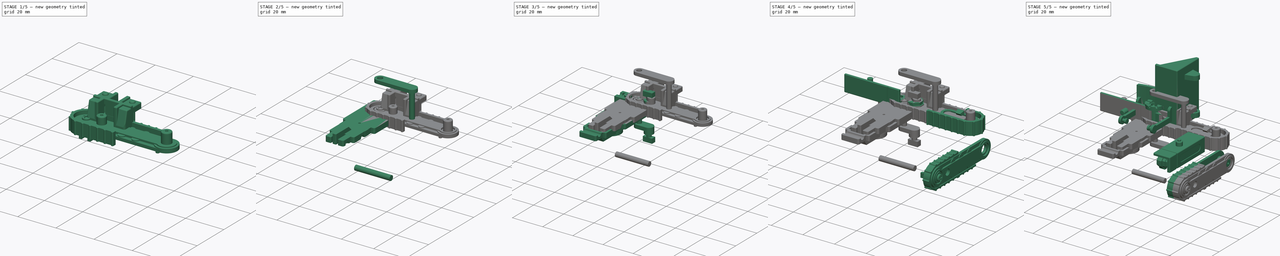
[diagram: build sequence overview — one tinted view per stage of 5, left to right]
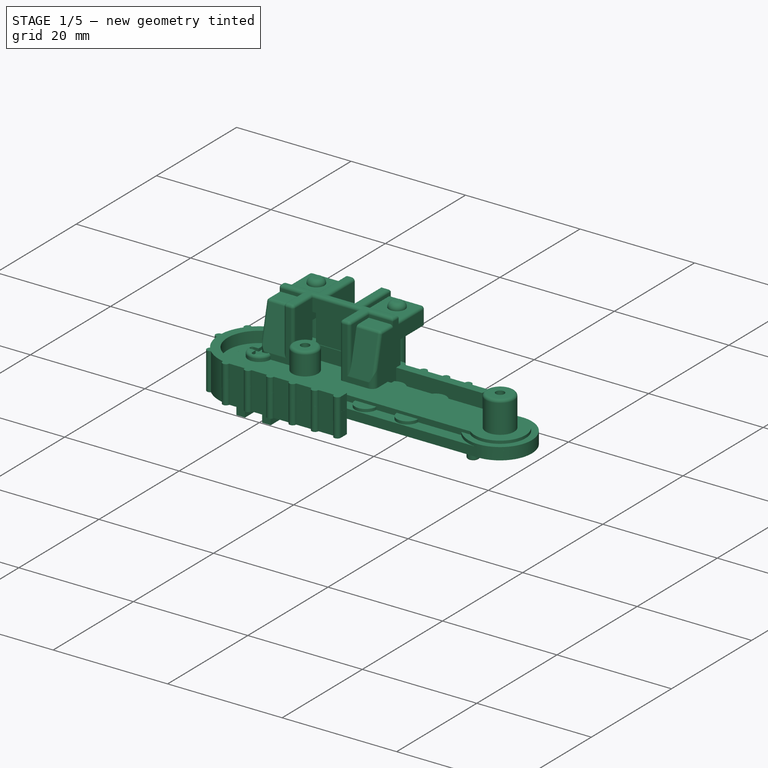
[diagram: stage 1 of 5 — iso view after this stage's code; geometry added in this stage tinted green]
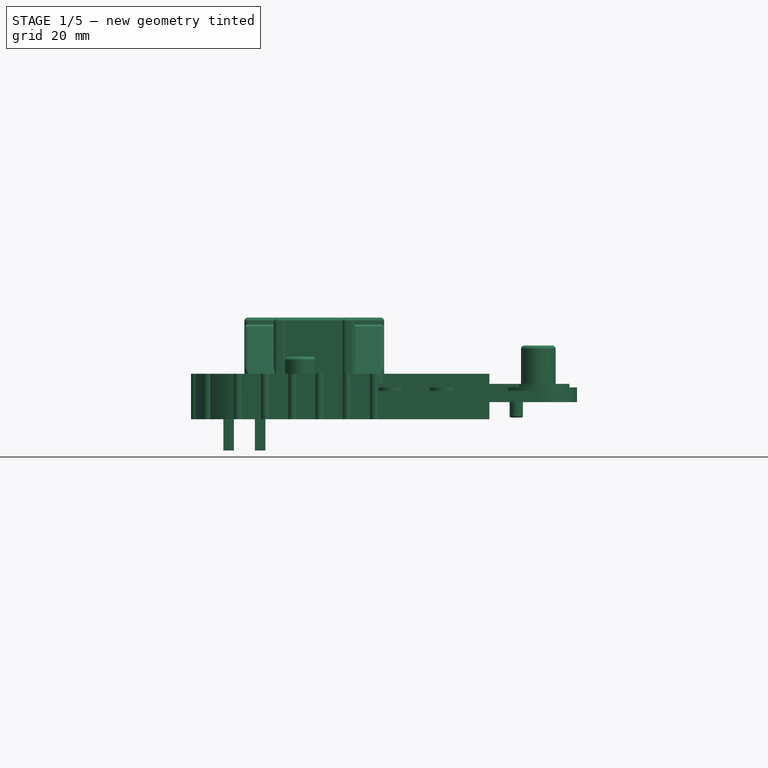
[diagram: stage 1 of 5 — front view after this stage's code; geometry added in this stage tinted green]
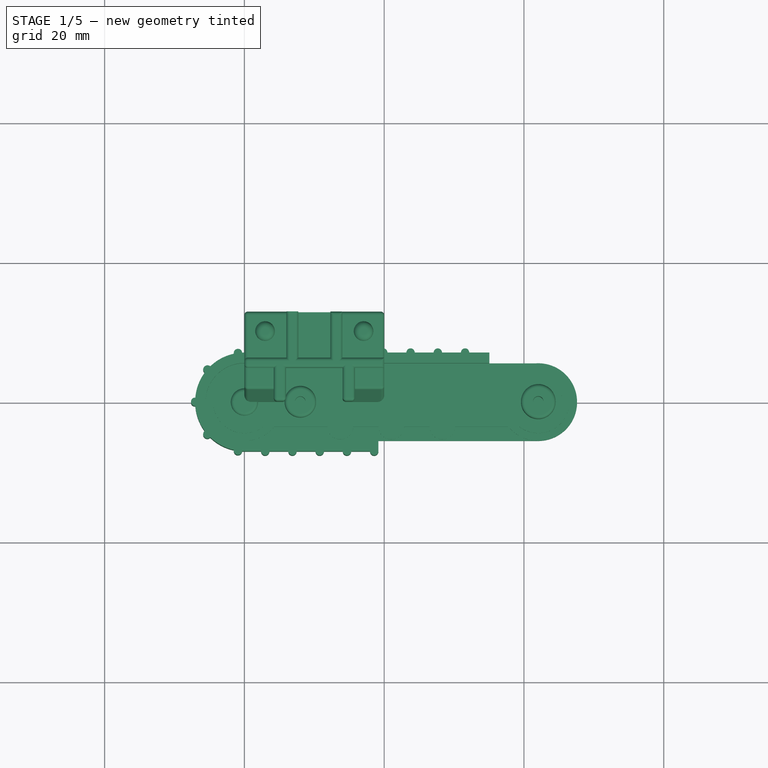
[diagram: stage 1 of 5 — top view after this stage's code; geometry added in this stage tinted green]
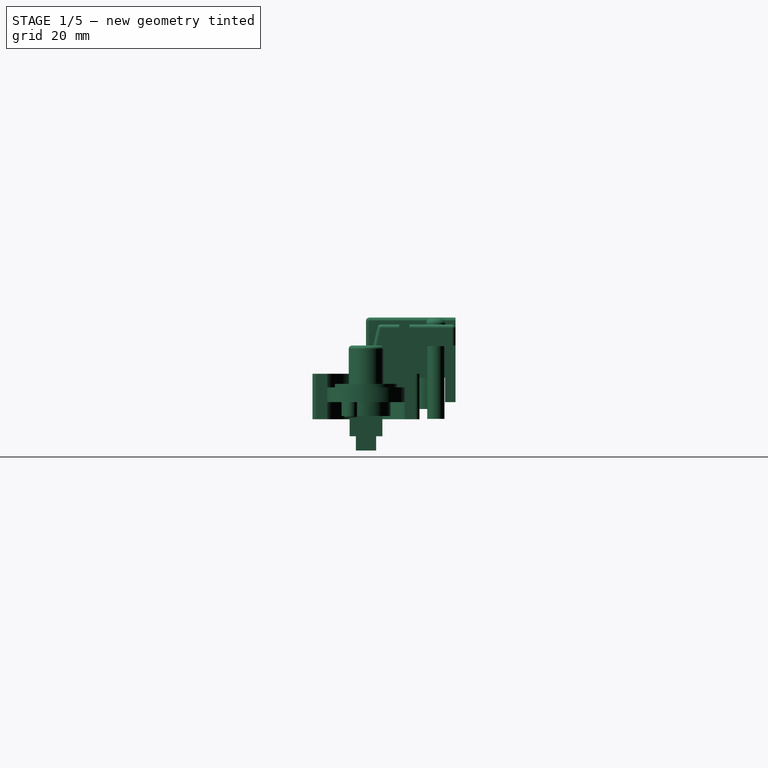
[diagram: stage 1 of 5 — right view after this stage's code; geometry added in this stage tinted green]
FCSTD DOCUMENT  (FreeCAD 1.0R39319 (Git))
Label: Bonecrusher
License: All rights reserved
LicenseURL: https://en.wikipedia.org/wiki/All_rights_reserved
objects: Sketcher::SketchObject×286, PartDesign::Pad×180, PartDesign::Pocket×138, PartDesign::Fillet×31, PartDesign::Body×23, PartDesign::Plane×15, App::Link×6, Part::Mirroring×4, PartDesign::Chamfer×4, PartDesign::SubShapeBinder×3, App::Part×1, Part::Feature×1
note: 1677 computed .brp shape members not serialized (recipe doc carries the construction recipe); baked Part::Feature solids carry a one-line shape summary decoded from their .brp

FEATURE [Sketcher::SketchObject] Sketch102
  ArcFitTolerance = 1e-06
  AttachmentSupport = -> [YZ_Plane012]
  FullyConstrained = true
  MakeInternals = false
  MapMode = 5
  Placement = pos=(0,0,0) rot=(0.57735,0.57735,0.57735;2.0944rad)
  sketch-geometry (4):
    g0: LineSegment StartX=12.8 StartY=0 StartZ=0 EndX=12.8 EndY=12.1 EndZ=0
    g1: LineSegment StartX=12.8 StartY=12.1 StartZ=0 EndX=0 EndY=12.1 EndZ=0
    g2: LineSegment StartX=0 StartY=12.1 StartZ=0 EndX=0 EndY=0 EndZ=0
    g3: LineSegment StartX=0 StartY=0 StartZ=0 EndX=12.8 EndY=0 EndZ=0
  constraints (12):
    c: Coincident(g0,g1)
    c: Coincident(g1,g2)
    c: Coincident(g2,g3)
    c: Coincident(g3,g0)
    c: Vertical(g0)
    c: Vertical(g2)
    c: Horizontal(g1)
    c: Horizontal(g3)
    c: PointOnObject(g0,g-1)
    c: PointOnObject(g1,g-2)
    c: DistanceX(g1,g0) = 12.8
    c: DistanceY(g2,g1) = 12.1
FEATURE [PartDesign::Pad] Pad053
  Direction = (1,0,0)
  Length = 20
  Length2 = 10
  Placement = pos=(0,0,0) rot=(1,1,1;2.0944rad)
  Profile = -> Sketch102
  ReferenceAxis = -> Sketch102 [N_Axis]
  Refine = true
  Suppressed = false
  Type = 0
FEATURE [Sketcher::SketchObject] Sketch104
  ArcFitTolerance = 1e-06
  AttachmentSupport = -> [Pad053]
  ExternalGeometry = -> [Pad053]
  FullyConstrained = true
  MakeInternals = false
  MapMode = 5
  Placement = pos=(0,2.7e-15,12.1) rot=(0,0,-1;1.5708rad)
  sketch-geometry (4):
    g0: LineSegment StartX=0 StartY=14.05 StartZ=0 EndX=-4.75 EndY=14.05 EndZ=0
    g1: LineSegment StartX=-4.75 StartY=14.05 StartZ=0 EndX=-4.75 EndY=5.95 EndZ=0
    g2: LineSegment StartX=-4.75 StartY=5.95 StartZ=0 EndX=0 EndY=5.95 EndZ=0
    g3: LineSegment StartX=0 StartY=5.95 StartZ=0 EndX=0 EndY=14.05 EndZ=0
  constraints (12):
    c: Coincident(g0,g1)
    c: Coincident(g1,g2)
    c: Coincident(g2,g3)
    c: Coincident(g3,g0)
    c: Horizontal(g0)
    c: Horizontal(g2)
    c: Vertical(g1)
    c: Vertical(g3)
    c: PointOnObject(g0,g-2)
    c: DistanceX(g0,g0) = 4.75
    c: DistanceY(g1,g1) = 8.1
    c: DistanceY(g0,g-3) = 5.95
FEATURE [PartDesign::Pocket] Pocket055
  BaseFeature = -> Pad053
  Direction = (0,0,-1)
  Length = 13
  Length2 = 5
  Placement = pos=(0,0,0) rot=(1,1,1;2.0944rad)
  Profile = -> Sketch104
  ReferenceAxis = -> Sketch104 [N_Axis]
  Refine = true
  Suppressed = false
  Type = 0
FEATURE [Sketcher::SketchObject] Sketch105
  ArcFitTolerance = 1e-06
  AttachmentSupport = -> [Pocket055]
  ExternalGeometry = -> [Pocket055]
  FullyConstrained = true
  MakeInternals = false
  MapMode = 5
  Placement = pos=(0,2.7e-15,12.1) rot=(0,0,-1;1.5708rad)
  sketch-geometry (4):
    g0: LineSegment StartX=-12.8 StartY=12.3 StartZ=0 EndX=-12.8 EndY=7.7 EndZ=0
    g1: LineSegment StartX=-12.8 StartY=7.7 StartZ=0 EndX=-6.2 EndY=7.7 EndZ=0
    g2: LineSegment StartX=-6.2 StartY=7.7 StartZ=0 EndX=-6.2 EndY=12.3 EndZ=0
    g3: LineSegment StartX=-6.2 StartY=12.3 StartZ=0 EndX=-12.8 EndY=12.3 EndZ=0
  constraints (12):
    c: Coincident(g0,g1)
    c: Coincident(g1,g2)
    c: Coincident(g2,g3)
    c: Coincident(g3,g0)
    c: Vertical(g0)
    c: Vertical(g2)
    c: Horizontal(g1)
    c: Horizontal(g3)
    c: PointOnObject(g0,g-3)
    c: DistanceY(g2,g2) = 4.6
    c: DistanceX(g3,g3) = 6.6
    c: DistanceY(g0,g-3) = 7.7
FEATURE [PartDesign::Pocket] Pocket056
  BaseFeature = -> Pocket055
  Direction = (0,0,-1)
  Length = 7.1
  Length2 = 5
  Placement = pos=(0,0,0) rot=(1,1,1;2.0944rad)
  Profile = -> Sketch105
  ReferenceAxis = -> Sketch105 [N_Axis]
  Refine = true
  Suppressed = false
  Type = 0
FEATURE [Sketcher::SketchObject] Sketch106
  ArcFitTolerance = 1e-06
  AttachmentSupport = -> [Pocket056]
  ExternalGeometry = -> [Pocket056]
  FullyConstrained = true
  MakeInternals = false
  MapMode = 5
  Placement = pos=(0,2.7e-15,12.1) rot=(0,0,-1;1.5708rad)
  sketch-geometry (16):
    g0: LineSegment StartX=-12.8 StartY=20 StartZ=0 EndX=-12.8 EndY=14 EndZ=0
    g1: LineSegment StartX=-12.8 StartY=14 StartZ=0 EndX=-6.2 EndY=14 EndZ=0
    g2: LineSegment StartX=-6.2 StartY=14 StartZ=0 EndX=-6.2 EndY=20 EndZ=0
    g3: LineSegment StartX=-6.2 StartY=20 StartZ=0 EndX=-12.8 EndY=20 EndZ=0
    g4: LineSegment StartX=-12.8 StartY=0 StartZ=0 EndX=-6.2 EndY=0 EndZ=0
    g5: LineSegment StartX=-6.2 StartY=0 StartZ=0 EndX=-6.2 EndY=6 EndZ=0
    g6: LineSegment StartX=-6.2 StartY=6 StartZ=0 EndX=-12.8 EndY=6 EndZ=0
    g7: LineSegment StartX=-12.8 StartY=6 StartZ=0 EndX=-12.8 EndY=0 EndZ=0
    g8: LineSegment StartX=0 StartY=15.8 StartZ=0 EndX=0 EndY=20 EndZ=0
    g9: LineSegment StartX=0 StartY=20 StartZ=0 EndX=-4.75 EndY=20 EndZ=0
    g10: LineSegment StartX=-4.75 StartY=20 StartZ=0 EndX=-4.75 EndY=15.8 EndZ=0
    g11: LineSegment StartX=-4.75 StartY=15.8 StartZ=0 EndX=0 EndY=15.8 EndZ=0
    g12: LineSegment StartX=0 StartY=0 StartZ=0 EndX=0 EndY=4.2 EndZ=0
    g13: LineSegment StartX=0 StartY=4.2 StartZ=0 EndX=-4.75 EndY=4.2 EndZ=0
    g14: LineSegment StartX=-4.75 StartY=4.2 StartZ=0 EndX=-4.75 EndY=0 EndZ=0
    g15: LineSegment StartX=-4.75 StartY=0 StartZ=0 EndX=0 EndY=0 EndZ=0
  constraints (45):
    c: Coincident(g0,g1)
    c: Coincident(g1,g2)
    c: Coincident(g2,g3)
    c: Coincident(g3,g0)
    c: Vertical(g0)
    c: Vertical(g2)
    c: Horizontal(g1)
    c: Horizontal(g3)
    c: Coincident(g0,g-6)
    c: Coincident(g4,g5)
    c: Coincident(g5,g6)
    c: Coincident(g6,g7)
    c: Coincident(g7,g4)
    c: Horizontal(g4)
    c: Horizontal(g6)
    c: Vertical(g5)
    c: Vertical(g7)
    c: Coincident(g4,g-5)
    c: DistanceY(g2,g2) = 6
    c: DistanceY(g5,g5) = 6
    c: DistanceX(g1,g1) = 6.6
    c: DistanceX(g6,g6) = 6.6
    c: Coincident(g8,g9)
    c: Coincident(g9,g10)
    c: Coincident(g10,g11)
    c: Coincident(g11,g8)
    c: Vertical(g8)
    c: Vertical(g10)
    c: Horizontal(g9)
    c: Horizontal(g11)
    c: PointOnObject(g8,g-2)
    c: PointOnObject(g9,g-3)
    c: Coincident(g12,g13)
    c: Coincident(g13,g14)
    c: Coincident(g14,g15)
    c: Coincident(g15,g12)
    c: Vertical(g12)
    c: Vertical(g14)
    c: Horizontal(g13)
    c: Horizontal(g15)
    c: Coincident(g12,g-1)
    c: DistanceX(g11,g11) = 4.75
    c: DistanceX(g13,g13) = 4.75
    c: DistanceY(g10,g10) = 4.2
    c: DistanceY(g14,g14) = 4.2
FEATURE [PartDesign::Pocket] Pocket057
  BaseFeature = -> Pocket056
  Direction = (0,0,-1)
  Length = 1
  Length2 = 5
  Placement = pos=(0,0,0) rot=(1,1,1;2.0944rad)
  Profile = -> Sketch106
  ReferenceAxis = -> Sketch106 [N_Axis]
  Refine = true
  Suppressed = false
  Type = 0
FEATURE [Sketcher::SketchObject] Sketch107
  ArcFitTolerance = 1e-06
  AttachmentSupport = -> [Pocket057]
  ExternalGeometry = -> [Pocket057]
  FullyConstrained = true
  MakeInternals = false
  MapMode = 5
  Placement = pos=(20,0,0) rot=(0.57735,0.57735,0.57735;2.0944rad)
  sketch-geometry (3):
    g0: LineSegment StartX=1.75 StartY=11.1 StartZ=0 EndX=0 EndY=3.6 EndZ=0
    g1: LineSegment StartX=0 StartY=3.6 StartZ=0 EndX=0 EndY=11.1 EndZ=0
    g2: LineSegment StartX=1.75 StartY=11.1 StartZ=0 EndX=0 EndY=11.1 EndZ=0
  constraints (8):
    c: PointOnObject(g0,g-3)
    c: PointOnObject(g0,g-2)
    c: Coincident(g1,g0)
    c: Coincident(g1,g-3)
    c: Coincident(g2,g0)
    c: Coincident(g2,g1)
    c: DistanceX(g0,g-3) = 3
    c: DistanceY(g0,g1) = 7.5
FEATURE [PartDesign::Pocket] Pocket058
  BaseFeature = -> Pocket057
  Direction = (-1,0,0)
  Length = 4.2
  Length2 = 5
  Placement = pos=(0,0,0) rot=(1,1,1;2.0944rad)
  Profile = -> Sketch107
  ReferenceAxis = -> Sketch107 [N_Axis]
  Refine = true
  Suppressed = false
  Type = 0
FEATURE [Sketcher::SketchObject] Sketch108
  ArcFitTolerance = 1e-06
  AttachmentSupport = -> [Pocket058]
  ExternalGeometry = -> [Pocket058]
  FullyConstrained = true
  MakeInternals = false
  MapMode = 5
  Placement = pos=(0,0,0) rot=(0.57735,0.57735,-0.57735;4.18879rad)
  sketch-geometry (3):
    g0: LineSegment StartX=1.75 StartY=-11.1 StartZ=0 EndX=0 EndY=-11.1 EndZ=0
    g1: LineSegment StartX=1.75 StartY=-11.1 StartZ=0 EndX=0 EndY=-3.6 EndZ=0
    g2: LineSegment StartX=0 StartY=-3.6 StartZ=0 EndX=0 EndY=-11.1 EndZ=0
  constraints (8):
    c: Coincident(g0,g-3)
    c: Coincident(g1,g0)
    c: PointOnObject(g1,g-2)
    c: Coincident(g2,g1)
    c: Coincident(g2,g0)
    c: DistanceX(g0,g-3) = 3
    c: DistanceY(g0,g1) = 7.5
    c: PointOnObject(g0,g-3)
FEATURE [PartDesign::Pocket] Pocket059
  BaseFeature = -> Pocket058
  Direction = (1,-1e-15,1e-16)
  Length = 4.2
  Length2 = 5
  Placement = pos=(0,0,0) rot=(1,1,1;2.0944rad)
  Profile = -> Sketch108
  ReferenceAxis = -> Sketch108 [N_Axis]
  Refine = true
  Suppressed = false
  Type = 0
FEATURE [Sketcher::SketchObject] Sketch109
  ArcFitTolerance = 1e-06
  AttachmentSupport = -> [Pocket059]
  ExternalGeometry = -> [Pocket059]
  FullyConstrained = true
  MakeInternals = false
  MapMode = 5
  Placement = pos=(0,0,11.1) rot=(0,0,-1;1.5708rad)
  sketch-geometry (2):
    g0: Circle CenterX=-10 CenterY=17.05 CenterZ=0 NormalX=0 NormalY=0 NormalZ=1 AngleXU=0 Radius=1.4
    g1: Circle CenterX=-10 CenterY=2.95 CenterZ=0 NormalX=0 NormalY=0 NormalZ=1 AngleXU=0 Radius=1.4
  constraints (6):
    c: DistanceX(g-6,g1) = 2.8
    c: DistanceX(g-4,g0) = 2.8
    c: DistanceY(g-6,g1) = 2.95
    c: Diameter(g1) = 2.8
    c: Diameter(g0) = 2.8
    c: DistanceY(g0,g-4) = 2.95
FEATURE [PartDesign::Pad] Pad054
  BaseFeature = -> Pocket059
  Direction = (0,0,1)
  Length = 1
  Length2 = 10
  Placement = pos=(0,0,0) rot=(1,1,1;2.0944rad)
  Profile = -> Sketch109
  ReferenceAxis = -> Sketch109 [N_Axis]
  Refine = true
  Suppressed = false
  Type = 0
FEATURE [PartDesign::Fillet] Fillet030
  Base = -> Pad054 [Edge72,Edge83]
  BaseFeature = -> Pad054
  Placement = pos=(0,0,0) rot=(1,1,1;2.0944rad)
  Radius = 0.9
  Refine = true
  SupportTransform = false
  Suppressed = false
  UseAllEdges = false
FEATURE [Sketcher::SketchObject] Sketch110
  ArcFitTolerance = 1e-06
  AttachmentSupport = -> [Fillet030]
  ExternalGeometry = -> [Fillet030]
  FullyConstrained = true
  MakeInternals = false
  MapMode = 5
  Placement = pos=(0,6.2,0) rot=(0.57735,0.57735,0.57735;4.18879rad)
  sketch-geometry (4):
    g0: LineSegment StartX=5 StartY=12.3 StartZ=0 EndX=5 EndY=7.7 EndZ=0
    g1: LineSegment StartX=5 StartY=7.7 StartZ=0 EndX=9.85 EndY=7.7 EndZ=0
    g2: LineSegment StartX=9.85 StartY=7.7 StartZ=0 EndX=9.85 EndY=12.3 EndZ=0
    g3: LineSegment StartX=9.85 StartY=12.3 StartZ=0 EndX=5 EndY=12.3 EndZ=0
  constraints (11):
    c: Coincident(g0,g1)
    c: Coincident(g1,g2)
    c: Coincident(g2,g3)
    c: Coincident(g3,g0)
    c: Vertical(g0)
    c: Vertical(g2)
    c: Horizontal(g1)
    c: Horizontal(g3)
    c: Coincident(g0,g-4)
    c: PointOnObject(g1,g-5)
    c: DistanceX(g2,g-3) = 2.25
FEATURE [PartDesign::Pad] Pad055
  BaseFeature = -> Fillet030
  Direction = (0,1,-1.3e-15)
  Length = 0.5
  Length2 = 10
  Placement = pos=(0,0,0) rot=(1,1,1;2.0944rad)
  Profile = -> Sketch110
  ReferenceAxis = -> Sketch110 [N_Axis]
  Refine = true
  Suppressed = false
  Type = 0
FEATURE [Sketcher::SketchObject] Sketch111
  ArcFitTolerance = 1e-06
  AttachmentSupport = -> [Pad055]
  ExternalGeometry = -> [Pad055]
  FullyConstrained = false
  MakeInternals = false
  MapMode = 5
  Placement = pos=(0,6.7,-8.6e-15) rot=(0.57735,0.57735,0.57735;4.18879rad)
  sketch-geometry (4):
    g0: LineSegment StartX=5 StartY=12.3 StartZ=0 EndX=5 EndY=7.6 EndZ=0
    g1: LineSegment StartX=5 StartY=7.6 StartZ=0 EndX=7.4 EndY=7.6 EndZ=0
    g2: LineSegment StartX=7.4 StartY=7.6 StartZ=0 EndX=7.4 EndY=12.3 EndZ=0
    g3: LineSegment StartX=7.4 StartY=12.3 StartZ=0 EndX=5 EndY=12.3 EndZ=0
  constraints (10):
    c: Coincident(g0,g1)
    c: Coincident(g1,g2)
    c: Coincident(g2,g3)
    c: Coincident(g3,g0)
    c: Vertical(g0)
    c: Vertical(g2)
    c: Horizontal(g1)
    c: Horizontal(g3)
    c: Coincident(g0,g-4)
    c: DistanceX(g2,g-3) = 4.7
FEATURE [PartDesign::Pad] Pad056
  BaseFeature = -> Pad055
  Direction = (-1e-16,1,-1.4e-15)
  Length = 0.5
  Length2 = 10
  Placement = pos=(0,0,0) rot=(1,1,1;2.0944rad)
  Profile = -> Sketch111
  ReferenceAxis = -> Sketch111 [N_Axis]
  Refine = true
  Suppressed = false
  Type = 0
FEATURE [Sketcher::SketchObject] Sketch112
  ArcFitTolerance = 1e-06
  AttachmentSupport = -> [Pad056]
  ExternalGeometry = -> [Pad056]
  FullyConstrained = true
  MakeInternals = false
  MapMode = 5
  Placement = pos=(0,0,0) rot=(0.707107,0.707107,0;3.14159rad)
  sketch-geometry (8):
    g0: LineSegment StartX=1.5 StartY=18.5 StartZ=0 EndX=1.5 EndY=15.5 EndZ=0
    g1: LineSegment StartX=1.5 StartY=15.5 StartZ=0 EndX=11.3 EndY=15.5 EndZ=0
    g2: LineSegment StartX=11.3 StartY=15.5 StartZ=0 EndX=11.3 EndY=18.5 EndZ=0
    g3: LineSegment StartX=11.3 StartY=18.5 StartZ=0 EndX=1.5 EndY=18.5 EndZ=0
    g4: LineSegment StartX=1.5 StartY=4.5 StartZ=0 EndX=1.5 EndY=1.5 EndZ=0
    g5: LineSegment StartX=1.5 StartY=1.5 StartZ=0 EndX=11.3 EndY=1.5 EndZ=0
    g6: LineSegment StartX=11.3 StartY=1.5 StartZ=0 EndX=11.3 EndY=4.5 EndZ=0
    g7: LineSegment StartX=11.3 StartY=4.5 StartZ=0 EndX=1.5 EndY=4.5 EndZ=0
  constraints (24):
    c: Coincident(g0,g1)
    c: Coincident(g1,g2)
    c: Coincident(g2,g3)
    c: Coincident(g3,g0)
    c: Vertical(g0)
    c: Vertical(g2)
    c: Horizontal(g1)
    c: Horizontal(g3)
    c: Coincident(g4,g5)
    c: Coincident(g5,g6)
    c: Coincident(g6,g7)
    c: Coincident(g7,g4)
    c: Vertical(g4)
    c: Vertical(g6)
    c: Horizontal(g5)
    c: Horizontal(g7)
    c: DistanceX(g-6,g4) = 1.5
    c: DistanceX(g5,g-4) = 1.5
    c: DistanceX(g-3,g0) = 1.5
    c: DistanceX(g2,g-4) = 1.5
    c: DistanceY(g-5,g0) = 1.45
    c: DistanceY(g2,g-4) = 1.5
    c: DistanceY(g-4,g5) = 1.5
    c: DistanceY(g4,g-6) = 1.45
FEATURE [PartDesign::Pocket] Pocket060
  BaseFeature = -> Pad056
  Direction = (-2.8e-15,1.2e-15,1)
  Length = 9.6
  Length2 = 5
  Placement = pos=(0,0,0) rot=(1,1,1;2.0944rad)
  Profile = -> Sketch112
  ReferenceAxis = -> Sketch112 [N_Axis]
  Refine = true
  Suppressed = false
  Type = 0
FEATURE [Sketcher::SketchObject] Sketch113
  ArcFitTolerance = 1e-06
  AttachmentSupport = -> [Pocket060]
  ExternalGeometry = -> [Pocket060]
  FullyConstrained = true
  MakeInternals = false
  MapMode = 5
  Placement = pos=(0,0,0) rot=(0.707107,0.707107,0;3.14159rad)
  sketch-geometry (8):
    g0: LineSegment StartX=4.75 StartY=5.95 StartZ=0 EndX=4.75 EndY=0 EndZ=0
    g1: LineSegment StartX=4.75 StartY=0 StartZ=0 EndX=12.8 EndY=0 EndZ=0
    g2: LineSegment StartX=12.8 StartY=0 StartZ=0 EndX=12.8 EndY=5.95 EndZ=0
    g3: LineSegment StartX=12.8 StartY=5.95 StartZ=0 EndX=4.75 EndY=5.95 EndZ=0
    g4: LineSegment StartX=4.75 StartY=14.05 StartZ=0 EndX=12.8 EndY=14.05 EndZ=0
    g5: LineSegment StartX=12.8 StartY=14.05 StartZ=0 EndX=12.8 EndY=20 EndZ=0
    g6: LineSegment StartX=12.8 StartY=20 StartZ=0 EndX=4.75 EndY=20 EndZ=0
    g7: LineSegment StartX=4.75 StartY=20 StartZ=0 EndX=4.75 EndY=14.05 EndZ=0
  constraints (20):
    c: Coincident(g0,g1)
    c: Coincident(g1,g2)
    c: Coincident(g2,g3)
    c: Coincident(g3,g0)
    c: Vertical(g0)
    c: Vertical(g2)
    c: Horizontal(g1)
    c: Horizontal(g3)
    c: Coincident(g0,g-5)
    c: Coincident(g1,g-4)
    c: Coincident(g4,g5)
    c: Coincident(g5,g6)
    c: Coincident(g6,g7)
    c: Coincident(g7,g4)
    c: Horizontal(g4)
    c: Horizontal(g6)
    c: Vertical(g5)
    c: Vertical(g7)
    c: Coincident(g4,g-6)
    c: Coincident(g5,g-4)
FEATURE [PartDesign::Pocket] Pocket061
  BaseFeature = -> Pocket060
  Direction = (-3.1e-15,1.3e-15,1)
  Length = 8.1
  Length2 = 5
  Placement = pos=(0,0,0) rot=(1,1,1;2.0944rad)
  Profile = -> Sketch113
  ReferenceAxis = -> Sketch113 [N_Axis]
  Refine = true
  Suppressed = false
  Type = 0
FEATURE [Sketcher::SketchObject] Sketch114
  ArcFitTolerance = 1e-06
  AttachmentSupport = -> [Pocket061]
  ExternalGeometry = -> [Pocket061]
  FullyConstrained = true
  MakeInternals = false
  MapMode = 5
  Placement = pos=(0,0,0) rot=(0.707107,0.707107,0;3.14159rad)
  sketch-geometry (4):
    g0: LineSegment StartX=4.75 StartY=14.05 StartZ=0 EndX=4.75 EndY=5.95 EndZ=0
    g1: LineSegment StartX=4.75 StartY=5.95 StartZ=0 EndX=11.3 EndY=5.95 EndZ=0
    g2: LineSegment StartX=11.3 StartY=5.95 StartZ=0 EndX=11.3 EndY=14.05 EndZ=0
    g3: LineSegment StartX=11.3 StartY=14.05 StartZ=0 EndX=4.75 EndY=14.05 EndZ=0
  constraints (11):
    c: Coincident(g0,g1)
    c: Coincident(g1,g2)
    c: Coincident(g2,g3)
    c: Coincident(g3,g0)
    c: Vertical(g0)
    c: Vertical(g2)
    c: Horizontal(g1)
    c: Horizontal(g3)
    c: Coincident(g0,g-3)
    c: PointOnObject(g1,g-4)
    c: DistanceX(g2,g-3) = 1.5
FEATURE [PartDesign::Pocket] Pocket062
  BaseFeature = -> Pocket061
  Direction = (-3.4e-15,1.4e-15,1)
  Length = 3.5
  Length2 = 5
  Placement = pos=(0,0,0) rot=(1,1,1;2.0944rad)
  Profile = -> Sketch114
  ReferenceAxis = -> Sketch114 [N_Axis]
  Refine = true
  Suppressed = false
  Type = 0
FEATURE [Sketcher::SketchObject] Sketch115
  ArcFitTolerance = 1e-06
  AttachmentSupport = -> [Pocket062]
  ExternalGeometry = -> [Pocket062]
  FullyConstrained = true
  MakeInternals = false
  MapMode = 5
  Placement = pos=(0,4.75,0) rot=(0.57735,0.57735,-0.57735;2.0944rad)
  sketch-geometry (4):
    g0: LineSegment StartX=-3.5 StartY=14.05 StartZ=0 EndX=-9.4 EndY=14.05 EndZ=0
    g1: LineSegment StartX=-9.4 StartY=14.05 StartZ=0 EndX=-9.4 EndY=5.95 EndZ=0
    g2: LineSegment StartX=-9.4 StartY=5.95 StartZ=0 EndX=-3.5 EndY=5.95 EndZ=0
    g3: LineSegment StartX=-3.5 StartY=5.95 StartZ=0 EndX=-3.5 EndY=14.05 EndZ=0
  constraints (10):
    c: Coincident(g0,g1)
    c: Coincident(g1,g2)
    c: Coincident(g2,g3)
    c: Coincident(g3,g0)
    c: Horizontal(g0)
    c: Horizontal(g2)
    c: Vertical(g1)
    c: Coincident(g0,g-3)
    c: Coincident(g2,g-3)
    c: DistanceX(g-4,g0) = 2.7
FEATURE [PartDesign::Pocket] Pocket063
  BaseFeature = -> Pocket062
  Direction = (1e-16,1,-3.2e-15)
  Length = 0.9
  Length2 = 5
  Placement = pos=(0,0,0) rot=(1,1,1;2.0944rad)
  Profile = -> Sketch115
  ReferenceAxis = -> Sketch115 [N_Axis]
  Refine = true
  Suppressed = false
  Type = 0
FEATURE [Sketcher::SketchObject] Sketch116
  ArcFitTolerance = 1e-06
  AttachmentSupport = -> [Pocket063]
  ExternalGeometry = -> [Pocket063]
  FullyConstrained = true
  MakeInternals = false
  MapMode = 5
  Placement = pos=(-2.67e-14,1.17e-14,9.6) rot=(0.707107,0.707107,0;3.14159rad)
  sketch-geometry (2):
    g0: Circle CenterX=10 CenterY=17.05 CenterZ=0 NormalX=0 NormalY=0 NormalZ=1 AngleXU=0 Radius=1.3
    g1: Circle CenterX=10 CenterY=2.95 CenterZ=0 NormalX=0 NormalY=0 NormalZ=1 AngleXU=0 Radius=1.3
  constraints (6):
    c: Tangent(g0,g-4)
    c: Diameter(g0) = 2.6
    c: Tangent(g1,g-6)
    c: Diameter(g1) = 2.6
    c: DistanceY(g0,g-4) = 1.45
    c: DistanceY(g-6,g1) = 1.45
FEATURE [PartDesign::Pad] Pad057
  BaseFeature = -> Pocket063
  Direction = (4.1e-15,-1.7e-15,-1)
  Length = 12
  Length2 = 10
  Placement = pos=(0,0,0) rot=(1,1,1;2.0944rad)
  Profile = -> Sketch116
  ReferenceAxis = -> Sketch116 [N_Axis]
  Refine = true
  Suppressed = false
  Type = 0
FEATURE [Sketcher::SketchObject] Sketch117
  ArcFitTolerance = 1e-06
  AttachmentSupport = -> [Pad057]
  ExternalGeometry = -> [Pad057]
  FullyConstrained = true
  MakeInternals = false
  MapMode = 5
  Placement = pos=(-1.2e-14,5e-15,3.5) rot=(0.707107,0.707107,0;3.14159rad)
  sketch-geometry (1):
    g0: Circle CenterX=8.75 CenterY=10 CenterZ=0 NormalX=0 NormalY=0 NormalZ=1 AngleXU=0 Radius=2.375
  constraints (3):
    c: Diameter(g0) = 4.75
    c: DistanceY(g0,g-4) = 4.05
    c: DistanceX(g0,g-4) = 2.55
FEATURE [PartDesign::Pad] Pad058
  BaseFeature = -> Pad057
  Direction = (4.4e-15,-1.8e-15,-1)
  Length = 4.5
  Length2 = 10
  Placement = pos=(0,0,0) rot=(1,1,1;2.0944rad)
  Profile = -> Sketch117
  ReferenceAxis = -> Sketch117 [N_Axis]
  Refine = true
  Suppressed = false
  Type = 0
FEATURE [Sketcher::SketchObject] Sketch118
  ArcFitTolerance = 1e-06
  AttachmentSupport = -> [Pad058]
  ExternalGeometry = -> [Pad058]
  FullyConstrained = true
  MakeInternals = false
  MapMode = 5
  Placement = pos=(4.4e-15,-1.7e-15,-1) rot=(0.707107,0.707107,0;3.14159rad)
  sketch-geometry (1):
    g0: Circle CenterX=8.75 CenterY=10 CenterZ=0 NormalX=0 NormalY=0 NormalZ=1 AngleXU=0 Radius=0.75
  constraints (2):
    c: Coincident(g0,g-3)
    c: Diameter(g0) = 1.5
FEATURE [PartDesign::Pocket] Pocket064
  BaseFeature = -> Pad058
  Direction = (-4.8e-15,1.8e-15,1)
  Length = 4.5
  Length2 = 5
  Placement = pos=(0,0,0) rot=(1,1,1;2.0944rad)
  Profile = -> Sketch118
  ReferenceAxis = -> Sketch118 [N_Axis]
  Refine = true
  Suppressed = false
  Type = 0
FEATURE [Sketcher::SketchObject] Sketch119
  ArcFitTolerance = 1e-06
  AttachmentSupport = -> [Pocket064]
  ExternalGeometry = -> [Pocket064]
  FullyConstrained = true
  MakeInternals = false
  MapMode = 5
  Placement = pos=(0,0,0) rot=(0.707107,0.707107,0;3.14159rad)
  sketch-geometry (4):
    g0: LineSegment StartX=4.75 StartY=15.5 StartZ=0 EndX=1.5 EndY=15.5 EndZ=0
    g1: LineSegment StartX=1.5 StartY=15.5 StartZ=0 EndX=1.5 EndY=4.5 EndZ=0
    g2: LineSegment StartX=1.5 StartY=4.5 StartZ=0 EndX=4.75 EndY=4.5 EndZ=0
    g3: LineSegment StartX=4.75 StartY=4.5 StartZ=0 EndX=4.75 EndY=15.5 EndZ=0
  constraints (10):
    c: Coincident(g0,g1)
    c: Coincident(g1,g2)
    c: Coincident(g2,g3)
    c: Coincident(g3,g0)
    c: Horizontal(g0)
    c: Horizontal(g2)
    c: Vertical(g1)
    c: Vertical(g3)
    c: Coincident(g0,g-3)
    c: Coincident(g1,g-4)
FEATURE [PartDesign::Pocket] Pocket065
  BaseFeature = -> Pocket064
  Direction = (0,0,1)
  Length = 5
  Length2 = 5
  Placement = pos=(0,0,0) rot=(1,1,1;2.0944rad)
  Profile = -> Sketch119
  ReferenceAxis = -> Sketch119 [N_Axis]
  Refine = true
  Suppressed = false
  Type = 0
FEATURE [Sketcher::SketchObject] Sketch120
  ArcFitTolerance = 1e-06
  AttachmentSupport = -> [Pocket065]
  ExternalGeometry = -> [Pocket065]
  FullyConstrained = true
  MakeInternals = false
  MapMode = 5
  Placement = pos=(0,0,0) rot=(0.57735,0.57735,-0.57735;4.18879rad)
  sketch-geometry (4):
    g0: ArcOfCircle CenterX=3.1 CenterY=-1.5 CenterZ=0 NormalX=0 NormalY=0 NormalZ=1 AngleXU=0 Radius=1 StartAngle=3.14159 EndAngle=6.28319
    g1: LineSegment StartX=4.1 StartY=-1.5 StartZ=0 EndX=4.1 EndY=2.31e-14 EndZ=0
    g2: LineSegment StartX=2.1 StartY=-1.5 StartZ=0 EndX=2.1 EndY=1.18e-14 EndZ=0
    g3: LineSegment StartX=2.1 StartY=1.18e-14 StartZ=0 EndX=4.1 EndY=2.31e-14 EndZ=0
  constraints (13):
    c: Coincident(g1,g0)
    c: PointOnObject(g1,g-3)
    c: Vertical(g1)
    c: Coincident(g2,g0)
    c: PointOnObject(g2,g-3)
    c: Vertical(g2)
    c: Coincident(g3,g2)
    c: Coincident(g3,g1)
    c: Diameter(g0) = 2
    c: DistanceX(g-1,g0) = 3.1
    c: DistanceY(g0,g1) = 1.5
    c: DistanceY(g1,g1) = 1.5
    c: DistanceY(g2,g2) = 1.5
FEATURE [Sketcher::SketchObject] Sketch121
  ArcFitTolerance = 1e-06
  AttachmentSupport = -> [Pocket065]
  ExternalGeometry = -> [Pocket065]
  FullyConstrained = true
  MakeInternals = false
  MapMode = 5
  Placement = pos=(0,0,0) rot=(0.707107,0.707107,0;3.14159rad)
  sketch-geometry (8):
    g0: LineSegment StartX=4.75 StartY=1.5 StartZ=0 EndX=4.75 EndY=0 EndZ=0
    g1: LineSegment StartX=4.75 StartY=0 StartZ=0 EndX=6.65 EndY=0 EndZ=0
    g2: LineSegment StartX=6.65 StartY=0 StartZ=0 EndX=6.65 EndY=1.5 EndZ=0
    g3: LineSegment StartX=6.65 StartY=1.5 StartZ=0 EndX=4.75 EndY=1.5 EndZ=0
    g4: LineSegment StartX=4.75 StartY=20 StartZ=0 EndX=4.75 EndY=18.5 EndZ=0
    g5: LineSegment StartX=4.75 StartY=18.5 StartZ=0 EndX=6.65 EndY=18.5 EndZ=0
    g6: LineSegment StartX=6.65 StartY=18.5 StartZ=0 EndX=6.65 EndY=20 EndZ=0
    g7: LineSegment StartX=6.65 StartY=20 StartZ=0 EndX=4.75 EndY=20 EndZ=0
  constraints (22):
    c: Coincident(g0,g1)
    c: Coincident(g1,g2)
    c: Coincident(g2,g3)
    c: Coincident(g3,g0)
    c: Vertical(g0)
    c: Vertical(g2)
    c: Horizontal(g1)
    c: Horizontal(g3)
    c: Coincident(g0,g-5)
    c: PointOnObject(g1,g-6)
    c: Coincident(g4,g5)
    c: Coincident(g5,g6)
    c: Coincident(g6,g7)
    c: Coincident(g7,g4)
    c: Vertical(g4)
    c: Vertical(g6)
    c: Horizontal(g5)
    c: Horizontal(g7)
    c: Coincident(g4,g-3)
    c: PointOnObject(g5,g-4)
    c: DistanceX(g7,g7) = 1.9
    c: DistanceX(g1,g1) = 1.9
FEATURE [PartDesign::Pad] Pad059
  BaseFeature = -> Pocket065
  Direction = (0,0,-1)
  Length = 8.2
  Length2 = 10
  Placement = pos=(0,0,0) rot=(1,1,1;2.0944rad)
  Profile = -> Sketch121
  ReferenceAxis = -> Sketch121 [N_Axis]
  Refine = true
  Reversed = true
  Suppressed = false
  Type = 0
FEATURE [PartDesign::Pocket] Pocket066
  BaseFeature = -> Pad059
  Direction = (1,0,0)
  Length = 20
  Length2 = 5
  Placement = pos=(0,0,0) rot=(1,1,1;2.0944rad)
  Profile = -> Sketch120
  ReferenceAxis = -> Sketch120 [N_Axis]
  Refine = true
  Suppressed = false
  Type = 0
FEATURE [PartDesign::Fillet] Fillet031
  Base = -> Pocket066 [Edge161,Edge152,Edge160,Edge26,Edge21,Edge24,Edge27,Edge69,Edge22,Edge20,Edge17,Edge18,Edge16,Edge68,Edge81,Edge70,Edge80,Edge79,Edge78,Edge56,Edge77,Edge76,Edge71,Edge72,Edge73,Edge74,Edge75,Edge58,Edge120,Edge15,Edge50,Edge14,Edge1,Edge5,Edge4,Edge177,Edge59,Edge123,Edge134,Edge6,+1 more]
  BaseFeature = -> Pocket066
  Placement = pos=(0,0,0) rot=(1,1,1;2.0944rad)
  Radius = 0.5
  Refine = true
  SupportTransform = false
  Suppressed = false
  UseAllEdges = false
FEATURE [PartDesign::Body] Body011  label="Canopy"
  AllowCompound = false
  Group = -> [Sketch122,Pad060,Sketch123,Pad061,Sketch124,Pocket067,Sketch125,Pocket068,Sketch126,Pad062,Sketch127,Pad063,Sketch128,Pad064,Sketch129,Pad065]
  Origin = -> Origin013
  Placement = pos=(38.2,-2.6,21.7) rot=(1,0,0;1.5708rad)
  Tip = -> Pad065
FEATURE [Sketcher::SketchObject] Sketch130
  ArcFitTolerance = 1e-06
  AttachmentSupport = -> [XY_Plane014]
  FullyConstrained = true
  MakeInternals = false
  MapMode = 5
  sketch-geometry (4):
    g0: ArcOfCircle CenterX=0 CenterY=0 CenterZ=0 NormalX=0 NormalY=0 NormalZ=1 AngleXU=0 Radius=5.55 StartAngle=1.5708 EndAngle=4.71239
    g1: ArcOfCircle CenterX=42.05 CenterY=4e-16 CenterZ=0 NormalX=0 NormalY=0 NormalZ=1 AngleXU=0 Radius=5.55 StartAngle=4.71239 EndAngle=7.85398
    g2: LineSegment StartX=-3e-15 StartY=5.55 StartZ=0 EndX=42.05 EndY=5.55 EndZ=0
    g3: LineSegment StartX=-1e-15 StartY=-5.55 StartZ=0 EndX=42.05 EndY=-5.55 EndZ=0
  constraints (9):
    c: Tangent(g0,g2) = 1.5708
    c: Tangent(g0,g3) = -1.5708
    c: Tangent(g1,g2) = 1.5708
    c: Tangent(g1,g3) = -1.5708
    c: Equal(g0,g1)
    c: Horizontal(g3)
    c: Coincident(g0,g-1)
    c: DistanceX(g0,g1) = 42.05
    c: Diameter(g0) = 11.1
FEATURE [PartDesign::Pad] Pad066
  Direction = (0,0,1)
  Length = 1.6
  Length2 = 10
  Profile = -> Sketch130
  ReferenceAxis = -> Sketch130 [N_Axis]
  Refine = true
  Suppressed = false
  Type = 0
FEATURE [Sketcher::SketchObject] Sketch131
  ArcFitTolerance = 1e-06
  AttachmentSupport = -> [Pad066]
  ExternalGeometry = -> [Pad066]
  FullyConstrained = true
  MakeInternals = false
  MapMode = 5
  Placement = pos=(0,0,1.6) rot=(0,0,1;0rad)
  sketch-geometry (4):
    g0: ArcOfCircle CenterX=0 CenterY=0 CenterZ=0 NormalX=0 NormalY=0 NormalZ=1 AngleXU=0 Radius=3.5 StartAngle=1.5708 EndAngle=4.71239
    g1: ArcOfCircle CenterX=42.05 CenterY=4e-16 CenterZ=0 NormalX=0 NormalY=0 NormalZ=1 AngleXU=0 Radius=3.5 StartAngle=4.71239 EndAngle=7.85398
    g2: LineSegment StartX=-6e-16 StartY=3.5 StartZ=0 EndX=42.05 EndY=3.5 EndZ=0
    g3: LineSegment StartX=-6e-16 StartY=-3.5 StartZ=0 EndX=42.05 EndY=-3.5 EndZ=0
  constraints (8):
    c: Tangent(g0,g2) = 1.5708
    c: Tangent(g0,g3) = -1.5708
    c: Tangent(g1,g2) = 1.5708
    c: Tangent(g1,g3) = -1.5708
    c: Equal(g0,g1)
    c: Diameter(g0) = 7
    c: Coincident(g0,g-1)
    c: Coincident(g1,g-3)
FEATURE [PartDesign::Pad] Pad067
  BaseFeature = -> Pad066
  Direction = (0,0,1)
  Length = 1
  Length2 = 10
  Profile = -> Sketch131
  ReferenceAxis = -> Sketch131 [N_Axis]
  Refine = true
  Suppressed = false
  Type = 0
FEATURE [Sketcher::SketchObject] Sketch132
  ArcFitTolerance = 1e-06
  AttachmentSupport = -> [Pad067]
  ExternalGeometry = -> [Pad067]
  FullyConstrained = true
  MakeInternals = false
  MapMode = 5
  Placement = pos=(0,0,1.6) rot=(0,0,1;0rad)
  sketch-geometry (14):
    g0: Circle CenterX=42.05 CenterY=0 CenterZ=0 NormalX=0 NormalY=0 NormalZ=1 AngleXU=0 Radius=5.55
    g1: Circle CenterX=0 CenterY=0 CenterZ=0 NormalX=0 NormalY=0 NormalZ=1 AngleXU=0 Radius=5.55
    g2: ArcOfCircle CenterX=13.725 CenterY=3.5 CenterZ=0 NormalX=0 NormalY=0 NormalZ=1 AngleXU=0 Radius=1.85 StartAngle=1e-16 EndAngle=3.14159
    g3: ArcOfCircle CenterX=13.725 CenterY=-3.5 CenterZ=0 NormalX=0 NormalY=0 NormalZ=1 AngleXU=0 Radius=1.85 StartAngle=3.14159 EndAngle=6.28319
    g4: LineSegment StartX=15.575 StartY=3.5 StartZ=0 EndX=15.575 EndY=-3.5 EndZ=0
    g5: LineSegment StartX=11.875 StartY=3.5 StartZ=0 EndX=11.875 EndY=-3.5 EndZ=0
    g6: ArcOfCircle CenterX=21.025 CenterY=3.5 CenterZ=0 NormalX=0 NormalY=0 NormalZ=1 AngleXU=0 Radius=1.85 StartAngle=1e-16 EndAngle=3.14159
    g7: ArcOfCircle CenterX=21.025 CenterY=-3.5 CenterZ=0 NormalX=0 NormalY=0 NormalZ=1 AngleXU=0 Radius=1.85 StartAngle=3.14159 EndAngle=6.28319
    g8: LineSegment StartX=22.875 StartY=3.5 StartZ=0 EndX=22.875 EndY=-3.5 EndZ=0
    g9: LineSegment StartX=19.175 StartY=3.5 StartZ=0 EndX=19.175 EndY=-3.5 EndZ=0
    g10: ArcOfCircle CenterX=28.325 CenterY=3.5 CenterZ=0 NormalX=0 NormalY=0 NormalZ=1 AngleXU=0 Radius=1.85 StartAngle=1e-16 EndAngle=3.14159
    g11: ArcOfCircle CenterX=28.325 CenterY=-3.5 CenterZ=0 NormalX=0 NormalY=0 NormalZ=1 AngleXU=0 Radius=1.85 StartAngle=3.14159 EndAngle=6.28319
    g12: LineSegment StartX=30.175 StartY=3.5 StartZ=0 EndX=30.175 EndY=-3.5 EndZ=0
    g13: LineSegment StartX=26.475 StartY=3.5 StartZ=0 EndX=26.475 EndY=-3.5 EndZ=0
  constraints (33):
    c: Coincident(g0,g-3)
    c: PointOnObject(g-3,g0)
    c: Coincident(g1,g-1)
    c: Tangent(g2,g4) = 1.5708
    c: Tangent(g2,g5) = -1.5708
    c: Tangent(g3,g4) = 1.5708
    c: Tangent(g3,g5) = -1.5708
    c: Equal(g2,g3)
    c: Vertical(g5)
    c: PointOnObject(g2,g-5)
    c: PointOnObject(g3,g-4)
    c: Tangent(g6,g8) = 1.5708
    c: Tangent(g6,g9) = -1.5708
    c: Tangent(g7,g8) = 1.5708
    c: Tangent(g7,g9) = -1.5708
    c: Equal(g6,g7)
    c: Tangent(g10,g12) = 1.5708
    c: Tangent(g10,g13) = -1.5708
    c: Tangent(g11,g12) = 1.5708
    c: Tangent(g11,g13) = -1.5708
    c: Equal(g10,g11)
    c: Vertical(g13)
    c: PointOnObject(g10,g-5)
    c: PointOnObject(g11,g-4)
    c: Vertical(g8)
    c: PointOnObject(g7,g-4)
    c: Diameter(g1) = 11.1
    c: Diameter(g2) = 3.7
    c: Diameter(g6) = 3.7
    c: Diameter(g10) = 3.7
    c: DistanceX(g3,g7) = 3.6
    c: DistanceX(g7,g11) = 3.6
    c: Symmetric(g-5,g-5,g6)
FEATURE [PartDesign::Pad] Pad068
  BaseFeature = -> Pad067
  Direction = (0,0,1)
  Length = 0.5
  Length2 = 10
  Profile = -> Sketch132
  ReferenceAxis = -> Sketch132 [N_Axis]
  Refine = true
  Suppressed = false
  Type = 0
FEATURE [Sketcher::SketchObject] Sketch133
  ArcFitTolerance = 1e-06
  AttachmentSupport = -> [Pad068]
  ExternalGeometry = -> [Pad068]
  FullyConstrained = true
  MakeInternals = false
  MapMode = 5
  Placement = pos=(0,0,2.6) rot=(0,0,1;0rad)
  sketch-geometry (2):
    g0: Circle CenterX=0 CenterY=0 CenterZ=0 NormalX=0 NormalY=0 NormalZ=1 AngleXU=0 Radius=4.45
    g1: Circle CenterX=42.05 CenterY=0 CenterZ=0 NormalX=0 NormalY=0 NormalZ=1 AngleXU=0 Radius=4.45
  constraints (4):
    c: Coincident(g0,g-1)
    c: Coincident(g1,g-3)
    c: Diameter(g0) = 8.9
    c: Diameter(g1) = 8.9
FEATURE [PartDesign::Pad] Pad069
  BaseFeature = -> Pad068
  Direction = (0,0,1)
  Length = 1
  Length2 = 10
  Profile = -> Sketch133
  ReferenceAxis = -> Sketch133 [N_Axis]
  Refine = true
  Reversed = true
  Suppressed = false
  Type = 0
FEATURE [Sketcher::SketchObject] Sketch214
  ArcFitTolerance = 1e-06
  AttachmentSupport = -> [XY_Plane020]
  FullyConstrained = true
  MakeInternals = false
  MapMode = 5
  sketch-geometry (4):
    g0: LineSegment StartX=3e-16 StartY=5.55 StartZ=0 EndX=42.05 EndY=5.55 EndZ=0
    g1: ArcOfCircle CenterX=42.05 CenterY=3.35631e-11 CenterZ=0 NormalX=0 NormalY=0 NormalZ=1 AngleXU=0 Radius=5.55 StartAngle=4.71239 EndAngle=7.85398
    g2: LineSegment StartX=42.05 StartY=-5.55 StartZ=0 EndX=0 EndY=-5.55 EndZ=0
    g3: ArcOfCircle CenterX=0 CenterY=0 CenterZ=0 NormalX=0 NormalY=0 NormalZ=1 AngleXU=0 Radius=5.55 StartAngle=1.5708 EndAngle=4.71239
  constraints (13):
    c: PointOnObject(g0,g-2)
    c: Horizontal(g0)
    c: Coincident(g1,g0)
    c: Coincident(g2,g1)
    c: PointOnObject(g2,g-2)
    c: Horizontal(g2)
    c: Coincident(g3,g2)
    c: Coincident(g3,g0)
    c: DistanceX(g0,g0) = 42.05
    c: Radius(g3) = 5.55
    c: Radius(g1) = 5.55
    c: Coincident(g3,g-1)
    c: PointOnObject(g1,g-1)
FEATURE [PartDesign::Pad] Pad122
  Direction = (0,0,1)
  Length = 1.6
  Length2 = 10
  Profile = -> Sketch214
  ReferenceAxis = -> Sketch214 [N_Axis]
  Refine = true
  Suppressed = false
  Type = 0
FEATURE [Sketcher::SketchObject] Sketch215
  ArcFitTolerance = 1e-06
  AttachmentSupport = -> [Pad122]
  ExternalGeometry = -> [Pad122]
  FullyConstrained = true
  MakeInternals = false
  MapMode = 5
  Placement = pos=(0,0,0) rot=(1,0,0;3.14159rad)
  sketch-geometry (8):
    g0: LineSegment StartX=19.17 StartY=5.55 StartZ=0 EndX=0 EndY=5.55 EndZ=0
    g1: ArcOfCircle CenterX=0 CenterY=1e-16 CenterZ=0 NormalX=0 NormalY=0 NormalZ=1 AngleXU=0 Radius=5.55 StartAngle=1.5708 EndAngle=4.71239
    g2: LineSegment StartX=-1e-15 StartY=-5.55 StartZ=0 EndX=35.05 EndY=-5.55 EndZ=0
    g3: LineSegment StartX=19.17 StartY=5.55 StartZ=0 EndX=19.17 EndY=7.05 EndZ=0
    g4: LineSegment StartX=19.17 StartY=7.05 StartZ=0 EndX=7.1e-15 EndY=7.05 EndZ=0
    g5: ArcOfCircle CenterX=0 CenterY=1e-16 CenterZ=0 NormalX=0 NormalY=0 NormalZ=1 AngleXU=0 Radius=7.05 StartAngle=1.5708 EndAngle=4.71239
    g6: LineSegment StartX=5e-15 StartY=-7.05 StartZ=0 EndX=35.05 EndY=-7.05 EndZ=0
    g7: LineSegment StartX=35.05 StartY=-5.55 StartZ=0 EndX=35.05 EndY=-7.05 EndZ=0
  constraints (24):
    c: Coincident(g0,g-4)
    c: Coincident(g1,g0)
    c: Coincident(g1,g-5)
    c: Coincident(g2,g1)
    c: PointOnObject(g2,g-5)
    c: PointOnObject(g0,g-3)
    c: DistanceX(g2,g2) = 35.05
    c: DistanceX(g0,g0) = 19.17
    c: Coincident(g1,g-1)
    c: Coincident(g3,g0)
    c: Vertical(g3)
    c: Coincident(g4,g3)
    c: PointOnObject(g4,g-2)
    c: Horizontal(g4)
    c: Coincident(g5,g4)
    c: PointOnObject(g5,g-2)
    c: Coincident(g6,g5)
    c: Horizontal(g6)
    c: Coincident(g7,g2)
    c: Coincident(g7,g6)
    c: Vertical(g7)
    c: DistanceY(g3,g3) = 1.5
    c: DistanceY(g7,g7) = 1.5
    c: Coincident(g5,g1)
FEATURE [PartDesign::Pad] Pad123
  BaseFeature = -> Pad122
  Direction = (0,0,-1)
  Length = 4.05
  Length2 = 10
  Profile = -> Sketch215
  ReferenceAxis = -> Sketch215 [N_Axis]
  Refine = true
  Reversed = true
  Suppressed = false
  Type = 0
FEATURE [PartDesign::Pocket] Pocket098
  BaseFeature = -> Pad123
  Direction = (0,0,1)
  Length = 0.1
  Length2 = 5
  Profile = -> Sketch215
  ReferenceAxis = -> Sketch215 [N_Axis]
  Refine = true
  Suppressed = false
  Type = 0
FEATURE [Sketcher::SketchObject] Sketch216
  ArcFitTolerance = 1e-06
  AttachmentSupport = -> [Pocket098]
  FullyConstrained = true
  MakeInternals = false
  MapMode = 5
  Placement = pos=(0,0,0) rot=(1,0,0;3.14159rad)
  sketch-geometry (5):
    g0: LineSegment StartX=-3 StartY=1.5 StartZ=0 EndX=-3 EndY=-1.5 EndZ=0
    g1: LineSegment StartX=-3 StartY=-1.5 StartZ=0 EndX=3 EndY=-1.5 EndZ=0
    g2: LineSegment StartX=3 StartY=-1.5 StartZ=0 EndX=3 EndY=1.5 EndZ=0
    g3: LineSegment StartX=3 StartY=1.5 StartZ=0 EndX=-3 EndY=1.5 EndZ=0
    g4: Circle CenterX=8 CenterY=0 CenterZ=0 NormalX=0 NormalY=0 NormalZ=1 AngleXU=0 Radius=0.75
  constraints (15):
    c: Coincident(g0,g1)
    c: Coincident(g1,g2)
    c: Coincident(g2,g3)
    c: Coincident(g3,g0)
    c: Vertical(g0)
    c: Vertical(g2)
    c: Horizontal(g1)
    c: Horizontal(g3)
    c: DistanceY(g-1,g0) = 1.5
    c: DistanceY(g0,g-1) = 1.5
    c: DistanceX(g0,g-1) = 3
    c: DistanceX(g-1,g2) = 3
    c: PointOnObject(g4,g-1)
    c: Diameter(g4) = 1.5
    c: DistanceX(g-1,g4) = 8
FEATURE [PartDesign::Pocket] Pocket099
  BaseFeature = -> Pocket098
  Direction = (0,0,1)
  Length = 1.6
  Length2 = 5
  Profile = -> Sketch216
  ReferenceAxis = -> Sketch216 [N_Axis]
  Refine = true
  Suppressed = false
  Type = 0
FEATURE [Sketcher::SketchObject] Sketch217
  ArcFitTolerance = 1e-06
  AttachmentSupport = -> [Pocket099]
  ExternalGeometry = -> [Pocket099]
  FullyConstrained = true
  MakeInternals = false
  MapMode = 5
  Placement = pos=(0,0,0.1) rot=(1,0,0;3.14159rad)
  sketch-geometry (38):
    g0: ArcOfCircle CenterX=18.57 CenterY=7.05 CenterZ=0 NormalX=0 NormalY=0 NormalZ=1 AngleXU=0 Radius=0.6 StartAngle=-4.4e-15 EndAngle=3.14159
    g1: ArcOfCircle CenterX=14.67 CenterY=7.05 CenterZ=0 NormalX=0 NormalY=0 NormalZ=1 AngleXU=0 Radius=0.6 StartAngle=-8e-15 EndAngle=3.14159
    g2: ArcOfCircle CenterX=10.77 CenterY=7.05 CenterZ=0 NormalX=0 NormalY=0 NormalZ=1 AngleXU=0 Radius=0.6 StartAngle=6e-16 EndAngle=3.14159
    g3: ArcOfCircle CenterX=6.87 CenterY=7.05 CenterZ=0 NormalX=0 NormalY=0 NormalZ=1 AngleXU=0 Radius=0.6 StartAngle=-4.4e-15 EndAngle=3.14159
    g4: LineSegment StartX=19.17 StartY=7.05 StartZ=0 EndX=17.97 EndY=7.05 EndZ=0
    g5: LineSegment StartX=15.27 StartY=7.05 StartZ=0 EndX=14.07 EndY=7.05 EndZ=0
    g6: LineSegment StartX=11.37 StartY=7.05 StartZ=0 EndX=10.17 EndY=7.05 EndZ=0
    g7: LineSegment StartX=7.47 StartY=7.05 StartZ=0 EndX=6.27 EndY=7.05 EndZ=0
    g8: ArcOfCircle CenterX=2.97 CenterY=7.05 CenterZ=0 NormalX=0 NormalY=0 NormalZ=1 AngleXU=0 Radius=0.6 StartAngle=-1.8e-15 EndAngle=3.14159
    g9: LineSegment StartX=3.57 StartY=7.05 StartZ=0 EndX=2.37 EndY=7.05 EndZ=0
    g10: ArcOfCircle CenterX=-0.927604 CenterY=6.98871 CenterZ=0 NormalX=0 NormalY=0 NormalZ=1 AngleXU=0 Radius=0.6 StartAngle=0.0893917 EndAngle=3.31612
    g11: ArcOfCircle CenterX=-5.30424 CenterY=4.64408 CenterZ=0 NormalX=0 NormalY=0 NormalZ=1 AngleXU=0 Radius=0.6 StartAngle=0.809094 EndAngle=4.03582
    g12: ArcOfCircle CenterX=-7.05 CenterY=0 CenterZ=0 NormalX=0 NormalY=0 NormalZ=1 AngleXU=0 Radius=0.6 StartAngle=1.52823 EndAngle=4.75496
    g13: LineSegment StartX=-7.02447 StartY=0.599457 StartZ=0 EndX=-7.02447 EndY=-0.599457 EndZ=0
    g14: LineSegment StartX=-0.33 StartY=7.04227 StartZ=0 EndX=-1.51849 EndY=6.88453 EndZ=0
    g15: ArcOfCircle CenterX=-5.28202 CenterY=-4.63063 CenterZ=0 NormalX=0 NormalY=0 NormalZ=1 AngleXU=0 Radius=0.6 StartAngle=2.29058 EndAngle=5.43217
    g16: ArcOfCircle CenterX=-0.922566 CenterY=-6.98938 CenterZ=0 NormalX=0 NormalY=0 NormalZ=1 AngleXU=0 Radius=0.6 StartAngle=2.96779 EndAngle=6.19451
    g17: ArcOfCircle CenterX=2.97508 CenterY=-7.05 CenterZ=0 NormalX=0 NormalY=0 NormalZ=1 AngleXU=0 Radius=0.6 StartAngle=3.14159 EndAngle=6.28319
    g18: ArcOfCircle CenterX=6.87508 CenterY=-7.05 CenterZ=0 NormalX=0 NormalY=0 NormalZ=1 AngleXU=0 Radius=0.6 StartAngle=3.14159 EndAngle=6.28319
    g19: ArcOfCircle CenterX=10.7751 CenterY=-7.05 CenterZ=0 NormalX=0 NormalY=0 NormalZ=1 AngleXU=0 Radius=0.6 StartAngle=3.14159 EndAngle=6.28319
    g20: ArcOfCircle CenterX=14.6751 CenterY=-7.05 CenterZ=0 NormalX=0 NormalY=0 NormalZ=1 AngleXU=0 Radius=0.6 StartAngle=3.14159 EndAngle=6.28319
    g21: ArcOfCircle CenterX=23.7751 CenterY=-7.05 CenterZ=0 NormalX=0 NormalY=0 NormalZ=1 AngleXU=0 Radius=0.6 StartAngle=3.14159 EndAngle=6.28319
    g22: ArcOfCircle CenterX=27.6751 CenterY=-7.05 CenterZ=0 NormalX=0 NormalY=0 NormalZ=1 AngleXU=0 Radius=0.6 StartAngle=3.14159 EndAngle=6.28319
    g23: ArcOfCircle CenterX=31.5751 CenterY=-7.05 CenterZ=0 NormalX=0 NormalY=0 NormalZ=1 AngleXU=0 Radius=0.6 StartAngle=3.14159 EndAngle=6.28319
    g24: ArcOfCircle CenterX=18.5751 CenterY=-7.05 CenterZ=0 NormalX=0 NormalY=0 NormalZ=1 AngleXU=0 Radius=0.6 StartAngle=3.14159 EndAngle=4.71239
    g25: ArcOfCircle CenterX=19.8751 CenterY=-7.05 CenterZ=0 NormalX=0 NormalY=0 NormalZ=1 AngleXU=0 Radius=0.6 StartAngle=4.71239 EndAngle=6.28319
    g26: LineSegment StartX=19.8751 StartY=-7.65 StartZ=0 EndX=18.5751 EndY=-7.65 EndZ=0
    g27: LineSegment StartX=20.4751 StartY=-7.05 StartZ=0 EndX=17.9751 EndY=-7.05 EndZ=0
    g28: LineSegment StartX=24.3751 StartY=-7.05 StartZ=0 EndX=23.1751 EndY=-7.05 EndZ=0
    g29: LineSegment StartX=28.2751 StartY=-7.05 StartZ=0 EndX=27.0751 EndY=-7.05 EndZ=0
    g30: LineSegment StartX=32.1751 StartY=-7.05 StartZ=0 EndX=30.9751 EndY=-7.05 EndZ=0
    g31: LineSegment StartX=15.2751 StartY=-7.05 StartZ=0 EndX=14.0751 EndY=-7.05 EndZ=0
    g32: LineSegment StartX=11.3751 StartY=-7.05 StartZ=0 EndX=10.1751 EndY=-7.05 EndZ=0
    g33: LineSegment StartX=7.47508 StartY=-7.05 StartZ=0 EndX=6.27508 EndY=-7.05 EndZ=0
    g34: LineSegment StartX=3.57508 StartY=-7.05 StartZ=0 EndX=2.37508 EndY=-7.05 EndZ=0
    g35: LineSegment StartX=-0.324923 StartY=-7.04251 StartZ=0 EndX=-1.51353 EndY=-6.88562 EndZ=0
    g36: LineSegment StartX=-4.88649 StartY=-5.0818 StartZ=0 EndX=-5.67755 EndY=-4.17946 EndZ=0
    g37: LineSegment StartX=-4.89015 StartY=5.07828 StartZ=0 EndX=-5.67992 EndY=4.17625 EndZ=0
  constraints (132):
    c: Coincident(g4,g0)
    c: Coincident(g4,g0)
    c: Horizontal(g4)
    c: Coincident(g5,g1)
    c: Coincident(g5,g1)
    c: Horizontal(g5)
    c: Coincident(g6,g2)
    c: Coincident(g6,g2)
    c: Horizontal(g6)
    c: Coincident(g7,g3)
    c: Coincident(g7,g3)
    c: Horizontal(g7)
    c: Coincident(g9,g8)
    c: Coincident(g9,g8)
    c: Horizontal(g9)
    c: Radius(g0) = 0.6
    c: Radius(g1) = 0.6
    c: Radius(g2) = 0.6
    c: Radius(g3) = 0.6
    c: DistanceX(g3,g2) = 2.7
    c: Coincident(g0,g-3)
    c: PointOnObject(g0,g4)
    c: PointOnObject(g1,g-4)
    c: PointOnObject(g1,g5)
    c: DistanceX(g1,g0) = 2.7
    c: DistanceX(g2,g1) = 2.7
    c: DistanceX(g8,g3) = 2.7
    c: PointOnObject(g2,g6)
    c: PointOnObject(g2,g-4)
    c: PointOnObject(g3,g-4)
    c: PointOnObject(g3,g7)
    c: PointOnObject(g8,g-4)
    c: PointOnObject(g8,g9)
    c: Radius(g8) = 0.6
    c: PointOnObject(g10,g-5)
    c: PointOnObject(g10,g-5)
    c: PointOnObject(g11,g-5)
    c: PointOnObject(g11,g-5)
    c: PointOnObject(g12,g-5)
    c: PointOnObject(g12,g-5)
    c: PointOnObject(g12,g-1)
    c: PointOnObject(g12,g-5)
    c: Radius(g12) = 0.6
    c: Coincident(g13,g12)
    c: Coincident(g13,g12)
    c: Coincident(g14,g10)
    c: Coincident(g14,g10)
    c: PointOnObject(g15,g-5)
    c: PointOnObject(g15,g-5)
    c: PointOnObject(g16,g-5)
    c: PointOnObject(g16,g-5)
    c: Coincident(g26,g25)
    c: Coincident(g26,g24)
    c: Horizontal(g26)
    c: Coincident(g27,g25)
    c: Coincident(g27,g24)
    c: Horizontal(g27)
    c: Coincident(g28,g21)
    c: Coincident(g28,g21)
    c: Horizontal(g28)
    c: Coincident(g29,g22)
    c: Coincident(g29,g22)
    c: Horizontal(g29)
    c: Coincident(g30,g23)
    c: Coincident(g30,g23)
    c: Horizontal(g30)
    c: Coincident(g31,g20)
    c: Coincident(g31,g20)
    c: Horizontal(g31)
    c: Coincident(g32,g19)
    c: Coincident(g32,g19)
    c: Horizontal(g32)
    c: Coincident(g33,g18)
    c: Coincident(g33,g18)
    c: Horizontal(g33)
    c: Coincident(g34,g17)
    c: Coincident(g34,g17)
    c: Horizontal(g34)
    c: Coincident(g35,g16)
    c: Coincident(g35,g16)
    c: Coincident(g36,g15)
    c: Coincident(g36,g15)
    c: Coincident(g37,g11)
    c: Coincident(g37,g11)
    c: DistanceX(g10,g8) = 2.7
    c: PointOnObject(g10,g-5)
    c: Radius(g10) = 0.6
    c: Radius(g11) = 0.6
    c: Radius(g15) = 0.6
    c: Radius(g16) = 0.6
    c: Radius(g17) = 0.6
    c: Radius(g18) = 0.6
    c: Radius(g19) = 0.6
    c: Radius(g20) = 0.6
    c: Radius(g24) = 0.6
    c: Radius(g25) = 0.6
    c: Radius(g21) = 0.6
    c: Radius(g22) = 0.6
    c: Radius(g23) = 0.6
    c: Distance(g10,g11) = 3.825
    c: PointOnObject(g11,g-5)
    c: PointOnObject(g15,g36)
    c: PointOnObject(g16,g-5)
    c: PointOnObject(g17,g34)
    c: PointOnObject(g17,g-6)
    c: Distance(g12,g15) = 3.825
    c: Distance(g15,g16) = 3.825
    c: DistanceX(g16,g17) = 2.7
    c: DistanceX(g17,g18) = 2.7
    c: DistanceX(g18,g19) = 2.7
    c: DistanceX(g19,g20) = 2.7
    c: DistanceX(g20,g24) = 2.7
    c: DistanceX(g25,g21) = 2.7
    c: DistanceX(g21,g22) = 2.7
    c: DistanceX(g22,g23) = 2.7
    c: PointOnObject(g18,g33)
    c: PointOnObject(g18,g-6)
    c: PointOnObject(g19,g-6)
    c: PointOnObject(g19,g32)
    c: PointOnObject(g20,g31)
    c: PointOnObject(g20,g-6)
    c: PointOnObject(g24,g-6)
    c: DistanceX(g27,g27) = 2.5
    c: PointOnObject(g24,g27)
    c: DistanceX(g25,g25) = 0
    c: DistanceX(g24,g24) = 0
    c: PointOnObject(g21,g28)
    c: PointOnObject(g21,g-6)
    c: PointOnObject(g22,g29)
    c: PointOnObject(g22,g-6)
    c: PointOnObject(g23,g30)
    c: PointOnObject(g23,g-6)
FEATURE [PartDesign::Pad] Pad124
  BaseFeature = -> Pocket099
  Direction = (0,0,-1)
  Length = 3.95
  Length2 = 10
  Profile = -> Sketch217
  ReferenceAxis = -> Sketch217 [N_Axis]
  Refine = true
  Reversed = true
  Suppressed = false
  Type = 0
FEATURE [Sketcher::SketchObject] Sketch218
  ArcFitTolerance = 1e-06
  AttachmentSupport = -> [Pad124]
  ExternalGeometry = -> [Pad124]
  FullyConstrained = true
  MakeInternals = false
  MapMode = 5
  Placement = pos=(0,0,1.6) rot=(0,0,1;0rad)
  sketch-geometry (1):
    g0: Circle CenterX=8 CenterY=0 CenterZ=0 NormalX=0 NormalY=0 NormalZ=1 AngleXU=0 Radius=2.25
  constraints (2):
    c: Coincident(g0,g-3)
    c: Diameter(g0) = 4.5
FEATURE [PartDesign::Pad] Pad125
  BaseFeature = -> Pad124
  Direction = (0,0,1)
  Length = 4.9
  Length2 = 10
  Profile = -> Sketch218
  ReferenceAxis = -> Sketch218 [N_Axis]
  Refine = true
  Suppressed = false
  Type = 0
FEATURE [Sketcher::SketchObject] Sketch219
  ArcFitTolerance = 1e-06
  AttachmentSupport = -> [Pad125]
  ExternalGeometry = -> [Pad125]
  FullyConstrained = true
  MakeInternals = false
  MapMode = 5
  Placement = pos=(0,0,6.5) rot=(0,0,1;0rad)
  sketch-geometry (1):
    g0: Circle CenterX=8 CenterY=0 CenterZ=0 NormalX=0 NormalY=0 NormalZ=1 AngleXU=0 Radius=0.75
  constraints (2):
    c: Coincident(g0,g-3)
    c: Diameter(g0) = 1.5
FEATURE [PartDesign::Pocket] Pocket100
  BaseFeature = -> Pad125
  Direction = (0,0,-1)
  Length = 4.9
  Length2 = 5
  Profile = -> Sketch219
  ReferenceAxis = -> Sketch219 [N_Axis]
  Refine = true
  Suppressed = false
  Type = 0
FEATURE [Sketcher::SketchObject] Sketch220
  ArcFitTolerance = 1e-06
  AttachmentSupport = -> [Pocket100]
  ExternalGeometry = -> [Pocket100]
  FullyConstrained = true
  MakeInternals = false
  MapMode = 5
  Placement = pos=(0,0,1.6) rot=(0,0,1;0rad)
  sketch-geometry (1):
    g0: Circle CenterX=42.05 CenterY=0 CenterZ=0 NormalX=0 NormalY=0 NormalZ=1 AngleXU=0 Radius=2.475
  constraints (2):
    c: Coincident(g0,g-3)
    c: Diameter(g0) = 4.95
FEATURE [PartDesign::Pad] Pad126
  BaseFeature = -> Pocket100
  Direction = (0,0,1)
  Length = 6.5
  Length2 = 10
  Profile = -> Sketch220
  ReferenceAxis = -> Sketch220 [N_Axis]
  Refine = true
  Suppressed = false
  Type = 0
FEATURE [Sketcher::SketchObject] Sketch221
  ArcFitTolerance = 1e-06
  AttachmentSupport = -> [Pad126]
  ExternalGeometry = -> [Pad126]
  FullyConstrained = true
  MakeInternals = false
  MapMode = 5
  Placement = pos=(0,0,8.1) rot=(0,0,1;0rad)
  sketch-geometry (1):
    g0: Circle CenterX=42.05 CenterY=0 CenterZ=0 NormalX=0 NormalY=0 NormalZ=1 AngleXU=0 Radius=0.75
  constraints (2):
    c: Coincident(g0,g-3)
    c: Diameter(g0) = 1.5
FEATURE [PartDesign::Pocket] Pocket101
  BaseFeature = -> Pad126
  Direction = (0,0,-1)
  Length = 6.5
  Length2 = 5
  Profile = -> Sketch221
  ReferenceAxis = -> Sketch221 [N_Axis]
  Refine = true
  Suppressed = false
  Type = 0
FEATURE [PartDesign::Fillet] Fillet044
  Base = -> Pocket101 [Edge172,Edge85]
  BaseFeature = -> Pocket101
  Radius = 0.5
  Refine = true
  SupportTransform = false
  Suppressed = false
  UseAllEdges = false
FEATURE [Sketcher::SketchObject] Sketch222
  ArcFitTolerance = 1e-06
  AttachmentSupport = -> [Fillet044]
  ExternalGeometry = -> [Fillet044]
  FullyConstrained = true
  MakeInternals = false
  MapMode = 5
  Placement = pos=(0,0,0) rot=(1,0,0;3.14159rad)
  sketch-geometry (1):
    g0: Circle CenterX=38.9 CenterY=2.2 CenterZ=0 NormalX=0 NormalY=0 NormalZ=1 AngleXU=0 Radius=0.95
  constraints (3):
    c: DistanceX(g0,g-3) = 3.15
    c: Diameter(g0) = 1.9
    c: DistanceY(g0,g-3) = 3.35
FEATURE [PartDesign::Pad] Pad127
  BaseFeature = -> Fillet044
  Direction = (0,0,-1)
  Length = 2.2
  Length2 = 10
  Profile = -> Sketch222
  ReferenceAxis = -> Sketch222 [N_Axis]
  Refine = true
  Suppressed = false
  Type = 0
FEATURE [PartDesign::Fillet] Fillet045
  Base = -> Pad127 [Edge39]
  BaseFeature = -> Pad127
  Radius = 0.2
  Refine = true
  SupportTransform = false
  Suppressed = false
  UseAllEdges = false
FEATURE [Sketcher::SketchObject] Sketch286
  ArcFitTolerance = 1e-06
  AttachmentSupport = -> [XY_Plane026]
  FullyConstrained = true
  MakeInternals = false
  MapMode = 5
  sketch-geometry (4):
    g0: ArcOfCircle CenterX=0 CenterY=0 CenterZ=0 NormalX=0 NormalY=0 NormalZ=1 AngleXU=0 Radius=5.55 StartAngle=1.5708 EndAngle=4.71239
    g1: ArcOfCircle CenterX=42.05 CenterY=4e-16 CenterZ=0 NormalX=0 NormalY=0 NormalZ=1 AngleXU=0 Radius=5.55 StartAngle=4.71239 EndAngle=7.85398
    g2: LineSegment StartX=-3e-15 StartY=5.55 StartZ=0 EndX=42.05 EndY=5.55 EndZ=0
    g3: LineSegment StartX=-1e-15 StartY=-5.55 StartZ=0 EndX=42.05 EndY=-5.55 EndZ=0
  constraints (9):
    c: Tangent(g0,g2) = 1.5708
    c: Tangent(g0,g3) = -1.5708
    c: Tangent(g1,g2) = 1.5708
    c: Tangent(g1,g3) = -1.5708
    c: Equal(g0,g1)
    c: Horizontal(g3)
    c: Coincident(g0,g-1)
    c: DistanceX(g0,g1) = 42.05
    c: Diameter(g0) = 11.1
FEATURE [PartDesign::Pad] Pad164
  Direction = (0,0,1)
  Length = 1.6
  Length2 = 10
  Profile = -> Sketch286
  ReferenceAxis = -> Sketch286 [N_Axis]
  Refine = true
  Suppressed = false
  Type = 0
FEATURE [Sketcher::SketchObject] Sketch287
  ArcFitTolerance = 1e-06
  AttachmentSupport = -> [Pad164]
  ExternalGeometry = -> [Pad164]
  FullyConstrained = true
  MakeInternals = false
  MapMode = 5
  Placement = pos=(0,0,1.6) rot=(0,0,1;0rad)
  sketch-geometry (4):
    g0: ArcOfCircle CenterX=0 CenterY=0 CenterZ=0 NormalX=0 NormalY=0 NormalZ=1 AngleXU=0 Radius=3.5 StartAngle=1.5708 EndAngle=4.71239
    g1: ArcOfCircle CenterX=42.05 CenterY=4e-16 CenterZ=0 NormalX=0 NormalY=0 NormalZ=1 AngleXU=0 Radius=3.5 StartAngle=4.71239 EndAngle=7.85398
    g2: LineSegment StartX=-6e-16 StartY=3.5 StartZ=0 EndX=42.05 EndY=3.5 EndZ=0
    g3: LineSegment StartX=-6e-16 StartY=-3.5 StartZ=0 EndX=42.05 EndY=-3.5 EndZ=0
  constraints (8):
    c: Tangent(g0,g2) = 1.5708
    c: Tangent(g0,g3) = -1.5708
    c: Tangent(g1,g2) = 1.5708
    c: Tangent(g1,g3) = -1.5708
    c: Equal(g0,g1)
    c: Diameter(g0) = 7
    c: Coincident(g0,g-1)
    c: Coincident(g1,g-3)
FEATURE [PartDesign::Pad] Pad165
  BaseFeature = -> Pad164
  Direction = (0,0,1)
  Length = 1
  Length2 = 10
  Profile = -> Sketch287
  ReferenceAxis = -> Sketch287 [N_Axis]
  Refine = true
  Suppressed = false
  Type = 0
FEATURE [Sketcher::SketchObject] Sketch288
  ArcFitTolerance = 1e-06
  AttachmentSupport = -> [Pad165]
  ExternalGeometry = -> [Pad165]
  FullyConstrained = true
  MakeInternals = false
  MapMode = 5
  Placement = pos=(0,0,1.6) rot=(0,0,1;0rad)
  sketch-geometry (14):
    g0: Circle CenterX=42.05 CenterY=0 CenterZ=0 NormalX=0 NormalY=0 NormalZ=1 AngleXU=0 Radius=5.55
    g1: Circle CenterX=0 CenterY=0 CenterZ=0 NormalX=0 NormalY=0 NormalZ=1 AngleXU=0 Radius=5.55
    g2: ArcOfCircle CenterX=13.725 CenterY=3.5 CenterZ=0 NormalX=0 NormalY=0 NormalZ=1 AngleXU=0 Radius=1.85 StartAngle=1e-16 EndAngle=3.14159
    g3: ArcOfCircle CenterX=13.725 CenterY=-3.5 CenterZ=0 NormalX=0 NormalY=0 NormalZ=1 AngleXU=0 Radius=1.85 StartAngle=3.14159 EndAngle=6.28319
    g4: LineSegment StartX=15.575 StartY=3.5 StartZ=0 EndX=15.575 EndY=-3.5 EndZ=0
    g5: LineSegment StartX=11.875 StartY=3.5 StartZ=0 EndX=11.875 EndY=-3.5 EndZ=0
    g6: ArcOfCircle CenterX=21.025 CenterY=3.5 CenterZ=0 NormalX=0 NormalY=0 NormalZ=1 AngleXU=0 Radius=1.85 StartAngle=1e-16 EndAngle=3.14159
    g7: ArcOfCircle CenterX=21.025 CenterY=-3.5 CenterZ=0 NormalX=0 NormalY=0 NormalZ=1 AngleXU=0 Radius=1.85 StartAngle=3.14159 EndAngle=6.28319
    g8: LineSegment StartX=22.875 StartY=3.5 StartZ=0 EndX=22.875 EndY=-3.5 EndZ=0
    g9: LineSegment StartX=19.175 StartY=3.5 StartZ=0 EndX=19.175 EndY=-3.5 EndZ=0
    g10: ArcOfCircle CenterX=28.325 CenterY=3.5 CenterZ=0 NormalX=0 NormalY=0 NormalZ=1 AngleXU=0 Radius=1.85 StartAngle=1e-16 EndAngle=3.14159
    g11: ArcOfCircle CenterX=28.325 CenterY=-3.5 CenterZ=0 NormalX=0 NormalY=0 NormalZ=1 AngleXU=0 Radius=1.85 StartAngle=3.14159 EndAngle=6.28319
    g12: LineSegment StartX=30.175 StartY=3.5 StartZ=0 EndX=30.175 EndY=-3.5 EndZ=0
    g13: LineSegment StartX=26.475 StartY=3.5 StartZ=0 EndX=26.475 EndY=-3.5 EndZ=0
  constraints (33):
    c: Coincident(g0,g-3)
    c: PointOnObject(g-3,g0)
    c: Coincident(g1,g-1)
    c: Tangent(g2,g4) = 1.5708
    c: Tangent(g2,g5) = -1.5708
    c: Tangent(g3,g4) = 1.5708
    c: Tangent(g3,g5) = -1.5708
    c: Equal(g2,g3)
    c: Vertical(g5)
    c: PointOnObject(g2,g-5)
    c: PointOnObject(g3,g-4)
    c: Tangent(g6,g8) = 1.5708
    c: Tangent(g6,g9) = -1.5708
    c: Tangent(g7,g8) = 1.5708
    c: Tangent(g7,g9) = -1.5708
    c: Equal(g6,g7)
    c: Tangent(g10,g12) = 1.5708
    c: Tangent(g10,g13) = -1.5708
    c: Tangent(g11,g12) = 1.5708
    c: Tangent(g11,g13) = -1.5708
    c: Equal(g10,g11)
    c: Vertical(g13)
    c: PointOnObject(g10,g-5)
    c: PointOnObject(g11,g-4)
    c: Vertical(g8)
    c: PointOnObject(g7,g-4)
    c: Diameter(g1) = 11.1
    c: Diameter(g2) = 3.7
    c: Diameter(g6) = 3.7
    c: Diameter(g10) = 3.7
    c: DistanceX(g3,g7) = 3.6
    c: DistanceX(g7,g11) = 3.6
    c: Symmetric(g-5,g-5,g6)
FEATURE [PartDesign::Pad] Pad166
  BaseFeature = -> Pad165
  Direction = (0,0,1)
  Length = 0.5
  Length2 = 10
  Profile = -> Sketch288
  ReferenceAxis = -> Sketch288 [N_Axis]
  Refine = true
  Suppressed = false
  Type = 0
FEATURE [Sketcher::SketchObject] Sketch289
  ArcFitTolerance = 1e-06
  AttachmentSupport = -> [Pad166]
  ExternalGeometry = -> [Pad166]
  FullyConstrained = true
  MakeInternals = false
  MapMode = 5
  Placement = pos=(0,0,2.6) rot=(0,0,1;0rad)
  sketch-geometry (2):
    g0: Circle CenterX=0 CenterY=0 CenterZ=0 NormalX=0 NormalY=0 NormalZ=1 AngleXU=0 Radius=4.45
    g1: Circle CenterX=42.05 CenterY=0 CenterZ=0 NormalX=0 NormalY=0 NormalZ=1 AngleXU=0 Radius=4.45
  constraints (4):
    c: Coincident(g0,g-1)
    c: Coincident(g1,g-3)
    c: Diameter(g0) = 8.9
    c: Diameter(g1) = 8.9
FEATURE [PartDesign::Pad] Pad167
  BaseFeature = -> Pad166
  Direction = (0,0,1)
  Length = 1
  Length2 = 10
  Profile = -> Sketch289
  ReferenceAxis = -> Sketch289 [N_Axis]
  Refine = true
  Reversed = true
  Suppressed = false
  Type = 0
FEATURE [Sketcher::SketchObject] Sketch290
  ArcFitTolerance = 1e-06
  AttachmentSupport = -> [Pad167]
  ExternalGeometry = -> [Pad167]
  FullyConstrained = true
  MakeInternals = false
  MapMode = 5
  Placement = pos=(0,0,2.6) rot=(0,0,1;0rad)
  sketch-geometry (2):
    g0: Circle CenterX=42.05 CenterY=0 CenterZ=0 NormalX=0 NormalY=0 NormalZ=1 AngleXU=0 Radius=3.5
    g1: Circle CenterX=0 CenterY=0 CenterZ=0 NormalX=0 NormalY=0 NormalZ=1 AngleXU=0 Radius=3.5
  constraints (4):
    c: Coincident(g0,g-3)
    c: Coincident(g1,g-1)
    c: Diameter(g1) = 7
    c: Diameter(g0) = 7
FEATURE [PartDesign::Pocket] Pocket136
  BaseFeature = -> Pad167
  Direction = (0,0,-1)
  Length = 1
  Length2 = 5
  Profile = -> Sketch290
  ReferenceAxis = -> Sketch290 [N_Axis]
  Refine = true
  Suppressed = false
  Type = 0
FEATURE [Sketcher::SketchObject] Sketch291
  ArcFitTolerance = 1e-06
  AttachmentSupport = -> [Pocket136]
  ExternalGeometry = -> [Pocket136]
  FullyConstrained = true
  MakeInternals = false
  MapMode = 5
  Placement = pos=(0,0,1.6) rot=(0,0,1;0rad)
  sketch-geometry (1):
    g0: Circle CenterX=42.05 CenterY=0 CenterZ=0 NormalX=0 NormalY=0 NormalZ=1 AngleXU=0 Radius=2.5
  constraints (2):
    c: Coincident(g0,g-3)
    c: Diameter(g0) = 5
FEATURE [PartDesign::Pocket] Pocket137
  BaseFeature = -> Pocket136
  Direction = (0,0,-1)
  Length = 2
  Length2 = 5
  Profile = -> Sketch291
  ReferenceAxis = -> Sketch291 [N_Axis]
  Refine = true
  Suppressed = false
  Type = 0
FEATURE [Sketcher::SketchObject] Sketch292
  ArcFitTolerance = 1e-06
  AttachmentSupport = -> [Pocket137]
  FullyConstrained = true
  MakeInternals = false
  MapMode = 5
  Placement = pos=(0,0,1.6) rot=(0,0,1;0rad)
  sketch-geometry (1):
    g0: Circle CenterX=0 CenterY=0 CenterZ=0 NormalX=0 NormalY=0 NormalZ=1 AngleXU=0 Radius=3
  constraints (2):
    c: Coincident(g0,g-1)
    c: Diameter(g0) = 6
FEATURE [PartDesign::Pad] Pad168
  BaseFeature = -> Pocket137
  Direction = (0,0,1)
  Length = 1
  Length2 = 10
  Profile = -> Sketch292
  ReferenceAxis = -> Sketch292 [N_Axis]
  Refine = true
  Suppressed = false
  Type = 0
FEATURE [Sketcher::SketchObject] Sketch293
  ArcFitTolerance = 1e-06
  AttachmentSupport = -> [Pad168]
  FullyConstrained = true
  MakeInternals = false
  MapMode = 5
  Placement = pos=(0,0,2.6) rot=(0,0,1;0rad)
  sketch-geometry (1):
    g0: Circle CenterX=0 CenterY=0 CenterZ=0 NormalX=0 NormalY=0 NormalZ=1 AngleXU=0 Radius=1.95
  constraints (2):
    c: Coincident(g0,g-1)
    c: Diameter(g0) = 3.9
FEATURE [PartDesign::Pad] Pad169
  BaseFeature = -> Pad168
  Direction = (0,0,1)
  Length = 1
  Length2 = 10
  Profile = -> Sketch293
  ReferenceAxis = -> Sketch293 [N_Axis]
  Refine = true
  Suppressed = false
  Type = 0
FEATURE [PartDesign::Fillet] Fillet049
  Base = -> Pad169 [Edge90]
  BaseFeature = -> Pad169
  Radius = 0.5
  Refine = true
  SupportTransform = false
  Suppressed = false
  UseAllEdges = false
FEATURE [Sketcher::SketchObject] Sketch294
  ArcFitTolerance = 1e-06
  AttachmentSupport = -> [Fillet049]
  FullyConstrained = true
  MakeInternals = false
  MapMode = 5
  Placement = pos=(0,0,3.6) rot=(0,0,1;0rad)
  sketch-geometry (8):
    g0: ArcOfCircle CenterX=0 CenterY=1.25 CenterZ=0 NormalX=0 NormalY=0 NormalZ=1 AngleXU=0 Radius=0.375 StartAngle=4e-16 EndAngle=3.14159
    g1: ArcOfCircle CenterX=0 CenterY=-1.25 CenterZ=0 NormalX=0 NormalY=0 NormalZ=1 AngleXU=0 Radius=0.375 StartAngle=3.14159 EndAngle=6.28319
    g2: LineSegment StartX=0.375 StartY=1.25 StartZ=0 EndX=0.375 EndY=-1.25 EndZ=0
    g3: LineSegment StartX=-0.375 StartY=1.25 StartZ=0 EndX=-0.375 EndY=-1.25 EndZ=0
    g4: ArcOfCircle CenterX=-1.25 CenterY=0 CenterZ=0 NormalX=0 NormalY=0 NormalZ=1 AngleXU=0 Radius=0.375 StartAngle=1.5708 EndAngle=4.71239
    g5: ArcOfCircle CenterX=1.25 CenterY=0 CenterZ=0 NormalX=0 NormalY=0 NormalZ=1 AngleXU=0 Radius=0.375 StartAngle=4.71239 EndAngle=7.85398
    g6: LineSegment StartX=-1.25 StartY=0.375 StartZ=0 EndX=1.25 EndY=0.375 EndZ=0
    g7: LineSegment StartX=-1.25 StartY=-0.375 StartZ=0 EndX=1.25 EndY=-0.375 EndZ=0
  constraints (20):
    c: Tangent(g0,g2) = 1.5708
    c: Tangent(g0,g3) = -1.5708
    c: Tangent(g1,g2) = 1.5708
    c: Tangent(g1,g3) = -1.5708
    c: Equal(g0,g1)
    c: Vertical(g3)
    c: PointOnObject(g0,g-2)
    c: Tangent(g4,g6) = 1.5708
    c: Tangent(g4,g7) = -1.5708
    c: Tangent(g5,g6) = 1.5708
    c: Tangent(g5,g7) = -1.5708
    c: Equal(g4,g5)
    c: Horizontal(g7)
    c: Diameter(g0) = 0.75
    c: Diameter(g5) = 0.75
    c: PointOnObject(g5,g-1)
    c: DistanceX(g4,g-1) = 1.25
    c: DistanceX(g-1,g5) = 1.25
    c: DistanceY(g-1,g0) = 1.25
    c: DistanceY(g1,g-1) = 1.25
FEATURE [PartDesign::Pocket] Pocket138
  BaseFeature = -> Fillet049
  Direction = (0,0,-1)
  Length = 0.5
  Length2 = 5
  Profile = -> Sketch294
  ReferenceAxis = -> Sketch294 [N_Axis]
  Refine = true
  Suppressed = false
  Type = 0
FEATURE [Sketcher::SketchObject] Sketch295
  ArcFitTolerance = 1e-06
  AttachmentSupport = -> [Pocket138]
  ExternalGeometry = -> [Pocket138]
  FullyConstrained = true
  MakeInternals = false
  MapMode = 5
  Placement = pos=(0,0,1.6) rot=(0,0,1;0rad)
  sketch-geometry (6):
    g0: ArcOfCircle CenterX=0 CenterY=0 CenterZ=0 NormalX=0 NormalY=0 NormalZ=1 AngleXU=0 Radius=7.05 StartAngle=1.5708 EndAngle=4.71239
    g1: LineSegment StartX=4e-16 StartY=7.05 StartZ=0 EndX=35.05 EndY=7.05 EndZ=0
    g2: LineSegment StartX=-1.3e-15 StartY=-7.05 StartZ=0 EndX=19.175 EndY=-7.05 EndZ=0
    g3: LineSegment StartX=19.175 StartY=-7.05 StartZ=0 EndX=19.175 EndY=0 EndZ=0
    g4: LineSegment StartX=35.05 StartY=7.05 StartZ=0 EndX=35.05 EndY=0 EndZ=0
    g5: LineSegment StartX=35.05 StartY=0 StartZ=0 EndX=19.175 EndY=0 EndZ=0
  constraints (17):
    c: PointOnObject(g0,g-2)
    c: PointOnObject(g0,g-2)
    c: Coincident(g0,g-1)
    c: Diameter(g0) = 14.1
    c: Coincident(g1,g0)
    c: Horizontal(g1)
    c: DistanceX(g1,g-4) = 7
    c: Tangent(g2,g0) = -1.5708
    c: DistanceX(g-6,g2) = 0
    c: Coincident(g3,g2)
    c: PointOnObject(g3,g-1)
    c: Vertical(g3)
    c: PointOnObject(g4,g-1)
    c: Vertical(g4)
    c: Coincident(g5,g4)
    c: Coincident(g5,g3)
    c: Coincident(g4,g1)
FEATURE [PartDesign::Pad] Pad170
  BaseFeature = -> Pocket138
  Direction = (0,0,1)
  Length = 4.05
  Length2 = 10
  Profile = -> Sketch295
  ReferenceAxis = -> Sketch295 [N_Axis]
  Refine = true
  Reversed = true
  Suppressed = false
  Type = 0
FEATURE [Sketcher::SketchObject] Sketch296
  ArcFitTolerance = 1e-06
  AttachmentSupport = -> [Pad170]
  ExternalGeometry = -> [Pad170]
  FullyConstrained = true
  MakeInternals = false
  MapMode = 5
  Placement = pos=(0,0,1.6) rot=(0,0,1;0rad)
  sketch-geometry (8):
    g0: ArcOfCircle CenterX=0 CenterY=1e-16 CenterZ=0 NormalX=0 NormalY=0 NormalZ=1 AngleXU=0 Radius=5.55 StartAngle=1.5708 EndAngle=4.71239
    g1: LineSegment StartX=-1e-15 StartY=-5.55 StartZ=0 EndX=19.175 EndY=-5.55 EndZ=0
    g2: LineSegment StartX=-1.08e-14 StartY=5.55 StartZ=0 EndX=35.05 EndY=5.55 EndZ=0
    g3: ArcOfCircle CenterX=0 CenterY=1e-16 CenterZ=0 NormalX=0 NormalY=0 NormalZ=1 AngleXU=0 Radius=6.05 StartAngle=1.5708 EndAngle=4.71239
    g4: LineSegment StartX=4e-16 StartY=6.05 StartZ=0 EndX=35.05 EndY=6.05 EndZ=0
    g5: LineSegment StartX=35.05 StartY=6.05 StartZ=0 EndX=35.05 EndY=5.55 EndZ=0
    g6: LineSegment StartX=-1.1e-15 StartY=-6.05 StartZ=0 EndX=19.175 EndY=-6.05 EndZ=0
    g7: LineSegment StartX=19.175 StartY=-6.05 StartZ=0 EndX=19.175 EndY=-5.55 EndZ=0
  constraints (21):
    c: Coincident(g0,g-3)
    c: Tangent(g1,g0) = -1.5708
    c: Coincident(g1,g-4)
    c: Coincident(g2,g0)
    c: Coincident(g2,g-5)
    c: Diameter(g-3) = 11.1
    c: PointOnObject(g3,g-2)
    c: PointOnObject(g3,g-2)
    c: Diameter(g3) = 12.1
    c: Coincident(g3,g0)
    c: Coincident(g5,g4)
    c: Coincident(g5,g2)
    c: Vertical(g5)
    c: Tangent(g6,g3) = -1.5708
    c: PointOnObject(g6,g-4)
    c: Horizontal(g6)
    c: Coincident(g7,g6)
    c: Coincident(g7,g1)
    c: Horizontal(g1)
    c: Horizontal(g4)
    c: Coincident(g4,g3)
FEATURE [PartDesign::Pocket] Pocket139
  BaseFeature = -> Pad170
  Direction = (0,0,-1)
  Length = 0.5
  Length2 = 5
  Profile = -> Sketch296
  ReferenceAxis = -> Sketch296 [N_Axis]
  Refine = true
  Suppressed = false
  Type = 0
FEATURE [Sketcher::SketchObject] Sketch297
  ArcFitTolerance = 1e-06
  AttachmentSupport = -> [Pocket139]
  ExternalGeometry = -> [Pocket139]
  FullyConstrained = true
  MakeInternals = false
  MapMode = 5
  Placement = pos=(0,0,-2.45) rot=(1,0,0;3.14159rad)
  sketch-geometry (6):
    g0: LineSegment StartX=19.175 StartY=5.55 StartZ=0 EndX=0 EndY=5.55 EndZ=0
    g1: LineSegment StartX=35.05 StartY=-5.55 StartZ=0 EndX=0 EndY=-5.55 EndZ=0
    g2: ArcOfCircle CenterX=0 CenterY=0 CenterZ=0 NormalX=0 NormalY=0 NormalZ=1 AngleXU=0 Radius=5.55 StartAngle=1.5708 EndAngle=4.71239
    g3: LineSegment StartX=35.05 StartY=-5.55 StartZ=0 EndX=35.05 EndY=0 EndZ=0
    g4: LineSegment StartX=35.05 StartY=0 StartZ=0 EndX=19.175 EndY=0 EndZ=0
    g5: LineSegment StartX=19.175 StartY=0 StartZ=0 EndX=19.175 EndY=5.55 EndZ=0
  constraints (16):
    c: PointOnObject(g0,g-3)
    c: PointOnObject(g0,g-2)
    c: Horizontal(g0)
    c: PointOnObject(g1,g-4)
    c: PointOnObject(g1,g-2)
    c: Horizontal(g1)
    c: Coincident(g2,g0)
    c: Coincident(g2,g1)
    c: DistanceY(g0,g-3) = 1.5
    c: Coincident(g2,g-1)
    c: Coincident(g3,g1)
    c: Coincident(g3,g-4)
    c: Coincident(g4,g3)
    c: Coincident(g4,g-3)
    c: Coincident(g5,g4)
    c: Coincident(g5,g0)
FEATURE [PartDesign::Pocket] Pocket140
  BaseFeature = -> Pocket139
  Direction = (0,0,1)
  Length = 2.45
  Length2 = 5
  Profile = -> Sketch297
  ReferenceAxis = -> Sketch297 [N_Axis]
  Refine = true
  Suppressed = false
  Type = 0
FEATURE [Sketcher::SketchObject] Sketch298
  ArcFitTolerance = 1e-06
  AttachmentSupport = -> [Pocket140]
  ExternalGeometry = -> [Pocket140]
  FullyConstrained = true
  MakeInternals = false
  MapMode = 5
  Placement = pos=(0,0,1.6) rot=(0,0,1;0rad)
  sketch-geometry (38):
    g0: ArcOfCircle CenterX=18.575 CenterY=-7.05 CenterZ=0 NormalX=0 NormalY=0 NormalZ=1 AngleXU=0 Radius=0.6 StartAngle=3.14159 EndAngle=6.28319
    g1: ArcOfCircle CenterX=14.675 CenterY=-7.05 CenterZ=0 NormalX=0 NormalY=0 NormalZ=1 AngleXU=0 Radius=0.6 StartAngle=3.14159 EndAngle=6.28319
    g2: ArcOfCircle CenterX=10.775 CenterY=-7.05 CenterZ=0 NormalX=0 NormalY=0 NormalZ=1 AngleXU=0 Radius=0.6 StartAngle=3.14159 EndAngle=6.28319
    g3: ArcOfCircle CenterX=6.875 CenterY=-7.05 CenterZ=0 NormalX=0 NormalY=0 NormalZ=1 AngleXU=0 Radius=0.6 StartAngle=3.14159 EndAngle=6.28319
    g4: ArcOfCircle CenterX=2.975 CenterY=-7.05 CenterZ=0 NormalX=0 NormalY=0 NormalZ=1 AngleXU=0 Radius=0.6 StartAngle=3.14159 EndAngle=6.28319
    g5: ArcOfCircle CenterX=-7.05 CenterY=0 CenterZ=0 NormalX=0 NormalY=0 NormalZ=1 AngleXU=0 Radius=0.6 StartAngle=1.52823 EndAngle=4.75496
    g6: ArcOfCircle CenterX=-0.922632 CenterY=-6.98937 CenterZ=0 NormalX=0 NormalY=0 NormalZ=1 AngleXU=0 Radius=0.6 StartAngle=2.96778 EndAngle=6.19451
    g7: ArcOfCircle CenterX=-5.30094 CenterY=-4.64785 CenterZ=0 NormalX=0 NormalY=0 NormalZ=1 AngleXU=0 Radius=0.6 StartAngle=2.24808 EndAngle=5.4748
    g8: ArcOfCircle CenterX=-5.30161 CenterY=4.64708 CenterZ=0 NormalX=0 NormalY=0 NormalZ=1 AngleXU=0 Radius=0.6 StartAngle=0.808528 EndAngle=4.03525
    g9: ArcOfCircle CenterX=-0.923647 CenterY=6.98923 CenterZ=0 NormalX=0 NormalY=0 NormalZ=1 AngleXU=0 Radius=0.6 StartAngle=0.0888255 EndAngle=3.31555
    g10: ArcOfCircle CenterX=2.97399 CenterY=7.05 CenterZ=0 NormalX=0 NormalY=0 NormalZ=1 AngleXU=0 Radius=0.6 StartAngle=0 EndAngle=3.14159
    g11: ArcOfCircle CenterX=6.87399 CenterY=7.05 CenterZ=0 NormalX=0 NormalY=0 NormalZ=1 AngleXU=0 Radius=0.6 StartAngle=0 EndAngle=3.14159
    g12: ArcOfCircle CenterX=10.774 CenterY=7.05 CenterZ=0 NormalX=0 NormalY=0 NormalZ=1 AngleXU=0 Radius=0.6 StartAngle=5e-16 EndAngle=3.14159
    g13: ArcOfCircle CenterX=14.674 CenterY=7.05 CenterZ=0 NormalX=0 NormalY=0 NormalZ=1 AngleXU=0 Radius=0.6 StartAngle=0 EndAngle=3.14159
    g14: ArcOfCircle CenterX=18.574 CenterY=7.05 CenterZ=0 NormalX=0 NormalY=0 NormalZ=1 AngleXU=0 Radius=0.6 StartAngle=1.5708 EndAngle=3.14159
    g15: ArcOfCircle CenterX=19.874 CenterY=7.05 CenterZ=0 NormalX=0 NormalY=0 NormalZ=1 AngleXU=0 Radius=0.6 StartAngle=6e-16 EndAngle=1.5708
    g16: LineSegment StartX=19.874 StartY=7.65 StartZ=0 EndX=18.574 EndY=7.65 EndZ=0
    g17: ArcOfCircle CenterX=23.774 CenterY=7.05 CenterZ=0 NormalX=0 NormalY=0 NormalZ=1 AngleXU=0 Radius=0.6 StartAngle=5e-16 EndAngle=3.14159
    g18: ArcOfCircle CenterX=27.674 CenterY=7.05 CenterZ=0 NormalX=0 NormalY=0 NormalZ=1 AngleXU=0 Radius=0.6 StartAngle=1e-16 EndAngle=3.14159
    g19: ArcOfCircle CenterX=31.574 CenterY=7.05 CenterZ=0 NormalX=0 NormalY=0 NormalZ=1 AngleXU=0 Radius=0.6 StartAngle=2e-16 EndAngle=3.14159
    g20: LineSegment StartX=32.174 StartY=7.05 StartZ=0 EndX=30.974 EndY=7.05 EndZ=0
    g21: LineSegment StartX=28.274 StartY=7.05 StartZ=0 EndX=27.074 EndY=7.05 EndZ=0
    g22: LineSegment StartX=24.374 StartY=7.05 StartZ=0 EndX=23.174 EndY=7.05 EndZ=0
    g23: LineSegment StartX=20.474 StartY=7.05 StartZ=0 EndX=17.974 EndY=7.05 EndZ=0
    g24: LineSegment StartX=15.274 StartY=7.05 StartZ=0 EndX=14.074 EndY=7.05 EndZ=0
    g25: LineSegment StartX=11.374 StartY=7.05 StartZ=0 EndX=10.174 EndY=7.05 EndZ=0
    g26: LineSegment StartX=7.47399 StartY=7.05 StartZ=0 EndX=6.27399 EndY=7.05 EndZ=0
    g27: LineSegment StartX=3.57399 StartY=7.05 StartZ=0 EndX=2.37399 EndY=7.05 EndZ=0
    g28: LineSegment StartX=-0.326013 StartY=7.04246 StartZ=0 EndX=-1.51459 EndY=6.88538 EndZ=0
    g29: LineSegment StartX=-4.88728 StartY=5.08105 StartZ=0 EndX=-5.67755 EndY=4.17946 EndZ=0
    g30: LineSegment StartX=-7.02447 StartY=0.599457 StartZ=0 EndX=-7.02447 EndY=-0.599457 EndZ=0
    g31: LineSegment StartX=-5.67694 StartY=-4.18029 StartZ=0 EndX=-4.88654 EndY=-5.08176 EndZ=0
    g32: LineSegment StartX=-0.32499 StartY=-7.04251 StartZ=0 EndX=-1.51359 EndY=-6.8856 EndZ=0
    g33: LineSegment StartX=2.375 StartY=-7.05 StartZ=0 EndX=3.575 EndY=-7.05 EndZ=0
    g34: LineSegment StartX=6.275 StartY=-7.05 StartZ=0 EndX=7.475 EndY=-7.05 EndZ=0
    g35: LineSegment StartX=10.175 StartY=-7.05 StartZ=0 EndX=11.375 EndY=-7.05 EndZ=0
    g36: LineSegment StartX=14.075 StartY=-7.05 StartZ=0 EndX=15.275 EndY=-7.05 EndZ=0
    g37: LineSegment StartX=17.975 StartY=-7.05 StartZ=0 EndX=19.175 EndY=-7.05 EndZ=0
  constraints (132):
    c: Coincident(g0,g-3)
    c: PointOnObject(g0,g-3)
    c: PointOnObject(g1,g-3)
    c: PointOnObject(g1,g-3)
    c: PointOnObject(g2,g-3)
    c: PointOnObject(g2,g-3)
    c: PointOnObject(g3,g-3)
    c: PointOnObject(g3,g-3)
    c: PointOnObject(g4,g-3)
    c: PointOnObject(g4,g-3)
    c: Radius(g4) = 0.6
    c: Radius(g3) = 0.6
    c: Radius(g2) = 0.6
    c: Radius(g1) = 0.6
    c: Radius(g0) = 0.6
    c: DistanceX(g1,g0) = 2.7
    c: PointOnObject(g4,g-3)
    c: PointOnObject(g3,g-3)
    c: PointOnObject(g2,g-3)
    c: PointOnObject(g1,g-3)
    c: PointOnObject(g0,g-3)
    c: DistanceX(g2,g1) = 2.7
    c: DistanceX(g3,g2) = 2.7
    c: DistanceX(g4,g3) = 2.7
    c: PointOnObject(g5,g-4)
    c: PointOnObject(g5,g-4)
    c: PointOnObject(g6,g-4)
    c: PointOnObject(g6,g-4)
    c: PointOnObject(g7,g-4)
    c: PointOnObject(g7,g-4)
    c: Distance(g4,g6) = 2.7
    c: Radius(g6) = 0.6
    c: Radius(g7) = 0.6
    c: Radius(g5) = 0.6
    c: PointOnObject(g5,g-4)
    c: PointOnObject(g5,g-1)
    c: PointOnObject(g6,g-4)
    c: PointOnObject(g7,g-4)
    c: Distance(g6,g7) = 3.825
    c: PointOnObject(g8,g-4)
    c: PointOnObject(g8,g-4)
    c: PointOnObject(g9,g-4)
    c: PointOnObject(g9,g-4)
    c: Radius(g8) = 0.6
    c: Radius(g9) = 0.6
    c: Radius(g10) = 0.6
    c: Radius(g11) = 0.6
    c: Radius(g12) = 0.6
    c: PointOnObject(g9,g-4)
    c: PointOnObject(g8,g-4)
    c: Distance(g5,g8) = 3.825
    c: Distance(g8,g9) = 3.825
    c: DistanceX(g9,g10) = 2.7
    c: DistanceX(g10,g11) = 2.7
    c: DistanceX(g11,g12) = 2.7
    c: Radius(g13) = 0.6
    c: DistanceX(g12,g13) = 2.7
    c: Coincident(g16,g15)
    c: Coincident(g16,g14)
    c: Horizontal(g16)
    c: Radius(g14) = 0.6
    c: Radius(g15) = 0.6
    c: DistanceX(g15,g15) = 0
    c: DistanceX(g14,g14) = 0
    c: DistanceX(g13,g14) = 2.7
    c: PointOnObject(g13,g-5)
    c: PointOnObject(g12,g-5)
    c: PointOnObject(g11,g-5)
    c: PointOnObject(g10,g-5)
    c: PointOnObject(g12,g-5)
    c: PointOnObject(g12,g-5)
    c: PointOnObject(g10,g-5)
    c: PointOnObject(g10,g-5)
    c: PointOnObject(g11,g-5)
    c: PointOnObject(g11,g-5)
    c: PointOnObject(g13,g-5)
    c: PointOnObject(g13,g-5)
    c: PointOnObject(g14,g-5)
    c: PointOnObject(g14,g-5)
    c: PointOnObject(g15,g-5)
    c: DistanceX(g14,g15) = 2.5
    c: PointOnObject(g17,g-5)
    c: PointOnObject(g17,g-5)
    c: PointOnObject(g18,g-5)
    c: PointOnObject(g18,g-5)
    c: PointOnObject(g19,g-5)
    c: PointOnObject(g19,g-5)
    c: Radius(g17) = 0.6
    c: Radius(g18) = 0.6
    c: Radius(g19) = 0.6
    c: DistanceX(g15,g17) = 2.7
    c: DistanceX(g17,g18) = 2.7
    c: DistanceX(g18,g19) = 2.7
    c: PointOnObject(g19,g-5)
    c: PointOnObject(g18,g-5)
    c: PointOnObject(g17,g-5)
    c: Coincident(g20,g19)
    c: Coincident(g20,g19)
    c: Coincident(g21,g18)
    c: Coincident(g21,g18)
    c: Coincident(g22,g17)
    c: Coincident(g22,g17)
    c: Coincident(g23,g15)
    c: Coincident(g23,g14)
    c: Coincident(g24,g13)
    c: Coincident(g24,g13)
    c: Coincident(g25,g12)
    c: Coincident(g25,g12)
    c: Coincident(g26,g11)
    c: Coincident(g26,g11)
    c: Coincident(g27,g10)
    c: Coincident(g27,g10)
    c: Coincident(g28,g9)
    c: Coincident(g28,g9)
    c: Coincident(g29,g8)
    c: Coincident(g29,g8)
    c: Coincident(g30,g5)
    c: Coincident(g30,g5)
    c: Coincident(g31,g7)
    c: Coincident(g31,g7)
    c: Coincident(g32,g6)
    c: Coincident(g32,g6)
    c: Coincident(g33,g4)
    c: Coincident(g33,g4)
    c: Coincident(g34,g3)
    c: Coincident(g34,g3)
    c: Coincident(g35,g2)
    c: Coincident(g35,g2)
    c: Coincident(g36,g1)
    c: Coincident(g36,g1)
    c: Coincident(g37,g0)
    c: Coincident(g37,g0)
FEATURE [PartDesign::Pad] Pad171
  BaseFeature = -> Pocket140
  Direction = (0,0,1)
  Length = 4.05
  Length2 = 10
  Profile = -> Sketch298
  ReferenceAxis = -> Sketch298 [N_Axis]
  Refine = true
  Reversed = true
  Suppressed = false
  Type = 0
FEATURE [Sketcher::SketchObject] Sketch299
  ArcFitTolerance = 1e-06
  AttachmentSupport = -> [Pad171]
  ExternalGeometry = -> [Pad171]
  FullyConstrained = true
  MakeInternals = false
  MapMode = 5
  Placement = pos=(0,0,3e-16) rot=(1,0,0;3.14159rad)
  sketch-geometry (8):
    g0: LineSegment StartX=-3 StartY=2.35 StartZ=0 EndX=-3 EndY=-2.35 EndZ=0
    g1: LineSegment StartX=-3 StartY=-2.35 StartZ=0 EndX=-1.6 EndY=-2.35 EndZ=0
    g2: LineSegment StartX=-1.6 StartY=-2.35 StartZ=0 EndX=-1.6 EndY=2.35 EndZ=0
    g3: LineSegment StartX=-1.6 StartY=2.35 StartZ=0 EndX=-3 EndY=2.35 EndZ=0
    g4: LineSegment StartX=1.6 StartY=2.35 StartZ=0 EndX=1.6 EndY=-2.35 EndZ=0
    g5: LineSegment StartX=1.6 StartY=-2.35 StartZ=0 EndX=3 EndY=-2.35 EndZ=0
    g6: LineSegment StartX=3 StartY=-2.35 StartZ=0 EndX=3 EndY=2.35 EndZ=0
    g7: LineSegment StartX=3 StartY=2.35 StartZ=0 EndX=1.6 EndY=2.35 EndZ=0
  constraints (24):
    c: Coincident(g0,g1)
    c: Coincident(g1,g2)
    c: Coincident(g2,g3)
    c: Coincident(g3,g0)
    c: Vertical(g0)
    c: Vertical(g2)
    c: Horizontal(g1)
    c: Horizontal(g3)
    c: Coincident(g4,g5)
    c: Coincident(g5,g6)
    c: Coincident(g6,g7)
    c: Coincident(g7,g4)
    c: Vertical(g4)
    c: Vertical(g6)
    c: Horizontal(g5)
    c: Horizontal(g7)
    c: DistanceY(g0,g0) = 4.7
    c: DistanceY(g4,g4) = 4.7
    c: DistanceX(g3,g3) = 1.4
    c: DistanceX(g7,g7) = 1.4
    c: DistanceY(g4,g-3) = 3.2
    c: DistanceY(g2,g-3) = 3.2
    c: DistanceX(g1,g4) = 3.2
    c: DistanceX(g2,g-1) = 1.6
FEATURE [PartDesign::Pad] Pad172
  BaseFeature = -> Pad171
  Direction = (0,0,-1)
  Length = 4.9
  Length2 = 10
  Profile = -> Sketch299
  ReferenceAxis = -> Sketch299 [N_Axis]
  Refine = true
  Suppressed = false
  Type = 0
FEATURE [Sketcher::SketchObject] Sketch300
  ArcFitTolerance = 1e-06
  AttachmentSupport = -> [Pad172]
  ExternalGeometry = -> [Pad172]
  FullyConstrained = true
  MakeInternals = false
  MapMode = 5
  Placement = pos=(0,0,-4.9) rot=(1,0,0;3.14159rad)
  sketch-geometry (8):
    g0: LineSegment StartX=-3 StartY=1.45 StartZ=0 EndX=-3 EndY=-1.45 EndZ=0
    g1: LineSegment StartX=-3 StartY=-1.45 StartZ=0 EndX=-1.6 EndY=-1.45 EndZ=0
    g2: LineSegment StartX=-1.6 StartY=-1.45 StartZ=0 EndX=-1.6 EndY=1.45 EndZ=0
    g3: LineSegment StartX=-1.6 StartY=1.45 StartZ=0 EndX=-3 EndY=1.45 EndZ=0
    g4: LineSegment StartX=1.6 StartY=1.45 StartZ=0 EndX=1.6 EndY=-1.45 EndZ=0
    g5: LineSegment StartX=1.6 StartY=-1.45 StartZ=0 EndX=3 EndY=-1.45 EndZ=0
    g6: LineSegment StartX=3 StartY=-1.45 StartZ=0 EndX=3 EndY=1.45 EndZ=0
    g7: LineSegment StartX=3 StartY=1.45 StartZ=0 EndX=1.6 EndY=1.45 EndZ=0
  constraints (24):
    c: Coincident(g0,g1)
    c: Coincident(g1,g2)
    c: Coincident(g2,g3)
    c: Coincident(g3,g0)
    c: Vertical(g0)
    c: Vertical(g2)
    c: Horizontal(g1)
    c: Horizontal(g3)
    c: PointOnObject(g0,g-3)
    c: PointOnObject(g1,g-4)
    c: Coincident(g4,g5)
    c: Coincident(g5,g6)
    c: Coincident(g6,g7)
    c: Coincident(g7,g4)
    c: Vertical(g4)
    c: Vertical(g6)
    c: Horizontal(g5)
    c: Horizontal(g7)
    c: PointOnObject(g4,g-5)
    c: PointOnObject(g5,g-6)
    c: DistanceY(g4,g4) = 2.9
    c: DistanceY(g0,g0) = 2.9
    c: DistanceY(g0,g-3) = 0.9
    c: DistanceY(g4,g-5) = 0.9
FEATURE [PartDesign::Pad] Pad173
  BaseFeature = -> Pad172
  Direction = (0,0,-1)
  Length = 1.6
  Length2 = 10
  Profile = -> Sketch300
  ReferenceAxis = -> Sketch300 [N_Axis]
  Refine = true
  Suppressed = false
  Type = 0
FEATURE [Sketcher::SketchObject] Sketch301
  ArcFitTolerance = 1e-06
  AttachmentSupport = -> [Pad173]
  FullyConstrained = true
  MakeInternals = false
  MapMode = 5
  Placement = pos=(0,0,3e-16) rot=(1,0,0;3.14159rad)
  sketch-geometry (1):
    g0: Circle CenterX=8 CenterY=0 CenterZ=0 NormalX=0 NormalY=0 NormalZ=1 AngleXU=0 Radius=3.5
  constraints (3):
    c: PointOnObject(g0,g-1)
    c: Diameter(g0) = 7
    c: DistanceX(g-1,g0) = 8
FEATURE [PartDesign::Pad] Pad174
  BaseFeature = -> Pad173
  Direction = (0,0,-1)
  Length = 2
  Length2 = 10
  Profile = -> Sketch301
  ReferenceAxis = -> Sketch301 [N_Axis]
  Refine = true
  Suppressed = false
  Type = 0
FEATURE [Sketcher::SketchObject] Sketch302
  ArcFitTolerance = 1e-06
  AttachmentSupport = -> [Pad174]
  ExternalGeometry = -> [Pad174]
  FullyConstrained = true
  MakeInternals = false
  MapMode = 5
  Placement = pos=(0,0,-2) rot=(1,0,0;3.14159rad)
  sketch-geometry (1):
    g0: Circle CenterX=8 CenterY=0 CenterZ=0 NormalX=0 NormalY=0 NormalZ=1 AngleXU=0 Radius=2.45
  constraints (2):
    c: Coincident(g0,g-3)
    c: Diameter(g0) = 4.9
FEATURE [PartDesign::Pocket] Pocket141
  BaseFeature = -> Pad174
  Direction = (0,0,1)
  Length = 2
  Length2 = 5
  Profile = -> Sketch302
  ReferenceAxis = -> Sketch302 [N_Axis]
  Refine = true
  Suppressed = false
  Type = 0
FEATURE [Sketcher::SketchObject] Sketch303
  ArcFitTolerance = 1e-06
  AttachmentSupport = -> [Pocket141]
  ExternalGeometry = -> [Pocket141]
  FullyConstrained = true
  MakeInternals = false
  MapMode = 5
  Placement = pos=(0,0,3e-16) rot=(1,0,0;3.14159rad)
  sketch-geometry (4):
    g0: LineSegment StartX=34.8723 StartY=2 StartZ=0 EndX=34.8723 EndY=-2 EndZ=0
    g1: LineSegment StartX=34.8723 StartY=2 StartZ=0 EndX=10.8723 EndY=2 EndZ=0
    g2: LineSegment StartX=34.8723 StartY=-2 StartZ=0 EndX=10.8723 EndY=-2 EndZ=0
    g3: ArcOfCircle CenterX=8 CenterY=0 CenterZ=0 NormalX=0 NormalY=0 NormalZ=1 AngleXU=0 Radius=3.5 StartAngle=5.67494 EndAngle=6.89143
  constraints (12):
    c: Vertical(g0)
    c: Coincident(g1,g0)
    c: PointOnObject(g1,g-3)
    c: Horizontal(g1)
    c: DistanceY(g-3,g0) = 2
    c: DistanceY(g0,g-3) = 2
    c: Coincident(g2,g0)
    c: Coincident(g3,g2)
    c: Coincident(g3,g1)
    c: Coincident(g3,g-3)
    c: DistanceX(g1,g1) = 24
    c: Horizontal(g2)
FEATURE [PartDesign::Pocket] Pocket142
  BaseFeature = -> Pocket141
  Direction = (0,0,1)
  Length = 1
  Length2 = 5
  Profile = -> Sketch303
  ReferenceAxis = -> Sketch303 [N_Axis]
  Refine = true
  Suppressed = false
  Type = 0
FEATURE [Sketcher::SketchObject] Sketch304
  ArcFitTolerance = 1e-06
  AttachmentSupport = -> [Pocket142]
  ExternalGeometry = -> [Pocket142]
  FullyConstrained = true
  MakeInternals = false
  MapMode = 5
  Placement = pos=(0,0,2e-16) rot=(1,0,0;3.14159rad)
  sketch-geometry (1):
    g0: Circle CenterX=8 CenterY=0 CenterZ=0 NormalX=0 NormalY=0 NormalZ=1 AngleXU=0 Radius=1.25
  constraints (2):
    c: Diameter(g0) = 2.5
    c: Coincident(g0,g-4)
FEATURE [PartDesign::Pocket] Pocket143
  BaseFeature = -> Pocket142
  Direction = (0,0,1)
  Length = 2.6
  Length2 = 5
  Profile = -> Sketch304
  ReferenceAxis = -> Sketch304 [N_Axis]
  Refine = true
  Suppressed = false
  Type = 0
FEATURE [Sketcher::SketchObject] Sketch305
  ArcFitTolerance = 1e-06
  AttachmentSupport = -> [Pocket143]
  ExternalGeometry = -> [Pocket143]
  FullyConstrained = true
  MakeInternals = false
  MapMode = 5
  Placement = pos=(0,0,2.6) rot=(0,0,1;0rad)
  sketch-geometry (1):
    g0: Circle CenterX=8 CenterY=0 CenterZ=0 NormalX=0 NormalY=0 NormalZ=1 AngleXU=0 Radius=1.95
  constraints (2):
    c: Diameter(g0) = 3.9
    c: Coincident(g0,g-4)
FEATURE [PartDesign::Pocket] Pocket144
  BaseFeature = -> Pocket143
  Direction = (0,0,-1)
  Length = 1.8
  Length2 = 5
  Profile = -> Sketch305
  ReferenceAxis = -> Sketch305 [N_Axis]
  Refine = true
  Suppressed = false
  Type = 0
FEATURE [Sketcher::SketchObject] Sketch306
  ArcFitTolerance = 1e-06
  AttachmentSupport = -> [Pocket144]
  ExternalGeometry = -> [Pocket144]
  FullyConstrained = true
  MakeInternals = false
  MapMode = 5
  Placement = pos=(0,0,-6.5) rot=(1,0,0;3.14159rad)
  sketch-geometry (8):
    g0: LineSegment StartX=-3 StartY=1.45 StartZ=0 EndX=-3 EndY=-1.45 EndZ=0
    g1: LineSegment StartX=-3 StartY=-1.45 StartZ=0 EndX=-1.6 EndY=-1.45 EndZ=0
    g2: LineSegment StartX=-1.6 StartY=-1.45 StartZ=0 EndX=-1.6 EndY=1.45 EndZ=0
    g3: LineSegment StartX=-1.6 StartY=1.45 StartZ=0 EndX=-3 EndY=1.45 EndZ=0
    g4: LineSegment StartX=1.6 StartY=1.45 StartZ=0 EndX=1.6 EndY=-1.45 EndZ=0
    g5: LineSegment StartX=1.6 StartY=-1.45 StartZ=0 EndX=3 EndY=-1.45 EndZ=0
    g6: LineSegment StartX=3 StartY=-1.45 StartZ=0 EndX=3 EndY=1.45 EndZ=0
    g7: LineSegment StartX=3 StartY=1.45 StartZ=0 EndX=1.6 EndY=1.45 EndZ=0
  constraints (20):
    c: Coincident(g0,g1)
    c: Coincident(g1,g2)
    c: Coincident(g2,g3)
    c: Coincident(g3,g0)
    c: Vertical(g0)
    c: Vertical(g2)
    c: Horizontal(g1)
    c: Horizontal(g3)
    c: Coincident(g0,g-3)
    c: Coincident(g1,g-4)
    c: Coincident(g4,g5)
    c: Coincident(g5,g6)
    c: Coincident(g6,g7)
    c: Coincident(g7,g4)
    c: Vertical(g4)
    c: Vertical(g6)
    c: Horizontal(g5)
    c: Horizontal(g7)
    c: Coincident(g4,g-5)
    c: Coincident(g5,g-6)
FEATURE [PartDesign::Pad] Pad175
  BaseFeature = -> Pocket144
  Direction = (0,0,-1)
  Length = 0.33
  Length2 = 10
  Profile = -> Sketch306
  ReferenceAxis = -> Sketch306 [N_Axis]
  Refine = true
  Suppressed = false
  Type = 0
FEATURE [Sketcher::SketchObject] Sketch307
  ArcFitTolerance = 1e-06
  AttachmentSupport = -> [Fillet031]
  ExternalGeometry = -> [Fillet031]
  FullyConstrained = true
  MakeInternals = false
  MapMode = 5
  Placement = pos=(-2.67e-14,1.17e-14,9.6) rot=(0.707107,0.707107,0;3.14159rad)
  sketch-geometry (8):
    g0: LineSegment StartX=1.5 StartY=4.5 StartZ=0 EndX=1.5 EndY=1.5 EndZ=0
    g1: LineSegment StartX=1.5 StartY=1.5 StartZ=0 EndX=2.5 EndY=1.5 EndZ=0
    g2: LineSegment StartX=2.5 StartY=1.5 StartZ=0 EndX=2.5 EndY=4.5 EndZ=0
    g3: LineSegment StartX=2.5 StartY=4.5 StartZ=0 EndX=1.5 EndY=4.5 EndZ=0
    g4: LineSegment StartX=1.5 StartY=18.5 StartZ=0 EndX=1.5 EndY=15.5 EndZ=0
    g5: LineSegment StartX=1.5 StartY=15.5 StartZ=0 EndX=2.5 EndY=15.5 EndZ=0
    g6: LineSegment StartX=2.5 StartY=15.5 StartZ=0 EndX=2.5 EndY=18.5 EndZ=0
    g7: LineSegment StartX=2.5 StartY=18.5 StartZ=0 EndX=1.5 EndY=18.5 EndZ=0
  constraints (22):
    c: Coincident(g0,g1)
    c: Coincident(g1,g2)
    c: Coincident(g2,g3)
    c: Coincident(g3,g0)
    c: Vertical(g0)
    c: Vertical(g2)
    c: Horizontal(g1)
    c: Horizontal(g3)
    c: Coincident(g0,g-3)
    c: PointOnObject(g1,g-4)
    c: Coincident(g4,g5)
    c: Coincident(g5,g6)
    c: Coincident(g6,g7)
    c: Coincident(g7,g4)
    c: Vertical(g4)
    c: Vertical(g6)
    c: Horizontal(g5)
    c: Horizontal(g7)
    c: Coincident(g4,g-5)
    c: PointOnObject(g5,g-6)
    c: DistanceX(g7,g7) = 1
    c: DistanceX(g3,g3) = 1
FEATURE [PartDesign::Pad] Pad176
  BaseFeature = -> Fillet031
  Direction = (3.8e-15,-1.6e-15,-1)
  Length = 3
  Length2 = 10
  Placement = pos=(0,0,0) rot=(1,1,1;2.0944rad)
  Profile = -> Sketch307
  ReferenceAxis = -> Sketch307 [N_Axis]
  Refine = true
  Suppressed = false
  Type = 0
FEATURE [Sketcher::SketchObject] Sketch311
  ArcFitTolerance = 1e-06
  AttachmentSupport = -> [Pad176]
  ExternalGeometry = -> [Pad176]
  FullyConstrained = true
  MakeInternals = false
  MapMode = 5
  Placement = pos=(9.9e-15,-3.8e-15,-2.4) rot=(0.707107,0.707107,0;3.14159rad)
  sketch-geometry (4):
    g0: Circle CenterX=10 CenterY=17.05 CenterZ=0 NormalX=0 NormalY=0 NormalZ=1 AngleXU=0 Radius=1.3
    g1: Circle CenterX=10 CenterY=17.05 CenterZ=0 NormalX=0 NormalY=0 NormalZ=1 AngleXU=0 Radius=1.25
    g2: Circle CenterX=10 CenterY=2.95 CenterZ=0 NormalX=0 NormalY=0 NormalZ=1 AngleXU=0 Radius=1.3
    g3: Circle CenterX=10 CenterY=2.95 CenterZ=0 NormalX=0 NormalY=0 NormalZ=1 AngleXU=0 Radius=1.25
  constraints (8):
    c: Coincident(g0,g-4)
    c: Equal(g0,g-4)
    c: Coincident(g1,g0)
    c: Coincident(g2,g-3)
    c: Equal(g2,g-3)
    c: Coincident(g3,g2)
    c: Radius(g1) = 1.25
    c: Radius(g3) = 1.25
FEATURE [PartDesign::Pocket] Pocket148
  BaseFeature = -> Pad176
  Direction = (-5.5e-15,2e-15,1)
  Length = 12
  Length2 = 5
  Placement = pos=(0,0,0) rot=(1,1,1;2.0944rad)
  Profile = -> Sketch311
  ReferenceAxis = -> Sketch311 [N_Axis]
  Refine = true
  Suppressed = false
  Type = 0
FEATURE [Sketcher::SketchObject] Sketch312
  ArcFitTolerance = 1e-06
  AttachmentSupport = -> [Pocket148]
  ExternalGeometry = -> [Pocket148]
  FullyConstrained = true
  MakeInternals = false
  MapMode = 5
  Placement = pos=(0,0,-3e-16) rot=(0.707107,0.707107,0;3.14159rad)
  sketch-geometry (8):
    g0: ArcOfCircle CenterX=1 CenterY=1 CenterZ=0 NormalX=0 NormalY=0 NormalZ=1 AngleXU=0 Radius=1 StartAngle=3.14159 EndAngle=4.71239
    g1: ArcOfCircle CenterX=0.499995 CenterY=0.499995 CenterZ=0 NormalX=0 NormalY=0 NormalZ=1 AngleXU=0 Radius=0.499995 StartAngle=3.14158 EndAngle=4.7124
    g2: LineSegment StartX=-2e-16 StartY=1 StartZ=0 EndX=2.15213e-11 EndY=0.5 EndZ=0
    g3: LineSegment StartX=0.5 StartY=2.15215e-11 StartZ=0 EndX=1 EndY=3.384e-13 EndZ=0
    g4: ArcOfCircle CenterX=1 CenterY=19 CenterZ=0 NormalX=0 NormalY=0 NormalZ=1 AngleXU=0 Radius=1 StartAngle=1.5708 EndAngle=3.14159
    g5: ArcOfCircle CenterX=0.5 CenterY=19.5 CenterZ=0 NormalX=0 NormalY=0 NormalZ=1 AngleXU=0 Radius=0.5 StartAngle=1.5708 EndAngle=3.14159
    g6: LineSegment StartX=1 StartY=20 StartZ=0 EndX=0.5 EndY=20 EndZ=0
    g7: LineSegment StartX=-4.1e-15 StartY=19 StartZ=0 EndX=2.58e-14 EndY=19.5 EndZ=0
  constraints (21):
    c: PointOnObject(g0,g-4)
    c: PointOnObject(g0,g-5)
    c: Radius(g0) = 1
    c: Coincident(g1,g-4)
    c: Coincident(g1,g-5)
    c: Tangent(g1,g-3)
    c: Tangent(g2,g0) = -1.5708
    c: Coincident(g2,g1)
    c: Coincident(g3,g1)
    c: Tangent(g3,g0) = -1.5708
    c: PointOnObject(g4,g-8)
    c: PointOnObject(g4,g-6)
    c: Radius(g4) = 1
    c: DistanceY(g4,g-7) = 1
    c: DistanceX(g-8,g4) = 1
    c: Coincident(g5,g-8)
    c: Tangent(g5,g-7) = -1.5708
    c: Coincident(g6,g4)
    c: Coincident(g6,g5)
    c: Coincident(g7,g4)
    c: Coincident(g7,g5)
FEATURE [PartDesign::Pocket] Pocket149
  BaseFeature = -> Pocket148
  Direction = (-2.2e-15,0,1)
  Length = 6
  Length2 = 5
  Placement = pos=(0,0,0) rot=(1,1,1;2.0944rad)
  Profile = -> Sketch312
  ReferenceAxis = -> Sketch312 [N_Axis]
  Refine = true
  Suppressed = false
  Type = 0
FEATURE [Sketcher::SketchObject] Sketch331
  ArcFitTolerance = 1e-06
  AttachmentSupport = -> [Pocket149]
  ExternalGeometry = -> [Pocket149]
  FullyConstrained = true
  MakeInternals = false
  MapMode = 5
  Placement = pos=(-2e-15,0,0) rot=(0.57735,0.57735,-0.57735;4.18879rad)
  sketch-geometry (10):
    g0: ArcOfCircle CenterX=3.1 CenterY=-1.5 CenterZ=0 NormalX=0 NormalY=0 NormalZ=1 AngleXU=0 Radius=0.95 StartAngle=3.14159 EndAngle=6.28319
    g1: LineSegment [constr] StartX=2.1 StartY=-1.5 StartZ=0 EndX=3.1 EndY=-1.5 EndZ=0
    g2: LineSegment [constr] StartX=3.1 StartY=-1.5 StartZ=0 EndX=4.1 EndY=-1.5 EndZ=0
    g3: LineSegment StartX=2.15 StartY=-1.5 StartZ=0 EndX=2.15 EndY=0 EndZ=0
    g4: LineSegment StartX=4.05 StartY=-1.5 StartZ=0 EndX=4.05 EndY=0 EndZ=0
    g5: LineSegment StartX=4.1 StartY=2.62e-14 StartZ=0 EndX=4.05 EndY=0 EndZ=0
    g6: LineSegment StartX=2.15 StartY=0 StartZ=0 EndX=2.1 EndY=0 EndZ=0
    g7: LineSegment StartX=2.1 StartY=0 StartZ=0 EndX=2.1 EndY=-1.5 EndZ=0
    g8: LineSegment StartX=4.1 StartY=2.62e-14 StartZ=0 EndX=4.1 EndY=-1.5 EndZ=0
    g9: ArcOfCircle CenterX=3.1 CenterY=-1.5 CenterZ=0 NormalX=0 NormalY=0 NormalZ=1 AngleXU=0 Radius=1 StartAngle=3.14159 EndAngle=6.28319
  constraints (26):
    c: Radius(g-4) = 1
    c: Radius(g0) = 0.95
    c: Coincident(g0,g-4)
    c: Coincident(g1,g-5)
    c: Coincident(g1,g0)
    c: Coincident(g2,g0)
    c: Coincident(g2,g-4)
    c: PointOnObject(g0,g2)
    c: PointOnObject(g0,g1)
    c: Coincident(g3,g0)
    c: PointOnObject(g3,g-1)
    c: Vertical(g3)
    c: Coincident(g4,g0)
    c: PointOnObject(g4,g-1)
    c: Vertical(g4)
    c: Coincident(g5,g-3)
    c: Coincident(g5,g4)
    c: Coincident(g6,g3)
    c: Coincident(g6,g-5)
    c: Coincident(g7,g6)
    c: Coincident(g7,g1)
    c: Coincident(g9,g8)
    c: Coincident(g9,g1)
    c: Coincident(g9,g0)
    c: PointOnObject(g8,g2)
    c: Coincident(g8,g5)
FEATURE [PartDesign::Pad] Pad192
  BaseFeature = -> Pocket149
  Direction = (-1,-1e-16,-1.9e-15)
  Length = 20
  Length2 = 10
  Placement = pos=(0,0,0) rot=(1,1,1;2.0944rad)
  Profile = -> Sketch331
  ReferenceAxis = -> Sketch331 [N_Axis]
  Refine = true
  Reversed = true
  Suppressed = false
  Type = 0
FEATURE [Sketcher::SketchObject] Sketch332
  ArcFitTolerance = 1e-06
  AttachmentSupport = -> [Pad192]
  ExternalGeometry = -> [Pad192]
  FullyConstrained = true
  MakeInternals = false
  MapMode = 5
  Placement = pos=(0,0,0) rot=(0.707107,0.707107,0;3.14159rad)
  sketch-geometry (4):
    g0: LineSegment StartX=4.1 StartY=1.5 StartZ=0 EndX=4.1 EndY=18.5 EndZ=0
    g1: LineSegment StartX=4.1 StartY=18.5 StartZ=0 EndX=2.1 EndY=18.5 EndZ=0
    g2: LineSegment StartX=2.1 StartY=18.5 StartZ=0 EndX=2.1 EndY=1.5 EndZ=0
    g3: LineSegment StartX=2.1 StartY=1.5 StartZ=0 EndX=4.1 EndY=1.5 EndZ=0
  constraints (10):
    c: Coincident(g0,g1)
    c: Coincident(g1,g2)
    c: Coincident(g2,g3)
    c: Coincident(g3,g0)
    c: Vertical(g0)
    c: Vertical(g2)
    c: Horizontal(g1)
    c: Horizontal(g3)
    c: Coincident(g0,g-5)
    c: Coincident(g1,g-4)
FEATURE [PartDesign::Pocket] Pocket159
  BaseFeature = -> Pad192
  Direction = (-1.9e-15,2.8e-15,1)
  Length = 3
  Length2 = 5
  Placement = pos=(0,0,0) rot=(1,1,1;2.0944rad)
  Profile = -> Sketch332
  ReferenceAxis = -> Sketch332 [N_Axis]
  Refine = true
  Suppressed = false
  Type = 0
FEATURE [Sketcher::SketchObject] Sketch333
  ArcFitTolerance = 1e-06
  AttachmentSupport = -> [Pocket159]
  ExternalGeometry = -> [Pocket159]
  FullyConstrained = true
  MakeInternals = false
  MapMode = 5
  Placement = pos=(-3.48e-14,2.3e-14,9.6) rot=(0.707107,0.707107,0;3.14159rad)
  sketch-geometry (8):
    g0: LineSegment StartX=11.3 StartY=18.5 StartZ=0 EndX=8.3 EndY=18.5 EndZ=0
    g1: LineSegment StartX=8.3 StartY=18.5 StartZ=0 EndX=8.3 EndY=15.5 EndZ=0
    g2: LineSegment StartX=8.3 StartY=15.5 StartZ=0 EndX=11.3 EndY=15.5 EndZ=0
    g3: LineSegment StartX=11.3 StartY=15.5 StartZ=0 EndX=11.3 EndY=18.5 EndZ=0
    g4: LineSegment StartX=11.3 StartY=4.5 StartZ=0 EndX=8.3 EndY=4.5 EndZ=0
    g5: LineSegment StartX=8.3 StartY=4.5 StartZ=0 EndX=8.3 EndY=1.5 EndZ=0
    g6: LineSegment StartX=8.3 StartY=1.5 StartZ=0 EndX=11.3 EndY=1.5 EndZ=0
    g7: LineSegment StartX=11.3 StartY=1.5 StartZ=0 EndX=11.3 EndY=4.5 EndZ=0
  constraints (23):
    c: Coincident(g0,g1)
    c: Coincident(g1,g2)
    c: Coincident(g2,g3)
    c: Coincident(g3,g0)
    c: Horizontal(g0)
    c: Horizontal(g2)
    c: Vertical(g1)
    c: Vertical(g3)
    c: Coincident(g0,g-4)
    c: DistanceY(g3,g3) = 3
    c: DistanceX(g2,g2) = 3
    c: Coincident(g4,g5)
    c: Coincident(g5,g6)
    c: Coincident(g6,g7)
    c: Coincident(g7,g4)
    c: Horizontal(g4)
    c: Horizontal(g6)
    c: Vertical(g5)
    c: Vertical(g7)
    c: Coincident(g4,g-7)
    c: PointOnObject(g5,g-8)
    c: DistanceX(g6,g6) = 3
    c: PointOnObject(g1,g-5)
FEATURE [PartDesign::Pad] Pad193
  BaseFeature = -> Pocket159
  Direction = (4.7e-15,-2.8e-15,-1)
  Length = 1.6
  Length2 = 10
  Placement = pos=(0,0,0) rot=(1,1,1;2.0944rad)
  Profile = -> Sketch333
  ReferenceAxis = -> Sketch333 [N_Axis]
  Refine = true
  Suppressed = false
  Type = 0
FEATURE [PartDesign::Body] Body012  label="Right_Outer_Leg"
  AllowCompound = false
  Group = -> [Sketch130,Pad066,Sketch131,Pad067,Sketch132,Pad068,Sketch133,Pad069,Sketch134,Pocket069,Sketch135,Pocket070,Sketch136,Pad070,Sketch137,Pad071,Fillet032,Sketch138,Pocket071,Sketch139,Pad072,Sketch140,Pocket072,Sketch141,Pocket073,Sketch179,Pad094,Sketch180,Pad095,Sketch181,Pad096,Sketch182,Pad097,Sketch183,Pocket089,Sketch184,Pocket090,Sketch185,Pocket091,Sketch186,Pocket092,Sketch285,Pad163,+3 more]
  Origin = -> Origin014
  Placement = pos=(21.3,-51,-6.5) rot=(-0.58,-0.58,0.58;2.0944rad)
  Tip = -> Pad217
FEATURE [Sketcher::SketchObject] Sketch356
  ArcFitTolerance = 1e-06
  AttachmentSupport = -> [Fillet045]
  ExternalGeometry = -> [Fillet045]
  FullyConstrained = true
  MakeInternals = false
  MapMode = 5
  Placement = pos=(0,0,1.6) rot=(0,0,1;0rad)
  sketch-geometry (4):
    g0: LineSegment StartX=-3.1 StartY=1.55 StartZ=0 EndX=-3.1 EndY=-1.55 EndZ=0
    g1: LineSegment StartX=-3.1 StartY=-1.55 StartZ=0 EndX=3.1 EndY=-1.55 EndZ=0
    g2: LineSegment StartX=3.1 StartY=-1.55 StartZ=0 EndX=3.1 EndY=1.55 EndZ=0
    g3: LineSegment StartX=3.1 StartY=1.55 StartZ=0 EndX=-3.1 EndY=1.55 EndZ=0
  constraints (12):
    c: Coincident(g0,g1)
    c: Coincident(g1,g2)
    c: Coincident(g2,g3)
    c: Coincident(g3,g0)
    c: Vertical(g0)
    c: Vertical(g2)
    c: Horizontal(g1)
    c: Horizontal(g3)
    c: DistanceX(g3,g3) = 6.2
    c: DistanceY(g2,g2) = 3.1
    c: DistanceX(g0,g-4) = 0.1
    c: DistanceY(g-4,g0) = 0.05
FEATURE [PartDesign::Pocket] Pocket172
  BaseFeature = -> Fillet045
  Direction = (0,0,-1)
  Length = 5
  Length2 = 5
  Profile = -> Sketch356
  ReferenceAxis = -> Sketch356 [N_Axis]
  Refine = true
  Suppressed = false
  Type = 0
FEATURE [PartDesign::Pad] Pad218
  BaseFeature = -> Pad175
  Direction = (0,0,-1)
  Length = 0.1
  Length2 = 10
  Profile = -> Pad175 [Face124,Face127]
  Refine = true
  Suppressed = false
  Type = 0
FEATURE [PartDesign::Pad] Pad219
  BaseFeature = -> Pad218
  Direction = (1,0,0)
  Length = 0.1
  Length2 = 10
  Profile = -> Pad218 [Face128]
  Refine = true
  Suppressed = false
  Type = 0
FEATURE [PartDesign::Pad] Pad220
  BaseFeature = -> Pad219
  Direction = (-1,0,0)
  Length = 0.1
  Length2 = 10
  Profile = -> Pad219 [Face64]
  Refine = true
  Suppressed = false
  Type = 0
FEATURE [Part::Feature] Part__Feature  label="Bonecrusher_Gun"
  Placement = pos=(-4,-17,0) rot=(0,0,1;4.71239rad)
  shape: bbox 4.914 x 30.1 x 13.7 mm, 128 faces (baked)
FEATURE [Sketcher::SketchObject] Sketch357
  ArcFitTolerance = 1e-06
  AttachmentSupport = -> [Pad193]
  ExternalGeometry = -> [Pad193]
  FullyConstrained = true
  MakeInternals = false
  MapMode = 5
  Placement = pos=(9.9e-15,-3.8e-15,-2.4) rot=(0.707107,0.707107,0;3.14159rad)
  sketch-geometry (2):
    g0: Circle CenterX=10 CenterY=2.95 CenterZ=0 NormalX=0 NormalY=0 NormalZ=1 AngleXU=0 Radius=1.25
    g1: Circle CenterX=10 CenterY=2.95 CenterZ=0 NormalX=0 NormalY=0 NormalZ=1 AngleXU=0 Radius=1.23
  constraints (5):
    c: Radius(g-3) = 1.25
    c: Coincident(g0,g-3)
    c: Equal(g0,g-3)
    c: Coincident(g1,g0)
    c: Radius(g1) = 1.23
FEATURE [PartDesign::Pocket] Pocket173
  BaseFeature = -> Pad193
  Direction = (-4.1e-15,1.6e-15,1)
  Length = 10.4
  Length2 = 5
  Placement = pos=(0,0,0) rot=(1,1,1;2.0944rad)
  Profile = -> Sketch357
  ReferenceAxis = -> Sketch357 [N_Axis]
  Refine = true
  Suppressed = false
  Type = 0
FEATURE [Sketcher::SketchObject] Sketch358
  ArcFitTolerance = 1e-06
  AttachmentSupport = -> [Pocket173]
  ExternalGeometry = -> [Pocket173]
  FullyConstrained = true
  MakeInternals = false
  MapMode = 5
  Placement = pos=(1.02e-14,-4.1e-15,-2.4) rot=(0.707107,0.707107,0;3.14159rad)
  sketch-geometry (2):
    g0: Circle CenterX=10 CenterY=17.05 CenterZ=0 NormalX=0 NormalY=0 NormalZ=1 AngleXU=0 Radius=1.25
    g1: Circle CenterX=10 CenterY=17.05 CenterZ=0 NormalX=0 NormalY=0 NormalZ=1 AngleXU=0 Radius=1.23
  constraints (4):
    c: Coincident(g0,g-3)
    c: Equal(g0,g-3)
    c: Coincident(g1,g0)
    c: Radius(g1) = 1.23
FEATURE [PartDesign::Pocket] Pocket174
  BaseFeature = -> Pocket173
  Direction = (-4.5e-15,1.7e-15,1)
  Length = 10.4
  Length2 = 5
  Placement = pos=(0,0,0) rot=(1,1,1;2.0944rad)
  Profile = -> Sketch358
  ReferenceAxis = -> Sketch358 [N_Axis]
  Refine = true
  Suppressed = false
  Type = 0
FEATURE [PartDesign::Body] Body010  label="Chest"
  AllowCompound = false
  Group = -> [Sketch102,Pad053,Sketch104,Pocket055,Sketch105,Pocket056,Sketch106,Pocket057,Sketch107,Pocket058,Sketch108,Pocket059,Sketch109,Pad054,Fillet030,Sketch110,Pad055,Sketch111,Pad056,Sketch112,Pocket060,Sketch113,Pocket061,Sketch114,Pocket062,Sketch115,Pocket063,Sketch116,Pad057,Sketch117,Pad058,Sketch118,Pocket064,Sketch119,Pocket065,Sketch120,Sketch121,Pad059,Pocket066,Fillet031,Sketch307,Pad176,+14 more]
  Origin = -> Origin012
  Placement = pos=(48.2,-5,3.2) rot=(0,0,1;3.14159rad)
  Tip = -> Pocket174
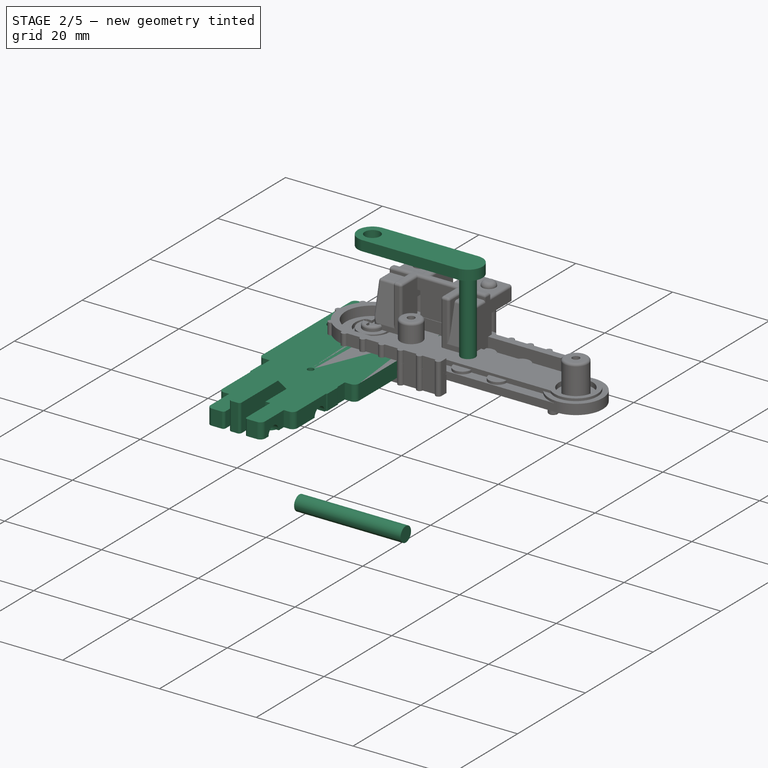
[diagram: stage 2 of 5 — iso view after this stage's code; geometry added in this stage tinted green]
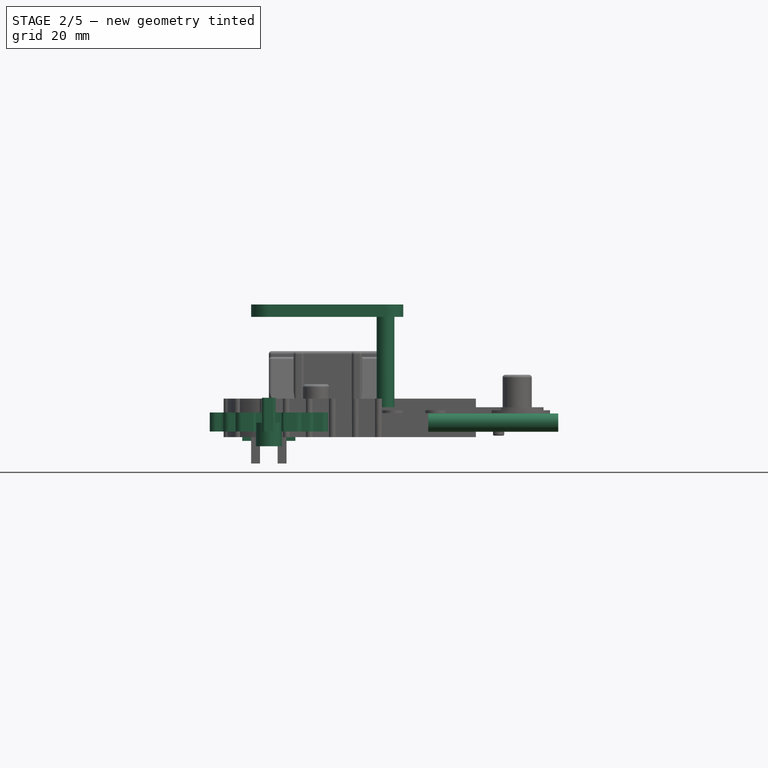
[diagram: stage 2 of 5 — front view after this stage's code; geometry added in this stage tinted green]
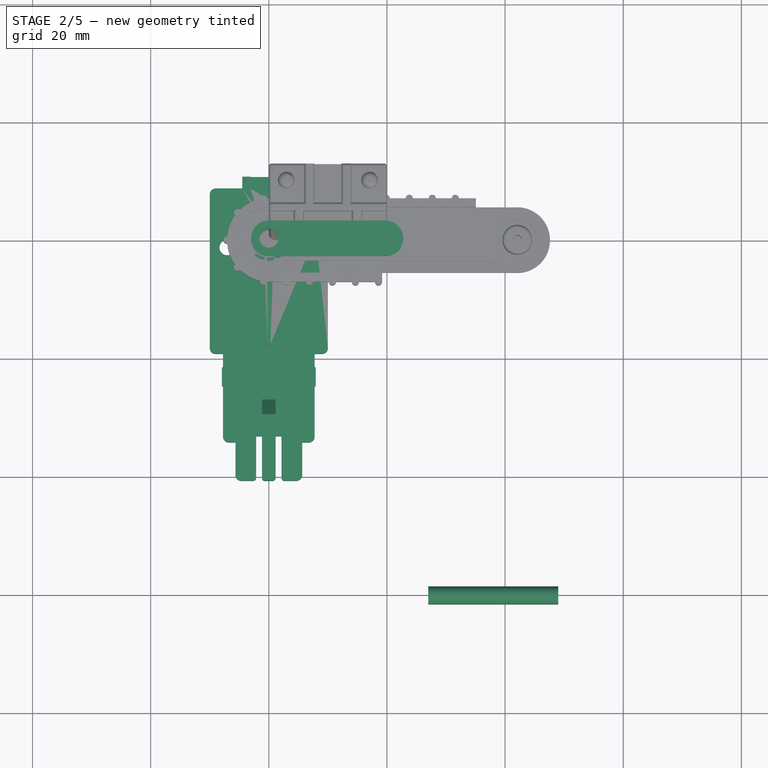
[diagram: stage 2 of 5 — top view after this stage's code; geometry added in this stage tinted green]
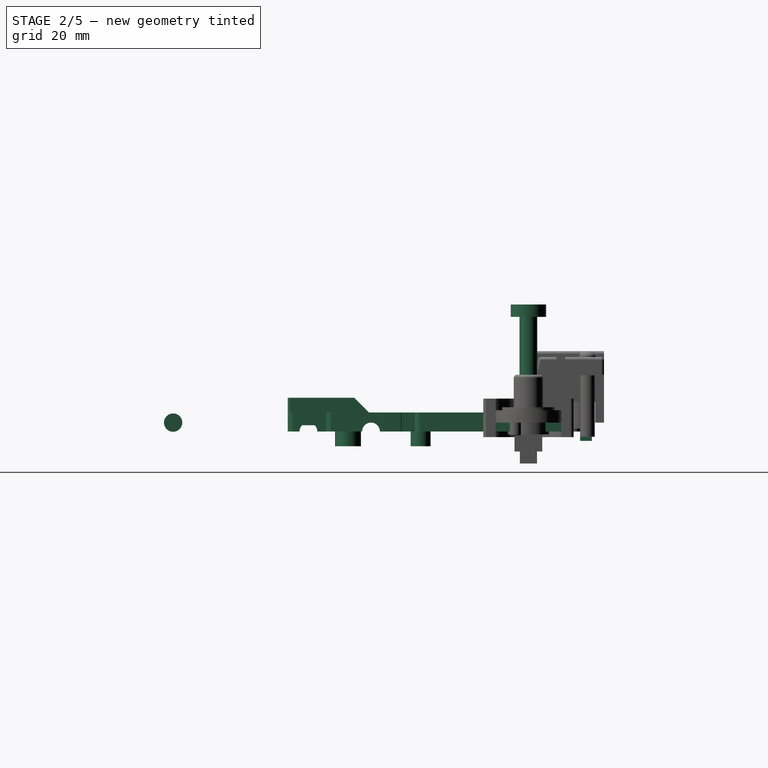
[diagram: stage 2 of 5 — right view after this stage's code; geometry added in this stage tinted green]
FEATURE [PartDesign::Body] Body008  label="Right_Shoulder"
  AllowCompound = false
  Group = -> [Sketch075,Pad039,DatumPlane008,Sketch076,Pocket042,DatumPlane009,Sketch077,Pocket043,DatumPlane010,Sketch078,Pad040,DatumPlane011,Sketch079,Pad041,Fillet024]
  Origin = -> Origin009
  Placement = pos=(31.15,-15,3.2) rot=(0,0,1;4.71239rad)
  Tip = -> Fillet024
FEATURE [Sketcher::SketchObject] Sketch080
  ArcFitTolerance = 1e-06
  AttachmentSupport = -> [XY_Plane010]
  FullyConstrained = true
  MakeInternals = false
  MapMode = 5
  sketch-geometry (20):
    g0: LineSegment StartX=10 StartY=7.75 StartZ=0 EndX=10 EndY=-18.25 EndZ=0
    g1: LineSegment StartX=7.75 StartY=-19.25 StartZ=0 EndX=7.75 EndY=-33.25 EndZ=0
    g2: LineSegment StartX=5.65 StartY=-34.25 StartZ=0 EndX=5.65 EndY=-39.75 EndZ=0
    g3: LineSegment StartX=-5.65 StartY=-39.75 StartZ=0 EndX=-5.65 EndY=-34.25 EndZ=0
    g4: LineSegment StartX=-7.75 StartY=-33.25 StartZ=0 EndX=-7.75 EndY=-19.25 EndZ=0
    g5: LineSegment StartX=-10 StartY=-18.25 StartZ=0 EndX=-10 EndY=7.75 EndZ=0
    g6: ArcOfCircle CenterX=-9 CenterY=-18.25 CenterZ=0 NormalX=0 NormalY=0 NormalZ=1 AngleXU=0 Radius=1 StartAngle=3.14159 EndAngle=4.71239
    g7: LineSegment StartX=-9 StartY=-19.25 StartZ=0 EndX=-7.75 EndY=-19.25 EndZ=0
    g8: ArcOfCircle CenterX=-6.75 CenterY=-33.25 CenterZ=0 NormalX=0 NormalY=0 NormalZ=1 AngleXU=0 Radius=1 StartAngle=3.14159 EndAngle=4.71239
    g9: LineSegment StartX=-6.75 StartY=-34.25 StartZ=0 EndX=-5.65 EndY=-34.25 EndZ=0
    g10: ArcOfCircle CenterX=6.75 CenterY=-33.25 CenterZ=0 NormalX=0 NormalY=0 NormalZ=1 AngleXU=0 Radius=1 StartAngle=4.71239 EndAngle=6.28319
    g11: LineSegment StartX=5.65 StartY=-34.25 StartZ=0 EndX=6.75 EndY=-34.25 EndZ=0
    g12: ArcOfCircle CenterX=-4.65 CenterY=-39.75 CenterZ=0 NormalX=0 NormalY=0 NormalZ=1 AngleXU=0 Radius=1 StartAngle=3.14159 EndAngle=4.71239
    g13: ArcOfCircle CenterX=4.65 CenterY=-39.75 CenterZ=0 NormalX=0 NormalY=0 NormalZ=1 AngleXU=0 Radius=1 StartAngle=4.71239 EndAngle=6.28319
    g14: LineSegment StartX=4.65 StartY=-40.75 StartZ=0 EndX=-4.65 EndY=-40.75 EndZ=0
    g15: ArcOfCircle CenterX=9 CenterY=-18.25 CenterZ=0 NormalX=0 NormalY=0 NormalZ=1 AngleXU=0 Radius=1 StartAngle=4.71239 EndAngle=6.28319
    g16: LineSegment StartX=9 StartY=-19.25 StartZ=0 EndX=7.75 EndY=-19.25 EndZ=0
    g17: ArcOfCircle CenterX=-9 CenterY=7.75 CenterZ=0 NormalX=0 NormalY=0 NormalZ=1 AngleXU=0 Radius=1 StartAngle=1.5708 EndAngle=3.14159
    g18: ArcOfCircle CenterX=9 CenterY=7.75 CenterZ=0 NormalX=0 NormalY=0 NormalZ=1 AngleXU=0 Radius=1 StartAngle=0 EndAngle=1.5708
    g19: LineSegment StartX=-9 StartY=8.75 StartZ=0 EndX=9 EndY=8.75 EndZ=0
  constraints (68):
    c: Vertical(g0)
    c: Vertical(g1)
    c: Vertical(g2)
    c: Vertical(g3)
    c: Vertical(g4)
    c: Vertical(g5)
    c: DistanceY(g0,g0) = 26
    c: DistanceY(g5,g5) = 26
    c: DistanceX(g1,g0) = 2.25
    c: DistanceX(g5,g4) = 2.25
    c: DistanceY(g1,g1) = 14
    c: DistanceY(g4,g4) = 14
    c: DistanceX(g4,g3) = 2.1
    c: DistanceX(g2,g1) = 2.1
    c: DistanceY(g3,g3) = 5.5
    c: DistanceY(g-1,g5) = 7.75
    c: DistanceX(g5,g0) = 20
    c: DistanceX(g5,g-1) = 10
    c: Coincident(g6,g5)
    c: Coincident(g7,g6)
    c: Coincident(g7,g4)
    c: Horizontal(g7)
    c: Diameter(g6) = 2
    c: DistanceX(g6,g6) = 0
    c: DistanceY(g6,g5) = 0
    c: Coincident(g8,g4)
    c: Coincident(g9,g8)
    c: Coincident(g9,g3)
    c: Horizontal(g9)
    c: Diameter(g8) = 2
    c: DistanceX(g8,g8) = 0
    c: DistanceY(g8,g4) = 0
    c: Coincident(g10,g1)
    c: Coincident(g11,g2)
    c: Coincident(g11,g10)
    c: Horizontal(g11)
    c: Diameter(g10) = 2
    c: DistanceX(g10,g10) = 0
    c: DistanceY(g10,g1) = 0
    c: Coincident(g12,g3)
    c: Coincident(g13,g2)
    c: Coincident(g14,g13)
    c: Coincident(g14,g12)
    c: Horizontal(g14)
    c: Diameter(g12) = 2
    c: Diameter(g13) = 2
    c: DistanceY(g12,g3) = 0
    c: DistanceY(g13,g2) = 0
    c: DistanceX(g13,g13) = 0
    c: DistanceX(g12,g12) = 0
    c: Coincident(g15,g0)
    c: Coincident(g16,g15)
    c: Coincident(g16,g1)
    c: Horizontal(g16)
    c: Diameter(g15) = 2
    c: DistanceY(g15,g0) = 0
    c: DistanceX(g15,g15) = 0
    c: DistanceY(g2,g2) = 5.5
    c: Coincident(g17,g5)
    c: Coincident(g18,g0)
    c: Coincident(g19,g17)
    c: Coincident(g19,g18)
    c: Horizontal(g19)
    c: Diameter(g18) = 2
    c: Diameter(g17) = 2
    c: DistanceX(g17,g17) = 0
    c: DistanceX(g18,g18) = 0
    c: DistanceY(g0,g18) = 0
FEATURE [PartDesign::Pad] Pad042
  Direction = (0,0,1)
  Length = 1.7
  Length2 = 10
  Profile = -> Sketch080
  ReferenceAxis = -> Sketch080 [N_Axis]
  Refine = true
  Suppressed = false
  Type = 0
FEATURE [PartDesign::Plane] DatumPlane012
  AttachmentSupport = -> [Pad042]
  Length = 61.4673
  MapMode = 5
  Placement = pos=(0,0,1.7) rot=(0,0,1;0rad)
  ResizeMode = 0
  Width = 77.2173
FEATURE [Sketcher::SketchObject] Sketch081
  ArcFitTolerance = 1e-06
  AttachmentSupport = -> [DatumPlane012]
  FullyConstrained = true
  MakeInternals = false
  MapMode = 5
  Placement = pos=(0,0,1.7) rot=(0,0,1;0rad)
  sketch-geometry (4):
    g0: LineSegment StartX=-4.5 StartY=8.75 StartZ=0 EndX=4.5 EndY=8.75 EndZ=0
    g1: LineSegment StartX=4.5 StartY=8.75 StartZ=0 EndX=4.5 EndY=10.75 EndZ=0
    g2: LineSegment StartX=4.5 StartY=10.75 StartZ=0 EndX=-4.5 EndY=10.75 EndZ=0
    g3: LineSegment StartX=-4.5 StartY=10.75 StartZ=0 EndX=-4.5 EndY=8.75 EndZ=0
  constraints (12):
    c: Coincident(g0,g1)
    c: Coincident(g1,g2)
    c: Coincident(g2,g3)
    c: Coincident(g3,g0)
    c: Horizontal(g0)
    c: Horizontal(g2)
    c: Vertical(g1)
    c: Vertical(g3)
    c: PointOnObject(g0,g-3)
    c: DistanceX(g2,g2) = 9
    c: DistanceY(g3,g3) = 2
    c: DistanceX(g0,g-3) = 5.5
FEATURE [PartDesign::Pad] Pad043
  BaseFeature = -> Pad042
  Direction = (0,0,1)
  Length = 4.8
  Length2 = 10
  Profile = -> Sketch081
  ReferenceAxis = -> Sketch081 [N_Axis]
  Refine = true
  Reversed = true
  Suppressed = false
  Type = 0
FEATURE [PartDesign::Plane] DatumPlane013
  AttachmentSupport = -> [Pad043]
  Length = 60
  MapMode = 5
  Placement = pos=(0,10.75,0) rot=(0,0.707107,0.707107;3.14159rad)
  ResizeMode = 0
  Width = 60
FEATURE [Sketcher::SketchObject] Sketch082
  ArcFitTolerance = 1e-06
  AttachmentSupport = -> [DatumPlane013]
  ExternalGeometry = -> [DatumPlane012,Pad043]
  FullyConstrained = true
  MakeInternals = false
  MapMode = 5
  Placement = pos=(0,10.75,0) rot=(0,0.707107,0.707107;3.14159rad)
  sketch-geometry (4):
    g0: LineSegment StartX=-3.1 StartY=1.7 StartZ=0 EndX=-3.1 EndY=-1.3 EndZ=0
    g1: LineSegment StartX=-3.1 StartY=-1.3 StartZ=0 EndX=3.1 EndY=-1.3 EndZ=0
    g2: LineSegment StartX=3.1 StartY=-1.3 StartZ=0 EndX=3.1 EndY=1.7 EndZ=0
    g3: LineSegment StartX=3.1 StartY=1.7 StartZ=0 EndX=-3.1 EndY=1.7 EndZ=0
  constraints (12):
    c: Coincident(g0,g1)
    c: Coincident(g1,g2)
    c: Coincident(g2,g3)
    c: Coincident(g3,g0)
    c: Vertical(g0)
    c: Vertical(g2)
    c: Horizontal(g1)
    c: Horizontal(g3)
    c: DistanceX(g-4,g0) = 1.4
    c: DistanceX(g2,g-5) = 1.4
    c: DistanceY(g-4,g0) = 1.8
    c: PointOnObject(g0,g-3)
FEATURE [PartDesign::Pocket] Pocket044
  BaseFeature = -> Pad043
  Direction = (0,-1,2e-16)
  Length = 2
  Length2 = 5
  Profile = -> Sketch082
  ReferenceAxis = -> Sketch082 [N_Axis]
  Refine = true
  Suppressed = false
  Type = 0
FEATURE [Sketcher::SketchObject] Sketch083
  ArcFitTolerance = 1e-06
  AttacherType = Attacher::AttachEngine3D
  AttachmentSupport = -> [DatumPlane012]
  FullyConstrained = true
  MakeInternals = false
  MapMode = 5
  Placement = pos=(0,0,1.7) rot=(0,0,1;0rad)
  sketch-geometry (4):
    g0: Circle CenterX=0 CenterY=0 CenterZ=0 NormalX=0 NormalY=0 NormalZ=1 AngleXU=0 Radius=0.75
    g1: Circle CenterX=-7.05 CenterY=-1.25 CenterZ=0 NormalX=0 NormalY=0 NormalZ=1 AngleXU=0 Radius=1.3
    g2: Circle CenterX=7.05 CenterY=-1.25 CenterZ=0 NormalX=0 NormalY=0 NormalZ=1 AngleXU=0 Radius=1.3
    g3: Circle CenterX=0 CenterY=-18.25 CenterZ=0 NormalX=0 NormalY=0 NormalZ=1 AngleXU=0 Radius=0.65
  constraints (11):
    c: Coincident(g0,g-1)
    c: Diameter(g0) = 1.5
    c: DistanceY(g1,g-3) = 10
    c: DistanceY(g2,g-4) = 10
    c: Diameter(g1) = 2.6
    c: Diameter(g2) = 2.6
    c: PointOnObject(g3,g-2)
    c: Diameter(g3) = 1.3
    c: DistanceY(g3,g-3) = 27
    c: DistanceX(g2,g-4) = 2.95
    c: DistanceX(g-3,g1) = 2.95
FEATURE [PartDesign::Pocket] Pocket045
  BaseFeature = -> Pocket044
  Direction = (0,0,-1)
  Length = 1.7
  Length2 = 5
  Profile = -> Sketch083
  ReferenceAxis = -> Sketch083 [N_Axis]
  Refine = true
  Suppressed = false
  Type = 0
FEATURE [Sketcher::SketchObject] Sketch084
  ArcFitTolerance = 1e-06
  AttachmentSupport = -> [DatumPlane012]
  FullyConstrained = true
  MakeInternals = false
  MapMode = 5
  Placement = pos=(0,0,1.7) rot=(0,0,1;0rad)
  sketch-geometry (1):
    g0: Circle CenterX=0 CenterY=0 CenterZ=0 NormalX=0 NormalY=0 NormalZ=1 AngleXU=0 Radius=2.5
  constraints (2):
    c: Coincident(g0,g-1)
    c: Diameter(g0) = 5
FEATURE [PartDesign::Pocket] Pocket046
  BaseFeature = -> Pocket045
  Direction = (0,0,-1)
  Length = 1
  Length2 = 5
  Profile = -> Sketch084
  ReferenceAxis = -> Sketch084 [N_Axis]
  Refine = true
  Suppressed = false
  Type = 0
FEATURE [Sketcher::SketchObject] Sketch085
  ArcFitTolerance = 1e-06
  AttachmentSupport = -> [DatumPlane012]
  ExternalGeometry = -> [Pocket046]
  FullyConstrained = true
  MakeInternals = false
  MapMode = 5
  Placement = pos=(0,0,1.7) rot=(0,0,1;0rad)
  sketch-geometry (4):
    g0: ArcOfCircle CenterX=-1.375 CenterY=4.95 CenterZ=0 NormalX=0 NormalY=0 NormalZ=1 AngleXU=0 Radius=1 StartAngle=1.5708 EndAngle=4.71239
    g1: ArcOfCircle CenterX=1.375 CenterY=4.95 CenterZ=0 NormalX=0 NormalY=0 NormalZ=1 AngleXU=0 Radius=1 StartAngle=4.71239 EndAngle=7.85398
    g2: LineSegment StartX=-1.375 StartY=5.95 StartZ=0 EndX=1.375 EndY=5.95 EndZ=0
    g3: LineSegment StartX=-1.375 StartY=3.95 StartZ=0 EndX=1.375 EndY=3.95 EndZ=0
  constraints (10):
    c: Tangent(g0,g2) = 1.5708
    c: Tangent(g0,g3) = -1.5708
    c: Tangent(g1,g2) = 1.5708
    c: Tangent(g1,g3) = -1.5708
    c: Equal(g0,g1)
    c: Horizontal(g3)
    c: DistanceY(g0,g-3) = 2.8
    c: Diameter(g0) = 2
    c: DistanceX(g0,g1) = 2.75
    c: DistanceX(g-1,g1) = 1.375
FEATURE [PartDesign::Pad] Pad044
  BaseFeature = -> Pocket046
  Direction = (0,0,1)
  Length = 0.5
  Length2 = 10
  Profile = -> Sketch085
  ReferenceAxis = -> Sketch085 [N_Axis]
  Refine = true
  Suppressed = false
  Type = 0
FEATURE [Sketcher::SketchObject] Sketch086
  ArcFitTolerance = 1e-06
  AttachmentSupport = -> [DatumPlane012]
  FullyConstrained = true
  MakeInternals = false
  MapMode = 5
  Placement = pos=(0,0,1.7) rot=(0,0,1;0rad)
  sketch-geometry (4):
    g0: LineSegment StartX=1.15 StartY=-40.75 StartZ=0 EndX=1.15 EndY=-27 EndZ=0
    g1: LineSegment StartX=1.15 StartY=-27 StartZ=0 EndX=-1.15 EndY=-27 EndZ=0
    g2: LineSegment StartX=-1.15 StartY=-27 StartZ=0 EndX=-1.15 EndY=-40.75 EndZ=0
    g3: LineSegment StartX=-1.15 StartY=-40.75 StartZ=0 EndX=1.15 EndY=-40.75 EndZ=0
  constraints (12):
    c: Coincident(g0,g1)
    c: Coincident(g1,g2)
    c: Coincident(g2,g3)
    c: Coincident(g3,g0)
    c: Vertical(g0)
    c: Vertical(g2)
    c: Horizontal(g1)
    c: Horizontal(g3)
    c: PointOnObject(g0,g-3)
    c: DistanceX(g1,g1) = 2.3
    c: DistanceY(g2,g2) = 13.75
    c: DistanceX(g-4,g2) = 4.5
FEATURE [PartDesign::Pad] Pad045
  BaseFeature = -> Pad044
  Direction = (0,0,1)
  Length = 2.5
  Length2 = 10
  Profile = -> Sketch086
  ReferenceAxis = -> Sketch086 [N_Axis]
  Refine = true
  Suppressed = false
  Type = 0
FEATURE [PartDesign::Plane] DatumPlane014
  AttachmentSupport = -> [Pad045]
  Length = 77.2173
  MapMode = 5
  Placement = pos=(1.15,0,0) rot=(0.57735,0.57735,0.57735;2.0944rad)
  ResizeMode = 0
  Width = 61.4673
FEATURE [Sketcher::SketchObject] Sketch087
  ArcFitTolerance = 1e-06
  AttachmentSupport = -> [DatumPlane014]
  ExternalGeometry = -> [Pad045]
  FullyConstrained = true
  MakeInternals = false
  MapMode = 5
  Placement = pos=(1.15,0,0) rot=(0.57735,0.57735,0.57735;2.0944rad)
  sketch-geometry (3):
    g0: LineSegment StartX=-27 StartY=1.7 StartZ=0 EndX=-27 EndY=4.2 EndZ=0
    g1: LineSegment StartX=-29.5 StartY=4.2 StartZ=0 EndX=-27 EndY=1.7 EndZ=0
    g2: LineSegment StartX=-27 StartY=4.2 StartZ=0 EndX=-29.5 EndY=4.2 EndZ=0
  constraints (7):
    c: Coincident(g0,g-4)
    c: Coincident(g0,g-4)
    c: PointOnObject(g1,g-3)
    c: Coincident(g1,g0)
    c: Angle(g-3,g1) = 2.35619
    c: Coincident(g2,g0)
    c: Coincident(g2,g1)
FEATURE [PartDesign::Pocket] Pocket047
  BaseFeature = -> Pad045
  Direction = (-1,0,0)
  Length = 2.3
  Length2 = 5
  Profile = -> Sketch087
  ReferenceAxis = -> Sketch087 [N_Axis]
  Refine = true
  Suppressed = false
  Type = 0
FEATURE [Sketcher::SketchObject] Sketch088
  ArcFitTolerance = 1e-06
  AttachmentSupport = -> [Pocket047]
  FullyConstrained = true
  MakeInternals = false
  MapMode = 5
  Placement = pos=(0,0,0) rot=(1,0,0;3.14159rad)
  sketch-geometry (6):
    g0: ArcOfCircle CenterX=-4.65 CenterY=39.75 CenterZ=0 NormalX=0 NormalY=0 NormalZ=1 AngleXU=0 Radius=1 StartAngle=1.5708 EndAngle=3.14159
    g1: ArcOfCircle CenterX=4.65 CenterY=39.75 CenterZ=0 NormalX=0 NormalY=0 NormalZ=1 AngleXU=0 Radius=1 StartAngle=-1.8e-15 EndAngle=1.5708
    g2: LineSegment StartX=-4.65 StartY=40.75 StartZ=0 EndX=4.65 EndY=40.75 EndZ=0
    g3: LineSegment StartX=5.65 StartY=34.25 StartZ=0 EndX=-5.65 EndY=34.25 EndZ=0
    g4: LineSegment StartX=5.65 StartY=39.75 StartZ=0 EndX=5.65 EndY=34.25 EndZ=0
    g5: LineSegment StartX=-5.65 StartY=39.75 StartZ=0 EndX=-5.65 EndY=34.25 EndZ=0
  constraints (16):
    c: Coincident(g0,g-3)
    c: Coincident(g0,g-4)
    c: Coincident(g2,g0)
    c: Coincident(g2,g1)
    c: Coincident(g4,g1)
    c: Vertical(g4)
    c: DistanceY(g4,g4) = 5.5
    c: Coincident(g5,g0)
    c: Vertical(g5)
    c: Coincident(g3,g5)
    c: Coincident(g3,g4)
    c: Coincident(g1,g-5)
    c: Coincident(g1,g-5)
    c: Horizontal(g3)
    c: Horizontal(g2)
    c: DistanceY(g0,g0) = 0
FEATURE [PartDesign::Pad] Pad046
  BaseFeature = -> Pocket047
  Direction = (0,0,-1)
  Length = 1.5
  Length2 = 10
  Profile = -> Sketch088
  ReferenceAxis = -> Sketch088 [N_Axis]
  Refine = true
  Suppressed = false
  Type = 0
FEATURE [Sketcher::SketchObject] Sketch089
  ArcFitTolerance = 1e-06
  AttachmentSupport = -> [Pad046]
  ExternalGeometry = -> [Pad046]
  FullyConstrained = true
  MakeInternals = false
  MapMode = 5
  Placement = pos=(0,0,0) rot=(1,0,0;3.14159rad)
  sketch-geometry (14):
    g0: LineSegment StartX=7.75 StartY=33.25 StartZ=0 EndX=7.75 EndY=19.25 EndZ=0
    g1: LineSegment StartX=7.75 StartY=19.25 StartZ=0 EndX=9 EndY=19.25 EndZ=0
    g2: ArcOfCircle CenterX=9 CenterY=18.25 CenterZ=0 NormalX=0 NormalY=0 NormalZ=1 AngleXU=0 Radius=1 StartAngle=0 EndAngle=1.5708
    g3: LineSegment StartX=10 StartY=18.25 StartZ=0 EndX=10 EndY=-7.75 EndZ=0
    g4: LineSegment StartX=9 StartY=-8.75 StartZ=0 EndX=-9 EndY=-8.75 EndZ=0
    g5: ArcOfCircle CenterX=-9 CenterY=-7.75 CenterZ=0 NormalX=0 NormalY=0 NormalZ=1 AngleXU=0 Radius=1 StartAngle=3.14159 EndAngle=4.71239
    g6: LineSegment StartX=-10 StartY=-7.75 StartZ=0 EndX=-10 EndY=18.25 EndZ=0
    g7: ArcOfCircle CenterX=-9 CenterY=18.25 CenterZ=0 NormalX=0 NormalY=0 NormalZ=1 AngleXU=0 Radius=1 StartAngle=1.5708 EndAngle=3.14159
    g8: LineSegment StartX=-9 StartY=19.25 StartZ=0 EndX=-7.75 EndY=19.25 EndZ=0
    g9: ArcOfCircle CenterX=-6.75 CenterY=33.25 CenterZ=0 NormalX=0 NormalY=0 NormalZ=1 AngleXU=0 Radius=1 StartAngle=1.5708 EndAngle=3.14159
    g10: ArcOfCircle CenterX=6.75 CenterY=33.25 CenterZ=0 NormalX=0 NormalY=0 NormalZ=1 AngleXU=0 Radius=1 StartAngle=9e-16 EndAngle=1.5708
    g11: LineSegment StartX=6.75 StartY=34.25 StartZ=0 EndX=-6.75 EndY=34.25 EndZ=0
    g12: LineSegment StartX=-7.75 StartY=33.25 StartZ=0 EndX=-7.75 EndY=19.25 EndZ=0
    g13: ArcOfCircle CenterX=9 CenterY=-7.75 CenterZ=0 NormalX=0 NormalY=0 NormalZ=1 AngleXU=0 Radius=1 StartAngle=4.71239 EndAngle=6.28319
  constraints (35):
    c: Coincident(g2,g-11)
    c: Coincident(g2,g1)
    c: Coincident(g2,g-11)
    c: Tangent(g3,g2) = 1.5708
    c: Coincident(g5,g-6)
    c: Coincident(g5,g4)
    c: Coincident(g5,g-6)
    c: Coincident(g6,g5)
    c: Coincident(g6,g-5)
    c: Coincident(g7,g-4)
    c: Coincident(g7,g6)
    c: Coincident(g8,g7)
    c: Coincident(g8,g-3)
    c: Horizontal(g8)
    c: Coincident(g0,g1)
    c: Radius(g9) = 1
    c: DistanceX(g9,g9) = 0
    c: DistanceY(g9,g9) = 0
    c: PointOnObject(g0,g-14)
    c: Coincident(g10,g0)
    c: Radius(g10) = 1
    c: DistanceY(g0,g10) = 0
    c: Tangent(g11,g10) = -1.5708
    c: Coincident(g11,g9)
    c: Coincident(g12,g9)
    c: Coincident(g12,g8)
    c: Vertical(g12)
    c: Coincident(g13,g3)
    c: Coincident(g13,g-9)
    c: Coincident(g4,g13)
    c: Horizontal(g4)
    c: Coincident(g4,g-9)
    c: Coincident(g0,g-14)
    c: Horizontal(g1)
    c: Coincident(g10,g-15)
FEATURE [PartDesign::Pad] Pad047
  BaseFeature = -> Pad046
  Direction = (0,0,-1)
  Length = 1.5
  Length2 = 10
  Profile = -> Sketch089
  ReferenceAxis = -> Sketch089 [N_Axis]
  Refine = true
  Suppressed = false
  Type = 0
FEATURE [Sketcher::SketchObject] Sketch090
  ArcFitTolerance = 1e-06
  AttachmentSupport = -> [Pad047]
  ExternalGeometry = -> [Pad047]
  FullyConstrained = true
  MakeInternals = false
  MapMode = 5
  Placement = pos=(0,0,-1.5) rot=(1,0,0;3.14159rad)
  sketch-geometry (22):
    g0: ArcOfCircle CenterX=-4.1 CenterY=-8.25 CenterZ=0 NormalX=0 NormalY=0 NormalZ=1 AngleXU=0 Radius=1 StartAngle=0 EndAngle=1.5708
    g1: LineSegment StartX=-3.1 StartY=-8.25 StartZ=0 EndX=-3.1 EndY=-8.75 EndZ=0
    g2: ArcOfCircle CenterX=-7.25 CenterY=18.75 CenterZ=0 NormalX=0 NormalY=0 NormalZ=1 AngleXU=0 Radius=1 StartAngle=4.71239 EndAngle=6.28319
    g3: LineSegment StartX=-6.25 StartY=18.75 StartZ=0 EndX=-6.25 EndY=32.75 EndZ=0
    g4: LineSegment StartX=-3.1 StartY=-8.75 StartZ=0 EndX=3.1 EndY=-8.75 EndZ=0
    g5: LineSegment StartX=3.1 StartY=-8.75 StartZ=0 EndX=3.1 EndY=-8.25 EndZ=0
    g6: ArcOfCircle CenterX=4.1 CenterY=-8.25 CenterZ=0 NormalX=0 NormalY=0 NormalZ=1 AngleXU=0 Radius=1 StartAngle=1.5708 EndAngle=3.14159
    g7: LineSegment StartX=4.1 StartY=-7.25 StartZ=0 EndX=8.5 EndY=-7.25 EndZ=0
    g8: LineSegment StartX=8.5 StartY=-7.25 StartZ=0 EndX=8.5 EndY=17.75 EndZ=0
    g9: LineSegment StartX=8.5 StartY=17.75 StartZ=0 EndX=7.25 EndY=17.75 EndZ=0
    g10: ArcOfCircle CenterX=7.25 CenterY=18.75 CenterZ=0 NormalX=0 NormalY=0 NormalZ=1 AngleXU=0 Radius=1 StartAngle=3.14159 EndAngle=4.71239
    g11: LineSegment StartX=6.25 StartY=18.75 StartZ=0 EndX=6.25 EndY=32.75 EndZ=0
    g12: LineSegment StartX=-6.25 StartY=32.75 StartZ=0 EndX=-5.15 EndY=32.75 EndZ=0
    g13: ArcOfCircle CenterX=-5.15 CenterY=33.75 CenterZ=0 NormalX=0 NormalY=0 NormalZ=1 AngleXU=0 Radius=1 StartAngle=4.71239 EndAngle=6.28319
    g14: LineSegment StartX=-4.15 StartY=33.75 StartZ=0 EndX=-4.15 EndY=34.25 EndZ=0
    g15: LineSegment StartX=-4.15 StartY=34.25 StartZ=0 EndX=4.15 EndY=34.25 EndZ=0
    g16: LineSegment StartX=4.15 StartY=34.25 StartZ=0 EndX=4.15 EndY=33.75 EndZ=0
    g17: ArcOfCircle CenterX=5.15 CenterY=33.75 CenterZ=0 NormalX=0 NormalY=0 NormalZ=1 AngleXU=0 Radius=1 StartAngle=3.14159 EndAngle=4.71239
    g18: LineSegment StartX=5.15 StartY=32.75 StartZ=0 EndX=6.25 EndY=32.75 EndZ=0
    g19: LineSegment StartX=-4.1 StartY=-7.25 StartZ=0 EndX=-8.5 EndY=-7.25 EndZ=0
    g20: LineSegment StartX=-8.5 StartY=-7.25 StartZ=0 EndX=-8.5 EndY=17.75 EndZ=0
    g21: LineSegment StartX=-7.25 StartY=17.75 StartZ=0 EndX=-8.5 EndY=17.75 EndZ=0
  constraints (72):
    c: Coincident(g1,g0)
    c: Diameter(g0) = 2
    c: DistanceX(g0,g0) = 0
    c: DistanceY(g0,g0) = 0
    c: Vertical(g1)
    c: Coincident(g3,g2)
    c: Vertical(g3)
    c: DistanceX(g-10,g2) = 1.5
    c: DistanceX(g2,g2) = 0
    c: DistanceY(g2,g2) = 0
    c: Diameter(g2) = 2
    c: Coincident(g4,g1)
    c: Horizontal(g4)
    c: DistanceX(g4,g-6) = 1.4
    c: DistanceX(g-8,g1) = 1.4
    c: Coincident(g5,g4)
    c: Vertical(g5)
    c: Coincident(g6,g5)
    c: Coincident(g7,g6)
    c: Horizontal(g7)
    c: Coincident(g8,g7)
    c: Vertical(g8)
    c: Coincident(g9,g8)
    c: Horizontal(g9)
    c: Coincident(g10,g9)
    c: Coincident(g11,g10)
    c: Vertical(g11)
    c: Coincident(g12,g3)
    c: Horizontal(g12)
    c: Coincident(g13,g12)
    c: Coincident(g14,g13)
    c: Vertical(g14)
    c: Coincident(g15,g14)
    c: Horizontal(g15)
    c: Coincident(g16,g15)
    c: Coincident(g17,g16)
    c: Coincident(g18,g17)
    c: Coincident(g18,g11)
    c: DistanceX(g15,g-18) = 1.5
    c: Radius(g17) = 1
    c: Horizontal(g18)
    c: Vertical(g16)
    c: DistanceX(g11,g-13) = 1.5
    c: DistanceY(g17,g-18) = 1.5
    c: Radius(g10) = 1
    c: DistanceY(g8,g-15) = 1.5
    c: DistanceX(g8,g-15) = 1.5
    c: DistanceX(g10,g9) = 0
    c: DistanceY(g10,g10) = 0
    c: Radius(g6) = 1
    c: DistanceY(g-16,g7) = 1.5
    c: DistanceX(g6,g6) = 0
    c: DistanceY(g5,g6) = 0
    c: DistanceY(g4,g-6) = 0
    c: Radius(g13) = 1
    c: DistanceX(g12,g13) = 0
    c: DistanceY(g13,g13) = 0
    c: DistanceY(g3,g-11) = 1.5
    c: DistanceX(g-17,g14) = 1.5
    c: DistanceY(g14,g-17) = 0
    c: DistanceY(g16,g17) = 0
    c: DistanceX(g17,g17) = 0
    c: Coincident(g19,g0)
    c: Horizontal(g19)
    c: Coincident(g20,g19)
    c: Vertical(g20)
    c: Coincident(g21,g2)
    c: Coincident(g21,g20)
    c: Horizontal(g21)
    c: DistanceX(g-9,g20) = 1.5
    c: DistanceY(g-8,g19) = 1.5
    c: DistanceY(g20,g-10) = 1.5
FEATURE [PartDesign::Pocket] Pocket048
  BaseFeature = -> Pad047
  Direction = (0,0,1)
  Length = 1.5
  Length2 = 5
  Profile = -> Sketch090
  ReferenceAxis = -> Sketch090 [N_Axis]
  Refine = true
  Suppressed = false
  Type = 0
FEATURE [Sketcher::SketchObject] Sketch092
  ArcFitTolerance = 1e-06
  AttachmentSupport = -> [Pocket048]
  FullyConstrained = true
  MakeInternals = false
  MapMode = 5
  Placement = pos=(0,0,-4e-16) rot=(1,0,0;3.14159rad)
  sketch-geometry (1):
    g0: Circle CenterX=0 CenterY=0 CenterZ=0 NormalX=0 NormalY=0 NormalZ=1 AngleXU=0 Radius=3.475
  constraints (2):
    c: Coincident(g0,g-1)
    c: Diameter(g0) = 6.95
FEATURE [PartDesign::Pad] Pad048
  BaseFeature = -> Pocket048
  Direction = (0,0,-1)
  Length = 1.5
  Length2 = 10
  Profile = -> Sketch092
  ReferenceAxis = -> Sketch092 [N_Axis]
  Refine = true
  Suppressed = false
  Type = 0
FEATURE [Sketcher::SketchObject] Sketch093
  ArcFitTolerance = 1e-06
  AttachmentSupport = -> [Pad048]
  FullyConstrained = true
  MakeInternals = false
  MapMode = 5
  Placement = pos=(0,0,-1.5) rot=(1,0,0;3.14159rad)
  sketch-geometry (1):
    g0: Circle CenterX=0 CenterY=0 CenterZ=0 NormalX=0 NormalY=0 NormalZ=1 AngleXU=0 Radius=2.2
  constraints (2):
    c: Coincident(g0,g-1)
    c: Diameter(g0) = 4.4
FEATURE [PartDesign::Pocket] Pocket050
  BaseFeature = -> Pad048
  Direction = (0,0,1)
  Length = 1.5
  Length2 = 5
  Profile = -> Sketch093
  ReferenceAxis = -> Sketch093 [N_Axis]
  Refine = true
  Suppressed = false
  Type = 0
FEATURE [Sketcher::SketchObject] Sketch094
  ArcFitTolerance = 1e-06
  AttachmentSupport = -> [Pocket050]
  ExternalGeometry = -> [Pocket050]
  FullyConstrained = true
  MakeInternals = false
  MapMode = 5
  Placement = pos=(0,0,-4e-16) rot=(1,0,0;3.14159rad)
  sketch-geometry (2):
    g0: Circle CenterX=0 CenterY=18.25 CenterZ=0 NormalX=0 NormalY=0 NormalZ=1 AngleXU=0 Radius=1.7
    g1: Circle CenterX=0 CenterY=30.55 CenterZ=0 NormalX=0 NormalY=0 NormalZ=1 AngleXU=0 Radius=2.2
  constraints (5):
    c: Diameter(g0) = 3.4
    c: PointOnObject(g1,g-2)
    c: Diameter(g1) = 4.4
    c: DistanceY(g1,g-3) = 10.2
    c: Coincident(g0,g-4)
FEATURE [PartDesign::Pad] Pad049
  BaseFeature = -> Pocket050
  Direction = (0,0,-1)
  Length = 4
  Length2 = 10
  Profile = -> Sketch094
  ReferenceAxis = -> Sketch094 [N_Axis]
  Refine = true
  Suppressed = false
  Type = 0
FEATURE [Sketcher::SketchObject] Sketch095
  ArcFitTolerance = 1e-06
  AttachmentSupport = -> [Pad049]
  ExternalGeometry = -> [Pad049]
  FullyConstrained = true
  MakeInternals = false
  MapMode = 5
  Placement = pos=(0,0,-4) rot=(1,0,0;3.14159rad)
  sketch-geometry (1):
    g0: Circle CenterX=0 CenterY=30.55 CenterZ=0 NormalX=0 NormalY=0 NormalZ=1 AngleXU=0 Radius=0.75
  constraints (2):
    c: Coincident(g0,g-3)
    c: Diameter(g0) = 1.5
FEATURE [PartDesign::Pocket] Pocket051
  BaseFeature = -> Pad049
  Direction = (0,0,1)
  Length = 4
  Length2 = 5
  Profile = -> Sketch095
  ReferenceAxis = -> Sketch095 [N_Axis]
  Refine = true
  Suppressed = false
  Type = 0
FEATURE [Sketcher::SketchObject] Sketch096
  ArcFitTolerance = 1e-06
  AttachmentSupport = -> [Pocket051]
  ExternalGeometry = -> [Pocket051]
  FullyConstrained = true
  MakeInternals = false
  MapMode = 5
  Placement = pos=(0,0,-4e-16) rot=(1,0,0;3.14159rad)
  sketch-geometry (16):
    g0: ArcOfCircle CenterX=-3 CenterY=18.25 CenterZ=0 NormalX=0 NormalY=0 NormalZ=1 AngleXU=0 Radius=0.7 StartAngle=4.71239 EndAngle=7.85398
    g1: ArcOfCircle CenterX=-5 CenterY=18.25 CenterZ=0 NormalX=0 NormalY=0 NormalZ=1 AngleXU=0 Radius=0.7 StartAngle=1.5708 EndAngle=4.71239
    g2: LineSegment StartX=-3 StartY=17.55 StartZ=0 EndX=-5 EndY=17.55 EndZ=0
    g3: LineSegment StartX=-3 StartY=18.95 StartZ=0 EndX=-5 EndY=18.95 EndZ=0
    g4: ArcOfCircle CenterX=3 CenterY=18.25 CenterZ=0 NormalX=0 NormalY=0 NormalZ=1 AngleXU=0 Radius=0.7 StartAngle=1.5708 EndAngle=4.71239
    g5: ArcOfCircle CenterX=5 CenterY=18.25 CenterZ=0 NormalX=0 NormalY=0 NormalZ=1 AngleXU=0 Radius=0.7 StartAngle=4.71239 EndAngle=7.85398
    g6: LineSegment StartX=3 StartY=18.95 StartZ=0 EndX=5 EndY=18.95 EndZ=0
    g7: LineSegment StartX=3 StartY=17.55 StartZ=0 EndX=5 EndY=17.55 EndZ=0
    g8: ArcOfCircle CenterX=0 CenterY=21.25 CenterZ=0 NormalX=0 NormalY=0 NormalZ=1 AngleXU=0 Radius=0.7 StartAngle=3.14159 EndAngle=6.28319
    g9: ArcOfCircle CenterX=0 CenterY=23.25 CenterZ=0 NormalX=0 NormalY=0 NormalZ=1 AngleXU=0 Radius=0.7 StartAngle=5e-16 EndAngle=3.14159
    g10: LineSegment StartX=-0.7 StartY=21.25 StartZ=0 EndX=-0.7 EndY=23.25 EndZ=0
    g11: LineSegment StartX=0.7 StartY=21.25 StartZ=0 EndX=0.7 EndY=23.25 EndZ=0
    g12: ArcOfCircle CenterX=0 CenterY=15.25 CenterZ=0 NormalX=0 NormalY=0 NormalZ=1 AngleXU=0 Radius=0.7 StartAngle=-9e-16 EndAngle=3.14159
    g13: ArcOfCircle CenterX=0 CenterY=13.25 CenterZ=0 NormalX=0 NormalY=0 NormalZ=1 AngleXU=0 Radius=0.7 StartAngle=3.14159 EndAngle=6.28319
    g14: LineSegment StartX=0.7 StartY=15.25 StartZ=0 EndX=0.7 EndY=13.25 EndZ=0
    g15: LineSegment StartX=-0.7 StartY=15.25 StartZ=0 EndX=-0.7 EndY=13.25 EndZ=0
  constraints (40):
    c: Tangent(g0,g2) = 1.5708
    c: Tangent(g0,g3) = -1.5708
    c: Tangent(g1,g2) = 1.5708
    c: Tangent(g1,g3) = -1.5708
    c: Equal(g0,g1)
    c: Horizontal(g3)
    c: Tangent(g4,g6) = 1.5708
    c: Tangent(g4,g7) = -1.5708
    c: Tangent(g5,g6) = 1.5708
    c: Tangent(g5,g7) = -1.5708
    c: Equal(g4,g5)
    c: Horizontal(g7)
    c: Tangent(g8,g10) = 1.5708
    c: Tangent(g8,g11) = -1.5708
    c: Tangent(g9,g10) = 1.5708
    c: Tangent(g9,g11) = -1.5708
    c: Equal(g8,g9)
    c: Vertical(g11)
    c: PointOnObject(g8,g-2)
    c: Tangent(g12,g14) = 1.5708
    c: Tangent(g12,g15) = -1.5708
    c: Tangent(g13,g14) = 1.5708
    c: Tangent(g13,g15) = -1.5708
    c: Equal(g12,g13)
    c: Vertical(g15)
    c: Diameter(g1) = 1.4
    c: Diameter(g8) = 1.4
    c: Diameter(g4) = 1.4
    c: Diameter(g12) = 1.4
    c: Distance(g12,g13) = 2
    c: Distance(g0,g1) = 2
    c: Distance(g8,g9) = 2
    c: Distance(g4,g5) = 2
    c: DistanceX(g0,g-3) = 3
    c: DistanceX(g-3,g4) = 3
    c: DistanceY(g12,g-3) = 3
    c: DistanceY(g-3,g8) = 3
    c: PointOnObject(g12,g-2)
    c: DistanceY(g0,g-3) = 0
    c: DistanceY(g4,g-3) = 0
FEATURE [PartDesign::Pad] Pad050
  BaseFeature = -> Pocket051
  Direction = (0,0,-1)
  Length = 0.4
  Length2 = 10
  Profile = -> Sketch096
  ReferenceAxis = -> Sketch096 [N_Axis]
  Refine = true
  Suppressed = false
  Type = 0
FEATURE [Sketcher::SketchObject] Sketch097
  ArcFitTolerance = 1e-06
  AttachmentSupport = -> [Pad050]
  FullyConstrained = true
  MakeInternals = false
  MapMode = 5
  Placement = pos=(5.65,0,-4.7e-15) rot=(0.57735,0.57735,0.57735;2.0944rad)
  sketch-geometry (1):
    g0: Circle CenterX=-37.25 CenterY=-1.5 CenterZ=0 NormalX=0 NormalY=0 NormalZ=1 AngleXU=0 Radius=1.5
  constraints (3):
    c: Diameter(g0) = 3
    c: PointOnObject(g0,g-3)
    c: DistanceX(g0,g-3) = 2.5
FEATURE [PartDesign::Pocket] Pocket052
  BaseFeature = -> Pad050
  Direction = (-1,0,0)
  Length = 12
  Length2 = 5
  Profile = -> Sketch097
  ReferenceAxis = -> Sketch097 [N_Axis]
  Refine = true
  Suppressed = false
  Type = 0
FEATURE [Sketcher::SketchObject] Sketch098
  ArcFitTolerance = 1e-06
  AttachmentSupport = -> [Pocket052]
  ExternalGeometry = -> [Pocket052]
  FullyConstrained = true
  MakeInternals = false
  MapMode = 5
  Placement = pos=(7.75,0,0) rot=(0.57735,0.57735,0.57735;2.0944rad)
  sketch-geometry (1):
    g0: Circle CenterX=-26.65 CenterY=-1.5 CenterZ=0 NormalX=0 NormalY=0 NormalZ=1 AngleXU=0 Radius=1.5
  constraints (3):
    c: Tangent(g0,g-1)
    c: DistanceX(g-3,g0) = 6.6
    c: PointOnObject(g0,g-3)
FEATURE [PartDesign::Pocket] Pocket053
  BaseFeature = -> Pocket052
  Direction = (-1,0,0)
  Length = 16
  Length2 = 5
  Profile = -> Sketch098
  ReferenceAxis = -> Sketch098 [N_Axis]
  Refine = true
  Suppressed = false
  Type = 0
FEATURE [Sketcher::SketchObject] Sketch099
  ArcFitTolerance = 1e-06
  AttachmentSupport = -> [Pocket053]
  FullyConstrained = true
  MakeInternals = false
  MapMode = 5
  Placement = pos=(7.75,0,0) rot=(0.57735,0.57735,0.57735;2.0944rad)
  sketch-geometry (4):
    g0: LineSegment StartX=-24.75 StartY=1.7 StartZ=0 EndX=-24.75 EndY=-1.5 EndZ=0
    g1: LineSegment StartX=-24.75 StartY=-1.5 StartZ=0 EndX=-21.5 EndY=-1.5 EndZ=0
    g2: LineSegment StartX=-21.5 StartY=-1.5 StartZ=0 EndX=-21.5 EndY=1.7 EndZ=0
    g3: LineSegment StartX=-21.5 StartY=1.7 StartZ=0 EndX=-24.75 EndY=1.7 EndZ=0
  constraints (12):
    c: Coincident(g0,g1)
    c: Coincident(g1,g2)
    c: Coincident(g2,g3)
    c: Coincident(g3,g0)
    c: Vertical(g0)
    c: Vertical(g2)
    c: Horizontal(g1)
    c: Horizontal(g3)
    c: PointOnObject(g0,g-3)
    c: PointOnObject(g1,g-4)
    c: DistanceX(g0,g2) = 3.25
    c: DistanceX(g2,g-3) = 2.25
FEATURE [PartDesign::Pad] Pad051
  BaseFeature = -> Pocket053
  Direction = (1,0,0)
  Length = 0.2
  Length2 = 10
  Profile = -> Sketch099
  ReferenceAxis = -> Sketch099 [N_Axis]
  Refine = true
  Suppressed = false
  Type = 0
FEATURE [PartDesign::Fillet] Fillet026
  Base = -> Pad051 [Edge273,Edge270]
  BaseFeature = -> Pad051
  Radius = 0.1
  Refine = true
  SupportTransform = false
  Suppressed = false
  UseAllEdges = false
FEATURE [Sketcher::SketchObject] Sketch100
  ArcFitTolerance = 1e-06
  AttachmentSupport = -> [Fillet026]
  ExternalGeometry = -> [Fillet026]
  FullyConstrained = true
  MakeInternals = false
  MapMode = 5
  Placement = pos=(-7.75,0,0) rot=(0.57735,-0.57735,-0.57735;2.0944rad)
  sketch-geometry (4):
    g0: LineSegment StartX=21.5 StartY=1.7 StartZ=0 EndX=21.5 EndY=-1.5 EndZ=0
    g1: LineSegment StartX=21.5 StartY=-1.5 StartZ=0 EndX=24.75 EndY=-1.5 EndZ=0
    g2: LineSegment StartX=24.75 StartY=-1.5 StartZ=0 EndX=24.75 EndY=1.7 EndZ=0
    g3: LineSegment StartX=24.75 StartY=1.7 StartZ=0 EndX=21.5 EndY=1.7 EndZ=0
  constraints (12):
    c: Coincident(g0,g1)
    c: Coincident(g1,g2)
    c: Coincident(g2,g3)
    c: Coincident(g3,g0)
    c: Vertical(g0)
    c: Vertical(g2)
    c: Horizontal(g1)
    c: Horizontal(g3)
    c: PointOnObject(g0,g-3)
    c: PointOnObject(g1,g-4)
    c: DistanceX(g0,g2) = 3.25
    c: DistanceX(g-3,g0) = 2.25
FEATURE [PartDesign::Pad] Pad052
  BaseFeature = -> Fillet026
  Direction = (-1,0,0)
  Length = 0.2
  Length2 = 10
  Profile = -> Sketch100
  ReferenceAxis = -> Sketch100 [N_Axis]
  Refine = true
  Suppressed = false
  Type = 0
FEATURE [PartDesign::Fillet] Fillet027
  Base = -> Pad052 [Edge225,Edge222]
  BaseFeature = -> Pad052
  Radius = 0.1
  Refine = true
  SupportTransform = false
  Suppressed = false
  UseAllEdges = false
FEATURE [Sketcher::SketchObject] Sketch101
  ArcFitTolerance = 1e-06
  AttachmentSupport = -> [Fillet027]
  ExternalGeometry = -> [Fillet027]
  FullyConstrained = true
  MakeInternals = false
  MapMode = 5
  Placement = pos=(0,0,-1.5) rot=(1,0,0;3.14159rad)
  sketch-geometry (8):
    g0: LineSegment StartX=-2.15 StartY=40.75 StartZ=0 EndX=-2.15 EndY=33.25 EndZ=0
    g1: LineSegment StartX=-2.15 StartY=33.25 StartZ=0 EndX=-1.15 EndY=33.25 EndZ=0
    g2: LineSegment StartX=-1.15 StartY=33.25 StartZ=0 EndX=-1.15 EndY=40.75 EndZ=0
    g3: LineSegment StartX=-1.15 StartY=40.75 StartZ=0 EndX=-2.15 EndY=40.75 EndZ=0
    g4: LineSegment StartX=1.15 StartY=40.75 StartZ=0 EndX=1.15 EndY=33.25 EndZ=0
    g5: LineSegment StartX=1.15 StartY=33.25 StartZ=0 EndX=2.15 EndY=33.25 EndZ=0
    g6: LineSegment StartX=2.15 StartY=33.25 StartZ=0 EndX=2.15 EndY=40.75 EndZ=0
    g7: LineSegment StartX=2.15 StartY=40.75 StartZ=0 EndX=1.15 EndY=40.75 EndZ=0
  constraints (24):
    c: Coincident(g0,g1)
    c: Coincident(g1,g2)
    c: Coincident(g2,g3)
    c: Coincident(g3,g0)
    c: Vertical(g0)
    c: Vertical(g2)
    c: Horizontal(g1)
    c: Horizontal(g3)
    c: PointOnObject(g0,g-3)
    c: Coincident(g4,g5)
    c: Coincident(g5,g6)
    c: Coincident(g6,g7)
    c: Coincident(g7,g4)
    c: Vertical(g4)
    c: Vertical(g6)
    c: Horizontal(g5)
    c: Horizontal(g7)
    c: PointOnObject(g4,g-3)
    c: DistanceX(g2,g4) = 2.3
    c: DistanceX(g0,g2) = 1
    c: DistanceX(g4,g6) = 1
    c: DistanceX(g-4,g0) = 3.5
    c: DistanceY(g0,g0) = 7.5
    c: DistanceY(g5,g6) = 7.5
FEATURE [PartDesign::Pocket] Pocket054
  BaseFeature = -> Fillet027
  Direction = (0,0,1)
  Length = 4
  Length2 = 5
  Profile = -> Sketch101
  ReferenceAxis = -> Sketch101 [N_Axis]
  Refine = true
  Suppressed = false
  Type = 0
FEATURE [Sketcher::SketchObject] Sketch134
  ArcFitTolerance = 1e-06
  AttachmentSupport = -> [Pad069]
  ExternalGeometry = -> [Pad069]
  FullyConstrained = true
  MakeInternals = false
  MapMode = 5
  Placement = pos=(0,0,2.6) rot=(0,0,1;0rad)
  sketch-geometry (2):
    g0: Circle CenterX=42.05 CenterY=0 CenterZ=0 NormalX=0 NormalY=0 NormalZ=1 AngleXU=0 Radius=3.5
    g1: Circle CenterX=0 CenterY=0 CenterZ=0 NormalX=0 NormalY=0 NormalZ=1 AngleXU=0 Radius=3.5
  constraints (4):
    c: Coincident(g0,g-3)
    c: Coincident(g1,g-1)
    c: Diameter(g1) = 7
    c: Diameter(g0) = 7
FEATURE [PartDesign::Pocket] Pocket069
  BaseFeature = -> Pad069
  Direction = (0,0,-1)
  Length = 1
  Length2 = 5
  Profile = -> Sketch134
  ReferenceAxis = -> Sketch134 [N_Axis]
  Refine = true
  Suppressed = false
  Type = 0
FEATURE [Sketcher::SketchObject] Sketch135
  ArcFitTolerance = 1e-06
  AttachmentSupport = -> [Pocket069]
  ExternalGeometry = -> [Pocket069]
  FullyConstrained = true
  MakeInternals = false
  MapMode = 5
  Placement = pos=(0,0,1.6) rot=(0,0,1;0rad)
  sketch-geometry (1):
    g0: Circle CenterX=42.05 CenterY=0 CenterZ=0 NormalX=0 NormalY=0 NormalZ=1 AngleXU=0 Radius=2.5
  constraints (2):
    c: Coincident(g0,g-3)
    c: Diameter(g0) = 5
FEATURE [PartDesign::Pocket] Pocket070
  BaseFeature = -> Pocket069
  Direction = (0,0,-1)
  Length = 2
  Length2 = 5
  Profile = -> Sketch135
  ReferenceAxis = -> Sketch135 [N_Axis]
  Refine = true
  Suppressed = false
  Type = 0
FEATURE [Sketcher::SketchObject] Sketch136
  ArcFitTolerance = 1e-06
  AttachmentSupport = -> [Pocket070]
  FullyConstrained = true
  MakeInternals = false
  MapMode = 5
  Placement = pos=(0,0,1.6) rot=(0,0,1;0rad)
  sketch-geometry (1):
    g0: Circle CenterX=0 CenterY=0 CenterZ=0 NormalX=0 NormalY=0 NormalZ=1 AngleXU=0 Radius=3
  constraints (2):
    c: Coincident(g0,g-1)
    c: Diameter(g0) = 6
FEATURE [PartDesign::Pad] Pad070
  BaseFeature = -> Pocket070
  Direction = (0,0,1)
  Length = 1
  Length2 = 10
  Profile = -> Sketch136
  ReferenceAxis = -> Sketch136 [N_Axis]
  Refine = true
  Suppressed = false
  Type = 0
FEATURE [Sketcher::SketchObject] Sketch137
  ArcFitTolerance = 1e-06
  AttachmentSupport = -> [Pad070]
  FullyConstrained = true
  MakeInternals = false
  MapMode = 5
  Placement = pos=(0,0,2.6) rot=(0,0,1;0rad)
  sketch-geometry (1):
    g0: Circle CenterX=0 CenterY=0 CenterZ=0 NormalX=0 NormalY=0 NormalZ=1 AngleXU=0 Radius=1.95
  constraints (2):
    c: Coincident(g0,g-1)
    c: Diameter(g0) = 3.9
FEATURE [PartDesign::Pad] Pad071
  BaseFeature = -> Pad070
  Direction = (0,0,1)
  Length = 1
  Length2 = 10
  Profile = -> Sketch137
  ReferenceAxis = -> Sketch137 [N_Axis]
  Refine = true
  Suppressed = false
  Type = 0
FEATURE [PartDesign::Fillet] Fillet032
  Base = -> Pad071 [Edge90]
  BaseFeature = -> Pad071
  Radius = 0.5
  Refine = true
  SupportTransform = false
  Suppressed = false
  UseAllEdges = false
FEATURE [Sketcher::SketchObject] Sketch138
  ArcFitTolerance = 1e-06
  AttachmentSupport = -> [Fillet032]
  FullyConstrained = true
  MakeInternals = false
  MapMode = 5
  Placement = pos=(0,0,3.6) rot=(0,0,1;0rad)
  sketch-geometry (8):
    g0: ArcOfCircle CenterX=0 CenterY=1.25 CenterZ=0 NormalX=0 NormalY=0 NormalZ=1 AngleXU=0 Radius=0.375 StartAngle=4e-16 EndAngle=3.14159
    g1: ArcOfCircle CenterX=0 CenterY=-1.25 CenterZ=0 NormalX=0 NormalY=0 NormalZ=1 AngleXU=0 Radius=0.375 StartAngle=3.14159 EndAngle=6.28319
    g2: LineSegment StartX=0.375 StartY=1.25 StartZ=0 EndX=0.375 EndY=-1.25 EndZ=0
    g3: LineSegment StartX=-0.375 StartY=1.25 StartZ=0 EndX=-0.375 EndY=-1.25 EndZ=0
    g4: ArcOfCircle CenterX=-1.25 CenterY=0 CenterZ=0 NormalX=0 NormalY=0 NormalZ=1 AngleXU=0 Radius=0.375 StartAngle=1.5708 EndAngle=4.71239
    g5: ArcOfCircle CenterX=1.25 CenterY=0 CenterZ=0 NormalX=0 NormalY=0 NormalZ=1 AngleXU=0 Radius=0.375 StartAngle=4.71239 EndAngle=7.85398
    g6: LineSegment StartX=-1.25 StartY=0.375 StartZ=0 EndX=1.25 EndY=0.375 EndZ=0
    g7: LineSegment StartX=-1.25 StartY=-0.375 StartZ=0 EndX=1.25 EndY=-0.375 EndZ=0
  constraints (20):
    c: Tangent(g0,g2) = 1.5708
    c: Tangent(g0,g3) = -1.5708
    c: Tangent(g1,g2) = 1.5708
    c: Tangent(g1,g3) = -1.5708
    c: Equal(g0,g1)
    c: Vertical(g3)
    c: PointOnObject(g0,g-2)
    c: Tangent(g4,g6) = 1.5708
    c: Tangent(g4,g7) = -1.5708
    c: Tangent(g5,g6) = 1.5708
    c: Tangent(g5,g7) = -1.5708
    c: Equal(g4,g5)
    c: Horizontal(g7)
    c: Diameter(g0) = 0.75
    c: Diameter(g5) = 0.75
    c: PointOnObject(g5,g-1)
    c: DistanceX(g4,g-1) = 1.25
    c: DistanceX(g-1,g5) = 1.25
    c: DistanceY(g-1,g0) = 1.25
    c: DistanceY(g1,g-1) = 1.25
FEATURE [PartDesign::Pocket] Pocket071
  BaseFeature = -> Fillet032
  Direction = (0,0,-1)
  Length = 0.5
  Length2 = 5
  Profile = -> Sketch138
  ReferenceAxis = -> Sketch138 [N_Axis]
  Refine = true
  Suppressed = false
  Type = 0
FEATURE [Sketcher::SketchObject] Sketch139
  ArcFitTolerance = 1e-06
  AttachmentSupport = -> [Pocket071]
  ExternalGeometry = -> [Pocket071]
  FullyConstrained = true
  MakeInternals = false
  MapMode = 5
  Placement = pos=(0,0,1.6) rot=(0,0,1;0rad)
  sketch-geometry (6):
    g0: ArcOfCircle CenterX=0 CenterY=0 CenterZ=0 NormalX=0 NormalY=0 NormalZ=1 AngleXU=0 Radius=7.05 StartAngle=1.5708 EndAngle=4.71239
    g1: LineSegment StartX=4e-16 StartY=7.05 StartZ=0 EndX=35.05 EndY=7.05 EndZ=0
    g2: LineSegment StartX=-1.3e-15 StartY=-7.05 StartZ=0 EndX=19.175 EndY=-7.05 EndZ=0
    g3: LineSegment StartX=19.175 StartY=-7.05 StartZ=0 EndX=19.175 EndY=0 EndZ=0
    g4: LineSegment StartX=35.05 StartY=7.05 StartZ=0 EndX=35.05 EndY=0 EndZ=0
    g5: LineSegment StartX=35.05 StartY=0 StartZ=0 EndX=19.175 EndY=0 EndZ=0
  constraints (17):
    c: PointOnObject(g0,g-2)
    c: PointOnObject(g0,g-2)
    c: Coincident(g0,g-1)
    c: Diameter(g0) = 14.1
    c: Coincident(g1,g0)
    c: Horizontal(g1)
    c: DistanceX(g1,g-4) = 7
    c: Tangent(g2,g0) = -1.5708
    c: DistanceX(g-6,g2) = 0
    c: Coincident(g3,g2)
    c: PointOnObject(g3,g-1)
    c: Vertical(g3)
    c: PointOnObject(g4,g-1)
    c: Vertical(g4)
    c: Coincident(g5,g4)
    c: Coincident(g5,g3)
    c: Coincident(g4,g1)
FEATURE [PartDesign::Pad] Pad072
  BaseFeature = -> Pocket071
  Direction = (0,0,1)
  Length = 4.05
  Length2 = 10
  Profile = -> Sketch139
  ReferenceAxis = -> Sketch139 [N_Axis]
  Refine = true
  Reversed = true
  Suppressed = false
  Type = 0
FEATURE [Sketcher::SketchObject] Sketch140
  ArcFitTolerance = 1e-06
  AttachmentSupport = -> [Pad072]
  ExternalGeometry = -> [Pad072]
  FullyConstrained = true
  MakeInternals = false
  MapMode = 5
  Placement = pos=(0,0,1.6) rot=(0,0,1;0rad)
  sketch-geometry (8):
    g0: ArcOfCircle CenterX=0 CenterY=1e-16 CenterZ=0 NormalX=0 NormalY=0 NormalZ=1 AngleXU=0 Radius=5.55 StartAngle=1.5708 EndAngle=4.71239
    g1: LineSegment StartX=-1e-15 StartY=-5.55 StartZ=0 EndX=19.175 EndY=-5.55 EndZ=0
    g2: LineSegment StartX=-1.08e-14 StartY=5.55 StartZ=0 EndX=35.05 EndY=5.55 EndZ=0
    g3: ArcOfCircle CenterX=0 CenterY=1e-16 CenterZ=0 NormalX=0 NormalY=0 NormalZ=1 AngleXU=0 Radius=6.05 StartAngle=1.5708 EndAngle=4.71239
    g4: LineSegment StartX=4e-16 StartY=6.05 StartZ=0 EndX=35.05 EndY=6.05 EndZ=0
    g5: LineSegment StartX=35.05 StartY=6.05 StartZ=0 EndX=35.05 EndY=5.55 EndZ=0
    g6: LineSegment StartX=-1.1e-15 StartY=-6.05 StartZ=0 EndX=19.175 EndY=-6.05 EndZ=0
    g7: LineSegment StartX=19.175 StartY=-6.05 StartZ=0 EndX=19.175 EndY=-5.55 EndZ=0
  constraints (21):
    c: Coincident(g0,g-3)
    c: Tangent(g1,g0) = -1.5708
    c: Coincident(g1,g-4)
    c: Coincident(g2,g0)
    c: Coincident(g2,g-5)
    c: Diameter(g-3) = 11.1
    c: PointOnObject(g3,g-2)
    c: PointOnObject(g3,g-2)
    c: Diameter(g3) = 12.1
    c: Coincident(g3,g0)
    c: Coincident(g5,g4)
    c: Coincident(g5,g2)
    c: Vertical(g5)
    c: Tangent(g6,g3) = -1.5708
    c: PointOnObject(g6,g-4)
    c: Horizontal(g6)
    c: Coincident(g7,g6)
    c: Coincident(g7,g1)
    c: Horizontal(g1)
    c: Horizontal(g4)
    c: Coincident(g4,g3)
FEATURE [PartDesign::Pocket] Pocket072
  BaseFeature = -> Pad072
  Direction = (0,0,-1)
  Length = 0.5
  Length2 = 5
  Profile = -> Sketch140
  ReferenceAxis = -> Sketch140 [N_Axis]
  Refine = true
  Suppressed = false
  Type = 0
FEATURE [Sketcher::SketchObject] Sketch141
  ArcFitTolerance = 1e-06
  AttachmentSupport = -> [Pocket072]
  ExternalGeometry = -> [Pocket072]
  FullyConstrained = true
  MakeInternals = false
  MapMode = 5
  Placement = pos=(0,0,-2.45) rot=(1,0,0;3.14159rad)
  sketch-geometry (6):
    g0: LineSegment StartX=19.175 StartY=5.55 StartZ=0 EndX=0 EndY=5.55 EndZ=0
    g1: LineSegment StartX=35.05 StartY=-5.55 StartZ=0 EndX=0 EndY=-5.55 EndZ=0
    g2: ArcOfCircle CenterX=0 CenterY=0 CenterZ=0 NormalX=0 NormalY=0 NormalZ=1 AngleXU=0 Radius=5.55 StartAngle=1.5708 EndAngle=4.71239
    g3: LineSegment StartX=35.05 StartY=-5.55 StartZ=0 EndX=35.05 EndY=0 EndZ=0
    g4: LineSegment StartX=35.05 StartY=0 StartZ=0 EndX=19.175 EndY=0 EndZ=0
    g5: LineSegment StartX=19.175 StartY=0 StartZ=0 EndX=19.175 EndY=5.55 EndZ=0
  constraints (16):
    c: PointOnObject(g0,g-3)
    c: PointOnObject(g0,g-2)
    c: Horizontal(g0)
    c: PointOnObject(g1,g-4)
    c: PointOnObject(g1,g-2)
    c: Horizontal(g1)
    c: Coincident(g2,g0)
    c: Coincident(g2,g1)
    c: DistanceY(g0,g-3) = 1.5
    c: Coincident(g2,g-1)
    c: Coincident(g3,g1)
    c: Coincident(g3,g-4)
    c: Coincident(g4,g3)
    c: Coincident(g4,g-3)
    c: Coincident(g5,g4)
    c: Coincident(g5,g0)
FEATURE [PartDesign::Pocket] Pocket073
  BaseFeature = -> Pocket072
  Direction = (0,0,1)
  Length = 2.45
  Length2 = 5
  Profile = -> Sketch141
  ReferenceAxis = -> Sketch141 [N_Axis]
  Refine = true
  Suppressed = false
  Type = 0
FEATURE [App::Link] Link004  label="Left_Forearm"
  LinkPlacement = pos=(43.6,-48.6,7.25) rot=(0.57735,-0.57735,-0.57735;2.0944rad)
  LinkedObject = -> Body
  Placement = pos=(43.6,-48.6,7.25) rot=(0.57735,-0.57735,-0.57735;2.0944rad)
FEATURE [Sketcher::SketchObject] Sketch179
  ArcFitTolerance = 1e-06
  AttachmentSupport = -> [Pocket073]
  ExternalGeometry = -> [Pocket073]
  FullyConstrained = true
  MakeInternals = false
  MapMode = 5
  Placement = pos=(0,0,1.6) rot=(0,0,1;0rad)
  sketch-geometry (38):
    g0: ArcOfCircle CenterX=18.575 CenterY=-7.05 CenterZ=0 NormalX=0 NormalY=0 NormalZ=1 AngleXU=0 Radius=0.6 StartAngle=3.14159 EndAngle=6.28319
    g1: ArcOfCircle CenterX=14.675 CenterY=-7.05 CenterZ=0 NormalX=0 NormalY=0 NormalZ=1 AngleXU=0 Radius=0.6 StartAngle=3.14159 EndAngle=6.28319
    g2: ArcOfCircle CenterX=10.775 CenterY=-7.05 CenterZ=0 NormalX=0 NormalY=0 NormalZ=1 AngleXU=0 Radius=0.6 StartAngle=3.14159 EndAngle=6.28319
    g3: ArcOfCircle CenterX=6.875 CenterY=-7.05 CenterZ=0 NormalX=0 NormalY=0 NormalZ=1 AngleXU=0 Radius=0.6 StartAngle=3.14159 EndAngle=6.28319
    g4: ArcOfCircle CenterX=2.975 CenterY=-7.05 CenterZ=0 NormalX=0 NormalY=0 NormalZ=1 AngleXU=0 Radius=0.6 StartAngle=3.14159 EndAngle=6.28319
    g5: ArcOfCircle CenterX=-7.05 CenterY=0 CenterZ=0 NormalX=0 NormalY=0 NormalZ=1 AngleXU=0 Radius=0.6 StartAngle=1.52823 EndAngle=4.75496
    g6: ArcOfCircle CenterX=-0.922632 CenterY=-6.98937 CenterZ=0 NormalX=0 NormalY=0 NormalZ=1 AngleXU=0 Radius=0.6 StartAngle=2.96778 EndAngle=6.19451
    g7: ArcOfCircle CenterX=-5.30094 CenterY=-4.64785 CenterZ=0 NormalX=0 NormalY=0 NormalZ=1 AngleXU=0 Radius=0.6 StartAngle=2.24808 EndAngle=5.4748
    g8: ArcOfCircle CenterX=-5.30161 CenterY=4.64708 CenterZ=0 NormalX=0 NormalY=0 NormalZ=1 AngleXU=0 Radius=0.6 StartAngle=0.808528 EndAngle=4.03525
    g9: ArcOfCircle CenterX=-0.923647 CenterY=6.98923 CenterZ=0 NormalX=0 NormalY=0 NormalZ=1 AngleXU=0 Radius=0.6 StartAngle=0.0888255 EndAngle=3.31555
    g10: ArcOfCircle CenterX=2.97399 CenterY=7.05 CenterZ=0 NormalX=0 NormalY=0 NormalZ=1 AngleXU=0 Radius=0.6 StartAngle=0 EndAngle=3.14159
    g11: ArcOfCircle CenterX=6.87399 CenterY=7.05 CenterZ=0 NormalX=0 NormalY=0 NormalZ=1 AngleXU=0 Radius=0.6 StartAngle=0 EndAngle=3.14159
    g12: ArcOfCircle CenterX=10.774 CenterY=7.05 CenterZ=0 NormalX=0 NormalY=0 NormalZ=1 AngleXU=0 Radius=0.6 StartAngle=5e-16 EndAngle=3.14159
    g13: ArcOfCircle CenterX=14.674 CenterY=7.05 CenterZ=0 NormalX=0 NormalY=0 NormalZ=1 AngleXU=0 Radius=0.6 StartAngle=0 EndAngle=3.14159
    g14: ArcOfCircle CenterX=18.574 CenterY=7.05 CenterZ=0 NormalX=0 NormalY=0 NormalZ=1 AngleXU=0 Radius=0.6 StartAngle=1.5708 EndAngle=3.14159
    g15: ArcOfCircle CenterX=19.874 CenterY=7.05 CenterZ=0 NormalX=0 NormalY=0 NormalZ=1 AngleXU=0 Radius=0.6 StartAngle=6e-16 EndAngle=1.5708
    g16: LineSegment StartX=19.874 StartY=7.65 StartZ=0 EndX=18.574 EndY=7.65 EndZ=0
    g17: ArcOfCircle CenterX=23.774 CenterY=7.05 CenterZ=0 NormalX=0 NormalY=0 NormalZ=1 AngleXU=0 Radius=0.6 StartAngle=5e-16 EndAngle=3.14159
    g18: ArcOfCircle CenterX=27.674 CenterY=7.05 CenterZ=0 NormalX=0 NormalY=0 NormalZ=1 AngleXU=0 Radius=0.6 StartAngle=1e-16 EndAngle=3.14159
    g19: ArcOfCircle CenterX=31.574 CenterY=7.05 CenterZ=0 NormalX=0 NormalY=0 NormalZ=1 AngleXU=0 Radius=0.6 StartAngle=2e-16 EndAngle=3.14159
    g20: LineSegment StartX=32.174 StartY=7.05 StartZ=0 EndX=30.974 EndY=7.05 EndZ=0
    g21: LineSegment StartX=28.274 StartY=7.05 StartZ=0 EndX=27.074 EndY=7.05 EndZ=0
    g22: LineSegment StartX=24.374 StartY=7.05 StartZ=0 EndX=23.174 EndY=7.05 EndZ=0
    g23: LineSegment StartX=20.474 StartY=7.05 StartZ=0 EndX=17.974 EndY=7.05 EndZ=0
    g24: LineSegment StartX=15.274 StartY=7.05 StartZ=0 EndX=14.074 EndY=7.05 EndZ=0
    g25: LineSegment StartX=11.374 StartY=7.05 StartZ=0 EndX=10.174 EndY=7.05 EndZ=0
    g26: LineSegment StartX=7.47399 StartY=7.05 StartZ=0 EndX=6.27399 EndY=7.05 EndZ=0
    g27: LineSegment StartX=3.57399 StartY=7.05 StartZ=0 EndX=2.37399 EndY=7.05 EndZ=0
    g28: LineSegment StartX=-0.326013 StartY=7.04246 StartZ=0 EndX=-1.51459 EndY=6.88538 EndZ=0
    g29: LineSegment StartX=-4.88728 StartY=5.08105 StartZ=0 EndX=-5.67755 EndY=4.17946 EndZ=0
    g30: LineSegment StartX=-7.02447 StartY=0.599457 StartZ=0 EndX=-7.02447 EndY=-0.599457 EndZ=0
    g31: LineSegment StartX=-5.67694 StartY=-4.18029 StartZ=0 EndX=-4.88654 EndY=-5.08176 EndZ=0
    g32: LineSegment StartX=-0.32499 StartY=-7.04251 StartZ=0 EndX=-1.51359 EndY=-6.8856 EndZ=0
    g33: LineSegment StartX=2.375 StartY=-7.05 StartZ=0 EndX=3.575 EndY=-7.05 EndZ=0
    g34: LineSegment StartX=6.275 StartY=-7.05 StartZ=0 EndX=7.475 EndY=-7.05 EndZ=0
    g35: LineSegment StartX=10.175 StartY=-7.05 StartZ=0 EndX=11.375 EndY=-7.05 EndZ=0
    g36: LineSegment StartX=14.075 StartY=-7.05 StartZ=0 EndX=15.275 EndY=-7.05 EndZ=0
    g37: LineSegment StartX=17.975 StartY=-7.05 StartZ=0 EndX=19.175 EndY=-7.05 EndZ=0
  constraints (132):
    c: Coincident(g0,g-3)
    c: PointOnObject(g0,g-3)
    c: PointOnObject(g1,g-3)
    c: PointOnObject(g1,g-3)
    c: PointOnObject(g2,g-3)
    c: PointOnObject(g2,g-3)
    c: PointOnObject(g3,g-3)
    c: PointOnObject(g3,g-3)
    c: PointOnObject(g4,g-3)
    c: PointOnObject(g4,g-3)
    c: Radius(g4) = 0.6
    c: Radius(g3) = 0.6
    c: Radius(g2) = 0.6
    c: Radius(g1) = 0.6
    c: Radius(g0) = 0.6
    c: DistanceX(g1,g0) = 2.7
    c: PointOnObject(g4,g-3)
    c: PointOnObject(g3,g-3)
    c: PointOnObject(g2,g-3)
    c: PointOnObject(g1,g-3)
    c: PointOnObject(g0,g-3)
    c: DistanceX(g2,g1) = 2.7
    c: DistanceX(g3,g2) = 2.7
    c: DistanceX(g4,g3) = 2.7
    c: PointOnObject(g5,g-4)
    c: PointOnObject(g5,g-4)
    c: PointOnObject(g6,g-4)
    c: PointOnObject(g6,g-4)
    c: PointOnObject(g7,g-4)
    c: PointOnObject(g7,g-4)
    c: Distance(g4,g6) = 2.7
    c: Radius(g6) = 0.6
    c: Radius(g7) = 0.6
    c: Radius(g5) = 0.6
    c: PointOnObject(g5,g-4)
    c: PointOnObject(g5,g-1)
    c: PointOnObject(g6,g-4)
    c: PointOnObject(g7,g-4)
    c: Distance(g6,g7) = 3.825
    c: PointOnObject(g8,g-4)
    c: PointOnObject(g8,g-4)
    c: PointOnObject(g9,g-4)
    c: PointOnObject(g9,g-4)
    c: Radius(g8) = 0.6
    c: Radius(g9) = 0.6
    c: Radius(g10) = 0.6
    c: Radius(g11) = 0.6
    c: Radius(g12) = 0.6
    c: PointOnObject(g9,g-4)
    c: PointOnObject(g8,g-4)
    c: Distance(g5,g8) = 3.825
    c: Distance(g8,g9) = 3.825
    c: DistanceX(g9,g10) = 2.7
    c: DistanceX(g10,g11) = 2.7
    c: DistanceX(g11,g12) = 2.7
    c: Radius(g13) = 0.6
    c: DistanceX(g12,g13) = 2.7
    c: Coincident(g16,g15)
    c: Coincident(g16,g14)
    c: Horizontal(g16)
    c: Radius(g14) = 0.6
    c: Radius(g15) = 0.6
    c: DistanceX(g15,g15) = 0
    c: DistanceX(g14,g14) = 0
    c: DistanceX(g13,g14) = 2.7
    c: PointOnObject(g13,g-5)
    c: PointOnObject(g12,g-5)
    c: PointOnObject(g11,g-5)
    c: PointOnObject(g10,g-5)
    c: PointOnObject(g12,g-5)
    c: PointOnObject(g12,g-5)
    c: PointOnObject(g10,g-5)
    c: PointOnObject(g10,g-5)
    c: PointOnObject(g11,g-5)
    c: PointOnObject(g11,g-5)
    c: PointOnObject(g13,g-5)
    c: PointOnObject(g13,g-5)
    c: PointOnObject(g14,g-5)
    c: PointOnObject(g14,g-5)
    c: PointOnObject(g15,g-5)
    c: DistanceX(g14,g15) = 2.5
    c: PointOnObject(g17,g-5)
    c: PointOnObject(g17,g-5)
    c: PointOnObject(g18,g-5)
    c: PointOnObject(g18,g-5)
    c: PointOnObject(g19,g-5)
    c: PointOnObject(g19,g-5)
    c: Radius(g17) = 0.6
    c: Radius(g18) = 0.6
    c: Radius(g19) = 0.6
    c: DistanceX(g15,g17) = 2.7
    c: DistanceX(g17,g18) = 2.7
    c: DistanceX(g18,g19) = 2.7
    c: PointOnObject(g19,g-5)
    c: PointOnObject(g18,g-5)
    c: PointOnObject(g17,g-5)
    c: Coincident(g20,g19)
    c: Coincident(g20,g19)
    c: Coincident(g21,g18)
    c: Coincident(g21,g18)
    c: Coincident(g22,g17)
    c: Coincident(g22,g17)
    c: Coincident(g23,g15)
    c: Coincident(g23,g14)
    c: Coincident(g24,g13)
    c: Coincident(g24,g13)
    c: Coincident(g25,g12)
    c: Coincident(g25,g12)
    c: Coincident(g26,g11)
    c: Coincident(g26,g11)
    c: Coincident(g27,g10)
    c: Coincident(g27,g10)
    c: Coincident(g28,g9)
    c: Coincident(g28,g9)
    c: Coincident(g29,g8)
    c: Coincident(g29,g8)
    c: Coincident(g30,g5)
    c: Coincident(g30,g5)
    c: Coincident(g31,g7)
    c: Coincident(g31,g7)
    c: Coincident(g32,g6)
    c: Coincident(g32,g6)
    c: Coincident(g33,g4)
    c: Coincident(g33,g4)
    c: Coincident(g34,g3)
    c: Coincident(g34,g3)
    c: Coincident(g35,g2)
    c: Coincident(g35,g2)
    c: Coincident(g36,g1)
    c: Coincident(g36,g1)
    c: Coincident(g37,g0)
    c: Coincident(g37,g0)
FEATURE [PartDesign::Pad] Pad094
  BaseFeature = -> Pocket073
  Direction = (0,0,1)
  Length = 4.05
  Length2 = 10
  Profile = -> Sketch179
  ReferenceAxis = -> Sketch179 [N_Axis]
  Refine = true
  Reversed = true
  Suppressed = false
  Type = 0
FEATURE [Sketcher::SketchObject] Sketch180
  ArcFitTolerance = 1e-06
  AttachmentSupport = -> [Pad094]
  ExternalGeometry = -> [Pad094]
  FullyConstrained = true
  MakeInternals = false
  MapMode = 5
  Placement = pos=(0,0,3e-16) rot=(1,0,0;3.14159rad)
  sketch-geometry (8):
    g0: LineSegment StartX=-3 StartY=2.35 StartZ=0 EndX=-3 EndY=-2.35 EndZ=0
    g1: LineSegment StartX=-3 StartY=-2.35 StartZ=0 EndX=-1.6 EndY=-2.35 EndZ=0
    g2: LineSegment StartX=-1.6 StartY=-2.35 StartZ=0 EndX=-1.6 EndY=2.35 EndZ=0
    g3: LineSegment StartX=-1.6 StartY=2.35 StartZ=0 EndX=-3 EndY=2.35 EndZ=0
    g4: LineSegment StartX=1.6 StartY=2.35 StartZ=0 EndX=1.6 EndY=-2.35 EndZ=0
    g5: LineSegment StartX=1.6 StartY=-2.35 StartZ=0 EndX=3 EndY=-2.35 EndZ=0
    g6: LineSegment StartX=3 StartY=-2.35 StartZ=0 EndX=3 EndY=2.35 EndZ=0
    g7: LineSegment StartX=3 StartY=2.35 StartZ=0 EndX=1.6 EndY=2.35 EndZ=0
  constraints (24):
    c: Coincident(g0,g1)
    c: Coincident(g1,g2)
    c: Coincident(g2,g3)
    c: Coincident(g3,g0)
    c: Vertical(g0)
    c: Vertical(g2)
    c: Horizontal(g1)
    c: Horizontal(g3)
    c: Coincident(g4,g5)
    c: Coincident(g5,g6)
    c: Coincident(g6,g7)
    c: Coincident(g7,g4)
    c: Vertical(g4)
    c: Vertical(g6)
    c: Horizontal(g5)
    c: Horizontal(g7)
    c: DistanceY(g0,g0) = 4.7
    c: DistanceY(g4,g4) = 4.7
    c: DistanceX(g3,g3) = 1.4
    c: DistanceX(g7,g7) = 1.4
    c: DistanceY(g4,g-3) = 3.2
    c: DistanceY(g2,g-3) = 3.2
    c: DistanceX(g1,g4) = 3.2
    c: DistanceX(g2,g-1) = 1.6
FEATURE [PartDesign::Pad] Pad095
  BaseFeature = -> Pad094
  Direction = (0,0,-1)
  Length = 4.9
  Length2 = 10
  Profile = -> Sketch180
  ReferenceAxis = -> Sketch180 [N_Axis]
  Refine = true
  Suppressed = false
  Type = 0
FEATURE [Sketcher::SketchObject] Sketch181
  ArcFitTolerance = 1e-06
  AttachmentSupport = -> [Pad095]
  ExternalGeometry = -> [Pad095]
  FullyConstrained = true
  MakeInternals = false
  MapMode = 5
  Placement = pos=(0,0,-4.9) rot=(1,0,0;3.14159rad)
  sketch-geometry (8):
    g0: LineSegment StartX=-3 StartY=1.45 StartZ=0 EndX=-3 EndY=-1.45 EndZ=0
    g1: LineSegment StartX=-3 StartY=-1.45 StartZ=0 EndX=-1.6 EndY=-1.45 EndZ=0
    g2: LineSegment StartX=-1.6 StartY=-1.45 StartZ=0 EndX=-1.6 EndY=1.45 EndZ=0
    g3: LineSegment StartX=-1.6 StartY=1.45 StartZ=0 EndX=-3 EndY=1.45 EndZ=0
    g4: LineSegment StartX=1.6 StartY=1.45 StartZ=0 EndX=1.6 EndY=-1.45 EndZ=0
    g5: LineSegment StartX=1.6 StartY=-1.45 StartZ=0 EndX=3 EndY=-1.45 EndZ=0
    g6: LineSegment StartX=3 StartY=-1.45 StartZ=0 EndX=3 EndY=1.45 EndZ=0
    g7: LineSegment StartX=3 StartY=1.45 StartZ=0 EndX=1.6 EndY=1.45 EndZ=0
  constraints (24):
    c: Coincident(g0,g1)
    c: Coincident(g1,g2)
    c: Coincident(g2,g3)
    c: Coincident(g3,g0)
    c: Vertical(g0)
    c: Vertical(g2)
    c: Horizontal(g1)
    c: Horizontal(g3)
    c: PointOnObject(g0,g-3)
    c: PointOnObject(g1,g-4)
    c: Coincident(g4,g5)
    c: Coincident(g5,g6)
    c: Coincident(g6,g7)
    c: Coincident(g7,g4)
    c: Vertical(g4)
    c: Vertical(g6)
    c: Horizontal(g5)
    c: Horizontal(g7)
    c: PointOnObject(g4,g-5)
    c: PointOnObject(g5,g-6)
    c: DistanceY(g4,g4) = 2.9
    c: DistanceY(g0,g0) = 2.9
    c: DistanceY(g0,g-3) = 0.9
    c: DistanceY(g4,g-5) = 0.9
FEATURE [PartDesign::Pad] Pad096
  BaseFeature = -> Pad095
  Direction = (0,0,-1)
  Length = 1.6
  Length2 = 10
  Profile = -> Sketch181
  ReferenceAxis = -> Sketch181 [N_Axis]
  Refine = true
  Suppressed = false
  Type = 0
FEATURE [Sketcher::SketchObject] Sketch182
  ArcFitTolerance = 1e-06
  AttachmentSupport = -> [Pad096]
  FullyConstrained = true
  MakeInternals = false
  MapMode = 5
  Placement = pos=(0,0,3e-16) rot=(1,0,0;3.14159rad)
  sketch-geometry (1):
    g0: Circle CenterX=8 CenterY=0 CenterZ=0 NormalX=0 NormalY=0 NormalZ=1 AngleXU=0 Radius=3.5
  constraints (3):
    c: PointOnObject(g0,g-1)
    c: Diameter(g0) = 7
    c: DistanceX(g-1,g0) = 8
FEATURE [PartDesign::Pad] Pad097
  BaseFeature = -> Pad096
  Direction = (0,0,-1)
  Length = 2
  Length2 = 10
  Profile = -> Sketch182
  ReferenceAxis = -> Sketch182 [N_Axis]
  Refine = true
  Suppressed = false
  Type = 0
FEATURE [Sketcher::SketchObject] Sketch183
  ArcFitTolerance = 1e-06
  AttachmentSupport = -> [Pad097]
  ExternalGeometry = -> [Pad097]
  FullyConstrained = true
  MakeInternals = false
  MapMode = 5
  Placement = pos=(0,0,-2) rot=(1,0,0;3.14159rad)
  sketch-geometry (1):
    g0: Circle CenterX=8 CenterY=0 CenterZ=0 NormalX=0 NormalY=0 NormalZ=1 AngleXU=0 Radius=2.45
  constraints (2):
    c: Coincident(g0,g-3)
    c: Diameter(g0) = 4.9
FEATURE [PartDesign::Pocket] Pocket089
  BaseFeature = -> Pad097
  Direction = (0,0,1)
  Length = 2
  Length2 = 5
  Profile = -> Sketch183
  ReferenceAxis = -> Sketch183 [N_Axis]
  Refine = true
  Suppressed = false
  Type = 0
FEATURE [Sketcher::SketchObject] Sketch184
  ArcFitTolerance = 1e-06
  AttachmentSupport = -> [Pocket089]
  ExternalGeometry = -> [Pocket089]
  FullyConstrained = true
  MakeInternals = false
  MapMode = 5
  Placement = pos=(0,0,3e-16) rot=(1,0,0;3.14159rad)
  sketch-geometry (4):
    g0: LineSegment StartX=34.8723 StartY=2 StartZ=0 EndX=34.8723 EndY=-2 EndZ=0
    g1: LineSegment StartX=34.8723 StartY=2 StartZ=0 EndX=10.8723 EndY=2 EndZ=0
    g2: LineSegment StartX=34.8723 StartY=-2 StartZ=0 EndX=10.8723 EndY=-2 EndZ=0
    g3: ArcOfCircle CenterX=8 CenterY=0 CenterZ=0 NormalX=0 NormalY=0 NormalZ=1 AngleXU=0 Radius=3.5 StartAngle=5.67494 EndAngle=6.89143
  constraints (12):
    c: Vertical(g0)
    c: Coincident(g1,g0)
    c: PointOnObject(g1,g-3)
    c: Horizontal(g1)
    c: DistanceY(g-3,g0) = 2
    c: DistanceY(g0,g-3) = 2
    c: Coincident(g2,g0)
    c: Coincident(g3,g2)
    c: Coincident(g3,g1)
    c: Coincident(g3,g-3)
    c: DistanceX(g1,g1) = 24
    c: Horizontal(g2)
FEATURE [PartDesign::Pocket] Pocket090
  BaseFeature = -> Pocket089
  Direction = (0,0,1)
  Length = 1
  Length2 = 5
  Profile = -> Sketch184
  ReferenceAxis = -> Sketch184 [N_Axis]
  Refine = true
  Suppressed = false
  Type = 0
FEATURE [Sketcher::SketchObject] Sketch185
  ArcFitTolerance = 1e-06
  AttachmentSupport = -> [Pocket090]
  ExternalGeometry = -> [Pocket090]
  FullyConstrained = true
  MakeInternals = false
  MapMode = 5
  Placement = pos=(0,0,2e-16) rot=(1,0,0;3.14159rad)
  sketch-geometry (1):
    g0: Circle CenterX=8 CenterY=0 CenterZ=0 NormalX=0 NormalY=0 NormalZ=1 AngleXU=0 Radius=1.25
  constraints (2):
    c: Coincident(g0,g-3)
    c: Diameter(g0) = 2.5
FEATURE [PartDesign::Pocket] Pocket091
  BaseFeature = -> Pocket090
  Direction = (0,0,1)
  Length = 2.6
  Length2 = 5
  Profile = -> Sketch185
  ReferenceAxis = -> Sketch185 [N_Axis]
  Refine = true
  Suppressed = false
  Type = 0
FEATURE [Sketcher::SketchObject] Sketch186
  ArcFitTolerance = 1e-06
  AttachmentSupport = -> [Pocket091]
  ExternalGeometry = -> [Pocket091]
  FullyConstrained = true
  MakeInternals = false
  MapMode = 5
  Placement = pos=(0,0,2.6) rot=(0,0,1;0rad)
  sketch-geometry (1):
    g0: Circle CenterX=8 CenterY=0 CenterZ=0 NormalX=0 NormalY=0 NormalZ=1 AngleXU=0 Radius=1.95
  constraints (2):
    c: Coincident(g0,g-3)
    c: Diameter(g0) = 3.9
FEATURE [PartDesign::Pocket] Pocket092
  BaseFeature = -> Pocket091
  Direction = (0,0,-1)
  Length = 1.8
  Length2 = 5
  Profile = -> Sketch186
  ReferenceAxis = -> Sketch186 [N_Axis]
  Refine = true
  Suppressed = false
  Type = 0
FEATURE [Sketcher::SketchObject] Sketch187
  ArcFitTolerance = 1e-06
  AttachmentSupport = -> [XY_Plane017]
  FullyConstrained = true
  MakeInternals = false
  MapMode = 5
  sketch-geometry (4):
    g0: LineSegment StartX=3e-16 StartY=5.55 StartZ=0 EndX=42.05 EndY=5.55 EndZ=0
    g1: ArcOfCircle CenterX=42.05 CenterY=3.35631e-11 CenterZ=0 NormalX=0 NormalY=0 NormalZ=1 AngleXU=0 Radius=5.55 StartAngle=4.71239 EndAngle=7.85398
    g2: LineSegment StartX=42.05 StartY=-5.55 StartZ=0 EndX=0 EndY=-5.55 EndZ=0
    g3: ArcOfCircle CenterX=0 CenterY=0 CenterZ=0 NormalX=0 NormalY=0 NormalZ=1 AngleXU=0 Radius=5.55 StartAngle=1.5708 EndAngle=4.71239
  constraints (13):
    c: PointOnObject(g0,g-2)
    c: Horizontal(g0)
    c: Coincident(g1,g0)
    c: Coincident(g2,g1)
    c: PointOnObject(g2,g-2)
    c: Horizontal(g2)
    c: Coincident(g3,g2)
    c: Coincident(g3,g0)
    c: DistanceX(g0,g0) = 42.05
    c: Radius(g3) = 5.55
    c: Radius(g1) = 5.55
    c: Coincident(g3,g-1)
    c: PointOnObject(g1,g-1)
FEATURE [PartDesign::Pad] Pad098
  Direction = (0,0,1)
  Length = 1.6
  Length2 = 10
  Profile = -> Sketch187
  ReferenceAxis = -> Sketch187 [N_Axis]
  Refine = true
  Suppressed = false
  Type = 0
FEATURE [Sketcher::SketchObject] Sketch188
  ArcFitTolerance = 1e-06
  AttachmentSupport = -> [Pad098]
  ExternalGeometry = -> [Pad098]
  FullyConstrained = true
  MakeInternals = false
  MapMode = 5
  Placement = pos=(0,0,0) rot=(1,0,0;3.14159rad)
  sketch-geometry (8):
    g0: LineSegment StartX=19.17 StartY=5.55 StartZ=0 EndX=0 EndY=5.55 EndZ=0
    g1: ArcOfCircle CenterX=0 CenterY=1e-16 CenterZ=0 NormalX=0 NormalY=0 NormalZ=1 AngleXU=0 Radius=5.55 StartAngle=1.5708 EndAngle=4.71239
    g2: LineSegment StartX=-1e-15 StartY=-5.55 StartZ=0 EndX=35.05 EndY=-5.55 EndZ=0
    g3: LineSegment StartX=19.17 StartY=5.55 StartZ=0 EndX=19.17 EndY=7.05 EndZ=0
    g4: LineSegment StartX=19.17 StartY=7.05 StartZ=0 EndX=0 EndY=7.05 EndZ=0
    g5: ArcOfCircle CenterX=0 CenterY=1e-16 CenterZ=0 NormalX=0 NormalY=0 NormalZ=1 AngleXU=0 Radius=7.05 StartAngle=1.5708 EndAngle=4.71239
    g6: LineSegment StartX=0 StartY=-7.05 StartZ=0 EndX=35.05 EndY=-7.05 EndZ=0
    g7: LineSegment StartX=35.05 StartY=-5.55 StartZ=0 EndX=35.05 EndY=-7.05 EndZ=0
  constraints (24):
    c: Coincident(g0,g-4)
    c: Coincident(g1,g0)
    c: Coincident(g1,g-5)
    c: Coincident(g2,g1)
    c: PointOnObject(g2,g-5)
    c: PointOnObject(g0,g-3)
    c: DistanceX(g2,g2) = 35.05
    c: DistanceX(g0,g0) = 19.17
    c: Coincident(g1,g-1)
    c: Coincident(g3,g0)
    c: Vertical(g3)
    c: Coincident(g4,g3)
    c: PointOnObject(g4,g-2)
    c: Horizontal(g4)
    c: Coincident(g5,g4)
    c: PointOnObject(g5,g-2)
    c: Coincident(g6,g5)
    c: Horizontal(g6)
    c: Coincident(g7,g2)
    c: Coincident(g7,g6)
    c: Vertical(g7)
    c: DistanceY(g3,g3) = 1.5
    c: DistanceY(g7,g7) = 1.5
    c: Coincident(g5,g1)
FEATURE [PartDesign::Pad] Pad099
  BaseFeature = -> Pad098
  Direction = (0,0,-1)
  Length = 4.05
  Length2 = 10
  Profile = -> Sketch188
  ReferenceAxis = -> Sketch188 [N_Axis]
  Refine = true
  Reversed = true
  Suppressed = false
  Type = 0
FEATURE [PartDesign::Pocket] Pocket093
  BaseFeature = -> Pad099
  Direction = (0,0,1)
  Length = 0.1
  Length2 = 5
  Profile = -> Sketch188
  ReferenceAxis = -> Sketch188 [N_Axis]
  Refine = true
  Suppressed = false
  Type = 0
FEATURE [Sketcher::SketchObject] Sketch189
  ArcFitTolerance = 1e-06
  AttachmentSupport = -> [Pocket093]
  FullyConstrained = true
  MakeInternals = false
  MapMode = 5
  Placement = pos=(0,0,0) rot=(1,0,0;3.14159rad)
  sketch-geometry (5):
    g0: LineSegment StartX=-3 StartY=1.5 StartZ=0 EndX=-3 EndY=-1.5 EndZ=0
    g1: LineSegment StartX=-3 StartY=-1.5 StartZ=0 EndX=3 EndY=-1.5 EndZ=0
    g2: LineSegment StartX=3 StartY=-1.5 StartZ=0 EndX=3 EndY=1.5 EndZ=0
    g3: LineSegment StartX=3 StartY=1.5 StartZ=0 EndX=-3 EndY=1.5 EndZ=0
    g4: Circle CenterX=8 CenterY=0 CenterZ=0 NormalX=0 NormalY=0 NormalZ=1 AngleXU=0 Radius=0.75
  constraints (15):
    c: Coincident(g0,g1)
    c: Coincident(g1,g2)
    c: Coincident(g2,g3)
    c: Coincident(g3,g0)
    c: Vertical(g0)
    c: Vertical(g2)
    c: Horizontal(g1)
    c: Horizontal(g3)
    c: DistanceY(g-1,g0) = 1.5
    c: DistanceY(g0,g-1) = 1.5
    c: DistanceX(g0,g-1) = 3
    c: DistanceX(g-1,g2) = 3
    c: PointOnObject(g4,g-1)
    c: Diameter(g4) = 1.5
    c: DistanceX(g-1,g4) = 8
FEATURE [PartDesign::Pocket] Pocket094
  BaseFeature = -> Pocket093
  Direction = (0,0,1)
  Length = 1.6
  Length2 = 5
  Profile = -> Sketch189
  ReferenceAxis = -> Sketch189 [N_Axis]
  Refine = true
  Suppressed = false
  Type = 0
FEATURE [Sketcher::SketchObject] Sketch190
  ArcFitTolerance = 1e-06
  AttachmentSupport = -> [Pocket094]
  ExternalGeometry = -> [Pocket094]
  FullyConstrained = true
  MakeInternals = false
  MapMode = 5
  Placement = pos=(0,0,0.1) rot=(1,0,0;3.14159rad)
  sketch-geometry (38):
    g0: ArcOfCircle CenterX=18.57 CenterY=7.05 CenterZ=0 NormalX=0 NormalY=0 NormalZ=1 AngleXU=0 Radius=0.6 StartAngle=-4.4e-15 EndAngle=3.14159
    g1: ArcOfCircle CenterX=14.67 CenterY=7.05 CenterZ=0 NormalX=0 NormalY=0 NormalZ=1 AngleXU=0 Radius=0.6 StartAngle=-8e-15 EndAngle=3.14159
    g2: ArcOfCircle CenterX=10.77 CenterY=7.05 CenterZ=0 NormalX=0 NormalY=0 NormalZ=1 AngleXU=0 Radius=0.6 StartAngle=6e-16 EndAngle=3.14159
    g3: ArcOfCircle CenterX=6.87 CenterY=7.05 CenterZ=0 NormalX=0 NormalY=0 NormalZ=1 AngleXU=0 Radius=0.6 StartAngle=-4.4e-15 EndAngle=3.14159
    g4: LineSegment StartX=19.17 StartY=7.05 StartZ=0 EndX=17.97 EndY=7.05 EndZ=0
    g5: LineSegment StartX=15.27 StartY=7.05 StartZ=0 EndX=14.07 EndY=7.05 EndZ=0
    g6: LineSegment StartX=11.37 StartY=7.05 StartZ=0 EndX=10.17 EndY=7.05 EndZ=0
    g7: LineSegment StartX=7.47 StartY=7.05 StartZ=0 EndX=6.27 EndY=7.05 EndZ=0
    g8: ArcOfCircle CenterX=2.97 CenterY=7.05 CenterZ=0 NormalX=0 NormalY=0 NormalZ=1 AngleXU=0 Radius=0.6 StartAngle=-1.8e-15 EndAngle=3.14159
    g9: LineSegment StartX=3.57 StartY=7.05 StartZ=0 EndX=2.37 EndY=7.05 EndZ=0
    g10: ArcOfCircle CenterX=-0.927604 CenterY=6.98871 CenterZ=0 NormalX=0 NormalY=0 NormalZ=1 AngleXU=0 Radius=0.6 StartAngle=0.0893917 EndAngle=3.31612
    g11: ArcOfCircle CenterX=-5.30424 CenterY=4.64408 CenterZ=0 NormalX=0 NormalY=0 NormalZ=1 AngleXU=0 Radius=0.6 StartAngle=0.809094 EndAngle=4.03582
    g12: ArcOfCircle CenterX=-7.05 CenterY=0 CenterZ=0 NormalX=0 NormalY=0 NormalZ=1 AngleXU=0 Radius=0.6 StartAngle=1.52823 EndAngle=4.75496
    g13: LineSegment StartX=-7.02447 StartY=0.599457 StartZ=0 EndX=-7.02447 EndY=-0.599457 EndZ=0
    g14: LineSegment StartX=-0.33 StartY=7.04227 StartZ=0 EndX=-1.51849 EndY=6.88453 EndZ=0
    g15: ArcOfCircle CenterX=-5.28202 CenterY=-4.63063 CenterZ=0 NormalX=0 NormalY=0 NormalZ=1 AngleXU=0 Radius=0.6 StartAngle=2.29058 EndAngle=5.43217
    g16: ArcOfCircle CenterX=-0.922566 CenterY=-6.98938 CenterZ=0 NormalX=0 NormalY=0 NormalZ=1 AngleXU=0 Radius=0.6 StartAngle=2.96779 EndAngle=6.19451
    g17: ArcOfCircle CenterX=2.97508 CenterY=-7.05 CenterZ=0 NormalX=0 NormalY=0 NormalZ=1 AngleXU=0 Radius=0.6 StartAngle=3.14159 EndAngle=6.28319
    g18: ArcOfCircle CenterX=6.87508 CenterY=-7.05 CenterZ=0 NormalX=0 NormalY=0 NormalZ=1 AngleXU=0 Radius=0.6 StartAngle=3.14159 EndAngle=6.28319
    g19: ArcOfCircle CenterX=10.7751 CenterY=-7.05 CenterZ=0 NormalX=0 NormalY=0 NormalZ=1 AngleXU=0 Radius=0.6 StartAngle=3.14159 EndAngle=6.28319
    g20: ArcOfCircle CenterX=14.6751 CenterY=-7.05 CenterZ=0 NormalX=0 NormalY=0 NormalZ=1 AngleXU=0 Radius=0.6 StartAngle=3.14159 EndAngle=6.28319
    g21: ArcOfCircle CenterX=23.7751 CenterY=-7.05 CenterZ=0 NormalX=0 NormalY=0 NormalZ=1 AngleXU=0 Radius=0.6 StartAngle=3.14159 EndAngle=6.28319
    g22: ArcOfCircle CenterX=27.6751 CenterY=-7.05 CenterZ=0 NormalX=0 NormalY=0 NormalZ=1 AngleXU=0 Radius=0.6 StartAngle=3.14159 EndAngle=6.28319
    g23: ArcOfCircle CenterX=31.5751 CenterY=-7.05 CenterZ=0 NormalX=0 NormalY=0 NormalZ=1 AngleXU=0 Radius=0.6 StartAngle=3.14159 EndAngle=6.28319
    g24: ArcOfCircle CenterX=18.5751 CenterY=-7.05 CenterZ=0 NormalX=0 NormalY=0 NormalZ=1 AngleXU=0 Radius=0.6 StartAngle=3.14159 EndAngle=4.71239
    g25: ArcOfCircle CenterX=19.8751 CenterY=-7.05 CenterZ=0 NormalX=0 NormalY=0 NormalZ=1 AngleXU=0 Radius=0.6 StartAngle=4.71239 EndAngle=6.28319
    g26: LineSegment StartX=19.8751 StartY=-7.65 StartZ=0 EndX=18.5751 EndY=-7.65 EndZ=0
    g27: LineSegment StartX=20.4751 StartY=-7.05 StartZ=0 EndX=17.9751 EndY=-7.05 EndZ=0
    g28: LineSegment StartX=24.3751 StartY=-7.05 StartZ=0 EndX=23.1751 EndY=-7.05 EndZ=0
    g29: LineSegment StartX=28.2751 StartY=-7.05 StartZ=0 EndX=27.0751 EndY=-7.05 EndZ=0
    g30: LineSegment StartX=32.1751 StartY=-7.05 StartZ=0 EndX=30.9751 EndY=-7.05 EndZ=0
    g31: LineSegment StartX=15.2751 StartY=-7.05 StartZ=0 EndX=14.0751 EndY=-7.05 EndZ=0
    g32: LineSegment StartX=11.3751 StartY=-7.05 StartZ=0 EndX=10.1751 EndY=-7.05 EndZ=0
    g33: LineSegment StartX=7.47508 StartY=-7.05 StartZ=0 EndX=6.27508 EndY=-7.05 EndZ=0
    g34: LineSegment StartX=3.57508 StartY=-7.05 StartZ=0 EndX=2.37508 EndY=-7.05 EndZ=0
    g35: LineSegment StartX=-0.324923 StartY=-7.04251 StartZ=0 EndX=-1.51353 EndY=-6.88562 EndZ=0
    g36: LineSegment StartX=-4.88649 StartY=-5.0818 StartZ=0 EndX=-5.67755 EndY=-4.17946 EndZ=0
    g37: LineSegment StartX=-4.89015 StartY=5.07828 StartZ=0 EndX=-5.67992 EndY=4.17625 EndZ=0
  constraints (132):
    c: Coincident(g4,g0)
    c: Coincident(g4,g0)
    c: Horizontal(g4)
    c: Coincident(g5,g1)
    c: Coincident(g5,g1)
    c: Horizontal(g5)
    c: Coincident(g6,g2)
    c: Coincident(g6,g2)
    c: Horizontal(g6)
    c: Coincident(g7,g3)
    c: Coincident(g7,g3)
    c: Horizontal(g7)
    c: Coincident(g9,g8)
    c: Coincident(g9,g8)
    c: Horizontal(g9)
    c: Radius(g0) = 0.6
    c: Radius(g1) = 0.6
    c: Radius(g2) = 0.6
    c: Radius(g3) = 0.6
    c: DistanceX(g3,g2) = 2.7
    c: Coincident(g0,g-3)
    c: PointOnObject(g0,g4)
    c: PointOnObject(g1,g-4)
    c: PointOnObject(g1,g5)
    c: DistanceX(g1,g0) = 2.7
    c: DistanceX(g2,g1) = 2.7
    c: DistanceX(g8,g3) = 2.7
    c: PointOnObject(g2,g6)
    c: PointOnObject(g2,g-4)
    c: PointOnObject(g3,g-4)
    c: PointOnObject(g3,g7)
    c: PointOnObject(g8,g-4)
    c: PointOnObject(g8,g9)
    c: Radius(g8) = 0.6
    c: PointOnObject(g10,g-5)
    c: PointOnObject(g10,g-5)
    c: PointOnObject(g11,g-5)
    c: PointOnObject(g11,g-5)
    c: PointOnObject(g12,g-5)
    c: PointOnObject(g12,g-5)
    c: PointOnObject(g12,g-1)
    c: PointOnObject(g12,g-5)
    c: Radius(g12) = 0.6
    c: Coincident(g13,g12)
    c: Coincident(g13,g12)
    c: Coincident(g14,g10)
    c: Coincident(g14,g10)
    c: PointOnObject(g15,g-5)
    c: PointOnObject(g15,g-5)
    c: PointOnObject(g16,g-5)
    c: PointOnObject(g16,g-5)
    c: Coincident(g26,g25)
    c: Coincident(g26,g24)
    c: Horizontal(g26)
    c: Coincident(g27,g25)
    c: Coincident(g27,g24)
    c: Horizontal(g27)
    c: Coincident(g28,g21)
    c: Coincident(g28,g21)
    c: Horizontal(g28)
    c: Coincident(g29,g22)
    c: Coincident(g29,g22)
    c: Horizontal(g29)
    c: Coincident(g30,g23)
    c: Coincident(g30,g23)
    c: Horizontal(g30)
    c: Coincident(g31,g20)
    c: Coincident(g31,g20)
    c: Horizontal(g31)
    c: Coincident(g32,g19)
    c: Coincident(g32,g19)
    c: Horizontal(g32)
    c: Coincident(g33,g18)
    c: Coincident(g33,g18)
    c: Horizontal(g33)
    c: Coincident(g34,g17)
    c: Coincident(g34,g17)
    c: Horizontal(g34)
    c: Coincident(g35,g16)
    c: Coincident(g35,g16)
    c: Coincident(g36,g15)
    c: Coincident(g36,g15)
    c: Coincident(g37,g11)
    c: Coincident(g37,g11)
    c: DistanceX(g10,g8) = 2.7
    c: PointOnObject(g10,g-5)
    c: Radius(g10) = 0.6
    c: Radius(g11) = 0.6
    c: Radius(g15) = 0.6
    c: Radius(g16) = 0.6
    c: Radius(g17) = 0.6
    c: Radius(g18) = 0.6
    c: Radius(g19) = 0.6
    c: Radius(g20) = 0.6
    c: Radius(g24) = 0.6
    c: Radius(g25) = 0.6
    c: Radius(g21) = 0.6
    c: Radius(g22) = 0.6
    c: Radius(g23) = 0.6
    c: Distance(g10,g11) = 3.825
    c: PointOnObject(g11,g-5)
    c: PointOnObject(g15,g36)
    c: PointOnObject(g16,g-5)
    c: PointOnObject(g17,g34)
    c: PointOnObject(g17,g-6)
    c: Distance(g12,g15) = 3.825
    c: Distance(g15,g16) = 3.825
    c: DistanceX(g16,g17) = 2.7
    c: DistanceX(g17,g18) = 2.7
    c: DistanceX(g18,g19) = 2.7
    c: DistanceX(g19,g20) = 2.7
    c: DistanceX(g20,g24) = 2.7
    c: DistanceX(g25,g21) = 2.7
    c: DistanceX(g21,g22) = 2.7
    c: DistanceX(g22,g23) = 2.7
    c: PointOnObject(g18,g33)
    c: PointOnObject(g18,g-6)
    c: PointOnObject(g19,g-6)
    c: PointOnObject(g19,g32)
    c: PointOnObject(g20,g31)
    c: PointOnObject(g20,g-6)
    c: PointOnObject(g24,g-6)
    c: DistanceX(g27,g27) = 2.5
    c: PointOnObject(g24,g27)
    c: DistanceX(g25,g25) = 0
    c: DistanceX(g24,g24) = 0
    c: PointOnObject(g21,g28)
    c: PointOnObject(g21,g-6)
    c: PointOnObject(g22,g29)
    c: PointOnObject(g22,g-6)
    c: PointOnObject(g23,g30)
    c: PointOnObject(g23,g-6)
FEATURE [PartDesign::Pad] Pad100
  BaseFeature = -> Pocket094
  Direction = (0,0,-1)
  Length = 3.95
  Length2 = 10
  Profile = -> Sketch190
  ReferenceAxis = -> Sketch190 [N_Axis]
  Refine = true
  Reversed = true
  Suppressed = false
  Type = 0
FEATURE [Sketcher::SketchObject] Sketch191
  ArcFitTolerance = 1e-06
  AttachmentSupport = -> [Pad100]
  ExternalGeometry = -> [Pad100]
  FullyConstrained = true
  MakeInternals = false
  MapMode = 5
  Placement = pos=(0,0,1.6) rot=(0,0,1;0rad)
  sketch-geometry (1):
    g0: Circle CenterX=8 CenterY=0 CenterZ=0 NormalX=0 NormalY=0 NormalZ=1 AngleXU=0 Radius=2.25
  constraints (2):
    c: Coincident(g0,g-3)
    c: Diameter(g0) = 4.5
FEATURE [PartDesign::Pad] Pad101
  BaseFeature = -> Pad100
  Direction = (0,0,1)
  Length = 4.9
  Length2 = 10
  Profile = -> Sketch191
  ReferenceAxis = -> Sketch191 [N_Axis]
  Refine = true
  Suppressed = false
  Type = 0
FEATURE [Sketcher::SketchObject] Sketch192
  ArcFitTolerance = 1e-06
  AttachmentSupport = -> [Pad101]
  ExternalGeometry = -> [Pad101]
  FullyConstrained = true
  MakeInternals = false
  MapMode = 5
  Placement = pos=(0,0,6.5) rot=(0,0,1;0rad)
  sketch-geometry (1):
    g0: Circle CenterX=8 CenterY=0 CenterZ=0 NormalX=0 NormalY=0 NormalZ=1 AngleXU=0 Radius=0.75
  constraints (2):
    c: Coincident(g0,g-3)
    c: Diameter(g0) = 1.5
FEATURE [PartDesign::Pocket] Pocket095
  BaseFeature = -> Pad101
  Direction = (0,0,-1)
  Length = 4.9
  Length2 = 5
  Profile = -> Sketch192
  ReferenceAxis = -> Sketch192 [N_Axis]
  Refine = true
  Suppressed = false
  Type = 0
FEATURE [Sketcher::SketchObject] Sketch193
  ArcFitTolerance = 1e-06
  AttachmentSupport = -> [Pocket095]
  ExternalGeometry = -> [Pocket095]
  FullyConstrained = true
  MakeInternals = false
  MapMode = 5
  Placement = pos=(0,0,1.6) rot=(0,0,1;0rad)
  sketch-geometry (1):
    g0: Circle CenterX=42.05 CenterY=0 CenterZ=0 NormalX=0 NormalY=0 NormalZ=1 AngleXU=0 Radius=2.475
  constraints (2):
    c: Coincident(g0,g-3)
    c: Diameter(g0) = 4.95
FEATURE [PartDesign::Pad] Pad102
  BaseFeature = -> Pocket095
  Direction = (0,0,1)
  Length = 6.5
  Length2 = 10
  Profile = -> Sketch193
  ReferenceAxis = -> Sketch193 [N_Axis]
  Refine = true
  Suppressed = false
  Type = 0
FEATURE [Sketcher::SketchObject] Sketch194
  ArcFitTolerance = 1e-06
  AttachmentSupport = -> [Pad102]
  ExternalGeometry = -> [Pad102]
  FullyConstrained = true
  MakeInternals = false
  MapMode = 5
  Placement = pos=(0,0,8.1) rot=(0,0,1;0rad)
  sketch-geometry (1):
    g0: Circle CenterX=42.05 CenterY=0 CenterZ=0 NormalX=0 NormalY=0 NormalZ=1 AngleXU=0 Radius=0.75
  constraints (2):
    c: Coincident(g0,g-3)
    c: Diameter(g0) = 1.5
FEATURE [PartDesign::Pocket] Pocket096
  BaseFeature = -> Pad102
  Direction = (0,0,-1)
  Length = 6.5
  Length2 = 5
  Profile = -> Sketch194
  ReferenceAxis = -> Sketch194 [N_Axis]
  Refine = true
  Suppressed = false
  Type = 0
FEATURE [PartDesign::Fillet] Fillet041
  Base = -> Pocket096 [Edge172,Edge85]
  BaseFeature = -> Pocket096
  Radius = 0.5
  Refine = true
  SupportTransform = false
  Suppressed = false
  UseAllEdges = false
FEATURE [Sketcher::SketchObject] Sketch195
  ArcFitTolerance = 1e-06
  AttachmentSupport = -> [Fillet041]
  ExternalGeometry = -> [Fillet041]
  FullyConstrained = true
  MakeInternals = false
  MapMode = 5
  Placement = pos=(0,0,0) rot=(1,0,0;3.14159rad)
  sketch-geometry (1):
    g0: Circle CenterX=38.9 CenterY=2.2 CenterZ=0 NormalX=0 NormalY=0 NormalZ=1 AngleXU=0 Radius=0.95
  constraints (3):
    c: DistanceX(g0,g-3) = 3.15
    c: Diameter(g0) = 1.9
    c: DistanceY(g0,g-3) = 3.35
FEATURE [PartDesign::Pad] Pad103
  BaseFeature = -> Fillet041
  Direction = (0,0,-1)
  Length = 2.2
  Length2 = 10
  Profile = -> Sketch195
  ReferenceAxis = -> Sketch195 [N_Axis]
  Refine = true
  Suppressed = false
  Type = 0
FEATURE [PartDesign::Fillet] Fillet042
  Base = -> Pad103 [Edge39]
  BaseFeature = -> Pad103
  Radius = 0.2
  Refine = true
  SupportTransform = false
  Suppressed = false
  UseAllEdges = false
FEATURE [PartDesign::Fillet] Fillet043
  Base = -> Pocket054 [Edge181,Edge289,Edge291,Edge200]
  BaseFeature = -> Pocket054
  Radius = 0.5
  Refine = true
  SupportTransform = false
  Suppressed = false
  UseAllEdges = false
FEATURE [Sketcher::SketchObject] Sketch243
  ArcFitTolerance = 1e-06
  AttachmentSupport = -> [XY_Plane022]
  FullyConstrained = true
  MakeInternals = false
  MapMode = 5
  sketch-geometry (4):
    g0: ArcOfCircle CenterX=0 CenterY=0 CenterZ=0 NormalX=0 NormalY=0 NormalZ=1 AngleXU=0 Radius=3 StartAngle=1.5708 EndAngle=4.71239
    g1: ArcOfCircle CenterX=19.75 CenterY=0 CenterZ=0 NormalX=0 NormalY=0 NormalZ=1 AngleXU=0 Radius=3 StartAngle=4.71239 EndAngle=7.85398
    g2: LineSegment StartX=-5e-16 StartY=3 StartZ=0 EndX=19.75 EndY=3 EndZ=0
    g3: LineSegment StartX=-6e-16 StartY=-3 StartZ=0 EndX=19.75 EndY=-3 EndZ=0
  constraints (9):
    c: Tangent(g0,g2) = 1.5708
    c: Tangent(g0,g3) = -1.5708
    c: Tangent(g1,g2) = 1.5708
    c: Tangent(g1,g3) = -1.5708
    c: Equal(g0,g1)
    c: Horizontal(g3)
    c: Coincident(g0,g-1)
    c: Diameter(g0) = 6
    c: DistanceX(g0,g1) = 19.75
FEATURE [PartDesign::Pad] Pad139
  Direction = (0,0,1)
  Length = 2
  Length2 = 10
  Profile = -> Sketch243
  ReferenceAxis = -> Sketch243 [N_Axis]
  Refine = true
  Suppressed = false
  Type = 0
FEATURE [Sketcher::SketchObject] Sketch244
  ArcFitTolerance = 1e-06
  AttachmentSupport = -> [Pad139]
  ExternalGeometry = -> [Pad139]
  FullyConstrained = true
  MakeInternals = false
  MapMode = 5
  Placement = pos=(0,0,2) rot=(0,0,1;0rad)
  sketch-geometry (2):
    g0: Circle CenterX=0 CenterY=0 CenterZ=0 NormalX=0 NormalY=0 NormalZ=1 AngleXU=0 Radius=1.5
    g1: Circle CenterX=19.75 CenterY=0 CenterZ=0 NormalX=0 NormalY=0 NormalZ=1 AngleXU=0 Radius=1.5
  constraints (4):
    c: Coincident(g0,g-1)
    c: Coincident(g1,g-4)
    c: Diameter(g0) = 3
    c: Diameter(g1) = 3
FEATURE [PartDesign::Pad] Pad140
  BaseFeature = -> Pad139
  Direction = (0,0,1)
  Length = 16
  Length2 = 10
  Profile = -> Sketch244
  ReferenceAxis = -> Sketch244 [N_Axis]
  Refine = true
  Suppressed = false
  Type = 0
FEATURE [Sketcher::SketchObject] Sketch245
  ArcFitTolerance = 1e-06
  AttachmentSupport = -> [Pad140]
  ExternalGeometry = -> [Pad140]
  FullyConstrained = true
  MakeInternals = false
  MapMode = 5
  Placement = pos=(0,0,18) rot=(0,0,1;0rad)
  sketch-geometry (4):
    g0: ArcOfCircle CenterX=0 CenterY=0 CenterZ=0 NormalX=0 NormalY=0 NormalZ=1 AngleXU=0 Radius=3 StartAngle=1.5708 EndAngle=4.71239
    g1: ArcOfCircle CenterX=19.75 CenterY=0 CenterZ=0 NormalX=0 NormalY=0 NormalZ=1 AngleXU=0 Radius=3 StartAngle=4.71239 EndAngle=7.85398
    g2: LineSegment StartX=-5e-16 StartY=3 StartZ=0 EndX=19.75 EndY=3 EndZ=0
    g3: LineSegment StartX=0 StartY=-3 StartZ=0 EndX=19.75 EndY=-3 EndZ=0
  constraints (8):
    c: Tangent(g0,g2) = 1.5708
    c: Tangent(g0,g3) = -1.5708
    c: Tangent(g1,g2) = 1.5708
    c: Tangent(g1,g3) = -1.5708
    c: Equal(g0,g1)
    c: Diameter(g0) = 6
    c: Coincident(g-1,g0)
    c: Coincident(g1,g-3)
FEATURE [PartDesign::Pad] Pad141
  BaseFeature = -> Pad140
  Direction = (0,0,1)
  Length = 2
  Length2 = 10
  Profile = -> Sketch245
  ReferenceAxis = -> Sketch245 [N_Axis]
  Refine = true
  Suppressed = false
  Type = 0
FEATURE [Sketcher::SketchObject] Sketch246
  ArcFitTolerance = 1e-06
  AttachmentSupport = -> [Pad141]
  FullyConstrained = true
  MakeInternals = false
  MapMode = 5
  Placement = pos=(0,0,20) rot=(0,0,1;0rad)
  sketch-geometry (1):
    g0: Circle CenterX=0 CenterY=0 CenterZ=0 NormalX=0 NormalY=0 NormalZ=1 AngleXU=0 Radius=1.5
  constraints (2):
    c: Coincident(g0,g-1)
    c: Diameter(g0) = 3
FEATURE [PartDesign::Pad] Pad142
  BaseFeature = -> Pad141
  Direction = (0,0,1)
  Length = 0.5
  Length2 = 10
  Profile = -> Sketch246
  ReferenceAxis = -> Sketch246 [N_Axis]
  Refine = true
  Suppressed = false
  Type = 0
FEATURE [Sketcher::SketchObject] Sketch247
  ArcFitTolerance = 1e-06
  AttachmentSupport = -> [Pad142]
  FullyConstrained = true
  MakeInternals = false
  MapMode = 5
  Placement = pos=(0,0,0) rot=(1,0,0;3.14159rad)
  sketch-geometry (1):
    g0: Circle CenterX=0 CenterY=0 CenterZ=0 NormalX=0 NormalY=0 NormalZ=1 AngleXU=0 Radius=1.5
  constraints (2):
    c: Coincident(g0,g-1)
    c: Diameter(g0) = 3
FEATURE [PartDesign::Pad] Pad143
  BaseFeature = -> Pad142
  Direction = (0,0,-1)
  Length = 0.5
  Length2 = 10
  Profile = -> Sketch247
  ReferenceAxis = -> Sketch247 [N_Axis]
  Refine = true
  Suppressed = false
  Type = 0
FEATURE [Sketcher::SketchObject] Sketch256
  ArcFitTolerance = 1e-06
  AttachmentSupport = -> [Fillet043]
  ExternalGeometry = -> [Fillet043]
  FullyConstrained = true
  MakeInternals = false
  MapMode = 5
  Placement = pos=(0,-3e-16,-1.3) rot=(0,0,1;0rad)
  sketch-geometry (4):
    g0: LineSegment StartX=-3.1 StartY=10.75 StartZ=0 EndX=-3.1 EndY=8.75 EndZ=0
    g1: LineSegment StartX=-3.1 StartY=8.75 StartZ=0 EndX=3.1 EndY=8.75 EndZ=0
    g2: LineSegment StartX=3.1 StartY=8.75 StartZ=0 EndX=3.1 EndY=10.75 EndZ=0
    g3: LineSegment StartX=3.1 StartY=10.75 StartZ=0 EndX=-3.1 EndY=10.75 EndZ=0
  constraints (10):
    c: Coincident(g0,g1)
    c: Coincident(g1,g2)
    c: Coincident(g2,g3)
    c: Coincident(g3,g0)
    c: Vertical(g0)
    c: Vertical(g2)
    c: Horizontal(g1)
    c: Horizontal(g3)
    c: Coincident(g0,g-3)
    c: Coincident(g1,g-4)
FEATURE [PartDesign::Pocket] Pocket118
  BaseFeature = -> Fillet043
  Direction = (0,0,-1)
  Length = 0.2
  Length2 = 5
  Profile = -> Sketch256
  ReferenceAxis = -> Sketch256 [N_Axis]
  Refine = true
  Suppressed = false
  Type = 0
FEATURE [Sketcher::SketchObject] Sketch285
  ArcFitTolerance = 1e-06
  AttachmentSupport = -> [Pocket092]
  ExternalGeometry = -> [Pocket092]
  FullyConstrained = true
  MakeInternals = false
  MapMode = 5
  Placement = pos=(0,0,-6.5) rot=(1,0,0;3.14159rad)
  sketch-geometry (8):
    g0: LineSegment StartX=-3 StartY=1.45 StartZ=0 EndX=-3 EndY=-1.45 EndZ=0
    g1: LineSegment StartX=-3 StartY=-1.45 StartZ=0 EndX=-1.6 EndY=-1.45 EndZ=0
    g2: LineSegment StartX=-1.6 StartY=-1.45 StartZ=0 EndX=-1.6 EndY=1.45 EndZ=0
    g3: LineSegment StartX=-1.6 StartY=1.45 StartZ=0 EndX=-3 EndY=1.45 EndZ=0
    g4: LineSegment StartX=1.6 StartY=1.45 StartZ=0 EndX=1.6 EndY=-1.45 EndZ=0
    g5: LineSegment StartX=1.6 StartY=-1.45 StartZ=0 EndX=3 EndY=-1.45 EndZ=0
    g6: LineSegment StartX=3 StartY=-1.45 StartZ=0 EndX=3 EndY=1.45 EndZ=0
    g7: LineSegment StartX=3 StartY=1.45 StartZ=0 EndX=1.6 EndY=1.45 EndZ=0
  constraints (20):
    c: Coincident(g0,g1)
    c: Coincident(g1,g2)
    c: Coincident(g2,g3)
    c: Coincident(g3,g0)
    c: Vertical(g0)
    c: Vertical(g2)
    c: Horizontal(g1)
    c: Horizontal(g3)
    c: Coincident(g0,g-3)
    c: Coincident(g1,g-4)
    c: Coincident(g4,g5)
    c: Coincident(g5,g6)
    c: Coincident(g6,g7)
    c: Coincident(g7,g4)
    c: Vertical(g4)
    c: Vertical(g6)
    c: Horizontal(g5)
    c: Horizontal(g7)
    c: Coincident(g4,g-5)
    c: Coincident(g5,g-6)
FEATURE [PartDesign::Pad] Pad163
  BaseFeature = -> Pocket092
  Direction = (0,0,-1)
  Length = 0.33
  Length2 = 10
  Profile = -> Sketch285
  ReferenceAxis = -> Sketch285 [N_Axis]
  Refine = true
  Suppressed = false
  Type = 0
FEATURE [PartDesign::Pocket] Pocket145
  BaseFeature = -> Pocket118
  Direction = (0,0,-1)
  Length = 0.1
  Length2 = 5
  Profile = -> Pocket118 [Face79]
  Refine = true
  Suppressed = false
  Type = 0
FEATURE [Sketcher::SketchObject] Sketch308
  ArcFitTolerance = 1e-06
  AttachmentSupport = -> [Pocket145]
  ExternalGeometry = -> [Pocket145]
  FullyConstrained = true
  MakeInternals = false
  MapMode = 5
  Placement = pos=(0,0,-1.5) rot=(1,0,0;3.14159rad)
  sketch-geometry (4):
    g0: LineSegment StartX=-1.15 StartY=38.35 StartZ=0 EndX=-1.15 EndY=36.15 EndZ=0
    g1: LineSegment StartX=-1.15 StartY=36.15 StartZ=0 EndX=1.15 EndY=36.15 EndZ=0
    g2: LineSegment StartX=1.15 StartY=36.15 StartZ=0 EndX=1.15 EndY=38.35 EndZ=0
    g3: LineSegment StartX=1.15 StartY=38.35 StartZ=0 EndX=-1.15 EndY=38.35 EndZ=0
  constraints (12):
    c: Coincident(g0,g1)
    c: Coincident(g1,g2)
    c: Coincident(g2,g3)
    c: Coincident(g3,g0)
    c: Vertical(g0)
    c: Vertical(g2)
    c: Horizontal(g1)
    c: Horizontal(g3)
    c: PointOnObject(g0,g-3)
    c: PointOnObject(g1,g-4)
    c: DistanceY(g0,g-5) = 0.4
    c: DistanceY(g-6,g0) = 0.4
FEATURE [PartDesign::Pad] Pad177
  BaseFeature = -> Pocket145
  Direction = (0,0,-1)
  Length = 2
  Length2 = 10
  Profile = -> Sketch308
  ReferenceAxis = -> Sketch308 [N_Axis]
  Refine = true
  Reversed = true
  Suppressed = false
  Type = 0
FEATURE [PartDesign::Pocket] Pocket146
  BaseFeature = -> Pad177
  Direction = (0,0,1)
  Length = 1.05
  Length2 = 5
  Profile = -> Pad177 [Face134]
  Refine = true
  Suppressed = false
  Type = 0
FEATURE [PartDesign::Chamfer] Chamfer001
  Angle = 45
  Base = -> Pocket146 [Edge339,Edge336,Edge334,Edge338,Edge324,Edge326,Edge329,Edge352,Edge354,Edge357,Edge356,Edge328,Edge346,Edge344,Edge349,Edge348]
  BaseFeature = -> Pocket146
  ChamferType = 0
  FlipDirection = false
  Refine = true
  Size = 0.1
  Size2 = 1
  SupportTransform = false
  Suppressed = false
  UseAllEdges = false
FEATURE [PartDesign::Body] Body009  label="Front_Torso"
  AllowCompound = false
  Group = -> [Sketch080,Pad042,DatumPlane012,Sketch081,Pad043,DatumPlane013,Sketch082,Pocket044,Sketch083,Pocket045,Sketch084,Pocket046,Sketch085,Pad044,Sketch086,Pad045,DatumPlane014,Sketch087,Pocket047,Sketch088,Pad046,Sketch089,Pad047,Sketch090,Pocket048,Sketch092,Pad048,Sketch093,Pocket050,Sketch094,Pad049,Sketch095,Pocket051,Sketch096,Pad050,Sketch097,Pocket052,Sketch098,Pocket053,Sketch099,Pad051,+24 more]
  Origin = -> Origin010
  Placement = pos=(38.2,-13.75,1.5) rot=(0,0,1;0rad)
  Tip = -> Pocket169
FEATURE [PartDesign::Pad] Pad212
  BaseFeature = -> Pad143
  Direction = (0,0,1)
  Length = 0.1
  Length2 = 10
  Profile = -> Pad143 [Face5]
  Refine = true
  Suppressed = false
  Type = 0
FEATURE [PartDesign::Pad] Pad213
  BaseFeature = -> Pad212
  Direction = (0,0,-1)
  Length = 0.1
  Length2 = 10
  Profile = -> Pad212 [Face4]
  Refine = true
  Suppressed = false
  Type = 0
FEATURE [Sketcher::SketchObject] Sketch353
  ArcFitTolerance = 1e-06
  AttachmentSupport = -> [Pad213]
  ExternalGeometry = -> [Pad213]
  FullyConstrained = true
  MakeInternals = false
  MapMode = 5
  Placement = pos=(0,0,20.5) rot=(0,0,1;0rad)
  sketch-geometry (1):
    g0: Circle CenterX=0 CenterY=0 CenterZ=0 NormalX=0 NormalY=0 NormalZ=1 AngleXU=0 Radius=1.6
  constraints (2):
    c: Coincident(g0,g-1)
    c: Radius(g0) = 1.6
FEATURE [PartDesign::Pocket] Pocket170
  BaseFeature = -> Pad213
  Direction = (0,0,-1)
  Length = 22
  Length2 = 5
  Profile = -> Sketch353
  ReferenceAxis = -> Sketch353 [N_Axis]
  Refine = true
  Suppressed = false
  Type = 0
FEATURE [PartDesign::Body] Body020  label="Scoop_Connector"
  AllowCompound = false
  Group = -> [Sketch243,Pad139,Sketch244,Pad140,Sketch245,Pad141,Sketch246,Pad142,Sketch247,Pad143,Pad212,Pad213,Sketch353,Pocket170]
  Origin = -> Origin022
  Placement = pos=(28.2,-60.15,0) rot=(0.58,0.58,0.58;2.0944rad)
  Tip = -> Pocket170
FEATURE [Sketcher::SketchObject] Sketch354
  ArcFitTolerance = 1e-06
  AttachmentOffset = pos=(0,0,27) rot=(0,0,1;0rad)
  AttachmentSupport = -> [YZ_Plane029]
  FullyConstrained = true
  MakeInternals = false
  MapMode = 5
  Placement = pos=(27,0,0) rot=(0.57735,0.57735,0.57735;2.0944rad)
  sketch-geometry (1):
    g0: Circle CenterX=-60.15 CenterY=0 CenterZ=0 NormalX=0 NormalY=0 NormalZ=1 AngleXU=0 Radius=1.55
  constraints (3):
    c: PointOnObject(g0,g-1)
    c: Radius(g0) = 1.55
    c: DistanceX(g0,g-1) = 60.15
FEATURE [PartDesign::Pad] Pad214
  Direction = (1,0,0)
  Length = 22
  Length2 = 10
  Placement = pos=(0,0,0) rot=(1,1,1;2.0944rad)
  Profile = -> Sketch354
  ReferenceAxis = -> Sketch354 [N_Axis]
  Refine = true
  Suppressed = false
  Type = 0
FEATURE [PartDesign::Body] Body026  label="Scoop_Rod"
  AllowCompound = false
  Group = -> [Sketch354,Pad214]
  Origin = -> Origin029
  Placement = pos=(0.2,0,0) rot=(0,0,1;0rad)
  Tip = -> Pad214
FEATURE [Sketcher::SketchObject] Sketch355
  ArcFitTolerance = 1e-06
  AttachmentSupport = -> [Fillet042]
  ExternalGeometry = -> [Fillet042]
  FullyConstrained = true
  MakeInternals = false
  MapMode = 5
  Placement = pos=(0,0,1.6) rot=(0,0,1;0rad)
  sketch-geometry (4):
    g0: LineSegment StartX=-3.1 StartY=1.55 StartZ=0 EndX=-3.1 EndY=-1.55 EndZ=0
    g1: LineSegment StartX=-3.1 StartY=-1.55 StartZ=0 EndX=3.1 EndY=-1.55 EndZ=0
    g2: LineSegment StartX=3.1 StartY=-1.55 StartZ=0 EndX=3.1 EndY=1.55 EndZ=0
    g3: LineSegment StartX=3.1 StartY=1.55 StartZ=0 EndX=-3.1 EndY=1.55 EndZ=0
  constraints (12):
    c: Coincident(g0,g1)
    c: Coincident(g1,g2)
    c: Coincident(g2,g3)
    c: Coincident(g3,g0)
    c: Vertical(g0)
    c: Vertical(g2)
    c: Horizontal(g1)
    c: Horizontal(g3)
    c: DistanceX(g3,g3) = 6.2
    c: DistanceY(g0,g0) = 3.1
    c: DistanceX(g0,g-4) = 0.1
    c: DistanceY(g-4,g0) = 0.05
FEATURE [PartDesign::Pocket] Pocket171
  BaseFeature = -> Fillet042
  Direction = (0,0,-1)
  Length = 5
  Length2 = 5
  Profile = -> Sketch355
  ReferenceAxis = -> Sketch355 [N_Axis]
  Refine = true
  Suppressed = false
  Type = 0
FEATURE [PartDesign::Body] Body015  label="Right_Inner_Leg"
  AllowCompound = false
  Group = -> [Sketch187,Pad098,Sketch188,Pad099,Pocket093,Sketch189,Pocket094,Sketch190,Pad100,Sketch191,Pad101,Sketch192,Pocket095,Sketch193,Pad102,Sketch194,Pocket096,Fillet041,Sketch195,Pad103,Fillet042,Sketch355,Pocket171]
  Origin = -> Origin017
  Placement = pos=(27.8,-51,-6.5) rot=(-0.58,-0.58,0.58;2.0944rad)
  Tip = -> Pocket171
FEATURE [PartDesign::Pad] Pad215
  BaseFeature = -> Pad163
  Direction = (-1,0,0)
  Length = 0.1
  Length2 = 10
  Profile = -> Pad163 [Face123]
  Refine = true
  Suppressed = false
  Type = 0
FEATURE [PartDesign::Pad] Pad216
  BaseFeature = -> Pad215
  Direction = (1,0,0)
  Length = 0.1
  Length2 = 10
  Profile = -> Pad215 [Face22]
  Refine = true
  Suppressed = false
  Type = 0
FEATURE [PartDesign::Pad] Pad217
  BaseFeature = -> Pad216
  Direction = (0,0,-1)
  Length = 0.1
  Length2 = 10
  Profile = -> Pad216 [Face131,Face37]
  Refine = true
  Suppressed = false
  Type = 0
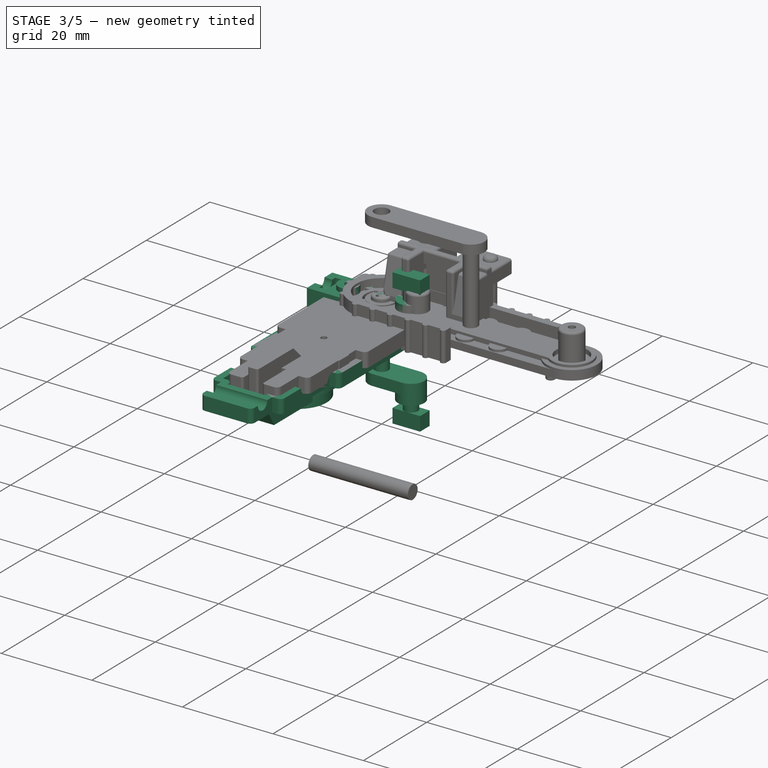
[diagram: stage 3 of 5 — iso view after this stage's code; geometry added in this stage tinted green]
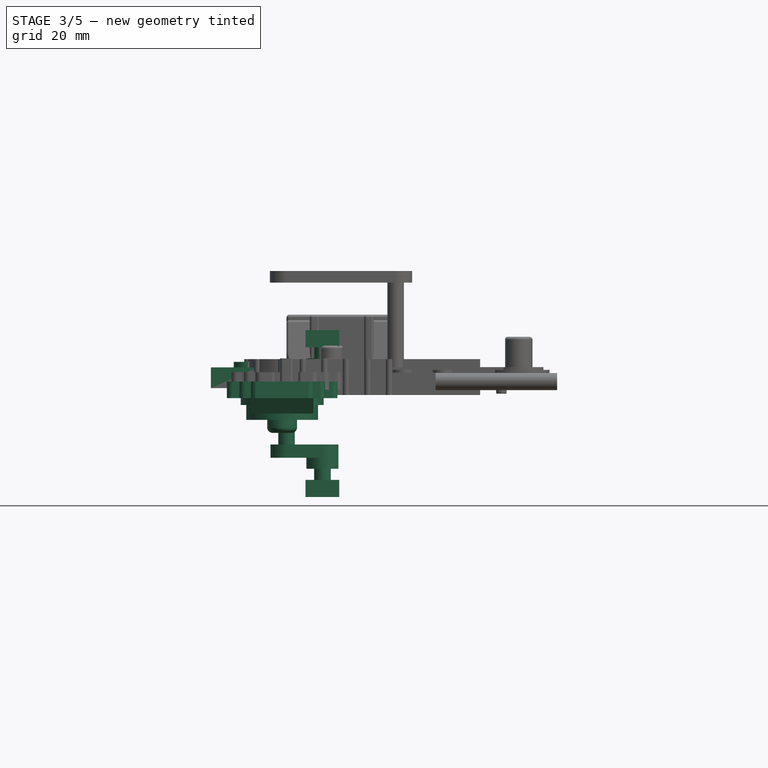
[diagram: stage 3 of 5 — front view after this stage's code; geometry added in this stage tinted green]
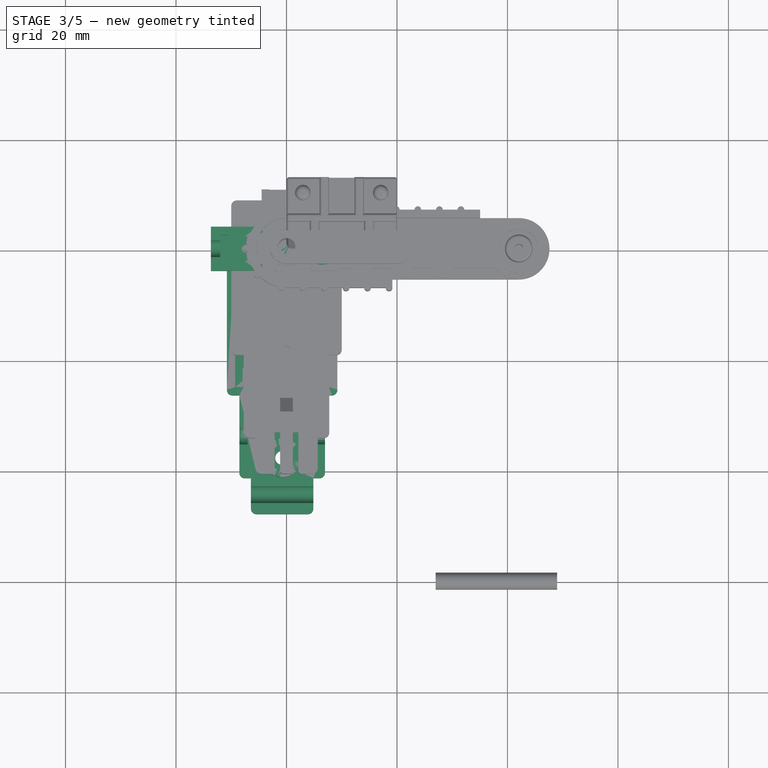
[diagram: stage 3 of 5 — top view after this stage's code; geometry added in this stage tinted green]
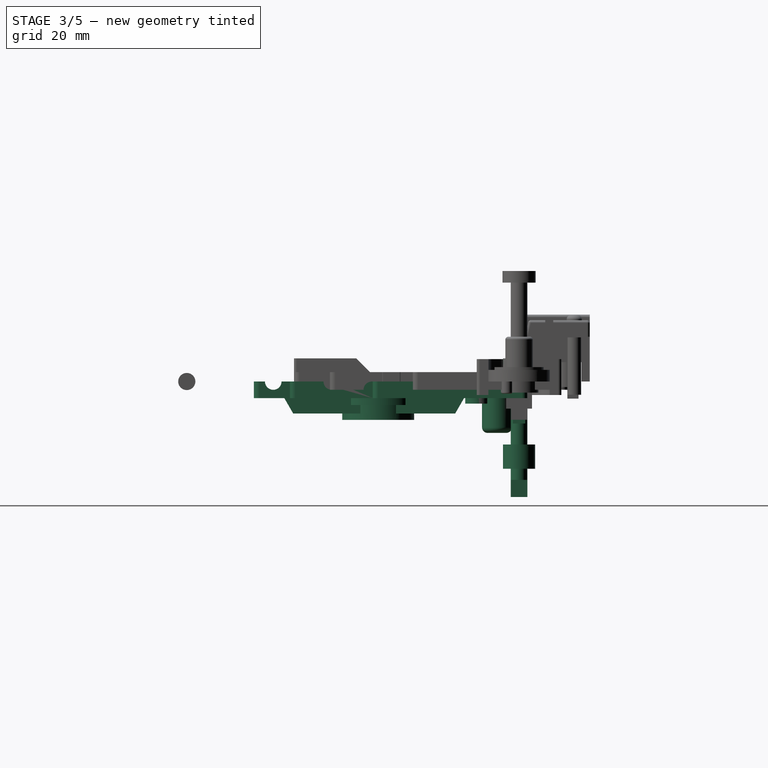
[diagram: stage 3 of 5 — right view after this stage's code; geometry added in this stage tinted green]
FEATURE [Sketcher::SketchObject] Sketch040
  ArcFitTolerance = 1e-06
  AttachmentSupport = -> [XY_Plane005]
  FullyConstrained = true
  MakeInternals = false
  MapMode = 5
  sketch-geometry (10):
    g0: ArcOfCircle CenterX=0 CenterY=0 CenterZ=0 NormalX=0 NormalY=0 NormalZ=1 AngleXU=0 Radius=1.95 StartAngle=1.5708 EndAngle=4.71239
    g1: LineSegment StartX=0 StartY=-1.95 StartZ=0 EndX=4.5 EndY=-1.95 EndZ=0
    g2: LineSegment StartX=4.5 StartY=-1.95 StartZ=0 EndX=4.5 EndY=-4 EndZ=0
    g3: LineSegment StartX=4.5 StartY=-4 StartZ=0 EndX=9.1 EndY=-4 EndZ=0
    g4: LineSegment StartX=9.1 StartY=-4 StartZ=0 EndX=11.5 EndY=-1.6 EndZ=0
    g5: LineSegment StartX=11.5 StartY=-1.6 StartZ=0 EndX=11.5 EndY=1.6 EndZ=0
    g6: LineSegment StartX=11.5 StartY=1.6 StartZ=0 EndX=9.1 EndY=4 EndZ=0
    g7: LineSegment StartX=9.1 StartY=4 StartZ=0 EndX=4.5 EndY=4 EndZ=0
    g8: LineSegment StartX=4.5 StartY=4 StartZ=0 EndX=4.5 EndY=1.95 EndZ=0
    g9: LineSegment StartX=4.5 StartY=1.95 StartZ=0 EndX=0 EndY=1.95 EndZ=0
  constraints (30):
    c: PointOnObject(g0,g-2)
    c: PointOnObject(g0,g-2)
    c: Coincident(g1,g0)
    c: Horizontal(g1)
    c: Coincident(g2,g1)
    c: Vertical(g2)
    c: Coincident(g3,g2)
    c: Horizontal(g3)
    c: Coincident(g4,g3)
    c: Coincident(g5,g4)
    c: Vertical(g5)
    c: Coincident(g6,g5)
    c: Coincident(g7,g6)
    c: Horizontal(g7)
    c: Coincident(g8,g7)
    c: Vertical(g8)
    c: Coincident(g9,g8)
    c: Coincident(g9,g0)
    c: Horizontal(g9)
    c: Coincident(g-1,g0)
    c: Diameter(g0) = 3.9
    c: DistanceY(g2,g7) = 8
    c: DistanceY(g8,g7) = 2.05
    c: DistanceX(g8,g5) = 7
    c: DistanceX(g0,g8) = 4.5
    c: DistanceX(g0,g1) = 4.5
    c: DistanceY(g4,g5) = 3.2
    c: DistanceY(g0,g5) = 1.6
    c: Angle(g6,g5) = 2.35619
    c: Angle(g5,g4) = 2.35619
FEATURE [PartDesign::Pad] Pad015
  Direction = (0,0,1)
  Length = 2.25
  Length2 = 10
  Profile = -> Sketch040
  ReferenceAxis = -> Sketch040 [N_Axis]
  Refine = true
  Suppressed = false
  Type = 0
FEATURE [Sketcher::SketchObject] Sketch041
  ArcFitTolerance = 1e-06
  AttachmentSupport = -> [Pad015]
  FullyConstrained = true
  MakeInternals = false
  MapMode = 5
  Placement = pos=(0,0,2.25) rot=(0,0,1;0rad)
  sketch-geometry (1):
    g0: Circle CenterX=0 CenterY=0 CenterZ=0 NormalX=0 NormalY=0 NormalZ=1 AngleXU=0 Radius=1
  constraints (2):
    c: Coincident(g0,g-1)
    c: Diameter(g0) = 2
FEATURE [PartDesign::Pad] Pad016
  BaseFeature = -> Pad015
  Direction = (0,0,1)
  Length = 1.3
  Length2 = 10
  Profile = -> Sketch041
  ReferenceAxis = -> Sketch041 [N_Axis]
  Refine = true
  Suppressed = false
  Type = 0
FEATURE [Sketcher::SketchObject] Sketch042
  ArcFitTolerance = 1e-06
  AttachmentSupport = -> [Pad016]
  FullyConstrained = true
  MakeInternals = false
  MapMode = 5
  Placement = pos=(0,0,0) rot=(1,0,0;3.14159rad)
  sketch-geometry (1):
    g0: Circle CenterX=0 CenterY=0 CenterZ=0 NormalX=0 NormalY=0 NormalZ=1 AngleXU=0 Radius=1
  constraints (2):
    c: Coincident(g0,g-1)
    c: Diameter(g0) = 2
FEATURE [PartDesign::Pad] Pad017
  BaseFeature = -> Pad016
  Direction = (0,0,-1)
  Length = 1.3
  Length2 = 10
  Profile = -> Sketch042
  ReferenceAxis = -> Sketch042 [N_Axis]
  Refine = true
  Suppressed = false
  Type = 0
FEATURE [Sketcher::SketchObject] Sketch060
  ArcFitTolerance = 1e-06
  AttachmentOffset = pos=(-1,0,-1.2) rot=(0,0,1;0rad)
  AttachmentSupport = -> [XY_Plane007]
  FullyConstrained = true
  MakeInternals = false
  MapMode = 5
  Placement = pos=(-1,0,-1.2) rot=(0,0,1;0rad)
  sketch-geometry (8):
    g0: ArcOfCircle CenterX=0 CenterY=0 CenterZ=0 NormalX=0 NormalY=0 NormalZ=1 AngleXU=0 Radius=3 StartAngle=4.71239 EndAngle=7.85398
    g1: LineSegment StartX=9e-16 StartY=3 StartZ=0 EndX=-3.2 EndY=3 EndZ=0
    g2: LineSegment StartX=-3.2 StartY=3 StartZ=0 EndX=-3.2 EndY=4 EndZ=0
    g3: LineSegment StartX=-3.2 StartY=4 StartZ=0 EndX=-12.7 EndY=4 EndZ=0
    g4: LineSegment StartX=-6e-16 StartY=-3 StartZ=0 EndX=-3.2 EndY=-3 EndZ=0
    g5: LineSegment StartX=-3.2 StartY=-3 StartZ=0 EndX=-3.2 EndY=-4 EndZ=0
    g6: LineSegment StartX=-3.2 StartY=-4 StartZ=0 EndX=-12.7 EndY=-4 EndZ=0
    g7: LineSegment StartX=-12.7 StartY=-4 StartZ=0 EndX=-12.7 EndY=4 EndZ=0
  constraints (23):
    c: Coincident(g0,g-1)
    c: PointOnObject(g0,g-2)
    c: PointOnObject(g0,g-2)
    c: Tangent(g1,g0) = -1.5708
    c: Coincident(g2,g1)
    c: Vertical(g2)
    c: Coincident(g3,g2)
    c: Horizontal(g3)
    c: Coincident(g4,g0)
    c: Horizontal(g4)
    c: Coincident(g5,g4)
    c: Vertical(g5)
    c: Coincident(g6,g5)
    c: Horizontal(g6)
    c: Coincident(g7,g6)
    c: Coincident(g7,g3)
    c: Vertical(g7)
    c: Diameter(g0) = 6
    c: DistanceY(g2,g2) = 1
    c: DistanceY(g5,g5) = 1
    c: DistanceX(g1,g1) = 3.2
    c: DistanceX(g4,g4) = 3.2
    c: DistanceX(g3,g3) = 9.5
FEATURE [PartDesign::Pad] Pad031
  Direction = (0,0,1)
  Length = 3.75
  Length2 = 10
  Profile = -> Sketch060
  ReferenceAxis = -> Sketch060 [N_Axis]
  Refine = true
  Suppressed = false
  Type = 0
FEATURE [Sketcher::SketchObject] Sketch061
  ArcFitTolerance = 1e-06
  AttachmentSupport = -> [Pad031]
  ExternalGeometry = -> [Pad031]
  FullyConstrained = true
  MakeInternals = false
  MapMode = 5
  Placement = pos=(0,0,2.55) rot=(0,0,1;0rad)
  sketch-geometry (1):
    g0: Circle CenterX=-1 CenterY=0 CenterZ=0 NormalX=0 NormalY=0 NormalZ=1 AngleXU=0 Radius=1.5
  constraints (3):
    c: PointOnObject(g0,g-1)
    c: Diameter(g0) = 3
    c: DistanceX(g0,g-3) = 0
FEATURE [PartDesign::Pocket] Pocket029
  BaseFeature = -> Pad031
  Direction = (0,0,-1)
  Length = 3.75
  Length2 = 5
  Profile = -> Sketch061
  ReferenceAxis = -> Sketch061 [N_Axis]
  Refine = true
  Suppressed = false
  Type = 0
FEATURE [PartDesign::Plane] DatumPlane
  AttachmentSupport = -> [Pocket029]
  Length = 60
  MapMode = 5
  Placement = pos=(0,0,2.55) rot=(0,0,1;0rad)
  ResizeMode = 0
  Width = 60
FEATURE [Sketcher::SketchObject] Sketch062
  ArcFitTolerance = 1e-06
  AttachmentSupport = -> [DatumPlane]
  FullyConstrained = true
  MakeInternals = false
  MapMode = 5
  Placement = pos=(0,0,2.55) rot=(0,0,1;0rad)
  sketch-geometry (8):
    g0: ArcOfCircle CenterX=-1 CenterY=0 CenterZ=0 NormalX=0 NormalY=0 NormalZ=1 AngleXU=0 Radius=2 StartAngle=4.71239 EndAngle=7.85398
    g1: LineSegment StartX=-12.4 StartY=-2.5 StartZ=0 EndX=-12.4 EndY=2.5 EndZ=0
    g2: LineSegment StartX=-1 StartY=2 StartZ=0 EndX=-10.2 EndY=2 EndZ=0
    g3: LineSegment StartX=-10.2 StartY=2 StartZ=0 EndX=-10.2 EndY=2.5 EndZ=0
    g4: LineSegment StartX=-10.2 StartY=2.5 StartZ=0 EndX=-12.4 EndY=2.5 EndZ=0
    g5: LineSegment StartX=-1 StartY=-2 StartZ=0 EndX=-10.2 EndY=-2 EndZ=0
    g6: LineSegment StartX=-10.2 StartY=-2 StartZ=0 EndX=-10.2 EndY=-2.5 EndZ=0
    g7: LineSegment StartX=-10.2 StartY=-2.5 StartZ=0 EndX=-12.4 EndY=-2.5 EndZ=0
  constraints (23):
    c: Coincident(g0,g-3)
    c: Vertical(g1)
    c: Diameter(g0) = 4
    c: DistanceX(g-4,g1) = 1.3
    c: DistanceY(g0,g0) = 4
    c: Tangent(g2,g0) = -1.5708
    c: Horizontal(g2)
    c: Coincident(g3,g2)
    c: Vertical(g3)
    c: Horizontal(g4)
    c: Coincident(g5,g0)
    c: Horizontal(g5)
    c: Coincident(g6,g5)
    c: Vertical(g6)
    c: Coincident(g7,g6)
    c: Horizontal(g7)
    c: DistanceY(g3,g3) = 0.5
    c: DistanceY(g6,g6) = 0.5
    c: DistanceX(g4,g4) = 2.2
    c: DistanceX(g7,g7) = 2.2
    c: Coincident(g3,g4)
    c: Coincident(g1,g4)
    c: Coincident(g1,g7)
FEATURE [PartDesign::Pocket] Pocket035
  BaseFeature = -> Pocket029
  Direction = (0,0,-1)
  Length = 2
  Length2 = 5
  Profile = -> Sketch062
  ReferenceAxis = -> Sketch062 [N_Axis]
  Refine = true
  Suppressed = false
  Type = 0
FEATURE [PartDesign::Plane] DatumPlane001
  AttachmentSupport = -> [Pocket035]
  Length = 60
  MapMode = 5
  Placement = pos=(-13.7,0,0) rot=(0.57735,-0.57735,-0.57735;2.0944rad)
  ResizeMode = 0
  Width = 60
FEATURE [Sketcher::SketchObject] Sketch063
  ArcFitTolerance = 1e-06
  AttachmentSupport = -> [DatumPlane001]
  FullyConstrained = false
  MakeInternals = false
  MapMode = 5
  Placement = pos=(-13.7,0,0) rot=(0.57735,-0.57735,-0.57735;2.0944rad)
  sketch-geometry (1):
    g0: Circle CenterX=0 CenterY=2.51194 CenterZ=0 NormalX=0 NormalY=0 NormalZ=1 AngleXU=0 Radius=1.5
  constraints (2):
    c: PointOnObject(g0,g-2)
    c: Diameter(g0) = 3
FEATURE [PartDesign::Pocket] Pocket036
  BaseFeature = -> Pocket035
  Direction = (1,0,0)
  Length = 1.3
  Length2 = 5
  Profile = -> Sketch063
  ReferenceAxis = -> Sketch063 [N_Axis]
  Refine = true
  Suppressed = false
  Type = 0
FEATURE [PartDesign::Plane] DatumPlane002
  AttachmentSupport = -> [Pocket036]
  Length = 60
  MapMode = 5
  Placement = pos=(0,0,0.55) rot=(0,0,1;0rad)
  ResizeMode = 0
  Width = 60
FEATURE [Sketcher::SketchObject] Sketch064
  ArcFitTolerance = 1e-06
  AttachmentSupport = -> [DatumPlane002]
  FullyConstrained = true
  MakeInternals = false
  MapMode = 5
  Placement = pos=(0,0,0.55) rot=(0,0,1;0rad)
  sketch-geometry (1):
    g0: Circle CenterX=-7.35 CenterY=0 CenterZ=0 NormalX=0 NormalY=0 NormalZ=1 AngleXU=0 Radius=2.2
  constraints (3):
    c: PointOnObject(g0,g-1)
    c: Diameter(g0) = 4.4
    c: DistanceX(g-3,g0) = 6.35
FEATURE [Sketcher::SketchObject] Sketch065
  ArcFitTolerance = 1e-06
  AttachmentSupport = -> [DatumPlane002]
  FullyConstrained = true
  MakeInternals = false
  MapMode = 5
  Placement = pos=(0,0,0.55) rot=(0,0,1;0rad)
  sketch-geometry (4):
    g0: LineSegment StartX=-10.2 StartY=2 StartZ=0 EndX=-10.2 EndY=-2 EndZ=0
    g1: LineSegment StartX=-10.2 StartY=-2 StartZ=0 EndX=-7.4 EndY=-2 EndZ=0
    g2: LineSegment StartX=-7.4 StartY=-2 StartZ=0 EndX=-7.4 EndY=2 EndZ=0
    g3: LineSegment StartX=-7.4 StartY=2 StartZ=0 EndX=-10.2 EndY=2 EndZ=0
  constraints (12):
    c: Coincident(g0,g1)
    c: Coincident(g1,g2)
    c: Coincident(g2,g3)
    c: Coincident(g3,g0)
    c: Vertical(g0)
    c: Vertical(g2)
    c: Horizontal(g1)
    c: Horizontal(g3)
    c: DistanceX(g-3,g0) = 2.2
    c: PointOnObject(g0,g-3)
    c: PointOnObject(g0,g-5)
    c: DistanceX(g3,g3) = 2.8
FEATURE [PartDesign::Pad] Pad037
  BaseFeature = -> Pocket036
  Direction = (0,0,1)
  Length = 3
  Length2 = 10
  Profile = -> Sketch064
  ReferenceAxis = -> Sketch064 [N_Axis]
  Refine = true
  Suppressed = false
  Type = 0
FEATURE [PartDesign::Pad] Pad038
  BaseFeature = -> Pad037
  Direction = (0,0,1)
  Length = 2
  Length2 = 10
  Profile = -> Sketch065
  ReferenceAxis = -> Sketch065 [N_Axis]
  Refine = true
  Suppressed = false
  Type = 0
FEATURE [PartDesign::Plane] DatumPlane003
  AttachmentSupport = -> [Pad038]
  Length = 60
  MapMode = 5
  Placement = pos=(0,0,3.55) rot=(0,0,1;0rad)
  ResizeMode = 0
  Width = 60
FEATURE [Sketcher::SketchObject] Sketch066
  ArcFitTolerance = 1e-06
  AttachmentSupport = -> [DatumPlane003]
  FullyConstrained = true
  MakeInternals = false
  MapMode = 5
  Placement = pos=(0,0,3.55) rot=(0,0,1;0rad)
  sketch-geometry (1):
    g0: Circle CenterX=-7.35 CenterY=0 CenterZ=0 NormalX=0 NormalY=0 NormalZ=1 AngleXU=0 Radius=0.75
  constraints (2):
    c: Coincident(g0,g-3)
    c: Diameter(g0) = 1.5
FEATURE [PartDesign::Pocket] Pocket037
  BaseFeature = -> Pad038
  Direction = (0,0,-1)
  Length = 3
  Length2 = 5
  Profile = -> Sketch066
  ReferenceAxis = -> Sketch066 [N_Axis]
  Refine = true
  Suppressed = false
  Type = 0
FEATURE [PartDesign::Fillet] Fillet022
  Base = -> Pocket037 [Edge47,Edge65]
  BaseFeature = -> Pocket037
  Radius = 0.99
  Refine = true
  SupportTransform = false
  Suppressed = false
  UseAllEdges = false
FEATURE [PartDesign::Plane] DatumPlane006
  AttachmentSupport = -> [Fillet022]
  Length = 60
  MapMode = 5
  Placement = pos=(0,0,0.55) rot=(0,0,1;0rad)
  ResizeMode = 0
  Width = 60
FEATURE [Sketcher::SketchObject] Sketch073
  ArcFitTolerance = 1e-06
  AttachmentSupport = -> [DatumPlane006]
  ExternalGeometry = -> [Fillet022]
  FullyConstrained = true
  MakeInternals = false
  MapMode = 5
  Placement = pos=(0,0,0.55) rot=(0,0,1;0rad)
  sketch-geometry (4):
    g0: LineSegment StartX=-12.4 StartY=2.5 StartZ=0 EndX=-12.4 EndY=-2.5 EndZ=0
    g1: LineSegment StartX=-12.4 StartY=-2.5 StartZ=0 EndX=-10.2 EndY=-2.5 EndZ=0
    g2: LineSegment StartX=-10.2 StartY=-2.5 StartZ=0 EndX=-10.2 EndY=2.5 EndZ=0
    g3: LineSegment StartX=-10.2 StartY=2.5 StartZ=0 EndX=-12.4 EndY=2.5 EndZ=0
  constraints (10):
    c: Coincident(g0,g1)
    c: Coincident(g1,g2)
    c: Coincident(g2,g3)
    c: Coincident(g3,g0)
    c: Vertical(g0)
    c: Vertical(g2)
    c: Horizontal(g1)
    c: Horizontal(g3)
    c: Coincident(g0,g-3)
    c: Coincident(g1,g-4)
FEATURE [PartDesign::Pocket] Pocket040
  BaseFeature = -> Fillet022
  Direction = (0,0,-1)
  Length = 0.5
  Length2 = 5
  Profile = -> Sketch073
  ReferenceAxis = -> Sketch073 [N_Axis]
  Refine = true
  Suppressed = false
  Type = 0
FEATURE [Sketcher::SketchObject] Sketch203
  ArcFitTolerance = 1e-06
  AttachmentSupport = -> [XY_Plane019]
  FullyConstrained = true
  MakeInternals = false
  MapMode = 5
  sketch-geometry (4):
    g0: ArcOfCircle CenterX=0 CenterY=0 CenterZ=0 NormalX=0 NormalY=0 NormalZ=1 AngleXU=0 Radius=2.9 StartAngle=1.5708 EndAngle=4.71239
    g1: ArcOfCircle CenterX=6.5 CenterY=6.09966e-11 CenterZ=0 NormalX=0 NormalY=0 NormalZ=1 AngleXU=0 Radius=2.9 StartAngle=4.71239 EndAngle=7.85398
    g2: LineSegment StartX=-2.53925e-11 StartY=2.9 StartZ=0 EndX=6.5 EndY=2.9 EndZ=0
    g3: LineSegment StartX=4.6e-15 StartY=-2.9 StartZ=0 EndX=6.5 EndY=-2.9 EndZ=0
  constraints (9):
    c: Tangent(g0,g2) = 1.5708
    c: Tangent(g0,g3) = -1.5708
    c: Tangent(g1,g2) = 1.5708
    c: Tangent(g1,g3) = -1.5708
    c: Equal(g0,g1)
    c: Horizontal(g3)
    c: Coincident(g0,g-1)
    c: Diameter(g0) = 5.8
    c: DistanceX(g0,g1) = 6.5
FEATURE [PartDesign::Pad] Pad111
  Direction = (0,0,1)
  Length = 2.2
  Length2 = 10
  Profile = -> Sketch203
  ReferenceAxis = -> Sketch203 [N_Axis]
  Refine = true
  Suppressed = false
  Type = 0
FEATURE [Sketcher::SketchObject] Sketch204
  ArcFitTolerance = 1e-06
  AttachmentSupport = -> [Pad111]
  ExternalGeometry = -> [Pad111]
  FullyConstrained = true
  MakeInternals = false
  MapMode = 5
  Placement = pos=(0,0,2.2) rot=(0,0,1;0rad)
  sketch-geometry (1):
    g0: Circle CenterX=6.5 CenterY=0 CenterZ=0 NormalX=0 NormalY=0 NormalZ=1 AngleXU=0 Radius=2.9
  constraints (2):
    c: Coincident(g0,g-3)
    c: Equal(g0,g-3)
FEATURE [PartDesign::Pad] Pad112
  BaseFeature = -> Pad111
  Direction = (0,0,1)
  Length = 2
  Length2 = 10
  Profile = -> Sketch204
  ReferenceAxis = -> Sketch204 [N_Axis]
  Refine = true
  Suppressed = false
  Type = 0
FEATURE [Sketcher::SketchObject] Sketch205
  ArcFitTolerance = 1e-06
  AttachmentSupport = -> [Pad112]
  ExternalGeometry = -> [Pad112]
  FullyConstrained = true
  MakeInternals = false
  MapMode = 5
  Placement = pos=(0,0,4.2) rot=(0,0,1;0rad)
  sketch-geometry (1):
    g0: Circle CenterX=6.5 CenterY=0 CenterZ=0 NormalX=0 NormalY=0 NormalZ=1 AngleXU=0 Radius=1.5
  constraints (2):
    c: Coincident(g0,g-3)
    c: Diameter(g0) = 3
FEATURE [PartDesign::Pad] Pad113
  BaseFeature = -> Pad112
  Direction = (0,0,1)
  Length = 2
  Length2 = 10
  Profile = -> Sketch205
  ReferenceAxis = -> Sketch205 [N_Axis]
  Refine = true
  Suppressed = false
  Type = 0
FEATURE [Sketcher::SketchObject] Sketch206
  ArcFitTolerance = 1e-06
  AttachmentSupport = -> [Pad113]
  ExternalGeometry = -> [Pad113]
  FullyConstrained = true
  MakeInternals = false
  MapMode = 5
  Placement = pos=(0,0,6.2) rot=(0,0,1;0rad)
  sketch-geometry (4):
    g0: LineSegment StartX=9.55 StartY=1.5 StartZ=0 EndX=3.45 EndY=1.5 EndZ=0
    g1: LineSegment StartX=3.45 StartY=1.5 StartZ=0 EndX=3.45 EndY=-1.5 EndZ=0
    g2: LineSegment StartX=3.45 StartY=-1.5 StartZ=0 EndX=9.55 EndY=-1.5 EndZ=0
    g3: LineSegment StartX=9.55 StartY=-1.5 StartZ=0 EndX=9.55 EndY=1.5 EndZ=0
  constraints (12):
    c: Coincident(g0,g1)
    c: Coincident(g1,g2)
    c: Coincident(g2,g3)
    c: Coincident(g3,g0)
    c: Horizontal(g0)
    c: Horizontal(g2)
    c: Vertical(g1)
    c: Vertical(g3)
    c: DistanceY(g-3,g0) = 1.5
    c: DistanceY(g2,g-3) = 1.5
    c: DistanceX(g0,g-3) = 3.05
    c: DistanceX(g-3,g2) = 3.05
FEATURE [PartDesign::Pad] Pad114
  BaseFeature = -> Pad113
  Direction = (0,0,1)
  Length = 3.1
  Length2 = 10
  Profile = -> Sketch206
  ReferenceAxis = -> Sketch206 [N_Axis]
  Refine = true
  Suppressed = false
  Type = 0
FEATURE [Sketcher::SketchObject] Sketch207
  ArcFitTolerance = 1e-06
  AttachmentSupport = -> [Pad114]
  FullyConstrained = true
  MakeInternals = false
  MapMode = 5
  Placement = pos=(0,0,0) rot=(1,0,0;3.14159rad)
  sketch-geometry (1):
    g0: Circle CenterX=0 CenterY=0 CenterZ=0 NormalX=0 NormalY=0 NormalZ=1 AngleXU=0 Radius=1.5
  constraints (2):
    c: Coincident(g0,g-1)
    c: Diameter(g0) = 3
FEATURE [PartDesign::Pad] Pad115
  BaseFeature = -> Pad114
  Direction = (0,0,-1)
  Length = 4
  Length2 = 10
  Profile = -> Sketch207
  ReferenceAxis = -> Sketch207 [N_Axis]
  Refine = true
  Suppressed = false
  Type = 0
FEATURE [Sketcher::SketchObject] Sketch208
  ArcFitTolerance = 1e-06
  AttachmentSupport = -> [Pad115]
  ExternalGeometry = -> [Pad115]
  FullyConstrained = true
  MakeInternals = false
  MapMode = 5
  Placement = pos=(0,0,-4) rot=(1,0,0;3.14159rad)
  sketch-geometry (4):
    g0: ArcOfCircle CenterX=0 CenterY=0 CenterZ=0 NormalX=0 NormalY=0 NormalZ=1 AngleXU=0 Radius=1.5 StartAngle=0.841069 EndAngle=2.30052
    g1: ArcOfCircle CenterX=0 CenterY=0 CenterZ=0 NormalX=0 NormalY=0 NormalZ=1 AngleXU=0 Radius=1.5 StartAngle=3.98266 EndAngle=5.44212
    g2: LineSegment StartX=-1 StartY=1.11803 StartZ=0 EndX=-1 EndY=-1.11803 EndZ=0
    g3: LineSegment StartX=1 StartY=1.11803 StartZ=0 EndX=1 EndY=-1.11803 EndZ=0
  constraints (12):
    c: PointOnObject(g0,g-3)
    c: PointOnObject(g1,g-3)
    c: Coincident(g2,g0)
    c: Coincident(g2,g1)
    c: Coincident(g3,g0)
    c: Coincident(g3,g1)
    c: Vertical(g3)
    c: Vertical(g2)
    c: DistanceX(g0,g-1) = 1
    c: Coincident(g1,g-1)
    c: Coincident(g0,g1)
    c: DistanceX(g0,g0) = 1
FEATURE [PartDesign::Pad] Pad116
  BaseFeature = -> Pad115
  Direction = (0,0,-1)
  Length = 3.6
  Length2 = 10
  Profile = -> Sketch208
  ReferenceAxis = -> Sketch208 [N_Axis]
  Refine = true
  Suppressed = false
  Type = 0
FEATURE [Sketcher::SketchObject] Sketch209
  ArcFitTolerance = 1e-06
  AttachmentSupport = -> [Pad116]
  FullyConstrained = true
  MakeInternals = false
  MapMode = 5
  Placement = pos=(0,0,-7.6) rot=(1,0,0;3.14159rad)
  sketch-geometry (1):
    g0: Circle CenterX=0 CenterY=0 CenterZ=0 NormalX=0 NormalY=0 NormalZ=1 AngleXU=0 Radius=1.5
  constraints (2):
    c: Coincident(g0,g-1)
    c: Diameter(g0) = 3
FEATURE [PartDesign::Pad] Pad117
  BaseFeature = -> Pad116
  Direction = (0,0,-1)
  Length = 4
  Length2 = 10
  Profile = -> Sketch209
  ReferenceAxis = -> Sketch209 [N_Axis]
  Refine = true
  Suppressed = false
  Type = 0
FEATURE [Sketcher::SketchObject] Sketch210
  ArcFitTolerance = 1e-06
  AttachmentSupport = -> [Pad117]
  ExternalGeometry = -> [Pad117]
  FullyConstrained = true
  MakeInternals = false
  MapMode = 5
  Placement = pos=(0,0,-11.6) rot=(1,0,0;3.14159rad)
  sketch-geometry (4):
    g0: ArcOfCircle CenterX=0 CenterY=0 CenterZ=0 NormalX=0 NormalY=0 NormalZ=1 AngleXU=0 Radius=2.9 StartAngle=1.5708 EndAngle=4.71239
    g1: ArcOfCircle CenterX=6.5 CenterY=-6.09966e-11 CenterZ=0 NormalX=0 NormalY=0 NormalZ=1 AngleXU=0 Radius=2.9 StartAngle=4.71239 EndAngle=7.85398
    g2: LineSegment StartX=4.6e-15 StartY=2.9 StartZ=0 EndX=6.5 EndY=2.9 EndZ=0
    g3: LineSegment StartX=-5.44383e-11 StartY=-2.9 StartZ=0 EndX=6.5 EndY=-2.9 EndZ=0
  constraints (7):
    c: Tangent(g0,g2) = 1.5708
    c: Tangent(g0,g3) = -1.5708
    c: Tangent(g1,g2) = 1.5708
    c: Tangent(g1,g3) = -1.5708
    c: Coincident(g1,g-7)
    c: Coincident(g0,g-1)
    c: Coincident(g0,g-4)
FEATURE [PartDesign::Pad] Pad118
  BaseFeature = -> Pad117
  Direction = (0,0,-1)
  Length = 2.2
  Length2 = 10
  Profile = -> Sketch210
  ReferenceAxis = -> Sketch210 [N_Axis]
  Refine = true
  Suppressed = false
  Type = 0
FEATURE [Sketcher::SketchObject] Sketch211
  ArcFitTolerance = 1e-06
  AttachmentSupport = -> [Pad118]
  ExternalGeometry = -> [Pad118]
  FullyConstrained = true
  MakeInternals = false
  MapMode = 5
  Placement = pos=(0,0,-13.8) rot=(1,0,0;3.14159rad)
  sketch-geometry (1):
    g0: Circle CenterX=6.5 CenterY=0 CenterZ=0 NormalX=0 NormalY=0 NormalZ=1 AngleXU=0 Radius=2.9
  constraints (2):
    c: Coincident(g0,g-3)
    c: Equal(g0,g-3)
FEATURE [PartDesign::Pad] Pad119
  BaseFeature = -> Pad118
  Direction = (0,0,-1)
  Length = 2
  Length2 = 10
  Profile = -> Sketch211
  ReferenceAxis = -> Sketch211 [N_Axis]
  Refine = true
  Suppressed = false
  Type = 0
FEATURE [Sketcher::SketchObject] Sketch212
  ArcFitTolerance = 1e-06
  AttachmentSupport = -> [Pad119]
  ExternalGeometry = -> [Pad119]
  FullyConstrained = true
  MakeInternals = false
  MapMode = 5
  Placement = pos=(0,0,-15.8) rot=(1,0,0;3.14159rad)
  sketch-geometry (1):
    g0: Circle CenterX=6.5 CenterY=0 CenterZ=0 NormalX=0 NormalY=0 NormalZ=1 AngleXU=0 Radius=1.5
  constraints (2):
    c: Coincident(g0,g-3)
    c: Diameter(g0) = 3
FEATURE [PartDesign::Pad] Pad120
  BaseFeature = -> Pad119
  Direction = (0,0,-1)
  Length = 2
  Length2 = 10
  Profile = -> Sketch212
  ReferenceAxis = -> Sketch212 [N_Axis]
  Refine = true
  Suppressed = false
  Type = 0
FEATURE [Sketcher::SketchObject] Sketch213
  ArcFitTolerance = 1e-06
  AttachmentSupport = -> [Pad120]
  ExternalGeometry = -> [Pad120]
  FullyConstrained = true
  MakeInternals = false
  MapMode = 5
  Placement = pos=(0,0,-17.8) rot=(1,0,0;3.14159rad)
  sketch-geometry (4):
    g0: LineSegment StartX=3.45 StartY=1.5 StartZ=0 EndX=3.45 EndY=-1.5 EndZ=0
    g1: LineSegment StartX=3.45 StartY=-1.5 StartZ=0 EndX=9.55 EndY=-1.5 EndZ=0
    g2: LineSegment StartX=9.55 StartY=-1.5 StartZ=0 EndX=9.55 EndY=1.5 EndZ=0
    g3: LineSegment StartX=9.55 StartY=1.5 StartZ=0 EndX=3.45 EndY=1.5 EndZ=0
  constraints (12):
    c: Coincident(g0,g1)
    c: Coincident(g1,g2)
    c: Coincident(g2,g3)
    c: Coincident(g3,g0)
    c: Vertical(g0)
    c: Vertical(g2)
    c: Horizontal(g1)
    c: Horizontal(g3)
    c: DistanceX(g0,g-3) = 3.05
    c: DistanceX(g-3,g2) = 3.05
    c: DistanceY(g-3,g0) = 1.5
    c: DistanceY(g1,g-3) = 1.5
FEATURE [PartDesign::Pad] Pad121
  BaseFeature = -> Pad120
  Direction = (0,0,-1)
  Length = 3.1
  Length2 = 10
  Profile = -> Sketch213
  ReferenceAxis = -> Sketch213 [N_Axis]
  Refine = true
  Suppressed = false
  Type = 0
FEATURE [PartDesign::Body] Body021  label="Scoop"
  AllowCompound = false
  Group = -> [Sketch248,Pad144,Sketch249,Pad145,Pocket111,Pad146,Pocket112,Sketch250,Pocket113,Sketch251,Pocket114,Pocket115,Sketch252,Pocket116,Sketch253,Pad147,Pocket117,Pad148,Fillet047]
  Origin = -> Origin023
  Placement = pos=(20.05,-79.35,-11.45) rot=(0.58,0.58,0.58;2.0944rad)
  Tip = -> Fillet047
FEATURE [Sketcher::SketchObject] Sketch254
  ArcFitTolerance = 1e-06
  AttachmentSupport = -> [XY_Plane024]
  FullyConstrained = false
  MakeInternals = false
  MapMode = 5
  sketch-geometry (37):
    g0: LineSegment StartX=-6.44 StartY=-43 StartZ=0 EndX=-6.44 EndY=-41.5 EndZ=0
    g1: LineSegment StartX=-6.44 StartY=-41.5 StartZ=0 EndX=-7.54 EndY=-41.5 EndZ=0
    g2: ArcOfCircle CenterX=-7.54 CenterY=-40.5 CenterZ=0 NormalX=0 NormalY=0 NormalZ=1 AngleXU=0 Radius=1 StartAngle=3.14159 EndAngle=4.71239
    g3: ArcOfCircle CenterX=-5.94 CenterY=-41 CenterZ=0 NormalX=0 NormalY=0 NormalZ=1 AngleXU=0 Radius=1 StartAngle=3e-16 EndAngle=1.5708
    g4: LineSegment StartX=-6.44 StartY=-43 StartZ=0 EndX=-6.44 EndY=-47 EndZ=0
    g5: ArcOfCircle CenterX=-5.44 CenterY=-47 CenterZ=0 NormalX=0 NormalY=0 NormalZ=1 AngleXU=0 Radius=1 StartAngle=3.14159 EndAngle=4.71239
    g6: ArcOfCircle CenterX=3.86 CenterY=-47 CenterZ=0 NormalX=0 NormalY=0 NormalZ=1 AngleXU=0 Radius=1 StartAngle=4.71239 EndAngle=6.28319
    g7: ArcOfCircle CenterX=5.96 CenterY=-40.5 CenterZ=0 NormalX=0 NormalY=0 NormalZ=1 AngleXU=0 Radius=1 StartAngle=4.71239 EndAngle=6.28319
    g8: ArcOfCircle CenterX=4.36 CenterY=-41 CenterZ=0 NormalX=0 NormalY=0 NormalZ=1 AngleXU=0 Radius=1 StartAngle=1.5708 EndAngle=3.14159
    g9: ArcOfCircle CenterX=6.46 CenterY=-26 CenterZ=0 NormalX=0 NormalY=0 NormalZ=1 AngleXU=0 Radius=1 StartAngle=1.5708 EndAngle=3.14159
    g10: ArcOfCircle CenterX=8.21 CenterY=-25.5 CenterZ=0 NormalX=0 NormalY=0 NormalZ=1 AngleXU=0 Radius=1 StartAngle=4.71239 EndAngle=6.28319
    g11: ArcOfCircle CenterX=8.21 CenterY=0.5 CenterZ=0 NormalX=0 NormalY=0 NormalZ=1 AngleXU=0 Radius=1 StartAngle=6.39466e-10 EndAngle=1.5708
    g12: ArcOfCircle CenterX=-9.79 CenterY=0.5 CenterZ=0 NormalX=0 NormalY=0 NormalZ=1 AngleXU=0 Radius=1 StartAngle=1.5708 EndAngle=3.14159
    g13: ArcOfCircle CenterX=-9.79 CenterY=-25.5 CenterZ=0 NormalX=0 NormalY=0 NormalZ=1 AngleXU=0 Radius=1 StartAngle=3.14159 EndAngle=4.71239
    g14: ArcOfCircle CenterX=-8.04 CenterY=-26 CenterZ=0 NormalX=0 NormalY=0 NormalZ=1 AngleXU=0 Radius=1 StartAngle=-9e-16 EndAngle=1.5708
    g15: LineSegment StartX=-4.94 StartY=-41 StartZ=0 EndX=-4.94 EndY=-41.5 EndZ=0
    g16: LineSegment StartX=-4.94 StartY=-41.5 StartZ=0 EndX=3.36 EndY=-41.5 EndZ=0
    g17: LineSegment StartX=3.36 StartY=-41.5 StartZ=0 EndX=3.36 EndY=-41 EndZ=0
    g18: LineSegment StartX=5.96 StartY=-41.5 StartZ=0 EndX=4.86 EndY=-41.5 EndZ=0
    g19: LineSegment StartX=4.86 StartY=-41.5 StartZ=0 EndX=4.86 EndY=-47 EndZ=0
    g20: LineSegment StartX=3.86 StartY=-48 StartZ=0 EndX=-5.44 EndY=-48 EndZ=0
    g21: LineSegment StartX=4.36 StartY=-40 StartZ=0 EndX=5.46 EndY=-40 EndZ=0
    g22: LineSegment StartX=6.96 StartY=-40.5 StartZ=0 EndX=6.96 EndY=-26.5 EndZ=0
    g23: LineSegment StartX=8.21 StartY=-26.5 StartZ=0 EndX=6.96 EndY=-26.5 EndZ=0
    g24: LineSegment StartX=5.46 StartY=-26 StartZ=0 EndX=5.46 EndY=-40 EndZ=0
    g25: LineSegment StartX=6.46 StartY=-25 StartZ=0 EndX=7.71 EndY=-25 EndZ=0
    g26: LineSegment StartX=7.71 StartY=-25 StartZ=0 EndX=7.71 EndY=2.80835e-10 EndZ=0
    g27: LineSegment StartX=9.21 StartY=0.5 StartZ=0 EndX=9.21 EndY=-25.5 EndZ=0
    g28: LineSegment StartX=8.21 StartY=1.5 StartZ=0 EndX=-9.79 EndY=1.5 EndZ=0
    g29: LineSegment StartX=7.71 StartY=2.80835e-10 StartZ=0 EndX=-9.29 EndY=2.80835e-10 EndZ=0
    g30: LineSegment StartX=-9.29 StartY=2.80835e-10 StartZ=0 EndX=-9.29 EndY=-25 EndZ=0
    g31: LineSegment StartX=-8.04 StartY=-25 StartZ=0 EndX=-9.29 EndY=-25 EndZ=0
    g32: LineSegment StartX=-10.79 StartY=0.5 StartZ=0 EndX=-10.79 EndY=-25.5 EndZ=0
    g33: LineSegment StartX=-9.79 StartY=-26.5 StartZ=0 EndX=-8.54 EndY=-26.5 EndZ=0
    g34: LineSegment StartX=-7.04 StartY=-26 StartZ=0 EndX=-7.04 EndY=-40 EndZ=0
    g35: LineSegment StartX=-5.94 StartY=-40 StartZ=0 EndX=-7.04 EndY=-40 EndZ=0
    g36: LineSegment StartX=-8.54 StartY=-40.5 StartZ=0 EndX=-8.54 EndY=-26.5 EndZ=0
  constraints (74):
    c: Coincident(g0,g-10)
    c: Coincident(g0,g-11)
    c: Coincident(g1,g0)
    c: Coincident(g1,g-12)
    c: Coincident(g2,g1)
    c: Coincident(g2,g-13)
    c: Tangent(g2,g-12)
    c: Coincident(g3,g-7)
    c: Tangent(g3,g-6) = -1.5708
    c: Coincident(g4,g0)
    c: Coincident(g4,g-53)
    c: Coincident(g5,g4)
    c: Tangent(g5,g-52) = -1.5708
    c: Coincident(g6,g-50)
    c: Tangent(g6,g-49) = -1.5708
    c: Tangent(g7,g-19) = -1.5708
    c: Coincident(g7,g-23)
    c: Tangent(g8,g-21) = -1.5708
    c: Coincident(g8,g-21)
    c: Coincident(g9,g-30)
    c: Tangent(g9,g-29) = -1.5708
    c: Tangent(g10,g-28) = -1.5708
    c: Coincident(g10,g-32)
    c: Tangent(g11,g-33) = -1.5708
    c: Coincident(g11,g-33)
    c: Tangent(g12,g-37) = -1.5708
    c: Coincident(g12,g-38)
    c: Tangent(g13,g-42) = -1.5708
    c: Coincident(g13,g-43)
    c: Tangent(g14,g-40) = -1.5708
    c: Coincident(g14,g-41)
    c: Coincident(g15,g3)
    c: Coincident(g15,g-8)
    c: Coincident(g16,g15)
    c: Coincident(g16,g-15)
    c: Coincident(g17,g16)
    c: Coincident(g17,g8)
    c: Coincident(g18,g7)
    c: Coincident(g18,g-18)
    c: Coincident(g19,g18)
    c: Coincident(g19,g6)
    c: Coincident(g20,g6)
    c: Coincident(g20,g5)
    c: Coincident(g21,g8)
    c: Coincident(g21,g-22)
    c: Coincident(g22,g7)
    c: Coincident(g22,g-27)
    c: Coincident(g23,g10)
    c: Coincident(g23,g22)
    c: Coincident(g24,g9)
    c: Coincident(g24,g21)
    c: Coincident(g25,g9)
    c: Coincident(g25,g-31)
    c: Coincident(g26,g25)
    c: Coincident(g26,g-31)
    c: Coincident(g27,g10)
    c: Coincident(g27,g11)
    c: Coincident(g28,g11)
    c: Coincident(g28,g12)
    c: Coincident(g29,g26)
    c: Coincident(g29,g-36)
    c: Coincident(g30,g29)
    c: Coincident(g30,g-36)
    c: Coincident(g31,g14)
    c: Coincident(g31,g30)
    c: Tangent(g32,g13) = -1.5708
    c: Coincident(g33,g13)
    c: Coincident(g33,g-44)
    c: Coincident(g34,g14)
    c: Coincident(g34,g-14)
    c: Coincident(g35,g3)
    c: Coincident(g35,g34)
    c: Coincident(g36,g2)
    c: Coincident(g36,g33)
FEATURE [PartDesign::Pad] Pad149
  Direction = (0,0,1)
  Length = 3
  Length2 = 10
  Profile = -> Sketch254
  ReferenceAxis = -> Sketch254 [N_Axis]
  Refine = true
  Reversed = true
  Suppressed = false
  Type = 0
FEATURE [Sketcher::SketchObject] Sketch255
  ArcFitTolerance = 1e-06
  AttachmentSupport = -> [Pad149]
  ExternalGeometry = -> [Pad149]
  FullyConstrained = true
  MakeInternals = false
  MapMode = 5
  Placement = pos=(0,0,-3) rot=(1,0,0;3.14159rad)
  sketch-geometry (16):
    g0: LineSegment StartX=-4.94 StartY=41.5 StartZ=0 EndX=3.36 EndY=41.5 EndZ=0
    g1: LineSegment StartX=-4.94 StartY=41.5 StartZ=0 EndX=-4.94 EndY=41 EndZ=0
    g2: ArcOfCircle CenterX=-5.94 CenterY=41 CenterZ=0 NormalX=0 NormalY=0 NormalZ=1 AngleXU=0 Radius=1 StartAngle=4.71239 EndAngle=6.28319
    g3: LineSegment StartX=-5.94 StartY=40 StartZ=0 EndX=-7.04 EndY=40 EndZ=0
    g4: LineSegment StartX=-7.04 StartY=40 StartZ=0 EndX=-7.04 EndY=26 EndZ=0
    g5: ArcOfCircle CenterX=-8.04 CenterY=26 CenterZ=0 NormalX=0 NormalY=0 NormalZ=1 AngleXU=0 Radius=1 StartAngle=4.71239 EndAngle=6.28319
    g6: LineSegment StartX=-8.04 StartY=25 StartZ=0 EndX=-9.29 EndY=25 EndZ=0
    g7: LineSegment StartX=-9.29 StartY=25 StartZ=0 EndX=-9.29 EndY=-2.80835e-10 EndZ=0
    g8: LineSegment StartX=-9.29 StartY=-2.80835e-10 StartZ=0 EndX=7.71 EndY=-2.80835e-10 EndZ=0
    g9: LineSegment StartX=7.71 StartY=-2.80835e-10 StartZ=0 EndX=7.71 EndY=25 EndZ=0
    g10: LineSegment StartX=7.71 StartY=25 StartZ=0 EndX=6.46 EndY=25 EndZ=0
    g11: ArcOfCircle CenterX=6.46 CenterY=26 CenterZ=0 NormalX=0 NormalY=0 NormalZ=1 AngleXU=0 Radius=1 StartAngle=3.14159 EndAngle=4.71239
    g12: LineSegment StartX=5.46 StartY=26 StartZ=0 EndX=5.46 EndY=40 EndZ=0
    g13: ArcOfCircle CenterX=4.36 CenterY=41 CenterZ=0 NormalX=0 NormalY=0 NormalZ=1 AngleXU=0 Radius=1 StartAngle=3.14159 EndAngle=4.71239
    g14: LineSegment StartX=3.36 StartY=41 StartZ=0 EndX=3.36 EndY=41.5 EndZ=0
    g15: LineSegment StartX=5.46 StartY=40 StartZ=0 EndX=4.36 EndY=40 EndZ=0
  constraints (32):
    c: Coincident(g0,g-15)
    c: Coincident(g1,g0)
    c: Coincident(g1,g-15)
    c: Coincident(g2,g1)
    c: Tangent(g2,g-14) = -1.5708
    c: Coincident(g3,g2)
    c: Coincident(g3,g-13)
    c: Coincident(g4,g3)
    c: Coincident(g4,g-12)
    c: Coincident(g5,g4)
    c: Tangent(g5,g-11) = -1.5708
    c: Coincident(g6,g5)
    c: Coincident(g6,g-10)
    c: Coincident(g7,g6)
    c: Coincident(g7,g-9)
    c: Coincident(g8,g7)
    c: Coincident(g8,g-8)
    c: Coincident(g9,g8)
    c: Coincident(g9,g-7)
    c: Coincident(g10,g9)
    c: Coincident(g10,g-6)
    c: Coincident(g11,g10)
    c: Tangent(g11,g-5) = -1.5708
    c: Coincident(g12,g-4)
    c: Coincident(g12,g11)
    c: Coincident(g0,g-3)
    c: Tangent(g13,g-16) = -1.5708
    c: Coincident(g13,g-16)
    c: Coincident(g15,g12)
    c: Coincident(g15,g13)
    c: Coincident(g14,g0)
    c: Coincident(g14,g13)
FEATURE [PartDesign::Pad] Pad150
  BaseFeature = -> Pad149
  Direction = (0,0,-1)
  Length = 1.5
  Length2 = 10
  Profile = -> Sketch255
  ReferenceAxis = -> Sketch255 [N_Axis]
  Refine = true
  Reversed = true
  Suppressed = false
  Type = 0
FEATURE [Sketcher::SketchObject] Sketch257
  ArcFitTolerance = 1e-06
  AttachmentSupport = -> [Pad150]
  ExternalGeometry = -> [Pad150]
  FullyConstrained = false
  MakeInternals = false
  MapMode = 5
  Placement = pos=(-8.54,4.4e-15,0) rot=(0.57735,-0.57735,-0.57735;2.0944rad)
  sketch-geometry (1):
    g0: Circle CenterX=33.9 CenterY=0 CenterZ=0 NormalX=0 NormalY=0 NormalZ=1 AngleXU=0 Radius=1.5
  constraints (2):
    c: DistanceX(g0,g-3) = 6.6
    c: Radius(g0) = 1.5
FEATURE [PartDesign::Pocket] Pocket119
  BaseFeature = -> Pad150
  Direction = (1,0,0)
  Length = 16
  Length2 = 5
  Profile = -> Sketch257
  ReferenceAxis = -> Sketch257 [N_Axis]
  Refine = true
  Suppressed = false
  Type = 0
FEATURE [Sketcher::SketchObject] Sketch258
  ArcFitTolerance = 1e-06
  AttachmentSupport = -> [Pocket119]
  ExternalGeometry = -> [Pocket119]
  FullyConstrained = true
  MakeInternals = false
  MapMode = 5
  Placement = pos=(-6.44,8e-15,0) rot=(-0.57735,0.57735,0.57735;4.18879rad)
  sketch-geometry (1):
    g0: Circle CenterX=44.5 CenterY=0 CenterZ=0 NormalX=0 NormalY=0 NormalZ=1 AngleXU=0 Radius=1.5
  constraints (3):
    c: PointOnObject(g0,g-1)
    c: Radius(g0) = 1.5
    c: DistanceX(g0,g-3) = 2.5
FEATURE [PartDesign::Pocket] Pocket120
  BaseFeature = -> Pocket119
  Direction = (1,-1.3e-15,0)
  Length = 12
  Length2 = 5
  Profile = -> Sketch258
  ReferenceAxis = -> Sketch258 [N_Axis]
  Refine = true
  Suppressed = false
  Type = 0
FEATURE [Sketcher::SketchObject] Sketch259
  ArcFitTolerance = 1e-06
  AttachmentSupport = -> [Pocket120]
  ExternalGeometry = -> [Pocket120]
  FullyConstrained = true
  MakeInternals = false
  MapMode = 5
  sketch-geometry (4):
    g0: LineSegment StartX=-3.84 StartY=0 StartZ=0 EndX=2.26 EndY=0 EndZ=0
    g1: LineSegment StartX=2.26 StartY=0 StartZ=0 EndX=2.26 EndY=3.2 EndZ=0
    g2: LineSegment StartX=2.26 StartY=3.2 StartZ=0 EndX=-3.84 EndY=3.2 EndZ=0
    g3: LineSegment StartX=-3.84 StartY=3.2 StartZ=0 EndX=-3.84 EndY=0 EndZ=0
  constraints (12):
    c: Coincident(g0,g1)
    c: Coincident(g1,g2)
    c: Coincident(g2,g3)
    c: Coincident(g3,g0)
    c: Horizontal(g0)
    c: Horizontal(g2)
    c: Vertical(g1)
    c: Vertical(g3)
    c: PointOnObject(g0,g-1)
    c: DistanceX(g2,g2) = 6.1
    c: DistanceY(g3,g3) = 3.2
    c: DistanceX(g-3,g0) = 5.45
FEATURE [PartDesign::Pad] Pad151
  BaseFeature = -> Pocket120
  Direction = (0,0,1)
  Length = 1.2
  Length2 = 10
  Profile = -> Sketch259
  ReferenceAxis = -> Sketch259 [N_Axis]
  Refine = true
  Suppressed = false
  Type = 0
FEATURE [Sketcher::SketchObject] Sketch260
  ArcFitTolerance = 1e-06
  AttachmentSupport = -> [Pad151]
  ExternalGeometry = -> [Pad151]
  FullyConstrained = false
  MakeInternals = false
  MapMode = 5
  Placement = pos=(0,0,-3) rot=(1,0,0;3.14159rad)
  sketch-geometry (1):
    g0: Circle CenterX=-0.788817 CenterY=25.5 CenterZ=0 NormalX=0 NormalY=0 NormalZ=1 AngleXU=0 Radius=7.5
  constraints (2):
    c: Diameter(g0) = 15
    c: DistanceY(g0,g-3) = 22.5
FEATURE [PartDesign::Pad] Pad152
  BaseFeature = -> Pad151
  Direction = (0,0,-1)
  Length = 1.25
  Length2 = 10
  Profile = -> Sketch260
  ReferenceAxis = -> Sketch260 [N_Axis]
  Refine = true
  Suppressed = false
  Type = 0
FEATURE [Sketcher::SketchObject] Sketch261
  ArcFitTolerance = 1e-06
  AttachmentSupport = -> [Pad152]
  ExternalGeometry = -> [Pad152]
  FullyConstrained = true
  MakeInternals = false
  MapMode = 5
  Placement = pos=(0,0,-4.25) rot=(1,0,0;3.14159rad)
  sketch-geometry (1):
    g0: Circle CenterX=-0.788817 CenterY=25.5 CenterZ=0 NormalX=0 NormalY=0 NormalZ=1 AngleXU=0 Radius=6.5
  constraints (2):
    c: Coincident(g0,g-3)
    c: Diameter(g0) = 13
FEATURE [PartDesign::Pad] Pad153
  BaseFeature = -> Pad152
  Direction = (0,0,-1)
  Length = 2.7
  Length2 = 10
  Profile = -> Sketch261
  ReferenceAxis = -> Sketch261 [N_Axis]
  Refine = true
  Suppressed = false
  Type = 0
FEATURE [Sketcher::SketchObject] Sketch262
  ArcFitTolerance = 1e-06
  AttachmentSupport = -> [Pad153]
  ExternalGeometry = -> [Pad153]
  FullyConstrained = true
  MakeInternals = false
  MapMode = 5
  Placement = pos=(0,0,-3) rot=(1,0,0;3.14159rad)
  sketch-geometry (4):
    g0: LineSegment StartX=-6.44 StartY=42.5 StartZ=0 EndX=-6.44 EndY=28.5 EndZ=0
    g1: LineSegment StartX=-6.44 StartY=28.5 StartZ=0 EndX=4.86 EndY=28.5 EndZ=0
    g2: LineSegment StartX=4.86 StartY=28.5 StartZ=0 EndX=4.86 EndY=42.5 EndZ=0
    g3: LineSegment StartX=4.86 StartY=42.5 StartZ=0 EndX=-6.44 EndY=42.5 EndZ=0
  constraints (12):
    c: Coincident(g0,g1)
    c: Coincident(g1,g2)
    c: Coincident(g2,g3)
    c: Coincident(g3,g0)
    c: Vertical(g0)
    c: Vertical(g2)
    c: Horizontal(g1)
    c: Horizontal(g3)
    c: PointOnObject(g0,g-3)
    c: PointOnObject(g2,g-4)
    c: DistanceY(g-3,g0) = 1
    c: DistanceY(g0,g0) = 14
FEATURE [PartDesign::Pad] Pad154
  BaseFeature = -> Pad153
  Direction = (0,0,-1)
  Length = 2.8
  Length2 = 10
  Profile = -> Sketch262
  ReferenceAxis = -> Sketch262 [N_Axis]
  Refine = true
  Suppressed = false
  Type = 0
FEATURE [Sketcher::SketchObject] Sketch263
  ArcFitTolerance = 1e-06
  AttachmentSupport = -> [Pad154]
  ExternalGeometry = -> [Pad154]
  FullyConstrained = true
  MakeInternals = false
  MapMode = 5
  Placement = pos=(-6.44,0,-5.3e-15) rot=(0.57735,-0.57735,-0.57735;2.0944rad)
  sketch-geometry (3):
    g0: LineSegment StartX=42.5 StartY=-3 StartZ=0 EndX=42.5 EndY=-5.8 EndZ=0
    g1: LineSegment StartX=42.5 StartY=-5.8 StartZ=0 EndX=40.8834 EndY=-5.8 EndZ=0
    g2: LineSegment StartX=42.5 StartY=-3 StartZ=0 EndX=40.8834 EndY=-5.8 EndZ=0
  constraints (7):
    c: Coincident(g0,g-3)
    c: Coincident(g0,g-4)
    c: Coincident(g1,g0)
    c: PointOnObject(g1,g-4)
    c: Coincident(g2,g0)
    c: Coincident(g2,g1)
    c: Angle(g2,g0) = 0.523599
FEATURE [PartDesign::Pocket] Pocket121
  BaseFeature = -> Pad154
  Direction = (1,0,0)
  Length = 12
  Length2 = 5
  Profile = -> Sketch263
  ReferenceAxis = -> Sketch263 [N_Axis]
  Refine = true
  Suppressed = false
  Type = 0
FEATURE [Sketcher::SketchObject] Sketch264
  ArcFitTolerance = 1e-06
  AttachmentSupport = -> [Pocket121]
  ExternalGeometry = -> [Pocket121]
  FullyConstrained = true
  MakeInternals = false
  MapMode = 5
  Placement = pos=(0,0,-6.95) rot=(1,0,0;3.14159rad)
  sketch-geometry (1):
    g0: Circle CenterX=-0.788817 CenterY=25.5 CenterZ=0 NormalX=0 NormalY=0 NormalZ=1 AngleXU=0 Radius=3.875
  constraints (2):
    c: Coincident(g0,g-3)
    c: Diameter(g0) = 7.75
FEATURE [PartDesign::Pocket] Pocket122
  BaseFeature = -> Pocket121
  Direction = (0,0,1)
  Length = 6
  Length2 = 5
  Profile = -> Sketch264
  ReferenceAxis = -> Sketch264 [N_Axis]
  Refine = true
  Suppressed = false
  Type = 0
FEATURE [PartDesign::SubShapeBinder] Binder001
  BindCopyOnChange = 0
  BindMode = 2
  ClaimChildren = false
  Fuse = false
  MakeFace = true
  OffsetFill = false
  OffsetIntersection = false
  OffsetJoinType = 0
  OffsetOpenResult = false
  PartialLoad = false
  Placement = pos=(0,0,1) rot=(0,0,1;0rad)
  Refine = true
  Relative = true
  _Version = 2
FEATURE [Sketcher::SketchObject] Sketch265
  ArcFitTolerance = 1e-06
  AttachmentSupport = -> [Pocket122]
  ExternalGeometry = -> [Binder001]
  FullyConstrained = true
  MakeInternals = false
  MapMode = 5
  Placement = pos=(0,0,-1.5) rot=(0,0,1;0rad)
  sketch-geometry (1):
    g0: Circle CenterX=-24 CenterY=-38.05 CenterZ=0 NormalX=0 NormalY=0 NormalZ=1 AngleXU=0 Radius=0.75
  constraints (2):
    c: Coincident(g0,g-3)
    c: Equal(g0,g-3)
FEATURE [PartDesign::Pocket] Pocket123
  BaseFeature = -> Pocket122
  Direction = (0,0,-1)
  Length = 5
  Length2 = 5
  Profile = -> Sketch265
  ReferenceAxis = -> Sketch265 [N_Axis]
  Refine = true
  Suppressed = false
  Type = 0
FEATURE [Sketcher::SketchObject] Sketch266
  ArcFitTolerance = 1e-06
  AttachmentSupport = -> [Pocket123]
  FullyConstrained = true
  MakeInternals = false
  MapMode = 5
  Placement = pos=(0,0,-1.5) rot=(0,0,1;0rad)
  sketch-geometry (1):
    g0: Circle CenterX=-0.79 CenterY=-37.8 CenterZ=0 NormalX=0 NormalY=0 NormalZ=1 AngleXU=0 Radius=2.25
  constraints (2):
    c: Coincident(g0,g-3)
    c: Diameter(g0) = 4.5
FEATURE [PartDesign::Pocket] Pocket124
  BaseFeature = -> Pocket123
  Direction = (0,0,-1)
  Length = 1
  Length2 = 5
  Profile = -> Sketch266
  ReferenceAxis = -> Sketch266 [N_Axis]
  Refine = true
  Suppressed = false
  Type = 0
FEATURE [Sketcher::SketchObject] Sketch267
  ArcFitTolerance = 1e-06
  AttachmentSupport = -> [Pocket124]
  ExternalGeometry = -> [Pocket124]
  FullyConstrained = true
  MakeInternals = false
  MapMode = 5
  Placement = pos=(0,0,-1.5) rot=(0,0,1;0rad)
  sketch-geometry (1):
    g0: Circle CenterX=-0.788817 CenterY=-25.5 CenterZ=0 NormalX=0 NormalY=0 NormalZ=1 AngleXU=0 Radius=5
  constraints (2):
    c: Coincident(g0,g-3)
    c: Diameter(g0) = 10
FEATURE [PartDesign::Pocket] Pocket125
  BaseFeature = -> Pocket124
  Direction = (0,0,-1)
  Length = 3.9
  Length2 = 5
  Profile = -> Sketch267
  ReferenceAxis = -> Sketch267 [N_Axis]
  Refine = true
  Suppressed = false
  Type = 0
FEATURE [Sketcher::SketchObject] Sketch268
  ArcFitTolerance = 1e-06
  AttachmentSupport = -> [Pocket125]
  ExternalGeometry = -> [Pocket125]
  FullyConstrained = true
  MakeInternals = false
  MapMode = 5
  Placement = pos=(0,0,-1.5) rot=(0,0,1;0rad)
  sketch-geometry (1):
    g0: Circle CenterX=-0.788817 CenterY=-25.5 CenterZ=0 NormalX=0 NormalY=0 NormalZ=1 AngleXU=0 Radius=6
  constraints (2):
    c: Coincident(g0,g-3)
    c: Diameter(g0) = 12
FEATURE [PartDesign::Pocket] Pocket126
  BaseFeature = -> Pocket125
  Direction = (0,0,-1)
  Length = 1.5
  Length2 = 5
  Profile = -> Sketch268
  ReferenceAxis = -> Sketch268 [N_Axis]
  Refine = true
  Suppressed = false
  Type = 0
FEATURE [Sketcher::SketchObject] Sketch269
  ArcFitTolerance = 1e-06
  AttachmentSupport = -> [Pocket126]
  ExternalGeometry = -> [Pocket126]
  FullyConstrained = true
  MakeInternals = false
  MapMode = 5
  Placement = pos=(0,0,-1.5) rot=(0,0,1;0rad)
  sketch-geometry (6):
    g0: LineSegment StartX=-4.94 StartY=-41.5 StartZ=0 EndX=-4.94 EndY=-31.7464 EndZ=0
    g1: ArcOfCircle CenterX=-0.79 CenterY=-37.8 CenterZ=0 NormalX=0 NormalY=0 NormalZ=1 AngleXU=0 Radius=3.5 StartAngle=1.57046 EndAngle=4.71239
    g2: LineSegment StartX=-0.788817 StartY=-34.3 StartZ=0 EndX=-0.788817 EndY=-33 EndZ=0
    g3: LineSegment StartX=-4.94 StartY=-41.5 StartZ=0 EndX=-0.79 EndY=-41.5 EndZ=0
    g4: LineSegment StartX=-0.79 StartY=-41.3 StartZ=0 EndX=-0.79 EndY=-41.5 EndZ=0
    g5: ArcOfCircle CenterX=-0.788817 CenterY=-25.5 CenterZ=0 NormalX=0 NormalY=0 NormalZ=1 AngleXU=0 Radius=7.5 StartAngle=4.12584 EndAngle=4.71239
  constraints (17):
    c: Vertical(g0)
    c: Coincident(g1,g-3)
    c: Diameter(g1) = 7
    c: Coincident(g2,g1)
    c: Vertical(g2)
    c: Coincident(g3,g0)
    c: Horizontal(g3)
    c: Coincident(g4,g1)
    c: Vertical(g4)
    c: Coincident(g0,g-5)
    c: Coincident(g4,g3)
    c: DistanceX(g1,g1) = 0
    c: Coincident(g5,g2)
    c: Coincident(g5,g-4)
    c: Coincident(g0,g5)
    c: Radius(g5) = 7.5
    c: DistanceX(g2,g5) = 0
FEATURE [PartDesign::Pocket] Pocket127
  BaseFeature = -> Pocket126
  Direction = (0,0,-1)
  Length = 3
  Length2 = 5
  Profile = -> Sketch269
  ReferenceAxis = -> Sketch269 [N_Axis]
  Refine = true
  Suppressed = false
  Type = 0
FEATURE [Sketcher::SketchObject] Sketch270
  ArcFitTolerance = 1e-06
  AttachmentSupport = -> [Pocket127]
  ExternalGeometry = -> [Pocket127]
  FullyConstrained = true
  MakeInternals = false
  MapMode = 5
  Placement = pos=(0,0,-1.5) rot=(0,0,1;0rad)
  sketch-geometry (6):
    g0: ArcOfCircle CenterX=-0.788817 CenterY=-25.5 CenterZ=0 NormalX=0 NormalY=0 NormalZ=1 AngleXU=0 Radius=7.5 StartAngle=4.71239 EndAngle=5.29856
    g1: LineSegment StartX=-0.79 StartY=-41.5 StartZ=0 EndX=-0.79 EndY=-41.3 EndZ=0
    g2: LineSegment StartX=-0.79 StartY=-41.5 StartZ=0 EndX=3.36 EndY=-41.5 EndZ=0
    g3: LineSegment StartX=3.36 StartY=-41.5 StartZ=0 EndX=3.36 EndY=-31.748 EndZ=0
    g4: LineSegment StartX=-0.788817 StartY=-34.3 StartZ=0 EndX=-0.788817 EndY=-33 EndZ=0
    g5: ArcOfCircle CenterX=-0.788817 CenterY=-37.8 CenterZ=0 NormalX=0 NormalY=0 NormalZ=1 AngleXU=0 Radius=3.5 StartAngle=4.71205 EndAngle=7.85398
  constraints (14):
    c: Coincident(g1,g-7)
    c: Coincident(g1,g-7)
    c: Coincident(g2,g1)
    c: Coincident(g2,g-6)
    c: Coincident(g3,g2)
    c: Coincident(g3,g0)
    c: Vertical(g3)
    c: Coincident(g0,g-3)
    c: Coincident(g0,g-4)
    c: Coincident(g4,g-3)
    c: Coincident(g4,g0)
    c: Coincident(g5,g4)
    c: Coincident(g5,g1)
    c: Radius(g5) = 3.5
FEATURE [PartDesign::Pocket] Pocket128
  BaseFeature = -> Pocket127
  Direction = (0,0,-1)
  Length = 3
  Length2 = 5
  Profile = -> Sketch270
  ReferenceAxis = -> Sketch270 [N_Axis]
  Refine = true
  Suppressed = false
  Type = 0
FEATURE [Sketcher::SketchObject] Sketch271
  ArcFitTolerance = 1e-06
  AttachmentSupport = -> [Pocket128]
  ExternalGeometry = -> [Pocket128]
  FullyConstrained = true
  MakeInternals = false
  MapMode = 5
  Placement = pos=(0,0,-1.5) rot=(0,0,1;0rad)
  sketch-geometry (1):
    g0: Circle CenterX=-0.79 CenterY=-4 CenterZ=0 NormalX=0 NormalY=0 NormalZ=1 AngleXU=0 Radius=0.875
  constraints (5):
    c: DistanceY(g-4) = 2.80835e-10
    c: DistanceY(g0,g-3) = 4
    c: Diameter(g0) = 1.75
    c: DistanceX(g-4,g-4) = 5.45
    c: DistanceX(g0,g-4) = 8.5
FEATURE [Sketcher::SketchObject] Sketch272
  ArcFitTolerance = 1e-06
  AttachmentSupport = -> [Pocket128]
  ExternalGeometry = -> [Pocket128]
  FullyConstrained = true
  MakeInternals = false
  MapMode = 5
  Placement = pos=(0,0,-3) rot=(1,0,0;3.14159rad)
  sketch-geometry (1):
    g0: Circle CenterX=-0.79 CenterY=4 CenterZ=0 NormalX=0 NormalY=0 NormalZ=1 AngleXU=0 Radius=2.7
  constraints (3):
    c: Diameter(g0) = 5.4
    c: DistanceY(g-3,g0) = 5.5
    c: DistanceX(g0,g-3) = 10
FEATURE [PartDesign::Pad] Pad155
  BaseFeature = -> Pocket128
  Direction = (0,0,-1)
  Length = 6.3
  Length2 = 10
  Profile = -> Sketch272
  ReferenceAxis = -> Sketch272 [N_Axis]
  Refine = true
  Suppressed = false
  Type = 0
FEATURE [PartDesign::Pocket] Pocket129
  BaseFeature = -> Pad155
  Direction = (0,0,-1)
  Length = 6
  Length2 = 5
  Profile = -> Sketch271
  ReferenceAxis = -> Sketch271 [N_Axis]
  Refine = true
  Suppressed = false
  Type = 0
FEATURE [Sketcher::SketchObject] Sketch273
  ArcFitTolerance = 1e-06
  AttachmentSupport = -> [Pocket129]
  ExternalGeometry = -> [Pocket129]
  FullyConstrained = true
  MakeInternals = false
  MapMode = 5
  Placement = pos=(0,0,-3) rot=(1,0,0;3.14159rad)
  sketch-geometry (8):
    g0: LineSegment StartX=-8.29 StartY=14.7 StartZ=0 EndX=6.71 EndY=14.7 EndZ=0
    g1: LineSegment StartX=-8.29 StartY=6.7 StartZ=0 EndX=6.71 EndY=6.7 EndZ=0
    g2: ArcOfCircle CenterX=-8.29 CenterY=13.7 CenterZ=0 NormalX=0 NormalY=0 NormalZ=1 AngleXU=0 Radius=1 StartAngle=1.5708 EndAngle=3.14159
    g3: ArcOfCircle CenterX=-8.29 CenterY=7.7 CenterZ=0 NormalX=0 NormalY=0 NormalZ=1 AngleXU=0 Radius=1 StartAngle=3.14159 EndAngle=4.71239
    g4: ArcOfCircle CenterX=6.71 CenterY=13.7 CenterZ=0 NormalX=0 NormalY=0 NormalZ=1 AngleXU=0 Radius=1 StartAngle=-9e-16 EndAngle=1.5708
    g5: ArcOfCircle CenterX=6.71 CenterY=7.7 CenterZ=0 NormalX=0 NormalY=0 NormalZ=1 AngleXU=0 Radius=1 StartAngle=4.71239 EndAngle=6.28319
    g6: LineSegment StartX=7.71 StartY=13.7 StartZ=0 EndX=7.71 EndY=7.7 EndZ=0
    g7: LineSegment StartX=-9.29 StartY=13.7 StartZ=0 EndX=-9.29 EndY=7.7 EndZ=0
  constraints (28):
    c: Horizontal(g0)
    c: Horizontal(g1)
    c: Coincident(g2,g0)
    c: Coincident(g3,g1)
    c: Coincident(g4,g0)
    c: Coincident(g5,g1)
    c: Coincident(g6,g4)
    c: Coincident(g6,g5)
    c: Vertical(g6)
    c: Coincident(g7,g2)
    c: Coincident(g7,g3)
    c: Vertical(g7)
    c: DistanceY(g1,g0) = 8
    c: DistanceX(g2,g4) = 17
    c: DistanceX(g-3,g3) = 1.5
    c: Radius(g3) = 1
    c: Radius(g2) = 1
    c: Radius(g4) = 1
    c: Radius(g5) = 1
    c: DistanceY(g-4,g1) = 8.2
    c: DistanceX(g1,g5) = 0
    c: DistanceX(g1,g3) = 0
    c: DistanceX(g2,g0) = 0
    c: DistanceX(g0,g4) = 0
    c: DistanceY(g4,g4) = 0
    c: DistanceY(g5,g5) = 0
    c: DistanceY(g3,g3) = 0
    c: DistanceY(g2,g2) = 0
FEATURE [PartDesign::Pad] Pad156
  BaseFeature = -> Pocket129
  Direction = (0,0,-1)
  Length = 0.1
  Length2 = 10
  Profile = -> Sketch273
  ReferenceAxis = -> Sketch273 [N_Axis]
  Refine = true
  Suppressed = false
  Type = 0
FEATURE [Sketcher::SketchObject] Sketch274
  ArcFitTolerance = 1e-06
  AttachmentSupport = -> [Pad156]
  ExternalGeometry = -> [Pad156]
  FullyConstrained = true
  MakeInternals = false
  MapMode = 5
  Placement = pos=(0,0,-3.1) rot=(1,0,0;3.14159rad)
  sketch-geometry (8):
    g0: ArcOfCircle CenterX=-7.79 CenterY=13.2 CenterZ=0 NormalX=0 NormalY=0 NormalZ=1 AngleXU=0 Radius=1 StartAngle=1.5708 EndAngle=3.14159
    g1: ArcOfCircle CenterX=6.21 CenterY=13.2 CenterZ=0 NormalX=0 NormalY=0 NormalZ=1 AngleXU=0 Radius=1 StartAngle=2e-16 EndAngle=1.5708
    g2: ArcOfCircle CenterX=6.21 CenterY=9.7 CenterZ=0 NormalX=0 NormalY=0 NormalZ=1 AngleXU=0 Radius=1 StartAngle=4.71239 EndAngle=6.28319
    g3: ArcOfCircle CenterX=-7.79 CenterY=9.7 CenterZ=0 NormalX=0 NormalY=0 NormalZ=1 AngleXU=0 Radius=1 StartAngle=3.14159 EndAngle=4.71239
    g4: LineSegment StartX=-8.79 StartY=13.2 StartZ=0 EndX=-8.79 EndY=9.7 EndZ=0
    g5: LineSegment StartX=-7.79 StartY=14.2 StartZ=0 EndX=6.21 EndY=14.2 EndZ=0
    g6: LineSegment StartX=7.21 StartY=13.2 StartZ=0 EndX=7.21 EndY=9.7 EndZ=0
    g7: LineSegment StartX=6.21 StartY=8.7 StartZ=0 EndX=-7.79 EndY=8.7 EndZ=0
  constraints (28):
    c: Coincident(g4,g0)
    c: Coincident(g4,g3)
    c: Vertical(g4)
    c: Coincident(g5,g0)
    c: Coincident(g5,g1)
    c: Horizontal(g5)
    c: Coincident(g6,g1)
    c: Coincident(g6,g2)
    c: Vertical(g6)
    c: Coincident(g7,g2)
    c: Coincident(g7,g3)
    c: Horizontal(g7)
    c: DistanceY(g-3,g3) = 2
    c: DistanceX(g-4,g0) = 0.5
    c: DistanceY(g0,g-5) = 0.5
    c: Radius(g3) = 1
    c: Radius(g0) = 1
    c: Radius(g1) = 1
    c: Radius(g2) = 1
    c: DistanceX(g0,g0) = 0
    c: DistanceX(g1,g1) = 0
    c: DistanceX(g2,g2) = 0
    c: DistanceX(g3,g3) = 0
    c: DistanceY(g3,g3) = 0
    c: DistanceY(g0,g0) = 0
    c: DistanceY(g1,g1) = 0
    c: DistanceY(g2,g2) = 0
    c: DistanceX(g1,g-6) = 0.5
FEATURE [PartDesign::Pad] Pad157
  BaseFeature = -> Pad156
  Direction = (0,0,-1)
  Length = 0.1
  Length2 = 10
  Profile = -> Sketch274
  ReferenceAxis = -> Sketch274 [N_Axis]
  Refine = true
  Suppressed = false
  Type = 0
FEATURE [PartDesign::Fillet] Fillet048
  Base = -> Pad157 [Edge162]
  BaseFeature = -> Pad157
  Radius = 1
  Refine = true
  SupportTransform = false
  Suppressed = false
  UseAllEdges = false
FEATURE [PartDesign::Body] Body023  label="Devastator_Arm_Joint"
  AllowCompound = false
  Group = -> [Sketch275,Pad158,Sketch276,Pad159,Sketch277,Pocket130,Sketch278,Pocket131,Sketch279,Pocket132,Chamfer,Sketch280,Pocket133]
  Origin = -> Origin025
  Placement = pos=(38.2,-32,-11) rot=(0,0,1;3.14159rad)
  Tip = -> Pocket133
FEATURE [Sketcher::SketchObject] Sketch281
  ArcFitTolerance = 1e-06
  AttachmentSupport = -> [Fillet048]
  FullyConstrained = true
  MakeInternals = false
  MapMode = 5
  Placement = pos=(0,0,-5.8) rot=(1,0,0;3.14159rad)
  sketch-geometry (1):
    g0: Circle CenterX=-0.79 CenterY=37.8 CenterZ=0 NormalX=0 NormalY=0 NormalZ=1 AngleXU=0 Radius=2.125
  constraints (2):
    c: Coincident(g0,g-3)
    c: Diameter(g0) = 4.25
FEATURE [PartDesign::Pocket] Pocket134
  BaseFeature = -> Fillet048
  Direction = (0,0,1)
  Length = 2.2
  Length2 = 5
  Profile = -> Sketch281
  ReferenceAxis = -> Sketch281 [N_Axis]
  Refine = true
  Suppressed = false
  Type = 0
FEATURE [App::Link] Link005  label="Left_Foot"
  LinkPlacement = pos=(53.7,-51.01,-6.4) rot=(0.58,0.58,-0.58;4.18879rad)
  LinkedObject = -> Body016
  Placement = pos=(53.7,-51.01,-6.4) rot=(0.58,0.58,-0.58;4.18879rad)
FEATURE [Sketcher::SketchObject] Sketch284
  ArcFitTolerance = 1e-06
  AttachmentSupport = -> [Pocket134]
  ExternalGeometry = -> [Pocket134]
  FullyConstrained = true
  MakeInternals = false
  MapMode = 5
  Placement = pos=(0,0,-2.5) rot=(0,0,1;0rad)
  sketch-geometry (1):
    g0: Circle CenterX=-0.79 CenterY=-37.8 CenterZ=0 NormalX=0 NormalY=0 NormalZ=1 AngleXU=0 Radius=1.25
  constraints (2):
    c: Coincident(g0,g-3)
    c: Diameter(g0) = 2.5
FEATURE [PartDesign::Pocket] Pocket135
  BaseFeature = -> Pocket134
  Direction = (0,0,-1)
  Length = 5
  Length2 = 5
  Profile = -> Sketch284
  ReferenceAxis = -> Sketch284 [N_Axis]
  Refine = true
  Suppressed = false
  Type = 0
FEATURE [Sketcher::SketchObject] Sketch309
  ArcFitTolerance = 1e-06
  AttachmentSupport = -> [Chamfer001]
  ExternalGeometry = -> [Chamfer001]
  FullyConstrained = true
  MakeInternals = false
  MapMode = 5
  Placement = pos=(0,0,-0.4) rot=(1,0,0;3.14159rad)
  sketch-geometry (16):
    g0: LineSegment StartX=3 StartY=18.85 StartZ=0 EndX=3 EndY=17.65 EndZ=0
    g1: LineSegment StartX=3 StartY=17.65 StartZ=0 EndX=5 EndY=17.65 EndZ=0
    g2: LineSegment StartX=5 StartY=17.65 StartZ=0 EndX=5 EndY=18.85 EndZ=0
    g3: LineSegment StartX=5 StartY=18.85 StartZ=0 EndX=3 EndY=18.85 EndZ=0
    g4: LineSegment StartX=-0.6 StartY=23.25 StartZ=0 EndX=-0.6 EndY=21.25 EndZ=0
    g5: LineSegment StartX=-0.6 StartY=21.25 StartZ=0 EndX=0.6 EndY=21.25 EndZ=0
    g6: LineSegment StartX=0.6 StartY=21.25 StartZ=0 EndX=0.6 EndY=23.25 EndZ=0
    g7: LineSegment StartX=0.6 StartY=23.25 StartZ=0 EndX=-0.6 EndY=23.25 EndZ=0
    g8: LineSegment StartX=-5 StartY=18.85 StartZ=0 EndX=-5 EndY=17.65 EndZ=0
    g9: LineSegment StartX=-5 StartY=17.65 StartZ=0 EndX=-3 EndY=17.65 EndZ=0
    g10: LineSegment StartX=-3 StartY=17.65 StartZ=0 EndX=-3 EndY=18.85 EndZ=0
    g11: LineSegment StartX=-3 StartY=18.85 StartZ=0 EndX=-5 EndY=18.85 EndZ=0
    g12: LineSegment StartX=-0.6 StartY=15.25 StartZ=0 EndX=-0.6 EndY=13.25 EndZ=0
    g13: LineSegment StartX=-0.6 StartY=13.25 StartZ=0 EndX=0.6 EndY=13.25 EndZ=0
    g14: LineSegment StartX=0.6 StartY=13.25 StartZ=0 EndX=0.6 EndY=15.25 EndZ=0
    g15: LineSegment StartX=0.6 StartY=15.25 StartZ=0 EndX=-0.6 EndY=15.25 EndZ=0
  constraints (40):
    c: Coincident(g0,g1)
    c: Coincident(g1,g2)
    c: Coincident(g2,g3)
    c: Coincident(g3,g0)
    c: Vertical(g0)
    c: Vertical(g2)
    c: Horizontal(g1)
    c: Horizontal(g3)
    c: Coincident(g0,g-3)
    c: Coincident(g1,g-4)
    c: Coincident(g4,g5)
    c: Coincident(g5,g6)
    c: Coincident(g6,g7)
    c: Coincident(g7,g4)
    c: Vertical(g4)
    c: Vertical(g6)
    c: Horizontal(g5)
    c: Horizontal(g7)
    c: Coincident(g4,g-6)
    c: Coincident(g5,g-5)
    c: Coincident(g8,g9)
    c: Coincident(g9,g10)
    c: Coincident(g10,g11)
    c: Coincident(g11,g8)
    c: Vertical(g8)
    c: Vertical(g10)
    c: Horizontal(g9)
    c: Horizontal(g11)
    c: Coincident(g8,g-7)
    c: Coincident(g9,g-8)
    c: Coincident(g12,g13)
    c: Coincident(g13,g14)
    c: Coincident(g14,g15)
    c: Coincident(g15,g12)
    c: Vertical(g12)
    c: Vertical(g14)
    c: Horizontal(g13)
    c: Horizontal(g15)
    c: Coincident(g12,g-9)
    c: Coincident(g13,g-10)
FEATURE [PartDesign::Pad] Pad178
  BaseFeature = -> Chamfer001
  Direction = (0,0,-1)
  Length = 0.5
  Length2 = 10
  Profile = -> Sketch309
  ReferenceAxis = -> Sketch309 [N_Axis]
  Refine = true
  Suppressed = false
  Type = 0
FEATURE [PartDesign::Chamfer] Chamfer002
  Angle = 45
  Base = -> Pad178 [Edge215,Edge69,Edge436,Edge441,Edge425,Edge420,Edge433,Edge428]
  BaseFeature = -> Pad178
  ChamferType = 0
  FlipDirection = false
  Refine = true
  Size = 0.4999
  Size2 = 1
  SupportTransform = false
  Suppressed = false
  UseAllEdges = false
FEATURE [Sketcher::SketchObject] Sketch310
  ArcFitTolerance = 1e-06
  AttachmentSupport = -> [Chamfer002]
  ExternalGeometry = -> [Chamfer002]
  FullyConstrained = true
  MakeInternals = false
  MapMode = 5
  Placement = pos=(0,0,-2e-16) rot=(1,0,0;3.14159rad)
  sketch-geometry (1):
    g0: Circle CenterX=0 CenterY=0 CenterZ=0 NormalX=0 NormalY=0 NormalZ=1 AngleXU=0 Radius=1
  constraints (2):
    c: Coincident(g0,g-1)
    c: Radius(g0) = 1
FEATURE [PartDesign::Pocket] Pocket147
  BaseFeature = -> Chamfer002
  Direction = (0,0,1)
  Length = 5
  Length2 = 5
  Profile = -> Sketch310
  ReferenceAxis = -> Sketch310 [N_Axis]
  Refine = true
  Suppressed = false
  Type = 0
FEATURE [PartDesign::Body] Body007  label="Right_Bicept"
  AllowCompound = false
  Group = -> [Sketch067,Pad034,Fillet019,Sketch068,Pocket033,Sketch069,Pocket034,DatumPlane004,Sketch071,Pocket038,DatumPlane005,Sketch072,Pocket039,DatumPlane007,Sketch074,Pocket041,Fillet023,Pad195,Pad196]
  Origin = -> Origin008
  Placement = pos=(32.8,-30.5,7.25) rot=(0.58,-0.58,0.58;4.18879rad)
  Tip = -> Pad196
FEATURE [PartDesign::Pad] Pad197
  BaseFeature = -> Pocket040
  Direction = (1,0,-6e-16)
  Length = 0.4
  Length2 = 10
  Profile = -> Pocket040 [Face23]
  Refine = true
  Suppressed = false
  Type = 0
FEATURE [PartDesign::Pad] Pad198
  BaseFeature = -> Pad197
  Direction = (-1,0,0)
  Length = 0.25
  Length2 = 10
  Profile = -> Pad197 [Face23]
  Refine = true
  Suppressed = false
  Type = 0
FEATURE [PartDesign::Body] Body004  label="Right_Fist"
  AllowCompound = false
  Group = -> [Sketch040,Pad015,Sketch041,Pad016,Sketch042,Pad017,Sketch043,Pocket025,Sketch044,Pad018,Sketch045,Pad019,Sketch046,Sketch047,Pad021,Sketch048,Pocket026,Sketch049,Pad022,Pad035,Sketch070,Pad036,Fillet021,Sketch337,Pocket160]
  Origin = -> Origin005
  Placement = pos=(31.8,-44.2,7.25) rot=(0.58,-0.58,0.58;4.18879rad)
  Tip = -> Pocket160
FEATURE [Sketcher::SketchObject] Sketch338
  ArcFitTolerance = 1e-06
  AttachmentSupport = -> [Pad198]
  ExternalGeometry = -> [Pad198]
  FullyConstrained = true
  MakeInternals = false
  MapMode = 5
  Placement = pos=(0,0,0.55) rot=(0,0,1;0rad)
  sketch-geometry (2):
    g0: Circle CenterX=-1 CenterY=0 CenterZ=0 NormalX=0 NormalY=0 NormalZ=1 AngleXU=0 Radius=1.5
    g1: Circle CenterX=-1 CenterY=0 CenterZ=0 NormalX=0 NormalY=0 NormalZ=1 AngleXU=0 Radius=1.55
  constraints (5):
    c: Coincident(g0,g-3)
    c: Equal(g0,g-3)
    c: Coincident(g1,g0)
    c: Radius(g0) = 1.5
    c: Radius(g1) = 1.55
FEATURE [PartDesign::Pocket] Pocket161
  BaseFeature = -> Pad198
  Direction = (0,0,-1)
  Length = 5
  Length2 = 5
  Profile = -> Sketch338
  ReferenceAxis = -> Sketch338 [N_Axis]
  Refine = true
  Suppressed = false
  Type = 0
FEATURE [Sketcher::SketchObject] Sketch339
  ArcFitTolerance = 1e-06
  AttachmentSupport = -> [Pocket161]
  ExternalGeometry = -> [Pocket161]
  FullyConstrained = true
  MakeInternals = false
  MapMode = 5
  Placement = pos=(0,0,0.55) rot=(0,0,1;0rad)
  sketch-geometry (24):
    g0: ArcOfCircle CenterX=-1 CenterY=2e-16 CenterZ=0 NormalX=0 NormalY=0 NormalZ=1 AngleXU=0 Radius=1.55 StartAngle=1.24234 EndAngle=1.89925
    g1: ArcOfCircle CenterX=-1 CenterY=-2e-16 CenterZ=0 NormalX=0 NormalY=0 NormalZ=1 AngleXU=0 Radius=1.55 StartAngle=4.38393 EndAngle=5.04084
    g2: ArcOfCircle CenterX=-1 CenterY=1e-16 CenterZ=0 NormalX=0 NormalY=0 NormalZ=1 AngleXU=0 Radius=1.55 StartAngle=2.81314 EndAngle=3.47005
    g3: ArcOfCircle CenterX=-1 CenterY=2e-16 CenterZ=0 NormalX=0 NormalY=0 NormalZ=1 AngleXU=0 Radius=1.55 StartAngle=5.95473 EndAngle=6.61164
    g4: LineSegment [constr] StartX=-0.5 StartY=1.46714 StartZ=0 EndX=-1.5 EndY=1.46714 EndZ=0
    g5: LineSegment [constr] StartX=-2.46714 StartY=0.5 StartZ=0 EndX=-2.46714 EndY=-0.5 EndZ=0
    g6: LineSegment [constr] StartX=0.46714 StartY=0.5 StartZ=0 EndX=0.46714 EndY=-0.5 EndZ=0
    g7: LineSegment [constr] StartX=-0.5 StartY=-1.46714 StartZ=0 EndX=-1.5 EndY=-1.46714 EndZ=0
    g8: ArcOfCircle CenterX=-1 CenterY=2e-16 CenterZ=0 NormalX=0 NormalY=0 NormalZ=1 AngleXU=0 Radius=2 StartAngle=1.31812 EndAngle=1.82348
    g9: ArcOfCircle CenterX=-1 CenterY=-2e-16 CenterZ=0 NormalX=0 NormalY=0 NormalZ=1 AngleXU=0 Radius=2 StartAngle=6.03051 EndAngle=6.53587
    g10: ArcOfCircle CenterX=-1 CenterY=1e-16 CenterZ=0 NormalX=0 NormalY=0 NormalZ=1 AngleXU=0 Radius=2 StartAngle=4.45971 EndAngle=4.96507
    g11: ArcOfCircle CenterX=-1 CenterY=2e-16 CenterZ=0 NormalX=0 NormalY=0 NormalZ=1 AngleXU=0 Radius=2 StartAngle=2.88891 EndAngle=3.39427
    g12: LineSegment [constr] StartX=-2.46714 StartY=0.5 StartZ=0 EndX=-2.93649 EndY=0.5 EndZ=0
    g13: LineSegment [constr] StartX=-2.46714 StartY=-0.5 StartZ=0 EndX=-2.93649 EndY=-0.5 EndZ=0
    g14: LineSegment StartX=-2.46714 StartY=0.5 StartZ=0 EndX=-2.93649 EndY=0.5 EndZ=0
    g15: LineSegment StartX=-2.46714 StartY=-0.5 StartZ=0 EndX=-2.93649 EndY=-0.5 EndZ=0
    g16: LineSegment [constr] StartX=-0.5 StartY=1.93649 StartZ=0 EndX=-0.5 EndY=1.46714 EndZ=0
    g17: LineSegment [constr] StartX=-1.5 StartY=1.93649 StartZ=0 EndX=-1.5 EndY=1.46714 EndZ=0
    g18: LineSegment StartX=-1.5 StartY=1.93649 StartZ=0 EndX=-1.5 EndY=1.46714 EndZ=0
    g19: LineSegment StartX=-0.5 StartY=1.93649 StartZ=0 EndX=-0.5 EndY=1.46714 EndZ=0
    g20: LineSegment StartX=-1.5 StartY=-1.46714 StartZ=0 EndX=-1.5 EndY=-1.93649 EndZ=0
    g21: LineSegment StartX=-0.5 StartY=-1.46714 StartZ=0 EndX=-0.5 EndY=-1.93649 EndZ=0
    g22: LineSegment StartX=0.936492 StartY=0.5 StartZ=0 EndX=0.46714 EndY=0.5 EndZ=0
    g23: LineSegment StartX=0.936492 StartY=-0.5 StartZ=0 EndX=0.46714 EndY=-0.5 EndZ=0
  constraints (67):
    c: Tangent(g0,g-3) = -1.5708
    c: PointOnObject(g0,g-3)
    c: Tangent(g1,g-3) = -1.5708
    c: PointOnObject(g1,g-3)
    c: Tangent(g2,g-3) = -1.5708
    c: PointOnObject(g2,g-3)
    c: Tangent(g3,g-3) = -1.5708
    c: PointOnObject(g3,g-3)
    c: Coincident(g4,g0)
    c: Coincident(g4,g0)
    c: Coincident(g5,g2)
    c: Coincident(g5,g2)
    c: Coincident(g6,g3)
    c: Coincident(g6,g3)
    c: Coincident(g7,g1)
    c: Coincident(g7,g1)
    c: Horizontal(g7)
    c: Horizontal(g4)
    c: Vertical(g5)
    c: Vertical(g6)
    c: DistanceY(g5,g5) = 1
    c: DistanceY(g6,g6) = 1
    c: DistanceX(g4,g4) = 1
    c: DistanceX(g7,g7) = 1
    c: Radius(g-4) = 2
    c: Radius(g-3) = 1.55
    c: Coincident(g11,g0)
    c: Coincident(g9,g1)
    c: Coincident(g2,g10)
    c: Coincident(g8,g3)
    c: Radius(g10) = 2
    c: Radius(g11) = 2
    c: Coincident(g12,g2)
    c: Coincident(g12,g11)
    c: Horizontal(g12)
    c: Coincident(g13,g2)
    c: Coincident(g13,g11)
    c: Horizontal(g13)
    c: Coincident(g14,g2)
    c: Coincident(g14,g11)
    c: PointOnObject(g15,g11)
    c: Horizontal(g15)
    c: Coincident(g15,g2)
    c: Coincident(g16,g8)
    c: Coincident(g16,g0)
    c: Coincident(g17,g8)
    c: Coincident(g17,g0)
    c: Vertical(g17)
    c: Vertical(g16)
    c: Coincident(g18,g8)
    c: Coincident(g18,g0)
    c: Coincident(g19,g8)
    c: Coincident(g19,g0)
    c: Radius(g8) = 2
    c: Coincident(g20,g1)
    c: Coincident(g20,g10)
    c: Vertical(g20)
    c: Coincident(g21,g1)
    c: Vertical(g21)
    c: Coincident(g10,g21)
    c: Tangent(g-4,g9)
    c: Coincident(g22,g9)
    c: Coincident(g22,g3)
    c: Coincident(g23,g9)
    c: Coincident(g23,g3)
    c: Horizontal(g23)
    c: Horizontal(g22)
FEATURE [PartDesign::Pad] Pad201
  BaseFeature = -> Pocket161
  Direction = (0,0,1)
  Length = 2
  Length2 = 10
  Profile = -> Sketch339
  ReferenceAxis = -> Sketch339 [N_Axis]
  Refine = true
  Suppressed = false
  Type = 0
FEATURE [Sketcher::SketchObject] Sketch340
  ArcFitTolerance = 1e-06
  AttachmentSupport = -> [Pad201]
  ExternalGeometry = -> [Pad201]
  FullyConstrained = true
  MakeInternals = false
  MapMode = 5
  Placement = pos=(0,0,2.55) rot=(0,0,1;0rad)
  sketch-geometry (16):
    g0: ArcOfCircle CenterX=-1 CenterY=5e-16 CenterZ=0 NormalX=0 NormalY=0 NormalZ=1 AngleXU=0 Radius=1.55 StartAngle=2.81314 EndAngle=3.47005
    g1: ArcOfCircle CenterX=-1 CenterY=-2e-16 CenterZ=0 NormalX=0 NormalY=0 NormalZ=1 AngleXU=0 Radius=1.55 StartAngle=4.38393 EndAngle=5.04084
    g2: ArcOfCircle CenterX=-1 CenterY=1e-16 CenterZ=0 NormalX=0 NormalY=0 NormalZ=1 AngleXU=0 Radius=1.55 StartAngle=1.24234 EndAngle=1.89925
    g3: ArcOfCircle CenterX=-1 CenterY=-3e-16 CenterZ=0 NormalX=0 NormalY=0 NormalZ=1 AngleXU=0 Radius=1.55 StartAngle=5.95473 EndAngle=6.61164
    g4: ArcOfCircle CenterX=-1 CenterY=5e-16 CenterZ=0 NormalX=0 NormalY=0 NormalZ=1 AngleXU=0 Radius=1.5 StartAngle=2.80176 EndAngle=3.48143
    g5: ArcOfCircle CenterX=-1 CenterY=-3e-16 CenterZ=0 NormalX=0 NormalY=0 NormalZ=1 AngleXU=0 Radius=1.5 StartAngle=1.23096 EndAngle=1.91063
    g6: ArcOfCircle CenterX=-1 CenterY=-2e-16 CenterZ=0 NormalX=0 NormalY=0 NormalZ=1 AngleXU=0 Radius=1.5 StartAngle=4.37255 EndAngle=5.05223
    g7: ArcOfCircle CenterX=-1 CenterY=1e-16 CenterZ=0 NormalX=0 NormalY=0 NormalZ=1 AngleXU=0 Radius=1.5 StartAngle=5.94335 EndAngle=6.62302
    g8: LineSegment StartX=-1.5 StartY=1.46714 StartZ=0 EndX=-1.5 EndY=1.41421 EndZ=0
    g9: LineSegment StartX=-0.5 StartY=1.46714 StartZ=0 EndX=-0.5 EndY=1.41421 EndZ=0
    g10: LineSegment StartX=-2.41421 StartY=-0.5 StartZ=0 EndX=-2.46714 EndY=-0.5 EndZ=0
    g11: LineSegment StartX=-2.41421 StartY=0.5 StartZ=0 EndX=-2.46714 EndY=0.5 EndZ=0
    g12: LineSegment StartX=0.46714 StartY=-0.5 StartZ=0 EndX=0.414214 EndY=-0.5 EndZ=0
    g13: LineSegment StartX=0.414214 StartY=0.5 StartZ=0 EndX=0.46714 EndY=0.5 EndZ=0
    g14: LineSegment StartX=-0.5 StartY=-1.46714 StartZ=0 EndX=-0.5 EndY=-1.41421 EndZ=0
    g15: LineSegment StartX=-1.5 StartY=-1.46714 StartZ=0 EndX=-1.5 EndY=-1.41421 EndZ=0
  constraints (41):
    c: Tangent(g0,g-3) = -1.5708
    c: Coincident(g0,g-3)
    c: Tangent(g1,g-7) = -1.5708
    c: Coincident(g1,g-7)
    c: Tangent(g2,g-4) = -1.5708
    c: Coincident(g2,g-4)
    c: Coincident(g3,g-5)
    c: Coincident(g3,g-6)
    c: PointOnObject(g-6,g3)
    c: Coincident(g4,g0)
    c: Coincident(g6,g1)
    c: Coincident(g7,g2)
    c: Coincident(g5,g3)
    c: Radius(g5) = 1.5
    c: Radius(g7) = 1.5
    c: Radius(g6) = 1.5
    c: Radius(g4) = 1.5
    c: Coincident(g8,g2)
    c: Coincident(g8,g5)
    c: Coincident(g9,g2)
    c: Coincident(g9,g5)
    c: Vertical(g9)
    c: Vertical(g8)
    c: Coincident(g10,g4)
    c: Coincident(g10,g0)
    c: Horizontal(g10)
    c: Coincident(g11,g4)
    c: Coincident(g11,g0)
    c: Horizontal(g11)
    c: Coincident(g12,g3)
    c: Coincident(g12,g7)
    c: Coincident(g13,g7)
    c: Coincident(g13,g3)
    c: Horizontal(g13)
    c: Horizontal(g12)
    c: Coincident(g14,g1)
    c: Coincident(g14,g6)
    c: Coincident(g15,g1)
    c: Coincident(g15,g6)
    c: Vertical(g15)
    c: Vertical(g14)
FEATURE [PartDesign::Pad] Pad202
  BaseFeature = -> Pad201
  Direction = (0,0,1)
  Length = 1
  Length2 = 10
  Profile = -> Sketch340
  ReferenceAxis = -> Sketch340 [N_Axis]
  Refine = true
  Reversed = true
  Suppressed = false
  Type = 0
FEATURE [PartDesign::Body] Body006  label="Right_Tricept"
  AllowCompound = false
  Group = -> [Sketch060,Pad031,Sketch061,Pocket029,Sketch062,Sketch063,Sketch064,Sketch065,Sketch066,DatumPlane,Pocket035,DatumPlane001,Pocket036,DatumPlane002,Pad037,Pad038,DatumPlane003,Pocket037,Fillet022,DatumPlane006,Sketch073,Pocket040,Pad197,Pad198,Sketch338,Pocket161,Sketch339,Pad201,Sketch340,Pad202]
  Origin = -> Origin007
  Placement = pos=(30.25,-34.7,7.25) rot=(0.58,-0.58,0.58;4.18879rad)
  Tip = -> Pad202
FEATURE [Sketcher::SketchObject] Sketch341
  ArcFitTolerance = 1e-06
  AttachmentOffset = pos=(0,0,-1.5) rot=(0,0,1;0rad)
  AttachmentSupport = -> [Pocket135]
  ExternalGeometry = -> [Pocket135]
  FullyConstrained = true
  MakeInternals = false
  MapMode = 5
  Placement = pos=(0,0,-1.5) rot=(0,0,1;0rad)
  sketch-geometry (4):
    g0: LineSegment StartX=-2.54 StartY=-43 StartZ=0 EndX=-2.54 EndY=-46 EndZ=0
    g1: LineSegment StartX=-2.54 StartY=-46 StartZ=0 EndX=0.96 EndY=-46 EndZ=0
    g2: LineSegment StartX=0.96 StartY=-46 StartZ=0 EndX=0.96 EndY=-43 EndZ=0
    g3: LineSegment StartX=0.96 StartY=-43 StartZ=0 EndX=-2.54 EndY=-43 EndZ=0
  constraints (12):
    c: Coincident(g0,g1)
    c: Coincident(g1,g2)
    c: Coincident(g2,g3)
    c: Coincident(g3,g0)
    c: Vertical(g0)
    c: Vertical(g2)
    c: Horizontal(g1)
    c: Horizontal(g3)
    c: PointOnObject(g0,g-4)
    c: PointOnObject(g0,g-3)
    c: DistanceX(g-3,g0) = 3.9
    c: DistanceX(g1,g-3) = 3.9
FEATURE [PartDesign::Pad] Pad203
  BaseFeature = -> Pocket135
  Direction = (0,0,1)
  Length = 0.5
  Length2 = 10
  Profile = -> Sketch341
  ReferenceAxis = -> Sketch341 [N_Axis]
  Refine = true
  Suppressed = false
  Type = 0
FEATURE [Sketcher::SketchObject] Sketch342
  ArcFitTolerance = 1e-06
  AttachmentSupport = -> [Pad203]
  ExternalGeometry = -> [Pad203]
  FullyConstrained = true
  MakeInternals = false
  MapMode = 5
  Placement = pos=(0,0,-1.5) rot=(0,0,1;0rad)
  sketch-geometry (8):
    g0: LineSegment StartX=-7.04 StartY=-32.4 StartZ=0 EndX=-7.04 EndY=-35.4 EndZ=0
    g1: LineSegment StartX=-7.04 StartY=-35.4 StartZ=0 EndX=-4.94 EndY=-35.4 EndZ=0
    g2: LineSegment StartX=-4.94 StartY=-35.4 StartZ=0 EndX=-4.94 EndY=-32.4 EndZ=0
    g3: LineSegment StartX=-4.94 StartY=-32.4 StartZ=0 EndX=-7.04 EndY=-32.4 EndZ=0
    g4: LineSegment StartX=5.46 StartY=-32.4 StartZ=0 EndX=3.36 EndY=-32.4 EndZ=0
    g5: LineSegment StartX=3.36 StartY=-32.4 StartZ=0 EndX=3.36 EndY=-35.4 EndZ=0
    g6: LineSegment StartX=3.36 StartY=-35.4 StartZ=0 EndX=5.46 EndY=-35.4 EndZ=0
    g7: LineSegment StartX=5.46 StartY=-35.4 StartZ=0 EndX=5.46 EndY=-32.4 EndZ=0
  constraints (20):
    c: Coincident(g0,g1)
    c: Coincident(g1,g2)
    c: Coincident(g2,g3)
    c: Coincident(g3,g0)
    c: Vertical(g2)
    c: Horizontal(g1)
    c: Horizontal(g3)
    c: Coincident(g0,g-4)
    c: PointOnObject(g1,g-3)
    c: Coincident(g4,g5)
    c: Coincident(g5,g6)
    c: Coincident(g6,g7)
    c: Coincident(g7,g4)
    c: Horizontal(g4)
    c: Horizontal(g6)
    c: Vertical(g5)
    c: Coincident(g4,g-6)
    c: PointOnObject(g5,g-8)
    c: Coincident(g0,g-5)
    c: Coincident(g6,g-7)
FEATURE [PartDesign::Pad] Pad204
  BaseFeature = -> Pad203
  Direction = (0,0,1)
  Length = 0.1
  Length2 = 10
  Profile = -> Sketch342
  ReferenceAxis = -> Sketch342 [N_Axis]
  Refine = true
  Suppressed = false
  Type = 0
FEATURE [PartDesign::Pad] Pad205
  BaseFeature = -> Pad121
  Direction = (0,0,1)
  Length = 0.2
  Length2 = 10
  Profile = -> Pad121 [Face5]
  Refine = true
  Suppressed = false
  Type = 0
FEATURE [PartDesign::Pad] Pad206
  BaseFeature = -> Pad205
  Direction = (0,0,-1)
  Length = 0.2
  Length2 = 10
  Profile = -> Pad205 [Face8]
  Refine = true
  Suppressed = false
  Type = 0
FEATURE [PartDesign::Body] Body017  label="Waist"
  AllowCompound = false
  Group = -> [Sketch203,Pad111,Sketch204,Pad112,Sketch205,Pad113,Sketch206,Pad114,Sketch207,Pad115,Sketch208,Pad116,Sketch209,Pad117,Sketch210,Pad118,Sketch211,Pad119,Sketch212,Pad120,Sketch213,Pad121,Pad205,Pad206]
  Origin = -> Origin019
  Placement = pos=(44,-51,-1.42e-14) rot=(0,-1,0;4.71239rad)
  Tip = -> Pad206
FEATURE [Sketcher::SketchObject] Sketch343
  ArcFitTolerance = 1e-06
  AttachmentSupport = -> [Pad204]
  ExternalGeometry = -> [Pad204]
  FullyConstrained = true
  MakeInternals = false
  MapMode = 5
  Placement = pos=(0,0,-3.2) rot=(1,0,0;3.14159rad)
  sketch-geometry (4):
    g0: LineSegment StartX=-9.29 StartY=14.7 StartZ=0 EndX=-9.29 EndY=6.7 EndZ=0
    g1: LineSegment StartX=-9.29 StartY=6.7 StartZ=0 EndX=7.71 EndY=6.7 EndZ=0
    g2: LineSegment StartX=7.71 StartY=6.7 StartZ=0 EndX=7.71 EndY=14.7 EndZ=0
    g3: LineSegment StartX=7.71 StartY=14.7 StartZ=0 EndX=-9.29 EndY=14.7 EndZ=0
  constraints (12):
    c: Coincident(g0,g1)
    c: Coincident(g1,g2)
    c: Coincident(g2,g3)
    c: Coincident(g3,g0)
    c: Vertical(g0)
    c: Vertical(g2)
    c: Horizontal(g1)
    c: Horizontal(g3)
    c: PointOnObject(g-4,g0)
    c: PointOnObject(g-6,g3)
    c: PointOnObject(g-5,g1)
    c: PointOnObject(g-3,g2)
FEATURE [PartDesign::Pocket] Pocket162
  BaseFeature = -> Pad204
  Direction = (0,0,1)
  Length = 0.2
  Length2 = 5
  Profile = -> Sketch343
  ReferenceAxis = -> Sketch343 [N_Axis]
  Refine = true
  Suppressed = false
  Type = 0
FEATURE [Sketcher::SketchObject] Sketch344
  ArcFitTolerance = 1e-06
  AttachmentSupport = -> [Pocket162]
  ExternalGeometry = -> [Pocket162]
  FullyConstrained = true
  MakeInternals = false
  MapMode = 5
  Placement = pos=(0,0,-3) rot=(1,0,0;3.14159rad)
  sketch-geometry (2):
    g0: Circle CenterX=-0.79 CenterY=14.8 CenterZ=0 NormalX=0 NormalY=0 NormalZ=1 AngleXU=0 Radius=1
    g1: LineSegment [constr] StartX=-0.79 StartY=37.8 StartZ=0 EndX=-0.79 EndY=14.8 EndZ=0
  constraints (6):
    c: Coincident(g1,g-3)
    c: Coincident(g1,g0)
    c: Vertical(g1)
    c: Radius(g-3) = 1.25
    c: Radius(g0) = 1
    c: DistanceY(g0,g1) = 23
FEATURE [PartDesign::Pocket] Pocket163
  BaseFeature = -> Pocket162
  Direction = (0,0,1)
  Length = 5
  Length2 = 5
  Profile = -> Sketch344
  ReferenceAxis = -> Sketch344 [N_Axis]
  Refine = true
  Suppressed = false
  Type = 0
FEATURE [Sketcher::SketchObject] Sketch345
  ArcFitTolerance = 1e-06
  AttachmentSupport = -> [Pocket163]
  ExternalGeometry = -> [Pocket163]
  FullyConstrained = true
  MakeInternals = false
  MapMode = 5
  Placement = pos=(0,0,-3) rot=(1,0,0;3.14159rad)
  sketch-geometry (7):
    g0: LineSegment StartX=-6.44 StartY=20.5691 StartZ=0 EndX=-6.44 EndY=11.5691 EndZ=0
    g1: LineSegment StartX=-6.44 StartY=11.5691 StartZ=0 EndX=4.86 EndY=11.5691 EndZ=0
    g2: LineSegment StartX=4.86 StartY=11.5691 StartZ=0 EndX=4.86 EndY=20.5664 EndZ=0
    g3: ArcOfCircle CenterX=-0.788817 CenterY=25.5 CenterZ=0 NormalX=0 NormalY=0 NormalZ=1 AngleXU=0 Radius=7.5 StartAngle=3.85903 EndAngle=5.56527
    g4: LineSegment [constr] StartX=-6.44 StartY=20.5691 StartZ=0 EndX=-6.44 EndY=28.7116 EndZ=0
    g5: LineSegment [constr] StartX=4.86 StartY=20.5664 StartZ=0 EndX=4.86 EndY=28.7157 EndZ=0
    g6: Circle CenterX=-0.79 CenterY=14.8 CenterZ=0 NormalX=0 NormalY=0 NormalZ=1 AngleXU=0 Radius=1
  constraints (19):
    c: PointOnObject(g0,g-5)
    c: Vertical(g0)
    c: Coincident(g1,g0)
    c: Horizontal(g1)
    c: Coincident(g2,g1)
    c: PointOnObject(g2,g-5)
    c: Vertical(g2)
    c: Coincident(g3,g0)
    c: Coincident(g3,g2)
    c: Tangent(g3,g-5)
    c: Coincident(g4,g0)
    c: Coincident(g4,g-3)
    c: Coincident(g5,g2)
    c: Coincident(g5,g-4)
    c: Vertical(g4)
    c: Vertical(g5)
    c: DistanceY(g0,g0) = 9
    c: Coincident(g6,g-6)
    c: Equal(g6,g-6)
FEATURE [PartDesign::Pad] Pad207
  BaseFeature = -> Pocket163
  Direction = (0,0,-1)
  Length = 1.25
  Length2 = 10
  Profile = -> Sketch345
  ReferenceAxis = -> Sketch345 [N_Axis]
  Refine = true
  Suppressed = false
  Type = 0
FEATURE [Sketcher::SketchObject] Sketch346
  ArcFitTolerance = 1e-06
  AttachmentSupport = -> [Pad207]
  ExternalGeometry = -> [Pad207]
  FullyConstrained = true
  MakeInternals = false
  MapMode = 5
  Placement = pos=(0,0,-4.25) rot=(1,0,0;3.14159rad)
  sketch-geometry (5):
    g0: Circle CenterX=-0.79 CenterY=14.8 CenterZ=0 NormalX=0 NormalY=0 NormalZ=1 AngleXU=0 Radius=1
    g1: LineSegment StartX=-6.44 StartY=11.5691 StartZ=0 EndX=4.86 EndY=11.5691 EndZ=0
    g2: LineSegment StartX=4.86 StartY=11.5691 StartZ=0 EndX=4.86 EndY=22.2843 EndZ=0
    g3: LineSegment StartX=-6.44 StartY=11.5691 StartZ=0 EndX=-6.44 EndY=22.2884 EndZ=0
    g4: ArcOfCircle CenterX=-0.788817 CenterY=25.5 CenterZ=0 NormalX=0 NormalY=0 NormalZ=1 AngleXU=0 Radius=6.5 StartAngle=3.65838 EndAngle=5.76567
  constraints (13):
    c: Coincident(g0,g-7)
    c: Equal(g0,g-7)
    c: Coincident(g1,g-5)
    c: Coincident(g1,g-6)
    c: Coincident(g2,g1)
    c: PointOnObject(g2,g-3)
    c: Vertical(g2)
    c: Coincident(g3,g1)
    c: PointOnObject(g3,g-3)
    c: Vertical(g3)
    c: Coincident(g4,g3)
    c: Coincident(g4,g2)
    c: Tangent(g4,g-3)
FEATURE [PartDesign::Pad] Pad208
  BaseFeature = -> Pad207
  Direction = (0,0,-1)
  Length = 1.55
  Length2 = 10
  Profile = -> Sketch346
  ReferenceAxis = -> Sketch346 [N_Axis]
  Refine = true
  Suppressed = false
  Type = 0
FEATURE [Sketcher::SketchObject] Sketch347
  ArcFitTolerance = 1e-06
  AttachmentSupport = -> [Pad208]
  ExternalGeometry = -> [Pad208]
  FullyConstrained = true
  MakeInternals = false
  MapMode = 5
  Placement = pos=(0,0,-5.8) rot=(1,0,0;3.14159rad)
  sketch-geometry (1):
    g0: Circle CenterX=-0.79 CenterY=14.8 CenterZ=0 NormalX=0 NormalY=0 NormalZ=1 AngleXU=0 Radius=2.1
  constraints (2):
    c: Coincident(g0,g-3)
    c: Radius(g0) = 2.1
FEATURE [PartDesign::Pocket] Pocket164
  BaseFeature = -> Pad208
  Direction = (0,0,1)
  Length = 2.2
  Length2 = 5
  Profile = -> Sketch347
  ReferenceAxis = -> Sketch347 [N_Axis]
  Refine = true
  Suppressed = false
  Type = 0
FEATURE [Sketcher::SketchObject] Sketch348
  ArcFitTolerance = 1e-06
  AttachmentSupport = -> [Pocket164]
  ExternalGeometry = -> [Pocket164]
  FullyConstrained = true
  MakeInternals = false
  MapMode = 5
  Placement = pos=(0,0,-1.5) rot=(0,0,1;0rad)
  sketch-geometry (1):
    g0: Circle CenterX=-0.79 CenterY=-14.8 CenterZ=0 NormalX=0 NormalY=0 NormalZ=1 AngleXU=0 Radius=2.25
  constraints (4):
    c: Coincident(g0,g-3)
    c: Radius(g0) = 2.25
    c: Radius(g-4) = 2.25
    c: Radius(g-5) = 3.5
FEATURE [PartDesign::Pocket] Pocket165
  BaseFeature = -> Pocket164
  Direction = (0,0,-1)
  Length = 1
  Length2 = 5
  Profile = -> Sketch348
  ReferenceAxis = -> Sketch348 [N_Axis]
  Refine = true
  Suppressed = false
  Type = 0
FEATURE [Sketcher::SketchObject] Sketch349
  ArcFitTolerance = 1e-06
  AttachmentSupport = -> [Pocket165]
  ExternalGeometry = -> [Pocket165]
  FullyConstrained = true
  MakeInternals = false
  MapMode = 5
  Placement = pos=(-6.44,-1.996e-13,-2.225e-13) rot=(0.57735,-0.57735,-0.57735;2.0944rad)
  sketch-geometry (3):
    g0: LineSegment StartX=11.5691 StartY=-5.8 StartZ=0 EndX=9.95248 EndY=-3 EndZ=0
    g1: LineSegment StartX=9.95248 StartY=-3 StartZ=0 EndX=11.5691 EndY=-3 EndZ=0
    g2: LineSegment StartX=11.5691 StartY=-3 StartZ=0 EndX=11.5691 EndY=-5.8 EndZ=0
  constraints (7):
    c: Coincident(g0,g-3)
    c: PointOnObject(g0,g-4)
    c: Coincident(g1,g0)
    c: Coincident(g1,g-3)
    c: Coincident(g2,g1)
    c: Coincident(g2,g0)
    c: Angle(g2,g0) = 0.523599
FEATURE [PartDesign::Pad] Pad209
  BaseFeature = -> Pocket165
  Direction = (-1,-3.09e-14,-3.44e-14)
  Length = 11.3
  Length2 = 10
  Profile = -> Sketch349
  ReferenceAxis = -> Sketch349 [N_Axis]
  Refine = true
  Reversed = true
  Suppressed = false
  Type = 0
FEATURE [Sketcher::SketchObject] Sketch350
  ArcFitTolerance = 1e-06
  AttachmentSupport = -> [Pocket147]
  ExternalGeometry = -> [Pocket147]
  FullyConstrained = true
  MakeInternals = false
  MapMode = 5
  Placement = pos=(0,0,0) rot=(1,0,0;3.14159rad)
  sketch-geometry (2):
    g0: Circle CenterX=0 CenterY=7.55 CenterZ=0 NormalX=0 NormalY=0 NormalZ=1 AngleXU=0 Radius=2.2
    g1: Circle CenterX=0 CenterY=7.55 CenterZ=0 NormalX=0 NormalY=0 NormalZ=1 AngleXU=0 Radius=0.75
  constraints (5):
    c: PointOnObject(g0,g-2)
    c: Coincident(g1,g0)
    c: Radius(g0) = 2.2
    c: Radius(g1) = 0.75
    c: DistanceY(g0,g-3) = 23
FEATURE [PartDesign::Pad] Pad210
  BaseFeature = -> Pocket147
  Direction = (0,0,-1)
  Length = 4
  Length2 = 10
  Profile = -> Sketch350
  ReferenceAxis = -> Sketch350 [N_Axis]
  Refine = true
  Suppressed = false
  Type = 0
FEATURE [PartDesign::Pocket] Pocket166
  BaseFeature = -> Pad209
  Direction = (0,-1,0)
  Length = 1.5
  Length2 = 5
  Profile = -> Pad209 [Face83]
  Refine = true
  Suppressed = false
  Type = 0
FEATURE [Sketcher::SketchObject] Sketch351
  ArcFitTolerance = 1e-06
  AttachmentSupport = -> [Pocket166]
  ExternalGeometry = -> [Pocket166]
  FullyConstrained = true
  MakeInternals = false
  MapMode = 5
  Placement = pos=(4.86,-1.1e-15,2.8e-15) rot=(0.57735,0.57735,0.57735;2.0944rad)
  sketch-geometry (2):
    g0: ArcOfCircle CenterX=-44.5 CenterY=-2.8e-15 CenterZ=0 NormalX=0 NormalY=0 NormalZ=1 AngleXU=0 Radius=1.5 StartAngle=3.14159 EndAngle=6.28319
    g1: LineSegment StartX=-46 StartY=-3.3e-15 StartZ=0 EndX=-43 EndY=-3.2e-15 EndZ=0
  constraints (4):
    c: Tangent(g0,g-3) = -1.5708
    c: Coincident(g0,g-3)
    c: Coincident(g1,g0)
    c: Coincident(g1,g0)
FEATURE [PartDesign::Pocket] Pocket167
  BaseFeature = -> Pocket166
  Direction = (-1,0,0)
  Length = 9
  Length2 = 5
  Profile = -> Sketch351
  ReferenceAxis = -> Sketch351 [N_Axis]
  Refine = true
  Suppressed = false
  Type = 0
FEATURE [PartDesign::Pocket] Pocket168
  BaseFeature = -> Pocket167
  Direction = (0,0,-1)
  Length = 0.1
  Length2 = 5
  Profile = -> Pocket167 [Face68,Face61]
  Refine = true
  Suppressed = false
  Type = 0
FEATURE [PartDesign::Body] Body022  label="Rear_Torso"
  AllowCompound = false
  Group = -> [Sketch254,Pad149,Sketch255,Pad150,Sketch257,Pocket119,Sketch258,Pocket120,Sketch259,Pad151,Sketch260,Pad152,Sketch261,Pad153,Sketch262,Pad154,Sketch263,Pocket121,Sketch264,Pocket122,Binder001,Sketch265,Pocket123,Sketch266,Pocket124,Sketch267,Pocket125,Sketch268,Pocket126,Sketch269,Pocket127,Sketch270,Pocket128,Sketch271,Sketch272,Pad155,Pocket129,Sketch273,Pad156,Sketch274,Pad157,Fillet048,+26 more]
  Origin = -> Origin024
  Placement = pos=(39,-6.5,0) rot=(0,0,1;0rad)
  Tip = -> Pocket168
FEATURE [PartDesign::Pad] Pad211
  BaseFeature = -> Pad210
  Direction = (0,0,-1)
  Length = 0.2
  Length2 = 10
  Profile = -> Pad210 [Face85]
  Refine = true
  Suppressed = false
  Type = 0
FEATURE [Sketcher::SketchObject] Sketch352
  ArcFitTolerance = 1e-06
  AttachmentSupport = -> [Pad211]
  ExternalGeometry = -> [Pad211]
  FullyConstrained = true
  MakeInternals = false
  MapMode = 5
  Placement = pos=(-5.65,0,-1.8e-15) rot=(0.57735,-0.57735,-0.57735;2.0944rad)
  sketch-geometry (2):
    g0: ArcOfCircle CenterX=37.25 CenterY=-1.5 CenterZ=0 NormalX=0 NormalY=0 NormalZ=1 AngleXU=0 Radius=1.5 StartAngle=1e-16 EndAngle=3.14159
    g1: LineSegment StartX=35.75 StartY=-1.5 StartZ=0 EndX=38.75 EndY=-1.5 EndZ=0
  constraints (4):
    c: Tangent(g0,g-3) = -1.5708
    c: Coincident(g0,g-3)
    c: Coincident(g1,g0)
    c: Coincident(g1,g0)
FEATURE [PartDesign::Pocket] Pocket169
  BaseFeature = -> Pad211
  Direction = (1,0,0)
  Length = 7
  Length2 = 5
  Profile = -> Sketch352
  ReferenceAxis = -> Sketch352 [N_Axis]
  Refine = true
  Suppressed = false
  Type = 0
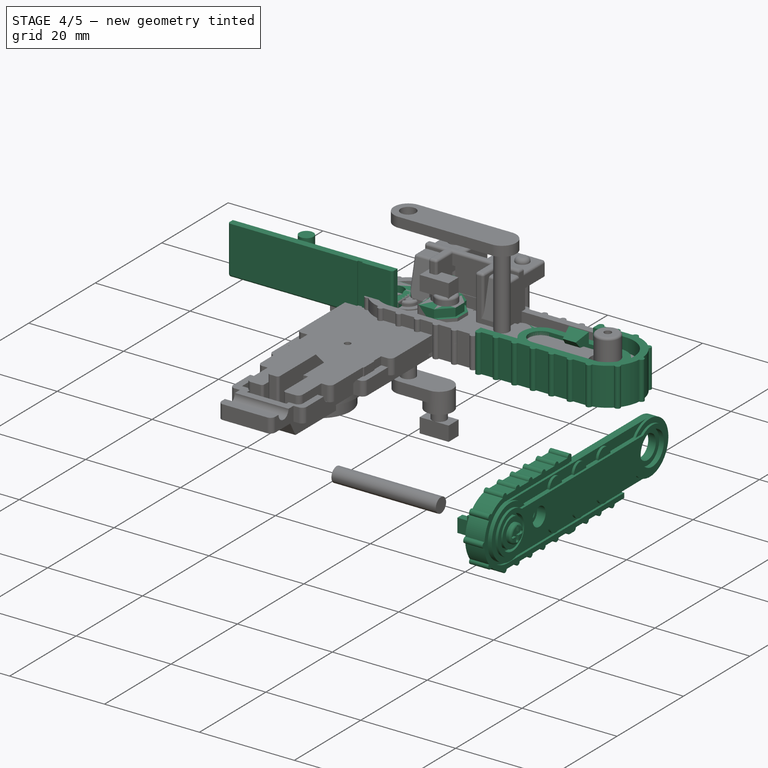
[diagram: stage 4 of 5 — iso view after this stage's code; geometry added in this stage tinted green]
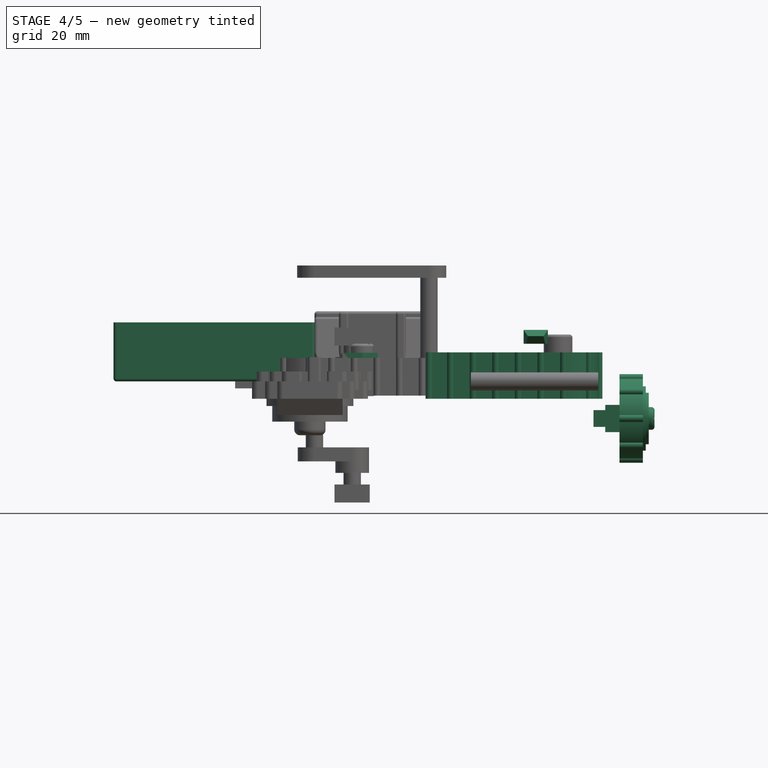
[diagram: stage 4 of 5 — front view after this stage's code; geometry added in this stage tinted green]
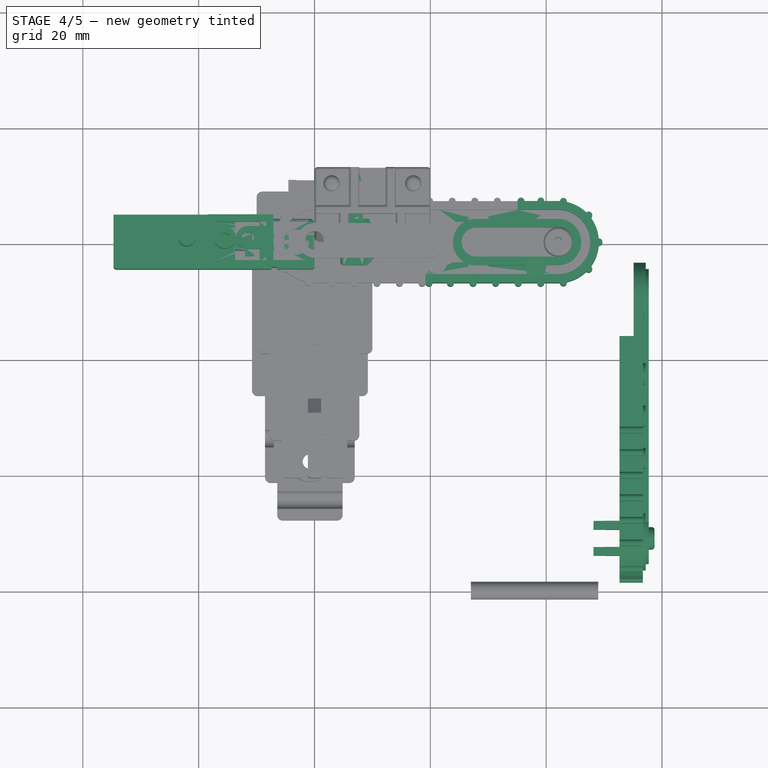
[diagram: stage 4 of 5 — top view after this stage's code; geometry added in this stage tinted green]
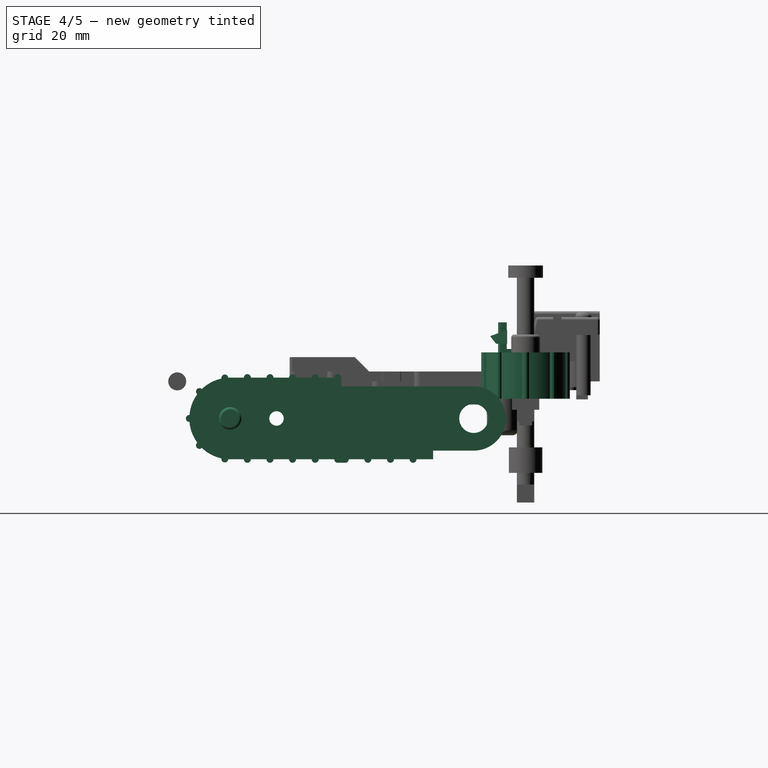
[diagram: stage 4 of 5 — right view after this stage's code; geometry added in this stage tinted green]
FEATURE [Sketcher::SketchObject] Sketch043
  ArcFitTolerance = 1e-06
  AttachmentSupport = -> [Pad017]
  ExternalGeometry = -> [Pad017]
  FullyConstrained = true
  MakeInternals = false
  MapMode = 5
  Placement = pos=(0,0,0) rot=(1,0,0;3.14159rad)
  sketch-geometry (6):
    g0: LineSegment StartX=4.5 StartY=4 StartZ=0 EndX=9.1 EndY=4 EndZ=0
    g1: LineSegment StartX=9.1 StartY=4 StartZ=0 EndX=11.5 EndY=1.6 EndZ=0
    g2: LineSegment StartX=11.5 StartY=1.6 StartZ=0 EndX=11.5 EndY=-1.6 EndZ=0
    g3: LineSegment StartX=11.5 StartY=-1.6 StartZ=0 EndX=9.1 EndY=-4 EndZ=0
    g4: LineSegment StartX=9.1 StartY=-4 StartZ=0 EndX=4.5 EndY=-4 EndZ=0
    g5: LineSegment StartX=4.5 StartY=-4 StartZ=0 EndX=4.5 EndY=4 EndZ=0
  constraints (12):
    c: Coincident(g0,g-3)
    c: Coincident(g0,g-4)
    c: Coincident(g1,g0)
    c: Coincident(g1,g-5)
    c: Coincident(g2,g1)
    c: Coincident(g2,g-6)
    c: Coincident(g3,g2)
    c: Coincident(g3,g-7)
    c: Coincident(g4,g3)
    c: Coincident(g4,g-7)
    c: Coincident(g5,g4)
    c: Coincident(g5,g0)
FEATURE [PartDesign::Pocket] Pocket025
  BaseFeature = -> Pad017
  Direction = (0,0,1)
  Length = 1.25
  Length2 = 5
  Profile = -> Sketch043
  ReferenceAxis = -> Sketch043 [N_Axis]
  Refine = true
  Suppressed = false
  Type = 0
FEATURE [Sketcher::SketchObject] Sketch044
  ArcFitTolerance = 1e-06
  AttachmentSupport = -> [Pocket025]
  ExternalGeometry = -> [Pocket025]
  FullyConstrained = true
  MakeInternals = false
  MapMode = 5
  Placement = pos=(0,0,2.25) rot=(0,0,1;0rad)
  sketch-geometry (6):
    g0: LineSegment StartX=4.5 StartY=4 StartZ=0 EndX=9.1 EndY=4 EndZ=0
    g1: LineSegment StartX=9.1 StartY=4 StartZ=0 EndX=11.5 EndY=1.6 EndZ=0
    g2: LineSegment StartX=11.5 StartY=1.6 StartZ=0 EndX=11.5 EndY=-1.6 EndZ=0
    g3: LineSegment StartX=11.5 StartY=-1.6 StartZ=0 EndX=9.1 EndY=-4 EndZ=0
    g4: LineSegment StartX=9.1 StartY=-4 StartZ=0 EndX=4.5 EndY=-4 EndZ=0
    g5: LineSegment StartX=4.5 StartY=-4 StartZ=0 EndX=4.5 EndY=4 EndZ=0
  constraints (12):
    c: Coincident(g0,g-3)
    c: Coincident(g0,g-4)
    c: Coincident(g1,g0)
    c: Coincident(g1,g-5)
    c: Coincident(g2,g1)
    c: Coincident(g2,g-6)
    c: Coincident(g3,g2)
    c: Coincident(g3,g-7)
    c: Coincident(g4,g3)
    c: Coincident(g4,g-7)
    c: Coincident(g5,g4)
    c: Coincident(g5,g0)
FEATURE [PartDesign::Pad] Pad018
  BaseFeature = -> Pocket025
  Direction = (0,0,1)
  Length = 1
  Length2 = 10
  Profile = -> Sketch044
  ReferenceAxis = -> Sketch044 [N_Axis]
  Refine = true
  Suppressed = false
  Type = 0
FEATURE [Sketcher::SketchObject] Sketch045
  ArcFitTolerance = 1e-06
  AttachmentSupport = -> [Pad018]
  ExternalGeometry = -> [Pad018]
  FullyConstrained = true
  MakeInternals = false
  MapMode = 5
  Placement = pos=(0,0,3.25) rot=(0,0,1;0rad)
  sketch-geometry (6):
    g0: LineSegment StartX=4.5 StartY=3.4 StartZ=0 EndX=8.85147 EndY=3.4 EndZ=0
    g1: LineSegment StartX=8.85147 StartY=3.4 StartZ=0 EndX=10.9 EndY=1.35147 EndZ=0
    g2: LineSegment StartX=10.9 StartY=1.35147 StartZ=0 EndX=10.9 EndY=-1.35147 EndZ=0
    g3: LineSegment StartX=10.9 StartY=-1.35147 StartZ=0 EndX=8.25147 EndY=-4 EndZ=0
    g4: LineSegment StartX=8.25147 StartY=-4 StartZ=0 EndX=4.5 EndY=-4 EndZ=0
    g5: LineSegment StartX=4.5 StartY=3.4 StartZ=0 EndX=4.5 EndY=-4 EndZ=0
  constraints (17):
    c: PointOnObject(g0,g-8)
    c: Horizontal(g0)
    c: Coincident(g1,g0)
    c: Coincident(g2,g1)
    c: Vertical(g2)
    c: Coincident(g3,g2)
    c: Coincident(g4,g3)
    c: Horizontal(g4)
    c: DistanceX(g1,g-5) = 0.6
    c: DistanceY(g0,g-4) = 0.6
    c: Angle(g0,g1) = 2.35619
    c: Angle(g2,g3) = 2.35619
    c: Distance(g0,g-4) = 0.6
    c: Distance(g3,g-6) = 0.6
    c: Coincident(g5,g0)
    c: Coincident(g5,g4)
    c: Coincident(g4,g-8)
FEATURE [PartDesign::Pad] Pad019
  BaseFeature = -> Pad018
  Direction = (0,0,1)
  Length = 1.7
  Length2 = 10
  Profile = -> Sketch045
  ReferenceAxis = -> Sketch045 [N_Axis]
  Refine = true
  Suppressed = false
  Type = 0
FEATURE [Sketcher::SketchObject] Sketch046
  ArcFitTolerance = 1e-06
  AttachmentSupport = -> [Pad019]
  ExternalGeometry = -> [Pad019]
  FullyConstrained = true
  MakeInternals = false
  MapMode = 5
  Placement = pos=(0,0,1.25) rot=(1,0,0;3.14159rad)
  sketch-geometry (9):
    g0: LineSegment StartX=4.5 StartY=4 StartZ=0 EndX=8.25147 EndY=4 EndZ=0
    g1: LineSegment StartX=8.25147 StartY=4 StartZ=0 EndX=10.7 EndY=1.55147 EndZ=0
    g2: LineSegment StartX=10.7 StartY=1.55147 StartZ=0 EndX=10.7 EndY=-1.55147 EndZ=0
    g3: LineSegment StartX=4.5 StartY=4 StartZ=0 EndX=4.5 EndY=-3.4 EndZ=0
    g4: LineSegment StartX=4.5 StartY=-3.4 StartZ=0 EndX=5.5 EndY=-3.4 EndZ=0
    g5: LineSegment StartX=5.5 StartY=-3.4 StartZ=0 EndX=7 EndY=-1.9 EndZ=0
    g6: LineSegment StartX=10.7 StartY=-1.55147 StartZ=0 EndX=9.45147 EndY=-2.8 EndZ=0
    g7: LineSegment StartX=9.45147 StartY=-2.8 StartZ=0 EndX=7 EndY=-2.8 EndZ=0
    g8: LineSegment StartX=7 StartY=-2.8 StartZ=0 EndX=7 EndY=-1.9 EndZ=0
  constraints (26):
    c: Horizontal(g0)
    c: Coincident(g1,g0)
    c: Coincident(g2,g1)
    c: Vertical(g2)
    c: DistanceX(g2,g-6) = 0.8
    c: Angle(g1,g2) = 2.35619
    c: Coincident(g3,g0)
    c: Vertical(g3)
    c: Coincident(g4,g3)
    c: Horizontal(g4)
    c: Coincident(g5,g4)
    c: Angle(g5,g4) = 2.35619
    c: DistanceY(g-7,g4) = 0.6
    c: DistanceX(g4,g4) = 1
    c: Distance(g2,g-6) = 0.6
    c: Coincident(g0,g-8)
    c: Distance(g1,g-4) = 0.6
    c: Coincident(g6,g2)
    c: Coincident(g7,g6)
    c: Horizontal(g7)
    c: Parallel(g6,g-6)
    c: Coincident(g8,g7)
    c: Vertical(g8)
    c: Coincident(g5,g8)
    c: DistanceX(g-9,g5) = 2.5
    c: DistanceY(g-7,g7) = 1.2
FEATURE [Sketcher::SketchObject] Sketch047
  ArcFitTolerance = 1e-06
  FullyConstrained = true
  MakeInternals = false
  MapMode = 5
  Placement = pos=(0,0,-0.65) rot=(1,0,0;3.14159rad)
  sketch-geometry (8):
    g0: LineSegment StartX=4.5 StartY=4.25 StartZ=0 EndX=7.70147 EndY=4.25 EndZ=0
    g1: LineSegment StartX=7.70147 StartY=4.25 StartZ=0 EndX=10.4 EndY=1.55147 EndZ=0
    g2: LineSegment StartX=10.4 StartY=1.55147 StartZ=0 EndX=10.4 EndY=-1.53431 EndZ=0
    g3: LineSegment StartX=10.4 StartY=-1.53431 StartZ=0 EndX=7.3 EndY=-1.53431 EndZ=0
    g4: LineSegment StartX=7.3 StartY=-1.53431 StartZ=0 EndX=7.3 EndY=-1.55 EndZ=0
    g5: LineSegment StartX=7.3 StartY=-1.55 StartZ=0 EndX=5.5 EndY=-3.35 EndZ=0
    g6: LineSegment StartX=5.5 StartY=-3.35 StartZ=0 EndX=4.5 EndY=-3.35 EndZ=0
    g7: LineSegment StartX=4.5 StartY=-3.35 StartZ=0 EndX=4.5 EndY=4.25 EndZ=0
  constraints (21):
    c: Horizontal(g0)
    c: Coincident(g1,g0)
    c: Coincident(g2,g1)
    c: Vertical(g2)
    c: Coincident(g3,g2)
    c: Horizontal(g3)
    c: Coincident(g4,g3)
    c: Vertical(g4)
    c: Coincident(g5,g4)
    c: Coincident(g6,g5)
    c: Coincident(g7,g6)
    c: Coincident(g7,g0)
    c: Coincident(g0,g-9)
    c: DistanceX(g0,g-4) = 0.3
    c: DistanceX(g1,g-5) = 0.3
    c: Angle(g0,g1) = 2.35619
    c: DistanceY(g-7,g3) = 0.3
    c: Coincident(g6,g-9)
    c: Coincident(g5,g-8)
    c: Angle(g5,g6) = 2.35619
    c: DistanceX(g-8,g3) = 0.3
FEATURE [PartDesign::Pad] Pad021
  BaseFeature = -> Pad019
  Direction = (0,0,-1)
  Length = 1.9
  Length2 = 10
  Profile = -> Sketch047
  ReferenceAxis = -> Sketch047 [N_Axis]
  Refine = true
  Suppressed = false
  Type = 0
FEATURE [Sketcher::SketchObject] Sketch048
  ArcFitTolerance = 1e-06
  AttachmentSupport = -> [Pad021]
  ExternalGeometry = -> [Pad021]
  FullyConstrained = true
  MakeInternals = false
  MapMode = 5
  Placement = pos=(0,0,4.95) rot=(0,0,1;0rad)
  sketch-geometry (1):
    g0: Circle CenterX=8.075 CenterY=0 CenterZ=0 NormalX=0 NormalY=0 NormalZ=1 AngleXU=0 Radius=1.425
  constraints (3):
    c: Diameter(g0) = 2.85
    c: DistanceX(g-4,g0) = 3.575
    c: PointOnObject(g0,g-1)
FEATURE [PartDesign::Pocket] Pocket026
  BaseFeature = -> Pad021
  Direction = (0,0,-1)
  Length = 6
  Length2 = 5
  Profile = -> Sketch048
  ReferenceAxis = -> Sketch048 [N_Axis]
  Refine = true
  Suppressed = false
  Type = 0
FEATURE [Sketcher::SketchObject] Sketch049
  ArcFitTolerance = 1e-06
  AttachmentSupport = -> [Pocket026]
  ExternalGeometry = -> [Pocket026]
  FullyConstrained = true
  MakeInternals = false
  MapMode = 5
  Placement = pos=(0,4,0) rot=(0,0.707107,0.707107;3.14159rad)
  sketch-geometry (7):
    g0: LineSegment StartX=-4.5 StartY=4.95 StartZ=0 EndX=-8.5 EndY=4.95 EndZ=0
    g1: LineSegment StartX=-8.5 StartY=4.95 StartZ=0 EndX=-9.5 EndY=3.95 EndZ=0
    g2: LineSegment StartX=-9.5 StartY=0.25 StartZ=0 EndX=-7.5 EndY=0.25 EndZ=0
    g3: LineSegment StartX=-7.5 StartY=0.25 StartZ=0 EndX=-7.5 EndY=1.25 EndZ=0
    g4: LineSegment StartX=-7.5 StartY=1.25 StartZ=0 EndX=-4.5 EndY=1.25 EndZ=0
    g5: LineSegment StartX=-4.5 StartY=1.25 StartZ=0 EndX=-4.5 EndY=4.95 EndZ=0
    g6: LineSegment StartX=-9.5 StartY=3.95 StartZ=0 EndX=-9.5 EndY=0.25 EndZ=0
  constraints (19):
    c: Angle(g1,g0) = 2.35619
    c: Coincident(g1,g0)
    c: Coincident(g6,g1)
    c: Vertical(g6)
    c: Coincident(g2,g6)
    c: Horizontal(g0)
    c: Coincident(g0,g5)
    c: Coincident(g0,g-3)
    c: Coincident(g5,g-4)
    c: Coincident(g4,g5)
    c: Horizontal(g2)
    c: Horizontal(g4)
    c: Vertical(g3)
    c: DistanceY(g3,g3) = 1
    c: DistanceX(g0,g0) = 4
    c: DistanceX(g4,g4) = 3
    c: DistanceX(g2,g2) = 2
    c: Coincident(g2,g3)
    c: Coincident(g3,g4)
FEATURE [PartDesign::Pad] Pad022
  BaseFeature = -> Pocket026
  Direction = (0,1,-2e-16)
  Length = 2.5
  Length2 = 10
  Profile = -> Sketch049
  ReferenceAxis = -> Sketch049 [N_Axis]
  Refine = true
  Reversed = true
  Suppressed = false
  Type = 0
FEATURE [Sketcher::SketchObject] Sketch067
  ArcFitTolerance = 1e-06
  AttachmentSupport = -> [XY_Plane008]
  FullyConstrained = true
  MakeInternals = false
  MapMode = 5
  sketch-geometry (4):
    g0: LineSegment StartX=0 StartY=4 StartZ=0 EndX=-9.5 EndY=4 EndZ=0
    g1: LineSegment StartX=-9.5 StartY=4 StartZ=0 EndX=-9.5 EndY=-4 EndZ=0
    g2: LineSegment StartX=-9.5 StartY=-4 StartZ=0 EndX=0 EndY=-4 EndZ=0
    g3: LineSegment StartX=0 StartY=-4 StartZ=0 EndX=0 EndY=4 EndZ=0
  constraints (12):
    c: Coincident(g0,g1)
    c: Coincident(g1,g2)
    c: Coincident(g2,g3)
    c: Coincident(g3,g0)
    c: Horizontal(g0)
    c: Horizontal(g2)
    c: Vertical(g1)
    c: Vertical(g3)
    c: PointOnObject(g0,g-2)
    c: DistanceY(g3,g3) = 8
    c: DistanceY(g-1,g0) = 4
    c: DistanceX(g0,g0) = 9.5
FEATURE [PartDesign::Pad] Pad034
  Direction = (0,0,1)
  Length = 4
  Length2 = 10
  Profile = -> Sketch067
  ReferenceAxis = -> Sketch067 [N_Axis]
  Refine = true
  Suppressed = false
  Type = 0
FEATURE [PartDesign::Fillet] Fillet019
  Base = -> Pad034 [Edge1,Edge8]
  BaseFeature = -> Pad034
  Radius = 1
  Refine = true
  SupportTransform = false
  Suppressed = false
  UseAllEdges = false
FEATURE [Sketcher::SketchObject] Sketch068
  ArcFitTolerance = 1e-06
  AttachmentSupport = -> [Fillet019]
  FullyConstrained = true
  MakeInternals = false
  MapMode = 5
  Placement = pos=(0,0,4) rot=(0,0,1;0rad)
  sketch-geometry (1):
    g0: Circle CenterX=-3.15 CenterY=0 CenterZ=0 NormalX=0 NormalY=0 NormalZ=1 AngleXU=0 Radius=2.2
  constraints (3):
    c: PointOnObject(g0,g-1)
    c: Diameter(g0) = 4.4
    c: DistanceX(g0,g-1) = 3.15
FEATURE [PartDesign::Pocket] Pocket033
  BaseFeature = -> Fillet019
  Direction = (0,0,-1)
  Length = 1.6
  Length2 = 5
  Profile = -> Sketch068
  ReferenceAxis = -> Sketch068 [N_Axis]
  Refine = true
  Suppressed = false
  Type = 0
FEATURE [Sketcher::SketchObject] Sketch069
  ArcFitTolerance = 1e-06
  AttachmentSupport = -> [Pocket033]
  ExternalGeometry = -> [Pocket033]
  FullyConstrained = true
  MakeInternals = false
  MapMode = 5
  Placement = pos=(0,0,2.4) rot=(0,0,1;0rad)
  sketch-geometry (1):
    g0: Circle CenterX=-3.15 CenterY=0 CenterZ=0 NormalX=0 NormalY=0 NormalZ=1 AngleXU=0 Radius=1
  constraints (2):
    c: Coincident(g0,g-3)
    c: Diameter(g0) = 2
FEATURE [PartDesign::Pocket] Pocket034
  BaseFeature = -> Pocket033
  Direction = (0,0,-1)
  Length = 3
  Length2 = 5
  Profile = -> Sketch069
  ReferenceAxis = -> Sketch069 [N_Axis]
  Refine = true
  Suppressed = false
  Type = 0
FEATURE [PartDesign::Pad] Pad035
  BaseFeature = -> Pad022
  Direction = (0,0,-1)
  Length = 1.9
  Length2 = 10
  Profile = -> Sketch046
  ReferenceAxis = -> Sketch046 [N_Axis]
  Refine = true
  Suppressed = false
  Type = 0
FEATURE [Sketcher::SketchObject] Sketch070
  ArcFitTolerance = 1e-06
  AttachmentSupport = -> [Pad035]
  ExternalGeometry = -> [Pad035]
  FullyConstrained = true
  MakeInternals = false
  MapMode = 5
  Placement = pos=(0,0,-0.65) rot=(1,0,0;3.14159rad)
  sketch-geometry (9):
    g0: LineSegment StartX=4.5 StartY=4 StartZ=0 EndX=4.5 EndY=-3.4 EndZ=0
    g1: LineSegment StartX=4.5 StartY=-3.4 StartZ=0 EndX=5.5 EndY=-3.4 EndZ=0
    g2: LineSegment StartX=5.5 StartY=-3.4 StartZ=0 EndX=7 EndY=-1.9 EndZ=0
    g3: LineSegment StartX=7 StartY=-1.9 StartZ=0 EndX=7 EndY=-2.35 EndZ=0
    g4: LineSegment StartX=7 StartY=-2.35 StartZ=0 EndX=9.23353 EndY=-2.35 EndZ=0
    g5: LineSegment StartX=9.23353 StartY=-2.35 StartZ=0 EndX=10.2178 EndY=-1.41921 EndZ=0
    g6: LineSegment StartX=7.63702 StartY=4 StartZ=0 EndX=10.2178 EndY=1.41921 EndZ=0
    g7: LineSegment StartX=10.2178 StartY=1.41921 StartZ=0 EndX=10.2178 EndY=-1.41921 EndZ=0
    g8: LineSegment StartX=7.63702 StartY=4 StartZ=0 EndX=4.5 EndY=4 EndZ=0
  constraints (22):
    c: Coincident(g0,g-4)
    c: Coincident(g0,g-11)
    c: Coincident(g1,g0)
    c: Coincident(g1,g-11)
    c: Coincident(g2,g1)
    c: Coincident(g2,g-10)
    c: Coincident(g3,g2)
    c: Symmetric(g-9,g-9,g3)
    c: Coincident(g4,g3)
    c: Horizontal(g4)
    c: Coincident(g5,g4)
    c: Coincident(g7,g6)
    c: Coincident(g7,g5)
    c: Vertical(g7)
    c: Angle(g7,g5) = 2.32827
    c: Distance(g6,g-6) = 0.5
    c: Distance(g4,g-8) = 0.5
    c: Distance(g5,g-7) = 0.5
    c: Coincident(g8,g6)
    c: Coincident(g8,g0)
    c: Horizontal(g8)
    c: Angle(g8,g6) = 2.35619
FEATURE [PartDesign::Pad] Pad036
  BaseFeature = -> Pad035
  Direction = (0,0,-1)
  Length = 1.9
  Length2 = 10
  Profile = -> Sketch070
  ReferenceAxis = -> Sketch070 [N_Axis]
  Refine = true
  Suppressed = false
  Type = 0
FEATURE [PartDesign::Fillet] Fillet021
  Base = -> Pad036 [Edge14,Edge8,Edge7,Edge88,Edge76,Edge89]
  BaseFeature = -> Pad036
  Radius = 0.5
  Refine = true
  SupportTransform = false
  Suppressed = false
  UseAllEdges = false
FEATURE [PartDesign::Plane] DatumPlane004
  AttachmentSupport = -> [Pocket034]
  Length = 60
  MapMode = 5
  Placement = pos=(0,0,0) rot=(1,0,0;3.14159rad)
  ResizeMode = 0
  Width = 60
FEATURE [Sketcher::SketchObject] Sketch071
  ArcFitTolerance = 1e-06
  AttachmentSupport = -> [DatumPlane004]
  ExternalGeometry = -> [Pocket034]
  FullyConstrained = false
  MakeInternals = false
  MapMode = 5
  Placement = pos=(0,0,0) rot=(1,0,0;3.14159rad)
  sketch-geometry (4):
    g0: LineSegment StartX=-8.2 StartY=2.5 StartZ=0 EndX=-3.19862 EndY=2.5 EndZ=0
    g1: ArcOfCircle CenterX=-3.19862 CenterY=0 CenterZ=0 NormalX=0 NormalY=0 NormalZ=1 AngleXU=0 Radius=2.5 StartAngle=4.71239 EndAngle=7.85398
    g2: LineSegment StartX=-3.19862 StartY=-2.5 StartZ=0 EndX=-8.2 EndY=-2.5 EndZ=0
    g3: LineSegment StartX=-8.2 StartY=-2.5 StartZ=0 EndX=-8.2 EndY=2.5 EndZ=0
  constraints (11):
    c: Horizontal(g0)
    c: PointOnObject(g1,g-1)
    c: Coincident(g1,g0)
    c: Coincident(g2,g1)
    c: Horizontal(g2)
    c: Coincident(g3,g2)
    c: Coincident(g3,g0)
    c: Vertical(g3)
    c: Angle(g1) = 3.14159
    c: DistanceX(g-3,g2) = 1.3
    c: DistanceY(g-3,g2) = 1.5
FEATURE [PartDesign::Pocket] Pocket038
  BaseFeature = -> Pocket034
  Direction = (0,0,1)
  Length = 1
  Length2 = 5
  Profile = -> Sketch071
  ReferenceAxis = -> Sketch071 [N_Axis]
  Refine = true
  Suppressed = false
  Type = 0
FEATURE [PartDesign::Plane] DatumPlane005
  AttachmentSupport = -> [Pocket038]
  Length = 60
  MapMode = 5
  Placement = pos=(0,0,1) rot=(1,0,0;3.14159rad)
  ResizeMode = 0
  Width = 60
FEATURE [Sketcher::SketchObject] Sketch072
  ArcFitTolerance = 1e-06
  AttachmentSupport = -> [DatumPlane005]
  ExternalGeometry = -> [Pocket038]
  FullyConstrained = true
  MakeInternals = false
  MapMode = 5
  Placement = pos=(0,0,1) rot=(1,0,0;3.14159rad)
  sketch-geometry (4):
    g0: LineSegment StartX=-8.2 StartY=2.5 StartZ=0 EndX=-8.2 EndY=-2.5 EndZ=0
    g1: LineSegment StartX=-8.2 StartY=-2.5 StartZ=0 EndX=-6 EndY=-2.5 EndZ=0
    g2: LineSegment StartX=-6 StartY=-2.5 StartZ=0 EndX=-6 EndY=2.5 EndZ=0
    g3: LineSegment StartX=-6 StartY=2.5 StartZ=0 EndX=-8.2 EndY=2.5 EndZ=0
  constraints (11):
    c: Coincident(g0,g1)
    c: Coincident(g1,g2)
    c: Coincident(g2,g3)
    c: Coincident(g3,g0)
    c: Vertical(g0)
    c: Vertical(g2)
    c: Horizontal(g1)
    c: Horizontal(g3)
    c: Coincident(g0,g-4)
    c: PointOnObject(g1,g-5)
    c: DistanceX(g3,g3) = 2.2
FEATURE [PartDesign::Pocket] Pocket039
  BaseFeature = -> Pocket038
  Direction = (0,0,1)
  Length = 1.5
  Length2 = 5
  Profile = -> Sketch072
  ReferenceAxis = -> Sketch072 [N_Axis]
  Refine = true
  Suppressed = false
  Type = 0
FEATURE [PartDesign::Plane] DatumPlane007
  AttachmentSupport = -> [Pocket039]
  Length = 60
  MapMode = 5
  Placement = pos=(-9.5,0,0) rot=(0.57735,-0.57735,-0.57735;2.0944rad)
  ResizeMode = 0
  Width = 60
FEATURE [Sketcher::SketchObject] Sketch074
  ArcFitTolerance = 1e-06
  AttachmentSupport = -> [DatumPlane007]
  FullyConstrained = true
  MakeInternals = false
  MapMode = 5
  Placement = pos=(-9.5,0,0) rot=(0.57735,-0.57735,-0.57735;2.0944rad)
  sketch-geometry (1):
    g0: Circle CenterX=0 CenterY=0 CenterZ=0 NormalX=0 NormalY=0 NormalZ=1 AngleXU=0 Radius=1.5
  constraints (2):
    c: Coincident(g0,g-1)
    c: Diameter(g0) = 3
FEATURE [PartDesign::Pocket] Pocket041
  BaseFeature = -> Pocket039
  Direction = (1,0,0)
  Length = 1.3
  Length2 = 5
  Profile = -> Sketch074
  ReferenceAxis = -> Sketch074 [N_Axis]
  Refine = true
  Suppressed = false
  Type = 0
FEATURE [PartDesign::Fillet] Fillet023
  Base = -> Pocket041 [Edge24,Edge25,Edge23,Edge19,Edge4]
  BaseFeature = -> Pocket041
  Radius = 0.5
  Refine = true
  SupportTransform = false
  Suppressed = false
  UseAllEdges = false
FEATURE [Sketcher::SketchObject] Sketch142
  ArcFitTolerance = 1e-06
  AttachmentSupport = -> [XY_Plane015]
  FullyConstrained = true
  MakeInternals = false
  MapMode = 5
  sketch-geometry (4):
    g0: LineSegment StartX=0 StartY=0 StartZ=0 EndX=8.1 EndY=0 EndZ=0
    g1: LineSegment StartX=8.1 StartY=0 StartZ=0 EndX=8.1 EndY=12 EndZ=0
    g2: LineSegment StartX=8.1 StartY=12 StartZ=0 EndX=0 EndY=12 EndZ=0
    g3: LineSegment StartX=0 StartY=12 StartZ=0 EndX=0 EndY=0 EndZ=0
  constraints (11):
    c: Coincident(g0,g1)
    c: Coincident(g1,g2)
    c: Coincident(g2,g3)
    c: Coincident(g3,g0)
    c: Horizontal(g0)
    c: Horizontal(g2)
    c: Vertical(g1)
    c: Vertical(g3)
    c: Coincident(g0,g-1)
    c: DistanceX(g0,g0) = 8.1
    c: DistanceY(g3,g3) = 12
FEATURE [PartDesign::Pad] Pad073
  Direction = (0,0,1)
  Length = 2.8
  Length2 = 10
  Profile = -> Sketch142
  ReferenceAxis = -> Sketch142 [N_Axis]
  Refine = true
  Suppressed = false
  Type = 0
FEATURE [Sketcher::SketchObject] Sketch143
  ArcFitTolerance = 1e-06
  AttachmentSupport = -> [Pad073]
  ExternalGeometry = -> [Pad073]
  FullyConstrained = true
  MakeInternals = false
  MapMode = 5
  Placement = pos=(0,0,2.8) rot=(0,0,1;0rad)
  sketch-geometry (4):
    g0: LineSegment StartX=0 StartY=12 StartZ=0 EndX=0 EndY=10.5 EndZ=0
    g1: LineSegment StartX=0 StartY=10.5 StartZ=0 EndX=8.1 EndY=10.5 EndZ=0
    g2: LineSegment StartX=8.1 StartY=10.5 StartZ=0 EndX=8.1 EndY=12 EndZ=0
    g3: LineSegment StartX=8.1 StartY=12 StartZ=0 EndX=0 EndY=12 EndZ=0
  constraints (11):
    c: Coincident(g0,g1)
    c: Coincident(g1,g2)
    c: Coincident(g2,g3)
    c: Coincident(g3,g0)
    c: Vertical(g0)
    c: Vertical(g2)
    c: Horizontal(g1)
    c: Horizontal(g3)
    c: Coincident(g0,g-4)
    c: PointOnObject(g1,g-3)
    c: DistanceY(g0,g0) = 1.5
FEATURE [PartDesign::Pad] Pad074
  BaseFeature = -> Pad073
  Direction = (0,0,1)
  Length = 2.25
  Length2 = 10
  Profile = -> Sketch143
  ReferenceAxis = -> Sketch143 [N_Axis]
  Refine = true
  Suppressed = false
  Type = 0
FEATURE [Sketcher::SketchObject] Sketch144
  ArcFitTolerance = 1e-06
  AttachmentSupport = -> [Pad074]
  FullyConstrained = true
  MakeInternals = false
  MapMode = 5
  Placement = pos=(0,0,0) rot=(0.57735,-0.57735,-0.57735;2.0944rad)
  sketch-geometry (2):
    g0: ArcOfCircle CenterX=-1.25 CenterY=2.8 CenterZ=0 NormalX=0 NormalY=0 NormalZ=1 AngleXU=0 Radius=1.25 StartAngle=0 EndAngle=3.14159
    g1: LineSegment StartX=-2.5 StartY=2.8 StartZ=0 EndX=-1.29e-14 EndY=2.8 EndZ=0
  constraints (6):
    c: Coincident(g0,g-3)
    c: PointOnObject(g0,g-3)
    c: Diameter(g0) = 2.5
    c: PointOnObject(g0,g-3)
    c: Coincident(g1,g0)
    c: Coincident(g1,g0)
FEATURE [PartDesign::Pad] Pad075
  BaseFeature = -> Pad074
  Direction = (-1,0,0)
  Length = 10
  Length2 = 10
  Profile = -> Sketch144
  ReferenceAxis = -> Sketch144 [N_Axis]
  Refine = true
  Suppressed = false
  Type = 0
FEATURE [Sketcher::SketchObject] Sketch145
  ArcFitTolerance = 1e-06
  AttachmentSupport = -> [Pad075]
  ExternalGeometry = -> [Pad075]
  FullyConstrained = true
  MakeInternals = false
  MapMode = 5
  Placement = pos=(0,0,0) rot=(0.57735,-0.57735,-0.57735;2.0944rad)
  sketch-geometry (2):
    g0: ArcOfCircle CenterX=-1.25 CenterY=2.79999 CenterZ=0 NormalX=0 NormalY=0 NormalZ=1 AngleXU=0 Radius=1.25 StartAngle=7.57041e-06 EndAngle=3.14159
    g1: LineSegment StartX=-2.5 StartY=2.8 StartZ=0 EndX=-3.58256e-11 EndY=2.8 EndZ=0
  constraints (5):
    c: Coincident(g0,g-3)
    c: Coincident(g0,g-3)
    c: Diameter(g0) = 2.5
    c: Coincident(g1,g0)
    c: Coincident(g1,g0)
FEATURE [PartDesign::Pad] Pad076
  BaseFeature = -> Pad075
  Direction = (-1,0,0)
  Length = 9.6
  Length2 = 10
  Profile = -> Sketch145
  ReferenceAxis = -> Sketch145 [N_Axis]
  Refine = true
  Reversed = true
  Suppressed = false
  Type = 0
FEATURE [PartDesign::Pad] Pad077
  BaseFeature = -> Pad076
  Direction = (-1,0,0)
  Length = 1.5
  Length2 = 10
  Profile = -> Sketch145
  ReferenceAxis = -> Sketch145 [N_Axis]
  Refine = true
  Suppressed = false
  Type = 0
FEATURE [App::Link] Link001  label="Left_Bicept"
  LinkPlacement = pos=(43.6,-30.5,7.25) rot=(0.58,-0.58,-0.58;2.0944rad)
  LinkedObject = -> Body007
  Placement = pos=(43.6,-30.5,7.25) rot=(0.58,-0.58,-0.58;2.0944rad)
FEATURE [App::Link] Link002  label="Left_Tricept"
  LinkPlacement = pos=(46.15,-34.7,7.25) rot=(0.58,-0.58,-0.58;2.0944rad)
  LinkedObject = -> Body006
  Placement = pos=(46.15,-34.7,7.25) rot=(0.58,-0.58,-0.58;2.0944rad)
FEATURE [Sketcher::SketchObject] Sketch164
  ArcFitTolerance = 1e-06
  AttachmentSupport = -> [XY_Plane016]
  FullyConstrained = true
  MakeInternals = false
  MapMode = 5
  sketch-geometry (4):
    g0: LineSegment StartX=-34.7 StartY=4.75 StartZ=0 EndX=-34.7 EndY=-4.75 EndZ=0
    g1: LineSegment StartX=-34.7 StartY=-4.75 StartZ=0 EndX=0 EndY=-4.75 EndZ=0
    g2: LineSegment StartX=0 StartY=-4.75 StartZ=0 EndX=0 EndY=4.75 EndZ=0
    g3: LineSegment StartX=0 StartY=4.75 StartZ=0 EndX=-34.7 EndY=4.75 EndZ=0
  constraints (12):
    c: Coincident(g0,g1)
    c: Coincident(g1,g2)
    c: Coincident(g2,g3)
    c: Coincident(g3,g0)
    c: Vertical(g0)
    c: Vertical(g2)
    c: Horizontal(g1)
    c: Horizontal(g3)
    c: PointOnObject(g1,g-2)
    c: DistanceX(g3,g3) = 34.7
    c: DistanceY(g0,g0) = 9.5
    c: DistanceY(g-1,g2) = 4.75
FEATURE [PartDesign::Pad] Pad087
  Direction = (0,0,1)
  Length = 10.2
  Length2 = 10
  Profile = -> Sketch164
  ReferenceAxis = -> Sketch164 [N_Axis]
  Refine = true
  Suppressed = false
  Type = 0
FEATURE [Sketcher::SketchObject] Sketch165
  ArcFitTolerance = 1e-06
  AttachmentSupport = -> [Pad087]
  ExternalGeometry = -> [Pad087]
  FullyConstrained = true
  MakeInternals = false
  MapMode = 5
  Placement = pos=(0,0,10.2) rot=(0,0,1;0rad)
  sketch-geometry (4):
    g0: LineSegment StartX=-34.7 StartY=4.75 StartZ=0 EndX=-34.7 EndY=-3.25 EndZ=0
    g1: LineSegment StartX=-34.7 StartY=-3.25 StartZ=0 EndX=0 EndY=-3.25 EndZ=0
    g2: LineSegment StartX=0 StartY=-3.25 StartZ=0 EndX=0 EndY=4.75 EndZ=0
    g3: LineSegment StartX=0 StartY=4.75 StartZ=0 EndX=-34.7 EndY=4.75 EndZ=0
  constraints (11):
    c: Coincident(g0,g1)
    c: Coincident(g1,g2)
    c: Coincident(g2,g3)
    c: Coincident(g3,g0)
    c: Vertical(g0)
    c: Vertical(g2)
    c: Horizontal(g1)
    c: Horizontal(g3)
    c: Coincident(g0,g-3)
    c: PointOnObject(g1,g-4)
    c: DistanceY(g2,g2) = 8
FEATURE [PartDesign::Pocket] Pocket082
  BaseFeature = -> Pad087
  Direction = (0,0,-1)
  Length = 8.4
  Length2 = 5
  Profile = -> Sketch165
  ReferenceAxis = -> Sketch165 [N_Axis]
  Refine = true
  Suppressed = false
  Type = 0
FEATURE [Sketcher::SketchObject] Sketch166
  ArcFitTolerance = 1e-06
  AttachmentSupport = -> [Pocket082]
  ExternalGeometry = -> [Pocket082]
  FullyConstrained = true
  MakeInternals = false
  MapMode = 5
  Placement = pos=(0,0,1.8) rot=(0,0,1;0rad)
  sketch-geometry (4):
    g0: LineSegment StartX=-18.4 StartY=4.75 StartZ=0 EndX=-18.4 EndY=-3.25 EndZ=0
    g1: LineSegment StartX=-18.4 StartY=-3.25 StartZ=0 EndX=-7.1 EndY=-3.25 EndZ=0
    g2: LineSegment StartX=-7.1 StartY=-3.25 StartZ=0 EndX=-7.1 EndY=4.75 EndZ=0
    g3: LineSegment StartX=-7.1 StartY=4.75 StartZ=0 EndX=-18.4 EndY=4.75 EndZ=0
  constraints (12):
    c: Coincident(g0,g1)
    c: Coincident(g1,g2)
    c: Coincident(g2,g3)
    c: Coincident(g3,g0)
    c: Vertical(g0)
    c: Vertical(g2)
    c: Horizontal(g1)
    c: Horizontal(g3)
    c: DistanceX(g1,g-1) = 7.1
    c: DistanceX(g3,g3) = 11.3
    c: PointOnObject(g2,g-3)
    c: PointOnObject(g1,g-4)
FEATURE [PartDesign::Pad] Pad088
  BaseFeature = -> Pocket082
  Direction = (0,0,1)
  Length = 3.8
  Length2 = 10
  Profile = -> Sketch166
  ReferenceAxis = -> Sketch166 [N_Axis]
  Refine = true
  Suppressed = false
  Type = 0
FEATURE [Sketcher::SketchObject] Sketch167
  ArcFitTolerance = 1e-06
  AttachmentSupport = -> [Pad088]
  ExternalGeometry = -> [Pad088]
  FullyConstrained = true
  MakeInternals = false
  MapMode = 5
  Placement = pos=(0,0,1.8) rot=(0,0,1;0rad)
  sketch-geometry (1):
    g0: Circle CenterX=-22 CenterY=0.75 CenterZ=0 NormalX=0 NormalY=0 NormalZ=1 AngleXU=0 Radius=1.5
  constraints (3):
    c: Diameter(g0) = 3
    c: DistanceX(g-3,g0) = 12.7
    c: DistanceY(g0,g-3) = 4
FEATURE [PartDesign::Pad] Pad089
  BaseFeature = -> Pad088
  Direction = (0,0,1)
  Length = 7.5
  Length2 = 10
  Profile = -> Sketch167
  ReferenceAxis = -> Sketch167 [N_Axis]
  Refine = true
  Suppressed = false
  Type = 0
FEATURE [PartDesign::Fillet] Fillet035
  Base = -> Pad089 [Edge7,Edge2,Edge1,Edge10,Edge8]
  BaseFeature = -> Pad089
  Radius = 0.5
  Refine = true
  SupportTransform = false
  Suppressed = false
  UseAllEdges = false
FEATURE [Sketcher::SketchObject] Sketch168
  ArcFitTolerance = 1e-06
  AttachmentSupport = -> [Fillet035]
  ExternalGeometry = -> [Fillet035]
  FullyConstrained = true
  MakeInternals = false
  MapMode = 5
  Placement = pos=(0,0,5.6) rot=(0,0,1;0rad)
  sketch-geometry (4):
    g0: LineSegment StartX=-17.15 StartY=3.5 StartZ=0 EndX=-17.15 EndY=-3.25 EndZ=0
    g1: LineSegment StartX=-17.15 StartY=-3.25 StartZ=0 EndX=-8.35 EndY=-3.25 EndZ=0
    g2: LineSegment StartX=-8.35 StartY=-3.25 StartZ=0 EndX=-8.35 EndY=3.5 EndZ=0
    g3: LineSegment StartX=-8.35 StartY=3.5 StartZ=0 EndX=-17.15 EndY=3.5 EndZ=0
  constraints (12):
    c: Coincident(g0,g1)
    c: Coincident(g1,g2)
    c: Coincident(g2,g3)
    c: Coincident(g3,g0)
    c: Vertical(g0)
    c: Vertical(g2)
    c: Horizontal(g1)
    c: Horizontal(g3)
    c: DistanceY(g0,g-3) = 1.25
    c: PointOnObject(g0,g-4)
    c: DistanceX(g2,g-3) = 1.25
    c: DistanceX(g-3,g0) = 1.25
FEATURE [PartDesign::Pocket] Pocket083
  BaseFeature = -> Fillet035
  Direction = (0,0,-1)
  Length = 3.81
  Length2 = 5
  Profile = -> Sketch168
  ReferenceAxis = -> Sketch168 [N_Axis]
  Refine = true
  Suppressed = false
  Type = 0
FEATURE [Sketcher::SketchObject] Sketch169
  ArcFitTolerance = 1e-06
  AttachmentSupport = -> [Pocket083]
  ExternalGeometry = -> [Pocket083]
  FullyConstrained = false
  MakeInternals = false
  MapMode = 5
  Placement = pos=(0,0,1.79) rot=(0,0,1;0rad)
  sketch-geometry (4):
    g0: LineSegment StartX=-8.35 StartY=2.75 StartZ=0 EndX=-11.5 EndY=2.75 EndZ=0
    g1: ArcOfCircle CenterX=-11.5 CenterY=0.75 CenterZ=0 NormalX=0 NormalY=0 NormalZ=1 AngleXU=0 Radius=2 StartAngle=1.5708 EndAngle=4.71238
    g2: LineSegment StartX=-11.5 StartY=-1.25 StartZ=0 EndX=-8.35 EndY=-1.25 EndZ=0
    g3: LineSegment StartX=-8.35 StartY=-1.25 StartZ=0 EndX=-8.35 EndY=2.75 EndZ=0
  constraints (12):
    c: Horizontal(g0)
    c: Coincident(g1,g0)
    c: Coincident(g2,g1)
    c: Horizontal(g2)
    c: Coincident(g3,g2)
    c: Coincident(g3,g0)
    c: Vertical(g3)
    c: PointOnObject(g0,g-3)
    c: DistanceY(g2,g0) = 4
    c: DistanceY(g0,g-4) = 2
    c: Diameter(g1) = 4
    c: DistanceX(g0,g0) = 3.15
FEATURE [Sketcher::SketchObject] Sketch170
  ArcFitTolerance = 1e-06
  AttachmentSupport = -> [Pocket083]
  ExternalGeometry = -> [Pocket083]
  FullyConstrained = true
  MakeInternals = false
  MapMode = 5
  Placement = pos=(0,0,5.6) rot=(0,0,1;0rad)
  sketch-geometry (4):
    g0: LineSegment StartX=-8.35 StartY=2.75 StartZ=0 EndX=-8.35 EndY=-1.25 EndZ=0
    g1: LineSegment StartX=-8.35 StartY=-1.25 StartZ=0 EndX=-7.1 EndY=-1.25 EndZ=0
    g2: LineSegment StartX=-7.1 StartY=-1.25 StartZ=0 EndX=-7.1 EndY=2.75 EndZ=0
    g3: LineSegment StartX=-7.1 StartY=2.75 StartZ=0 EndX=-8.35 EndY=2.75 EndZ=0
  constraints (12):
    c: Coincident(g0,g1)
    c: Coincident(g1,g2)
    c: Coincident(g2,g3)
    c: Coincident(g3,g0)
    c: Vertical(g0)
    c: Vertical(g2)
    c: Horizontal(g1)
    c: Horizontal(g3)
    c: DistanceY(g2,g-3) = 2
    c: PointOnObject(g0,g-4)
    c: PointOnObject(g2,g-5)
    c: DistanceY(g1,g2) = 4
FEATURE [PartDesign::Pocket] Pocket084
  BaseFeature = -> Pocket083
  Direction = (0,0,-1)
  Length = 1.25
  Length2 = 5
  Profile = -> Sketch170
  ReferenceAxis = -> Sketch170 [N_Axis]
  Refine = true
  Suppressed = false
  Type = 0
FEATURE [PartDesign::Pad] Pad090
  BaseFeature = -> Pocket084
  Direction = (0,0,1)
  Length = 2.56
  Length2 = 10
  Profile = -> Sketch169
  ReferenceAxis = -> Sketch169 [N_Axis]
  Refine = true
  Suppressed = false
  Type = 0
FEATURE [Sketcher::SketchObject] Sketch171
  ArcFitTolerance = 1e-06
  AttachmentSupport = -> [Pad090]
  ExternalGeometry = -> [Pad090]
  FullyConstrained = true
  MakeInternals = false
  MapMode = 5
  Placement = pos=(0,0,1.79) rot=(0,0,1;0rad)
  sketch-geometry (1):
    g0: Circle CenterX=-15.5 CenterY=0.75 CenterZ=0 NormalX=0 NormalY=0 NormalZ=1 AngleXU=0 Radius=1.9
  constraints (3):
    c: DistanceY(g0,g-3) = 4
    c: Diameter(g0) = 3.8
    c: DistanceX(g-5,g0) = 1.65
FEATURE [PartDesign::Pad] Pad091
  BaseFeature = -> Pad090
  Direction = (0,0,1)
  Length = 5
  Length2 = 10
  Profile = -> Sketch171
  ReferenceAxis = -> Sketch171 [N_Axis]
  Refine = true
  Suppressed = false
  Type = 0
FEATURE [Sketcher::SketchObject] Sketch172
  ArcFitTolerance = 1e-06
  AttachmentSupport = -> [Pad091]
  ExternalGeometry = -> [Pad091]
  FullyConstrained = true
  MakeInternals = false
  MapMode = 5
  Placement = pos=(0,0,4.35) rot=(0,0,1;0rad)
  sketch-geometry (1):
    g0: Circle CenterX=-11.5 CenterY=0.75 CenterZ=0 NormalX=0 NormalY=0 NormalZ=1 AngleXU=0 Radius=1.05
  constraints (3):
    c: DistanceY(g0,g-4) = 2
    c: DistanceX(g0,g-3) = 4.4
    c: Diameter(g0) = 2.1
FEATURE [PartDesign::Pocket] Pocket085
  BaseFeature = -> Pad091
  Direction = (0,0,-1)
  Length = 2.56
  Length2 = 5
  Profile = -> Sketch172
  ReferenceAxis = -> Sketch172 [N_Axis]
  Refine = true
  Suppressed = false
  Type = 0
FEATURE [Sketcher::SketchObject] Sketch173
  ArcFitTolerance = 1e-06
  AttachmentSupport = -> [Pocket085]
  ExternalGeometry = -> [Pocket085]
  FullyConstrained = true
  MakeInternals = false
  MapMode = 5
  Placement = pos=(0,0,6.79) rot=(0,0,1;0rad)
  sketch-geometry (1):
    g0: Circle CenterX=-15.5 CenterY=0.75 CenterZ=0 NormalX=0 NormalY=0 NormalZ=1 AngleXU=0 Radius=0.75
  constraints (2):
    c: Diameter(g0) = 1.5
    c: Coincident(g0,g-3)
FEATURE [PartDesign::Pocket] Pocket086
  BaseFeature = -> Pocket085
  Direction = (0,0,-1)
  Length = 5
  Length2 = 5
  Profile = -> Sketch173
  ReferenceAxis = -> Sketch173 [N_Axis]
  Refine = true
  Suppressed = false
  Type = 0
FEATURE [Sketcher::SketchObject] Sketch174
  ArcFitTolerance = 1e-06
  AttachmentSupport = -> [Pocket086]
  ExternalGeometry = -> [Pocket086]
  FullyConstrained = true
  MakeInternals = false
  MapMode = 5
  Placement = pos=(0,0,0) rot=(1,0,0;3.14159rad)
  sketch-geometry (8):
    g0: ArcOfCircle CenterX=-27.95 CenterY=0 CenterZ=0 NormalX=0 NormalY=0 NormalZ=1 AngleXU=0 Radius=2.25 StartAngle=1.5708 EndAngle=4.71239
    g1: ArcOfCircle CenterX=-11.95 CenterY=1e-16 CenterZ=0 NormalX=0 NormalY=0 NormalZ=1 AngleXU=0 Radius=2.25 StartAngle=4.71239 EndAngle=7.85398
    g2: LineSegment StartX=-27.95 StartY=2.25 StartZ=0 EndX=-11.95 EndY=2.25 EndZ=0
    g3: LineSegment StartX=-27.95 StartY=-2.25 StartZ=0 EndX=-11.95 EndY=-2.25 EndZ=0
    g4: LineSegment StartX=-7.45 StartY=4.75 StartZ=0 EndX=-7.45 EndY=-4.75 EndZ=0
    g5: LineSegment StartX=-7.45 StartY=-4.75 StartZ=0 EndX=-6.45 EndY=-4.75 EndZ=0
    g6: LineSegment StartX=-6.45 StartY=-4.75 StartZ=0 EndX=-6.45 EndY=4.75 EndZ=0
    g7: LineSegment StartX=-6.45 StartY=4.75 StartZ=0 EndX=-7.45 EndY=4.75 EndZ=0
  constraints (22):
    c: Tangent(g0,g2) = 1.5708
    c: Tangent(g0,g3) = -1.5708
    c: Tangent(g1,g2) = 1.5708
    c: Tangent(g1,g3) = -1.5708
    c: Equal(g0,g1)
    c: Horizontal(g3)
    c: PointOnObject(g0,g-1)
    c: Diameter(g0) = 4.5
    c: DistanceX(g-3,g0) = 6.75
    c: DistanceX(g0,g1) = 16
    c: Coincident(g4,g5)
    c: Coincident(g5,g6)
    c: Coincident(g6,g7)
    c: Coincident(g7,g4)
    c: Vertical(g4)
    c: Vertical(g6)
    c: Horizontal(g5)
    c: Horizontal(g7)
    c: PointOnObject(g6,g-4)
    c: PointOnObject(g5,g-5)
    c: DistanceX(g1,g4) = 4.5
    c: DistanceX(g4,g6) = 1
FEATURE [PartDesign::Pocket] Pocket087
  BaseFeature = -> Pocket086
  Direction = (0,0,1)
  Length = 0.3
  Length2 = 5
  Profile = -> Sketch174
  ReferenceAxis = -> Sketch174 [N_Axis]
  Refine = true
  Suppressed = false
  Type = 0
FEATURE [Sketcher::SketchObject] Sketch175
  ArcFitTolerance = 1e-06
  AttachmentSupport = -> [Pocket087]
  ExternalGeometry = -> [Pocket087]
  FullyConstrained = true
  MakeInternals = false
  MapMode = 5
  Placement = pos=(0,-4.75,0) rot=(1,0,0;1.5708rad)
  sketch-geometry (4):
    g0: LineSegment StartX=-7.45 StartY=10.2 StartZ=0 EndX=-7.45 EndY=0 EndZ=0
    g1: LineSegment StartX=-7.45 StartY=0 StartZ=0 EndX=-6.45 EndY=0 EndZ=0
    g2: LineSegment StartX=-6.45 StartY=0 StartZ=0 EndX=-6.45 EndY=10.2 EndZ=0
    g3: LineSegment StartX=-6.45 StartY=10.2 StartZ=0 EndX=-7.45 EndY=10.2 EndZ=0
  constraints (11):
    c: Coincident(g0,g1)
    c: Coincident(g1,g2)
    c: Coincident(g2,g3)
    c: Coincident(g3,g0)
    c: Vertical(g0)
    c: Vertical(g2)
    c: Horizontal(g1)
    c: Horizontal(g3)
    c: DistanceX(g3,g3) = 1
    c: Coincident(g0,g-3)
    c: PointOnObject(g0,g-4)
FEATURE [PartDesign::Pocket] Pocket088
  BaseFeature = -> Pocket087
  Direction = (0,1,-2e-16)
  Length = 0.3
  Length2 = 5
  Profile = -> Sketch175
  ReferenceAxis = -> Sketch175 [N_Axis]
  Refine = true
  Suppressed = false
  Type = 0
FEATURE [Sketcher::SketchObject] Sketch196
  ArcFitTolerance = 1e-06
  AttachmentSupport = -> [XY_Plane018]
  FullyConstrained = false
  MakeInternals = false
  MapMode = 5
  sketch-geometry (5):
    g0: LineSegment StartX=19.17 StartY=-5.55 StartZ=0 EndX=42.05 EndY=-5.55 EndZ=0
    g1: ArcOfCircle CenterX=42.05 CenterY=0 CenterZ=0 NormalX=0 NormalY=0 NormalZ=1 AngleXU=0 Radius=5.55 StartAngle=4.71239 EndAngle=7.85398
    g2: LineSegment StartX=19.17 StartY=-5.55 StartZ=0 EndX=19.17 EndY=1.23148 EndZ=0
    g3: ArcOfCircle CenterX=24.17 CenterY=1.23148 CenterZ=0 NormalX=0 NormalY=0 NormalZ=1 AngleXU=0 Radius=5 StartAngle=2.09902 EndAngle=3.14159
    g4: LineSegment StartX=21.65 StartY=5.55 StartZ=0 EndX=42.05 EndY=5.55 EndZ=0
  constraints (16):
    c: Horizontal(g0)
    c: Coincident(g1,g0)
    c: Coincident(g2,g0)
    c: Vertical(g2)
    c: Coincident(g3,g2)
    c: Coincident(g4,g3)
    c: Coincident(g4,g1)
    c: Horizontal(g4)
    c: DistanceX(g0,g0) = 22.88
    c: Radius(g1) = 5.55
    c: PointOnObject(g1,g-1)
    c: Radius(g3) = 5
    c: DistanceY(g0,g1) = 11.1
    c: DistanceY(g2,g3) = 0
    c: DistanceX(g-1,g1) = 42.05
    c: DistanceX(g3,g3) = 2.52
FEATURE [PartDesign::Pad] Pad104
  Direction = (0,0,1)
  Length = 1.9
  Length2 = 10
  Profile = -> Sketch196
  ReferenceAxis = -> Sketch196 [N_Axis]
  Refine = true
  Suppressed = false
  Type = 0
FEATURE [Sketcher::SketchObject] Sketch197
  ArcFitTolerance = 1e-06
  AttachmentSupport = -> [Pad104]
  FullyConstrained = true
  MakeInternals = false
  MapMode = 5
  Placement = pos=(0,0,1.9) rot=(0,0,1;0rad)
  sketch-geometry (4):
    g0: ArcOfCircle CenterX=27.9 CenterY=1.99e-14 CenterZ=0 NormalX=0 NormalY=0 NormalZ=1 AngleXU=0 Radius=2.5 StartAngle=1.5708 EndAngle=4.71239
    g1: ArcOfCircle CenterX=42.05 CenterY=0 CenterZ=0 NormalX=0 NormalY=0 NormalZ=1 AngleXU=0 Radius=2.5 StartAngle=4.71239 EndAngle=7.85398
    g2: LineSegment StartX=27.9 StartY=2.5 StartZ=0 EndX=42.05 EndY=2.5 EndZ=0
    g3: LineSegment StartX=27.9 StartY=-2.5 StartZ=0 EndX=42.05 EndY=-2.5 EndZ=0
  constraints (9):
    c: Tangent(g0,g2) = 1.5708
    c: Tangent(g0,g3) = -1.5708
    c: Tangent(g1,g2) = 1.5708
    c: Tangent(g1,g3) = -1.5708
    c: Equal(g0,g1)
    c: Horizontal(g3)
    c: Coincident(g1,g-3)
    c: Diameter(g0) = 5
    c: DistanceX(g0,g1) = 14.15
FEATURE [PartDesign::Pocket] Pocket097
  BaseFeature = -> Pad104
  Direction = (0,0,-1)
  Length = 2
  Length2 = 5
  Profile = -> Sketch197
  ReferenceAxis = -> Sketch197 [N_Axis]
  Refine = true
  Suppressed = false
  Type = 0
FEATURE [Sketcher::SketchObject] Sketch198
  ArcFitTolerance = 1e-06
  AttachmentSupport = -> [Pocket097]
  ExternalGeometry = -> [Pocket097]
  FullyConstrained = true
  MakeInternals = false
  MapMode = 5
  Placement = pos=(0,0,1.9) rot=(0,0,1;0rad)
  sketch-geometry (8):
    g0: ArcOfCircle CenterX=27.9 CenterY=1.186e-13 CenterZ=0 NormalX=0 NormalY=0 NormalZ=1 AngleXU=0 Radius=2.5 StartAngle=1.57079 EndAngle=4.7124
    g1: ArcOfCircle CenterX=42.05 CenterY=-2e-16 CenterZ=0 NormalX=0 NormalY=0 NormalZ=1 AngleXU=0 Radius=2.5 StartAngle=4.71239 EndAngle=7.85398
    g2: LineSegment StartX=42.05 StartY=2.5 StartZ=0 EndX=27.9 EndY=2.5 EndZ=0
    g3: LineSegment StartX=42.05 StartY=-2.5 StartZ=0 EndX=27.9 EndY=-2.5 EndZ=0
    g4: ArcOfCircle CenterX=42.05 CenterY=1.187e-13 CenterZ=0 NormalX=0 NormalY=0 NormalZ=1 AngleXU=0 Radius=4 StartAngle=4.71239 EndAngle=7.85398
    g5: LineSegment StartX=27.9 StartY=4 StartZ=0 EndX=42.05 EndY=4 EndZ=0
    g6: LineSegment StartX=42.05 StartY=-4 StartZ=0 EndX=27.9 EndY=-4 EndZ=0
    g7: ArcOfCircle CenterX=27.9 CenterY=1.19e-13 CenterZ=0 NormalX=0 NormalY=0 NormalZ=1 AngleXU=0 Radius=4 StartAngle=1.5708 EndAngle=4.71239
  constraints (24):
    c: Coincident(g1,g-6)
    c: Coincident(g1,g-4)
    c: Coincident(g0,g-6)
    c: Coincident(g0,g-5)
    c: Coincident(g3,g0)
    c: Coincident(g2,g0)
    c: Coincident(g2,g1)
    c: Coincident(g3,g1)
    c: Radius(g1) = 2.5
    c: DistanceY(g0,g5) = 1.5
    c: DistanceY(g6,g0) = 1.5
    c: Horizontal(g5)
    c: Horizontal(g6)
    c: Radius(g0) = 2.5
    c: DistanceX(g5,g1) = 0
    c: DistanceX(g1,g6) = 0
    c: DistanceX(g0,g5) = 0
    c: DistanceX(g6,g0) = 0
    c: Coincident(g4,g5)
    c: Coincident(g4,g6)
    c: Radius(g4) = 4
    c: Coincident(g7,g5)
    c: Coincident(g7,g6)
    c: Radius(g7) = 4
FEATURE [PartDesign::Pad] Pad105
  BaseFeature = -> Pocket097
  Direction = (0,0,1)
  Length = 1.5
  Length2 = 10
  Profile = -> Sketch198
  ReferenceAxis = -> Sketch198 [N_Axis]
  Refine = true
  Suppressed = false
  Type = 0
FEATURE [Sketcher::SketchObject] Sketch199
  ArcFitTolerance = 1e-06
  AttachmentSupport = -> [Pad105]
  ExternalGeometry = -> [Pad105]
  FullyConstrained = true
  MakeInternals = false
  MapMode = 5
  Placement = pos=(0,0,0) rot=(1,0,0;3.14159rad)
  sketch-geometry (8):
    g0: ArcOfCircle CenterX=27.9 CenterY=-1.089e-13 CenterZ=0 NormalX=0 NormalY=0 NormalZ=1 AngleXU=0 Radius=2.5 StartAngle=1.5708 EndAngle=4.71239
    g1: ArcOfCircle CenterX=42.05 CenterY=0 CenterZ=0 NormalX=0 NormalY=0 NormalZ=1 AngleXU=0 Radius=2.5 StartAngle=4.71239 EndAngle=7.85398
    g2: LineSegment StartX=27.9 StartY=2.5 StartZ=0 EndX=42.05 EndY=2.5 EndZ=0
    g3: LineSegment StartX=42.05 StartY=-2.5 StartZ=0 EndX=27.9 EndY=-2.5 EndZ=0
    g4: LineSegment StartX=27.9 StartY=4 StartZ=0 EndX=42.05 EndY=4 EndZ=0
    g5: LineSegment StartX=42.05 StartY=-4 StartZ=0 EndX=27.9 EndY=-4 EndZ=0
    g6: ArcOfCircle CenterX=27.9 CenterY=-1.089e-13 CenterZ=0 NormalX=0 NormalY=0 NormalZ=1 AngleXU=0 Radius=4 StartAngle=1.57079 EndAngle=4.7124
    g7: ArcOfCircle CenterX=42.05 CenterY=-1.088e-13 CenterZ=0 NormalX=0 NormalY=0 NormalZ=1 AngleXU=0 Radius=4 StartAngle=4.71239 EndAngle=7.85398
  constraints (22):
    c: Coincident(g0,g-4)
    c: Coincident(g0,g-6)
    c: Tangent(g1,g-5) = -1.5708
    c: Coincident(g1,g-6)
    c: Coincident(g2,g0)
    c: Coincident(g2,g1)
    c: Coincident(g3,g1)
    c: Tangent(g3,g0) = 1.5708
    c: Horizontal(g4)
    c: Horizontal(g5)
    c: Coincident(g6,g4)
    c: Coincident(g6,g5)
    c: Coincident(g7,g4)
    c: Coincident(g7,g5)
    c: DistanceY(g0,g4) = 1.5
    c: DistanceY(g5,g0) = 1.5
    c: Radius(g6) = 4
    c: Radius(g7) = 4
    c: DistanceX(g4,g0) = 0
    c: DistanceX(g1,g4) = 0
    c: DistanceX(g5,g0) = 0
    c: DistanceX(g1,g5) = 0
FEATURE [PartDesign::Pad] Pad106
  BaseFeature = -> Pad105
  Direction = (0,0,-1)
  Length = 1.5
  Length2 = 10
  Profile = -> Sketch199
  ReferenceAxis = -> Sketch199 [N_Axis]
  Refine = true
  Suppressed = false
  Type = 0
FEATURE [Sketcher::SketchObject] Sketch200
  ArcFitTolerance = 1e-06
  AttachmentSupport = -> [Pad106]
  FullyConstrained = true
  MakeInternals = false
  MapMode = 5
  Placement = pos=(0,0,1.9) rot=(0,0,1;0rad)
  sketch-geometry (8):
    g0: ArcOfCircle CenterX=42.05 CenterY=4e-16 CenterZ=0 NormalX=0 NormalY=0 NormalZ=1 AngleXU=0 Radius=5.55 StartAngle=4.71239 EndAngle=7.85398
    g1: ArcOfCircle CenterX=42.05 CenterY=4e-16 CenterZ=0 NormalX=0 NormalY=0 NormalZ=1 AngleXU=0 Radius=7.05 StartAngle=4.71239 EndAngle=7.85398
    g2: LineSegment StartX=42.05 StartY=-7.05 StartZ=0 EndX=19.17 EndY=-7.05 EndZ=0
    g3: LineSegment StartX=19.17 StartY=-7.05 StartZ=0 EndX=19.17 EndY=-5.55 EndZ=0
    g4: LineSegment StartX=19.17 StartY=-5.55 StartZ=0 EndX=42.05 EndY=-5.55 EndZ=0
    g5: LineSegment StartX=42.05 StartY=5.55 StartZ=0 EndX=35.05 EndY=5.55 EndZ=0
    g6: LineSegment StartX=42.05 StartY=7.05 StartZ=0 EndX=35.05 EndY=7.05 EndZ=0
    g7: LineSegment StartX=35.05 StartY=7.05 StartZ=0 EndX=35.05 EndY=5.55 EndZ=0
  constraints (21):
    c: Coincident(g0,g-5)
    c: Tangent(g0,g-4) = -1.5708
    c: Coincident(g2,g1)
    c: Horizontal(g2)
    c: Coincident(g3,g2)
    c: Coincident(g3,g-5)
    c: Vertical(g3)
    c: Coincident(g4,g3)
    c: Coincident(g4,g0)
    c: Coincident(g5,g0)
    c: PointOnObject(g5,g-3)
    c: Coincident(g6,g1)
    c: Horizontal(g6)
    c: Coincident(g7,g6)
    c: Coincident(g7,g5)
    c: Coincident(g1,g0)
    c: DistanceY(g0,g1) = 1.5
    c: Vertical(g7)
    c: DistanceX(g1,g0) = 0
    c: DistanceX(g6,g6) = 7
    c: DistanceX(g1,g0) = 0
FEATURE [PartDesign::Pad] Pad107
  BaseFeature = -> Pad106
  Direction = (0,0,1)
  Length = 4.9
  Length2 = 10
  Profile = -> Sketch200
  ReferenceAxis = -> Sketch200 [N_Axis]
  Refine = true
  Reversed = true
  Suppressed = false
  Type = 0
FEATURE [PartDesign::Pad] Pad108
  BaseFeature = -> Pad107
  Direction = (0,0,1)
  Length = 3.1
  Length2 = 10
  Profile = -> Sketch200
  ReferenceAxis = -> Sketch200 [N_Axis]
  Refine = true
  Suppressed = false
  Type = 0
FEATURE [Sketcher::SketchObject] Sketch201
  ArcFitTolerance = 1e-06
  AttachmentSupport = -> [Pad108]
  ExternalGeometry = -> [Pad108]
  FullyConstrained = true
  MakeInternals = false
  MapMode = 5
  Placement = pos=(0,0,-1.5) rot=(1,0,0;3.14159rad)
  sketch-geometry (4):
    g0: Circle CenterX=27.9 CenterY=4 CenterZ=0 NormalX=0 NormalY=0 NormalZ=1 AngleXU=0 Radius=1
    g1: Circle CenterX=42.05 CenterY=4 CenterZ=0 NormalX=0 NormalY=0 NormalZ=1 AngleXU=0 Radius=1
    g2: Circle CenterX=42.05 CenterY=-4 CenterZ=0 NormalX=0 NormalY=0 NormalZ=1 AngleXU=0 Radius=1
    g3: Circle CenterX=27.9 CenterY=-4 CenterZ=0 NormalX=0 NormalY=0 NormalZ=1 AngleXU=0 Radius=1
  constraints (8):
    c: Diameter(g0) = 2
    c: Coincident(g1,g-3)
    c: Coincident(g2,g-3)
    c: Diameter(g3) = 2
    c: Diameter(g2) = 2
    c: Diameter(g1) = 2
    c: Coincident(g0,g-4)
    c: Coincident(g3,g-5)
FEATURE [Sketcher::SketchObject] Sketch202
  ArcFitTolerance = 1e-06
  FullyConstrained = true
  MakeInternals = false
  MapMode = 5
  Placement = pos=(0,0,-3) rot=(1,0,0;3.14159rad)
  sketch-geometry (26):
    g0: ArcOfCircle CenterX=23.476 CenterY=7.05 CenterZ=0 NormalX=0 NormalY=0 NormalZ=1 AngleXU=0 Radius=0.6 StartAngle=6e-16 EndAngle=3.14159
    g1: ArcOfCircle CenterX=27.376 CenterY=7.05 CenterZ=0 NormalX=0 NormalY=0 NormalZ=1 AngleXU=0 Radius=0.6 StartAngle=6e-16 EndAngle=3.14159
    g2: ArcOfCircle CenterX=31.276 CenterY=7.05 CenterZ=0 NormalX=0 NormalY=0 NormalZ=1 AngleXU=0 Radius=0.6 StartAngle=6e-16 EndAngle=3.14159
    g3: ArcOfCircle CenterX=35.176 CenterY=7.05 CenterZ=0 NormalX=0 NormalY=0 NormalZ=1 AngleXU=0 Radius=0.6 StartAngle=6e-16 EndAngle=3.14159
    g4: ArcOfCircle CenterX=39.076 CenterY=7.05 CenterZ=0 NormalX=0 NormalY=0 NormalZ=1 AngleXU=0 Radius=0.6 StartAngle=6e-16 EndAngle=3.14159
    g5: ArcOfCircle CenterX=49.1 CenterY=0 CenterZ=0 NormalX=0 NormalY=0 NormalZ=1 AngleXU=0 Radius=0.6 StartAngle=4.66982 EndAngle=7.89655
    g6: ArcOfCircle CenterX=47.3516 CenterY=4.64708 CenterZ=0 NormalX=0 NormalY=0 NormalZ=1 AngleXU=0 Radius=0.6 StartAngle=5.38953 EndAngle=8.61625
    g7: ArcOfCircle CenterX=42.9736 CenterY=6.98923 CenterZ=0 NormalX=0 NormalY=0 NormalZ=1 AngleXU=0 Radius=0.6 StartAngle=6.10923 EndAngle=9.33595
    g8: ArcOfCircle CenterX=47.3516 CenterY=-4.64708 CenterZ=0 NormalX=0 NormalY=0 NormalZ=1 AngleXU=0 Radius=0.6 StartAngle=3.95012 EndAngle=7.17685
    g9: ArcOfCircle CenterX=42.9736 CenterY=-6.98923 CenterZ=0 NormalX=0 NormalY=0 NormalZ=1 AngleXU=0 Radius=0.6 StartAngle=3.23042 EndAngle=6.45714
    g10: ArcOfCircle CenterX=39.076 CenterY=-7.05 CenterZ=0 NormalX=0 NormalY=0 NormalZ=1 AngleXU=0 Radius=0.6 StartAngle=3.14159 EndAngle=6.28319
    g11: ArcOfCircle CenterX=19.77 CenterY=7.05 CenterZ=0 NormalX=0 NormalY=0 NormalZ=1 AngleXU=0 Radius=0.6 StartAngle=6e-16 EndAngle=3.14159
    g12: ArcOfCircle CenterX=35.65 CenterY=-7.05 CenterZ=0 NormalX=0 NormalY=0 NormalZ=1 AngleXU=0 Radius=0.6 StartAngle=3.14159 EndAngle=6.28319
    g13: LineSegment StartX=19.17 StartY=7.05 StartZ=0 EndX=20.37 EndY=7.05 EndZ=0
    g14: LineSegment StartX=22.876 StartY=7.05 StartZ=0 EndX=24.076 EndY=7.05 EndZ=0
    g15: LineSegment StartX=26.776 StartY=7.05 StartZ=0 EndX=27.976 EndY=7.05 EndZ=0
    g16: LineSegment StartX=30.676 StartY=7.05 StartZ=0 EndX=31.876 EndY=7.05 EndZ=0
    g17: LineSegment StartX=34.576 StartY=7.05 StartZ=0 EndX=35.776 EndY=7.05 EndZ=0
    g18: LineSegment StartX=38.476 StartY=7.05 StartZ=0 EndX=39.676 EndY=7.05 EndZ=0
    g19: LineSegment StartX=42.376 StartY=7.04246 StartZ=0 EndX=43.5646 EndY=6.88538 EndZ=0
    g20: LineSegment StartX=46.9373 StartY=5.08105 StartZ=0 EndX=47.7276 EndY=4.17946 EndZ=0
    g21: LineSegment StartX=49.0745 StartY=0.599457 StartZ=0 EndX=49.0745 EndY=-0.599457 EndZ=0
    g22: LineSegment StartX=47.7276 StartY=-4.17946 StartZ=0 EndX=46.9373 EndY=-5.08105 EndZ=0
    g23: LineSegment StartX=43.5646 StartY=-6.88538 StartZ=0 EndX=42.376 EndY=-7.04246 EndZ=0
    g24: LineSegment StartX=39.676 StartY=-7.05 StartZ=0 EndX=38.476 EndY=-7.05 EndZ=0
    g25: LineSegment StartX=36.25 StartY=-7.05 StartZ=0 EndX=35.05 EndY=-7.05 EndZ=0
  constraints (89):
    c: PointOnObject(g0,g-3)
    c: PointOnObject(g0,g-3)
    c: PointOnObject(g1,g-3)
    c: PointOnObject(g2,g-3)
    c: PointOnObject(g2,g-3)
    c: PointOnObject(g3,g-3)
    c: PointOnObject(g3,g-3)
    c: PointOnObject(g4,g-3)
    c: PointOnObject(g4,g-3)
    c: Radius(g0) = 0.6
    c: PointOnObject(g0,g-3)
    c: PointOnObject(g1,g-3)
    c: PointOnObject(g1,g-3)
    c: Radius(g1) = 0.6
    c: DistanceX(g0,g1) = 2.7
    c: DistanceX(g1,g2) = 2.7
    c: Radius(g2) = 0.6
    c: PointOnObject(g2,g-3)
    c: Radius(g3) = 0.6
    c: Radius(g4) = 0.6
    c: PointOnObject(g3,g-3)
    c: PointOnObject(g4,g-3)
    c: DistanceX(g2,g3) = 2.7
    c: DistanceX(g3,g4) = 2.7
    c: PointOnObject(g5,g-4)
    c: PointOnObject(g5,g-4)
    c: Radius(g5) = 0.6
    c: PointOnObject(g6,g-4)
    c: PointOnObject(g6,g-4)
    c: PointOnObject(g7,g-4)
    c: PointOnObject(g7,g-4)
    c: PointOnObject(g8,g-4)
    c: PointOnObject(g8,g-4)
    c: PointOnObject(g9,g-4)
    c: PointOnObject(g9,g-4)
    c: PointOnObject(g10,g-5)
    c: PointOnObject(g10,g-5)
    c: PointOnObject(g11,g-3)
    c: Radius(g7) = 0.6
    c: Radius(g6) = 0.6
    c: Radius(g8) = 0.6
    c: Radius(g9) = 0.6
    c: Radius(g10) = 0.6
    c: Radius(g11) = 0.6
    c: PointOnObject(g11,g-3)
    c: PointOnObject(g7,g-4)
    c: PointOnObject(g6,g-4)
    c: PointOnObject(g5,g-4)
    c: PointOnObject(g5,g-1)
    c: PointOnObject(g8,g-4)
    c: PointOnObject(g9,g-4)
    c: PointOnObject(g10,g-5)
    c: Distance(g6,g7) = 3.825
    c: Distance(g5,g6) = 3.825
    c: DistanceX(g4,g7) = 2.7
    c: Coincident(g-3,g11)
    c: Distance(g5,g8) = 3.825
    c: Distance(g8,g9) = 3.825
    c: DistanceX(g10,g9) = 2.7
    c: Coincident(g12,g-5)
    c: PointOnObject(g12,g-5)
    c: PointOnObject(g12,g-5)
    c: Radius(g12) = 0.6
    c: Coincident(g13,g11)
    c: Coincident(g13,g11)
    c: Coincident(g14,g0)
    c: Coincident(g14,g0)
    c: Coincident(g15,g1)
    c: Coincident(g15,g1)
    c: Coincident(g16,g2)
    c: Coincident(g16,g2)
    c: Coincident(g17,g3)
    c: Coincident(g17,g3)
    c: Coincident(g18,g4)
    c: Coincident(g18,g4)
    c: Coincident(g19,g7)
    c: Coincident(g19,g7)
    c: Coincident(g20,g6)
    c: Coincident(g20,g6)
    c: Coincident(g21,g5)
    c: Coincident(g21,g5)
    c: Coincident(g22,g8)
    c: Coincident(g22,g8)
    c: Coincident(g23,g9)
    c: Coincident(g23,g9)
    c: Coincident(g24,g10)
    c: Coincident(g24,g10)
    c: Coincident(g25,g12)
    c: Coincident(g25,g12)
FEATURE [PartDesign::Pad] Pad110
  BaseFeature = -> Pad108
  Direction = (0,-1e-16,-1)
  Length = 8
  Length2 = 10
  Profile = -> Sketch202
  ReferenceAxis = -> Sketch202 [N_Axis]
  Refine = true
  Reversed = true
  Suppressed = false
  Type = 0
FEATURE [PartDesign::Pad] Pad160
  BaseFeature = -> Pad110
  Direction = (0,0,-1)
  Length = 2
  Length2 = 10
  Profile = -> Sketch201
  ReferenceAxis = -> Sketch201 [N_Axis]
  Refine = true
  Reversed = true
  Suppressed = false
  Type = 0
FEATURE [Sketcher::SketchObject] Sketch313
  ArcFitTolerance = 1e-06
  AttachmentSupport = -> [Pad077]
  ExternalGeometry = -> [Pad077]
  FullyConstrained = true
  MakeInternals = false
  MapMode = 5
  Placement = pos=(0,0,0) rot=(1,0,0;3.14159rad)
  sketch-geometry (1):
    g0: Circle CenterX=4.05 CenterY=-6 CenterZ=0 NormalX=0 NormalY=0 NormalZ=1 AngleXU=0 Radius=2.35
  constraints (5):
    c: Diameter(g0) = 4.7
    c: DistanceX(g-3,g-3) = 8.1
    c: DistanceY(g-4,g-4) = 12
    c: DistanceY(g0,g-1) = 6
    c: DistanceX(g-1,g0) = 4.05
FEATURE [PartDesign::Pocket] Pocket150
  BaseFeature = -> Pad077
  Direction = (0,0,1)
  Length = 2.2
  Length2 = 5
  Profile = -> Sketch313
  ReferenceAxis = -> Sketch313 [N_Axis]
  Refine = true
  Suppressed = false
  Type = 0
FEATURE [PartDesign::Pad] Pad179
  BaseFeature = -> Pocket150
  Direction = (-1,0,0)
  Length = 0.05
  Length2 = 10
  Profile = -> Pocket150 [Face2]
  Refine = true
  Suppressed = false
  Type = 0
FEATURE [PartDesign::Pad] Pad180
  BaseFeature = -> Pad179
  Direction = (1,0,0)
  Length = 0.05
  Length2 = 10
  Profile = -> Pad179 [Face3]
  Refine = true
  Suppressed = false
  Type = 0
FEATURE [PartDesign::Fillet] Fillet050
  Base = -> Pad180 [Edge7,Edge1,Edge26,Edge21,Edge20]
  BaseFeature = -> Pad180
  Radius = 0.5
  Refine = true
  SupportTransform = false
  Suppressed = false
  UseAllEdges = false
FEATURE [Sketcher::SketchObject] Sketch314
  ArcFitTolerance = 1e-06
  AttachmentOffset = pos=(0,0,-1.9) rot=(0,0,1;0rad)
  AttachmentSupport = -> [Fillet050]
  ExternalGeometry = -> [Fillet050]
  FullyConstrained = true
  MakeInternals = false
  MapMode = 5
  Placement = pos=(1.85,0,0) rot=(0.57735,-0.57735,-0.57735;2.0944rad)
  sketch-geometry (3):
    g0: LineSegment StartX=-5.8 StartY=2.8 StartZ=0 EndX=-9 EndY=2.8 EndZ=0
    g1: LineSegment StartX=-5.8 StartY=2.8 StartZ=0 EndX=-5.8 EndY=5.8 EndZ=0
    g2: ArcOfCircle CenterX=-3.95033 CenterY=0.620354 CenterZ=0 NormalX=0 NormalY=0 NormalZ=1 AngleXU=0 Radius=5.5 StartAngle=1.91379 EndAngle=2.73411
  constraints (10):
    c: PointOnObject(g0,g-3)
    c: PointOnObject(g0,g-3)
    c: DistanceX(g0,g0) = 3.2
    c: DistanceX(g-3,g0) = 1.5
    c: Coincident(g1,g0)
    c: Vertical(g1)
    c: DistanceY(g1,g1) = 3
    c: Coincident(g2,g1)
    c: Coincident(g2,g0)
    c: Radius(g2) = 5.5
FEATURE [PartDesign::Pad] Pad181
  BaseFeature = -> Fillet050
  Direction = (-1,0,0)
  Length = 4.4
  Length2 = 10
  Profile = -> Sketch314
  ReferenceAxis = -> Sketch314 [N_Axis]
  Refine = true
  Reversed = true
  Suppressed = false
  Type = 0
FEATURE [Sketcher::SketchObject] Sketch315
  ArcFitTolerance = 1e-06
  AttachmentSupport = -> [Pad181]
  ExternalGeometry = -> [Pad181]
  FullyConstrained = true
  MakeInternals = false
  MapMode = 5
  Placement = pos=(0,0,2.8) rot=(0,0,1;0rad)
  sketch-geometry (4):
    g0: LineSegment StartX=1.85 StartY=5.8 StartZ=0 EndX=2.7 EndY=2.5 EndZ=0
    g1: LineSegment StartX=6.25 StartY=5.8 StartZ=0 EndX=5.4 EndY=2.5 EndZ=0
    g2: LineSegment StartX=5.4 StartY=2.5 StartZ=0 EndX=2.7 EndY=2.5 EndZ=0
    g3: LineSegment StartX=1.85 StartY=5.8 StartZ=0 EndX=6.25 EndY=5.8 EndZ=0
  constraints (11):
    c: Coincident(g0,g-4)
    c: PointOnObject(g0,g-3)
    c: Coincident(g1,g-4)
    c: PointOnObject(g1,g-3)
    c: Coincident(g2,g1)
    c: Coincident(g2,g0)
    c: DistanceX(g2,g2) = 2.7
    c: DistanceX(g-4,g-4) = 4.4
    c: DistanceX(g0,g0) = 0.85
    c: Coincident(g3,g0)
    c: Coincident(g3,g1)
FEATURE [PartDesign::Pad] Pad182
  BaseFeature = -> Pad181
  Direction = (0,0,1)
  Length = 0.5
  Length2 = 10
  Profile = -> Sketch315
  ReferenceAxis = -> Sketch315 [N_Axis]
  Refine = true
  Suppressed = false
  Type = 0
FEATURE [Sketcher::SketchObject] Sketch316
  ArcFitTolerance = 1e-06
  AttachmentSupport = -> [Pad182]
  ExternalGeometry = -> [Pad182]
  FullyConstrained = true
  MakeInternals = false
  MapMode = 5
  Placement = pos=(0,0,2.8) rot=(0,0,1;0rad)
  sketch-geometry (14):
    g0: LineSegment StartX=2.7 StartY=2.5 StartZ=0 EndX=1.85 EndY=2.5 EndZ=0
    g1: LineSegment StartX=2.7 StartY=2.5 StartZ=0 EndX=1.85 EndY=5.8 EndZ=0
    g2: LineSegment StartX=1.85 StartY=5.8 StartZ=0 EndX=1.55 EndY=5.8 EndZ=0
    g3: LineSegment StartX=1.55 StartY=5.8 StartZ=0 EndX=1.5628 EndY=3.90004 EndZ=0
    g4: LineSegment StartX=1.5628 StartY=3.90004 StartZ=0 EndX=1.85 EndY=3.7 EndZ=0
    g5: LineSegment StartX=1.85 StartY=3.7 StartZ=0 EndX=1.85 EndY=2.5 EndZ=0
    g6: LineSegment StartX=5.4 StartY=2.5 StartZ=0 EndX=6.25 EndY=2.5 EndZ=0
    g7: LineSegment StartX=6.25 StartY=2.5 StartZ=0 EndX=6.25 EndY=3.7 EndZ=0
    g8: LineSegment StartX=6.25 StartY=3.7 StartZ=0 EndX=6.5628 EndY=3.90004 EndZ=0
    g9: LineSegment StartX=6.5628 StartY=3.90004 StartZ=0 EndX=6.55 EndY=5.8 EndZ=0
    g10: LineSegment StartX=6.55 StartY=5.8 StartZ=0 EndX=6.25 EndY=5.8 EndZ=0
    g11: LineSegment StartX=6.25 StartY=5.8 StartZ=0 EndX=5.4 EndY=2.5 EndZ=0
    g12: LineSegment [constr] StartX=1.85 StartY=3.7 StartZ=0 EndX=6.25 EndY=3.7 EndZ=0
    g13: LineSegment [constr] StartX=1.5628 StartY=3.90004 StartZ=0 EndX=6.5628 EndY=3.90004 EndZ=0
  constraints (36):
    c: Coincident(g0,g-4)
    c: Coincident(g1,g0)
    c: Coincident(g1,g-3)
    c: Coincident(g2,g1)
    c: Horizontal(g2)
    c: Coincident(g3,g2)
    c: Coincident(g4,g3)
    c: Coincident(g5,g4)
    c: Coincident(g5,g0)
    c: Vertical(g5)
    c: DistanceY(g5,g5) = 1.2
    c: DistanceX(g-4,g0) = 1.9
    c: DistanceX(g2,g2) = 0.3
    c: PointOnObject(g0,g-4)
    c: Distance(g3) = 1.9
    c: Distance(g4) = 0.35
    c: Coincident(g6,g-6)
    c: PointOnObject(g6,g-6)
    c: Coincident(g7,g6)
    c: Vertical(g7)
    c: Coincident(g8,g7)
    c: Coincident(g9,g8)
    c: Coincident(g10,g9)
    c: Coincident(g10,g-5)
    c: Coincident(g11,g10)
    c: Coincident(g11,g6)
    c: DistanceX(g10,g10) = 0.3
    c: Horizontal(g10)
    c: DistanceX(g6,g-7) = 1.9
    c: Coincident(g12,g4)
    c: Coincident(g12,g7)
    c: Horizontal(g12)
    c: Coincident(g13,g3)
    c: Coincident(g13,g8)
    c: Horizontal(g13)
    c: Distance(g9) = 1.9
FEATURE [PartDesign::Pad] Pad183
  BaseFeature = -> Pad182
  Direction = (0,0,1)
  Length = 0.5
  Length2 = 10
  Profile = -> Sketch316
  ReferenceAxis = -> Sketch316 [N_Axis]
  Refine = true
  Suppressed = false
  Type = 0
FEATURE [Sketcher::SketchObject] Sketch317
  ArcFitTolerance = 1e-06
  AttachmentSupport = -> [Pad183]
  ExternalGeometry = -> [Pad183]
  FullyConstrained = true
  MakeInternals = false
  MapMode = 5
  Placement = pos=(0,0,2.8) rot=(0,0,1;0rad)
  sketch-geometry (20):
    g0: LineSegment StartX=6.5628 StartY=3.90004 StartZ=0 EndX=7.51163 EndY=4.50684 EndZ=0
    g1: LineSegment StartX=7.65 StartY=4.75957 StartZ=0 EndX=7.65 EndY=6.932 EndZ=0
    g2: LineSegment StartX=7.51282 StartY=7.18397 StartZ=0 EndX=6.25 EndY=8 EndZ=0
    g3: LineSegment StartX=6.25 StartY=8 StartZ=0 EndX=6.25 EndY=5.8 EndZ=0
    g4: LineSegment StartX=6.25 StartY=5.8 StartZ=0 EndX=6.55 EndY=5.8 EndZ=0
    g5: LineSegment StartX=6.55 StartY=5.8 StartZ=0 EndX=6.5628 EndY=3.90004 EndZ=0
    g6: ArcOfCircle CenterX=7.35 CenterY=4.75957 CenterZ=0 NormalX=0 NormalY=0 NormalZ=1 AngleXU=0 Radius=0.3 StartAngle=5.28136 EndAngle=6.28319
    g7: GeomPoint [constr] X=7.65 Y=4.59533 Z=0
    g8: ArcOfCircle CenterX=7.35 CenterY=6.932 CenterZ=0 NormalX=0 NormalY=0 NormalZ=1 AngleXU=0 Radius=0.3 StartAngle=1e-16 EndAngle=0.997101
    g9: GeomPoint [constr] X=7.65 Y=7.09533 Z=0
    g10: LineSegment StartX=1.5628 StartY=3.90004 StartZ=0 EndX=1.55 EndY=5.8 EndZ=0
    g11: LineSegment StartX=1.55 StartY=5.8 StartZ=0 EndX=1.85 EndY=5.8 EndZ=0
    g12: LineSegment StartX=1.85 StartY=5.8 StartZ=0 EndX=1.85 EndY=8 EndZ=0
    g13: LineSegment StartX=1.85 StartY=8 StartZ=0 EndX=0.597712 EndY=7.26218 EndZ=0
    g14: LineSegment StartX=1.5628 StartY=3.90004 StartZ=0 EndX=0.578534 EndY=4.58562 EndZ=0
    g15: LineSegment StartX=0.45 StartY=7.0037 StartZ=0 EndX=0.45 EndY=4.83179 EndZ=0
    g16: ArcOfCircle CenterX=0.75 CenterY=7.0037 CenterZ=0 NormalX=0 NormalY=0 NormalZ=1 AngleXU=0 Radius=0.3 StartAngle=2.10322 EndAngle=3.14159
    g17: GeomPoint [constr] X=0.45 Y=7.17515 Z=0
    g18: ArcOfCircle CenterX=0.75 CenterY=4.83179 CenterZ=0 NormalX=0 NormalY=0 NormalZ=1 AngleXU=0 Radius=0.3 StartAngle=3.14159 EndAngle=4.10399
    g19: GeomPoint [constr] X=0.45 Y=4.67515 Z=0
  constraints (46):
    c: Coincident(g0,g-3)
    c: Vertical(g1)
    c: PointOnObject(g2,g-4)
    c: Coincident(g3,g2)
    c: Coincident(g3,g-4)
    c: Coincident(g4,g3)
    c: Coincident(g4,g-3)
    c: Coincident(g5,g4)
    c: Coincident(g5,g0)
    c: DistanceX(g9,g-5) = 0.5
    c: Parallel(g-7,g0)
    c: DistanceY(g7,g9) = 2.5
    c: DistanceY(g3,g3) = 2.2
    c: PointOnObject(g7,g0)
    c: PointOnObject(g7,g1)
    c: Tangent(g0,g6) = -1.5708
    c: Tangent(g1,g6) = -1.5708
    c: PointOnObject(g9,g1)
    c: PointOnObject(g9,g2)
    c: Tangent(g1,g8) = -1.5708
    c: Tangent(g2,g8) = -1.5708
    c: Radius(g8) = 0.3
    c: Radius(g6) = 0.3
    c: Coincident(g10,g-9)
    c: Coincident(g10,g-10)
    c: Coincident(g11,g-9)
    c: Coincident(g11,g-11)
    c: Coincident(g12,g11)
    c: PointOnObject(g12,g-11)
    c: Coincident(g13,g12)
    c: Coincident(g14,g10)
    c: Vertical(g15)
    c: PointOnObject(g17,g13)
    c: PointOnObject(g17,g15)
    c: Tangent(g13,g16) = -1.5708
    c: Tangent(g15,g16) = -1.5708
    c: PointOnObject(g19,g14)
    c: PointOnObject(g19,g15)
    c: Tangent(g14,g18) = 1.5708
    c: Tangent(g15,g18) = -1.5708
    c: Radius(g18) = 0.3
    c: Radius(g16) = 0.3
    c: DistanceX(g-6,g15) = 0.5
    c: DistanceY(g19,g17) = 2.5
    c: DistanceY(g11,g12) = 2.2
    c: Parallel(g-8,g14)
FEATURE [PartDesign::Pad] Pad184
  BaseFeature = -> Pad183
  Direction = (0,0,1)
  Length = 1.2
  Length2 = 10
  Profile = -> Sketch317
  ReferenceAxis = -> Sketch317 [N_Axis]
  Refine = true
  Suppressed = false
  Type = 0
FEATURE [PartDesign::Chamfer] Chamfer003
  Angle = 45
  Base = -> Pad184 [Edge109,Edge61,Edge63,Edge67,Edge65,Edge113,Edge77,Edge79,Edge81,Edge83]
  BaseFeature = -> Pad184
  ChamferType = 0
  FlipDirection = false
  Refine = true
  Size = 0.299
  Size2 = 1
  SupportTransform = false
  Suppressed = false
  UseAllEdges = false
FEATURE [Sketcher::SketchObject] Sketch318
  ArcFitTolerance = 1e-06
  AttachmentSupport = -> [Chamfer003]
  ExternalGeometry = -> [Chamfer003]
  FullyConstrained = true
  MakeInternals = false
  MapMode = 5
  Placement = pos=(0,0,3.3) rot=(0,0,1;0rad)
  sketch-geometry (6):
    g0: LineSegment [constr] StartX=2.7 StartY=2.5 StartZ=0 EndX=1.85 EndY=5.8 EndZ=0
    g1: LineSegment [constr] StartX=5.4 StartY=2.5 StartZ=0 EndX=6.25 EndY=5.8 EndZ=0
    g2: LineSegment StartX=5.91515 StartY=4.5 StartZ=0 EndX=2.18485 EndY=4.5 EndZ=0
    g3: LineSegment StartX=2.18485 StartY=4.5 StartZ=0 EndX=3.02197 EndY=1.25 EndZ=0
    g4: LineSegment StartX=5.91515 StartY=4.5 StartZ=0 EndX=5.07803 EndY=1.25 EndZ=0
    g5: LineSegment StartX=5.07803 StartY=1.25 StartZ=0 EndX=3.02197 EndY=1.25 EndZ=0
  constraints (17):
    c: Coincident(g0,g-3)
    c: Coincident(g0,g-4)
    c: Coincident(g1,g-3)
    c: Coincident(g1,g-4)
    c: PointOnObject(g2,g1)
    c: PointOnObject(g2,g0)
    c: Horizontal(g2)
    c: DistanceY(g0,g2) = 2
    c: Coincident(g3,g2)
    c: Coincident(g4,g2)
    c: Coincident(g5,g4)
    c: Coincident(g5,g3)
    c: Horizontal(g5)
    c: PointOnObject(g0,g3)
    c: PointOnObject(g1,g4)
    c: DistanceY(g-5,g-5) = 2.5
    c: DistanceY(g3,g-5) = 1.25
FEATURE [PartDesign::Pad] Pad185
  BaseFeature = -> Chamfer003
  Direction = (0,0,1)
  Length = 2
  Length2 = 10
  Profile = -> Sketch318
  ReferenceAxis = -> Sketch318 [N_Axis]
  Refine = true
  Suppressed = false
  Type = 0
FEATURE [Sketcher::SketchObject] Sketch319
  ArcFitTolerance = 1e-06
  AttachmentSupport = -> [Pad185]
  ExternalGeometry = -> [Pad185]
  FullyConstrained = true
  MakeInternals = false
  MapMode = 5
  Placement = pos=(1.85,0,0) rot=(0.57735,-0.57735,-0.57735;2.0944rad)
  sketch-geometry (5):
    g0: LineSegment [constr] StartX=-5.8 StartY=5.8 StartZ=0 EndX=-1.25 EndY=4.04999 EndZ=0
    g1: LineSegment StartX=-5.8 StartY=5.8 StartZ=0 EndX=-1.25 EndY=4.04999 EndZ=0
    g2: LineSegment StartX=-1.25 StartY=4.04999 StartZ=0 EndX=-1.25 EndY=5.8 EndZ=0
    g3: LineSegment StartX=-1.25 StartY=5.8 StartZ=0 EndX=-5.8 EndY=5.8 EndZ=0
    g4: LineSegment [constr] StartX=-1.25 StartY=4.04999 StartZ=0 EndX=-1.25 EndY=2.79999 EndZ=0
  constraints (12):
    c: Coincident(g0,g-4)
    c: PointOnObject(g0,g-3)
    c: Coincident(g1,g0)
    c: Coincident(g1,g0)
    c: Coincident(g2,g0)
    c: Coincident(g3,g2)
    c: Coincident(g3,g0)
    c: Horizontal(g3)
    c: Vertical(g2)
    c: Coincident(g4,g0)
    c: Coincident(g4,g-3)
    c: Vertical(g4)
FEATURE [PartDesign::Pocket] Pocket151
  BaseFeature = -> Pad185
  Direction = (1,0,0)
  Length = 5
  Length2 = 5
  Profile = -> Sketch319
  ReferenceAxis = -> Sketch319 [N_Axis]
  Refine = true
  Suppressed = false
  Type = 0
FEATURE [PartDesign::Pad] Pad186
  BaseFeature = -> Pocket151
  Direction = (0,0,1)
  Length = 1
  Length2 = 10
  Profile = -> Sketch318
  ReferenceAxis = -> Sketch318 [N_Axis]
  Refine = true
  Reversed = true
  Suppressed = false
  Type = 0
FEATURE [Sketcher::SketchObject] Sketch320
  ArcFitTolerance = 1e-06
  AttachmentSupport = -> [Pad186]
  ExternalGeometry = -> [Pad186]
  FullyConstrained = true
  MakeInternals = false
  MapMode = 5
  Placement = pos=(1.85,0,0) rot=(0.57735,-0.57735,-0.57735;2.0944rad)
  sketch-geometry (4):
    g0: LineSegment StartX=-3.9 StartY=3.3 StartZ=0 EndX=-2.83669 EndY=4.66026 EndZ=0
    g1: LineSegment StartX=-2.83669 StartY=4.66026 StartZ=0 EndX=-4.5 EndY=5.3 EndZ=0
    g2: LineSegment StartX=-4.5 StartY=5.3 StartZ=0 EndX=-4.5 EndY=3.3 EndZ=0
    g3: LineSegment StartX=-4.5 StartY=3.3 StartZ=0 EndX=-3.9 EndY=3.3 EndZ=0
  constraints (10):
    c: PointOnObject(g0,g-7)
    c: PointOnObject(g0,g-3)
    c: Coincident(g1,g0)
    c: Coincident(g1,g-4)
    c: Coincident(g2,g1)
    c: Coincident(g2,g-7)
    c: Coincident(g3,g2)
    c: Coincident(g3,g0)
    c: Distance(g0,g-3) = 1.7
    c: Distance(g-7,g0) = 1.4
FEATURE [PartDesign::Pocket] Pocket152
  BaseFeature = -> Pad186
  Direction = (1,0,0)
  Length = 5
  Length2 = 5
  Profile = -> Sketch320
  ReferenceAxis = -> Sketch320 [N_Axis]
  Refine = true
  Suppressed = false
  Type = 0
FEATURE [PartDesign::SubShapeBinder] Binder
  BindCopyOnChange = 0
  BindMode = 2
  ClaimChildren = false
  Context = -> Part [Body025.Binder.]
  Fuse = false
  MakeFace = true
  OffsetFill = false
  OffsetIntersection = false
  OffsetJoinType = 0
  OffsetOpenResult = false
  PartialLoad = false
  Refine = true
  Relative = true
  _Version = 2
FEATURE [Sketcher::SketchObject] Sketch321
  ArcFitTolerance = 1e-06
  AttachmentSupport = -> [Binder]
  ExternalGeometry = -> [Binder]
  FullyConstrained = true
  MakeInternals = false
  MapMode = 5
  Placement = pos=(0,0,6.5) rot=(0,0,1;0rad)
  sketch-geometry (6):
    g0: LineSegment StartX=36.1 StartY=-3.2 StartZ=0 EndX=36.85 EndY=-6.15 EndZ=0
    g1: LineSegment StartX=36.85 StartY=-6.15 StartZ=0 EndX=39.55 EndY=-6.15 EndZ=0
    g2: LineSegment StartX=39.55 StartY=-6.15 StartZ=0 EndX=40.3 EndY=-3.2 EndZ=0
    g3: LineSegment StartX=40.3 StartY=-3.2 StartZ=0 EndX=36.1 EndY=-3.2 EndZ=0
    g4: LineSegment [constr] StartX=39.55 StartY=-6.15 StartZ=0 EndX=39.55 EndY=-6.5 EndZ=0
    g5: LineSegment [constr] StartX=36.85 StartY=-6.15 StartZ=0 EndX=36.85 EndY=-6.5 EndZ=0
  constraints (16):
    c: PointOnObject(g0,g-3)
    c: Coincident(g1,g0)
    c: Horizontal(g1)
    c: Coincident(g2,g1)
    c: PointOnObject(g2,g-3)
    c: Coincident(g3,g2)
    c: Coincident(g3,g0)
    c: DistanceX(g-7,g0) = 0.4
    c: DistanceX(g2,g-6) = 0.4
    c: Coincident(g4,g1)
    c: Coincident(g4,g-5)
    c: Vertical(g4)
    c: Coincident(g5,g0)
    c: Coincident(g5,g-8)
    c: Vertical(g5)
    c: DistanceY(g5,g0) = 0.35
FEATURE [PartDesign::Pad] Pad187
  Direction = (0,0,1)
  Length = 2.4
  Length2 = 10
  Profile = -> Sketch321
  ReferenceAxis = -> Sketch321 [N_Axis]
  Refine = true
  Suppressed = false
  Type = 0
FEATURE [PartDesign::SubShapeBinder] Binder002
  BindCopyOnChange = 0
  BindMode = 2
  ClaimChildren = false
  Context = -> Part [Body025.Binder002.]
  Fuse = false
  MakeFace = true
  OffsetFill = false
  OffsetIntersection = false
  OffsetJoinType = 0
  OffsetOpenResult = false
  PartialLoad = false
  Refine = true
  Relative = true
  _Version = 2
FEATURE [Sketcher::SketchObject] Sketch322
  ArcFitTolerance = 1e-06
  AttachmentSupport = -> [Binder002]
  ExternalGeometry = -> [Pad187]
  FullyConstrained = true
  MakeInternals = false
  MapMode = 5
  Placement = pos=(36,0,0) rot=(0.57735,-0.57735,-0.57735;2.0944rad)
  sketch-geometry (3):
    g0: LineSegment StartX=6.15 StartY=7.8 StartZ=0 EndX=3.2 EndY=8.9 EndZ=0
    g1: LineSegment StartX=3.2 StartY=8.9 StartZ=0 EndX=6.15 EndY=8.9 EndZ=0
    g2: LineSegment StartX=6.15 StartY=8.9 StartZ=0 EndX=6.15 EndY=7.8 EndZ=0
  constraints (7):
    c: PointOnObject(g0,g-4)
    c: Coincident(g0,g-3)
    c: Coincident(g1,g0)
    c: Coincident(g1,g-4)
    c: Coincident(g2,g1)
    c: Coincident(g2,g0)
    c: DistanceY(g2,g2) = 1.1
FEATURE [PartDesign::Pocket] Pocket153
  BaseFeature = -> Pad187
  Direction = (1,0,0)
  Length = 5
  Length2 = 5
  Profile = -> Sketch322
  ReferenceAxis = -> Sketch322 [N_Axis]
  Refine = true
  Suppressed = false
  Type = 0
FEATURE [Sketcher::SketchObject] Sketch323
  ArcFitTolerance = 1e-06
  AttachmentSupport = -> [Binder002]
  ExternalGeometry = -> [Pocket153]
  FullyConstrained = true
  MakeInternals = false
  MapMode = 5
  Placement = pos=(36,0,0) rot=(0.57735,-0.57735,-0.57735;2.0944rad)
  sketch-geometry (4):
    g0: LineSegment StartX=6.12376 StartY=7.80978 StartZ=0 EndX=5.1 EndY=6.5 EndZ=0
    g1: LineSegment StartX=5.1 StartY=6.5 StartZ=0 EndX=6.15 EndY=6.5 EndZ=0
    g2: LineSegment StartX=6.15 StartY=6.5 StartZ=0 EndX=6.15 EndY=7.8 EndZ=0
    g3: LineSegment StartX=6.15 StartY=7.8 StartZ=0 EndX=6.12376 EndY=7.80978 EndZ=0
  constraints (10):
    c: PointOnObject(g0,g-3)
    c: PointOnObject(g0,g-5)
    c: Coincident(g1,g0)
    c: Coincident(g1,g-5)
    c: Coincident(g2,g1)
    c: Coincident(g2,g-4)
    c: Coincident(g3,g2)
    c: Coincident(g3,g0)
    c: DistanceX(g1,g1) = 1.05
    c: Distance(g3) = 0.028
FEATURE [PartDesign::Pocket] Pocket154
  BaseFeature = -> Pocket153
  Direction = (1,0,0)
  Length = 5
  Length2 = 5
  Profile = -> Sketch323
  ReferenceAxis = -> Sketch323 [N_Axis]
  Refine = true
  Suppressed = false
  Type = 0
FEATURE [PartDesign::Body] Body025  label="Visor"
  AllowCompound = false
  Group = -> [Binder,Sketch321,Pad187,Binder002,Sketch322,Pocket153,Sketch323,Pocket154]
  Origin = -> Origin028
  Tip = -> Pocket154
FEATURE [Sketcher::SketchObject] Sketch324
  ArcFitTolerance = 1e-06
  AttachmentOffset = pos=(0,0,-2.2) rot=(0,0,1;0rad)
  AttachmentSupport = -> [Pocket152]
  ExternalGeometry = -> [Pocket152]
  FullyConstrained = true
  MakeInternals = false
  MapMode = 5
  Placement = pos=(0,2.2,-2.09833e-11) rot=(1,0,0;1.5708rad)
  sketch-geometry (4):
    g0: LineSegment StartX=3.34997 StartY=4.04999 StartZ=0 EndX=4.74997 EndY=4.04999 EndZ=0
    g1: LineSegment StartX=4.74997 StartY=4.04999 StartZ=0 EndX=4.74997 EndY=5.04999 EndZ=0
    g2: LineSegment StartX=4.74997 StartY=5.04999 StartZ=0 EndX=3.34997 EndY=5.04999 EndZ=0
    g3: LineSegment StartX=3.34997 StartY=5.04999 StartZ=0 EndX=3.34997 EndY=4.04999 EndZ=0
  constraints (13):
    c: Coincident(g0,g1)
    c: Coincident(g1,g2)
    c: Coincident(g2,g3)
    c: Coincident(g3,g0)
    c: Horizontal(g0)
    c: Horizontal(g2)
    c: Vertical(g1)
    c: Vertical(g3)
    c: PointOnObject(g0,g-3)
    c: DistanceX(g2,g2) = 1.4
    c: DistanceX(g-3,g-3) = 2.05606
    c: DistanceX(g-3,g0) = 0.328
    c: DistanceY(g3,g3) = 1
FEATURE [PartDesign::Pad] Pad188
  BaseFeature = -> Pocket152
  Direction = (0,-1,9.5379e-12)
  Length = 0.95
  Length2 = 10
  Profile = -> Sketch324
  ReferenceAxis = -> Sketch324 [N_Axis]
  Refine = true
  Suppressed = false
  Type = 0
FEATURE [Sketcher::SketchObject] Sketch325
  ArcFitTolerance = 1e-06
  AttachmentSupport = -> [Pad188]
  ExternalGeometry = -> [Pad188]
  FullyConstrained = true
  MakeInternals = false
  MapMode = 5
  Placement = pos=(3.34997,0,0) rot=(0.57735,-0.57735,-0.57735;2.0944rad)
  sketch-geometry (3):
    g0: LineSegment StartX=-1.75 StartY=5.04999 StartZ=0 EndX=-2.2 EndY=5.04999 EndZ=0
    g1: LineSegment StartX=-2.2 StartY=5.04999 StartZ=0 EndX=-2.2 EndY=4.41538 EndZ=0
    g2: LineSegment StartX=-2.2 StartY=4.41538 StartZ=0 EndX=-1.75 EndY=5.04999 EndZ=0
  constraints (7):
    c: Coincident(g0,g-5)
    c: Horizontal(g0)
    c: Coincident(g1,g0)
    c: Coincident(g1,g-5)
    c: Coincident(g2,g1)
    c: Coincident(g2,g0)
    c: DistanceX(g0,g-4) = 0.5
FEATURE [PartDesign::Pocket] Pocket155
  BaseFeature = -> Pad188
  Direction = (1,0,0)
  Length = 5
  Length2 = 5
  Profile = -> Sketch325
  ReferenceAxis = -> Sketch325 [N_Axis]
  Refine = true
  Suppressed = false
  Type = 0
FEATURE [Sketcher::SketchObject] Sketch326
  ArcFitTolerance = 1e-06
  AttachmentOffset = pos=(0,0,-0.7) rot=(0,0,1;0rad)
  AttachmentSupport = -> [Pocket155]
  ExternalGeometry = -> [Pocket155]
  FullyConstrained = true
  MakeInternals = false
  MapMode = 5
  Placement = pos=(0,0,4.35) rot=(0,0,1;0rad)
  sketch-geometry (8):
    g0: LineSegment StartX=2.05 StartY=10.5 StartZ=0 EndX=2.05 EndY=7.5 EndZ=0
    g1: LineSegment StartX=2.05 StartY=7.5 StartZ=0 EndX=2.65 EndY=7.5 EndZ=0
    g2: LineSegment StartX=2.65 StartY=7.5 StartZ=0 EndX=2.65 EndY=10.5 EndZ=0
    g3: LineSegment StartX=2.65 StartY=10.5 StartZ=0 EndX=2.05 EndY=10.5 EndZ=0
    g4: LineSegment StartX=5.45 StartY=10.5 StartZ=0 EndX=5.45 EndY=7.5 EndZ=0
    g5: LineSegment StartX=5.45 StartY=7.5 StartZ=0 EndX=6.05 EndY=7.5 EndZ=0
    g6: LineSegment StartX=6.05 StartY=7.5 StartZ=0 EndX=6.05 EndY=10.5 EndZ=0
    g7: LineSegment StartX=6.05 StartY=10.5 StartZ=0 EndX=5.45 EndY=10.5 EndZ=0
  constraints (24):
    c: Coincident(g0,g1)
    c: Coincident(g1,g2)
    c: Coincident(g2,g3)
    c: Coincident(g3,g0)
    c: Vertical(g0)
    c: Vertical(g2)
    c: Horizontal(g1)
    c: Horizontal(g3)
    c: PointOnObject(g0,g-3)
    c: Coincident(g4,g5)
    c: Coincident(g5,g6)
    c: Coincident(g6,g7)
    c: Coincident(g7,g4)
    c: Vertical(g4)
    c: Vertical(g6)
    c: Horizontal(g5)
    c: Horizontal(g7)
    c: PointOnObject(g4,g-3)
    c: DistanceX(g1,g1) = 0.6
    c: DistanceX(g7,g7) = 0.6
    c: DistanceX(g6,g-4) = 0.2
    c: DistanceX(g-4,g0) = 0.2
    c: DistanceY(g0,g0) = 3
    c: DistanceY(g4,g4) = 3
FEATURE [PartDesign::Pad] Pad189
  BaseFeature = -> Pocket155
  Direction = (0,0,1)
  Length = 2
  Length2 = 10
  Profile = -> Sketch326
  ReferenceAxis = -> Sketch326 [N_Axis]
  Refine = true
  Reversed = true
  Suppressed = false
  Type = 0
FEATURE [Sketcher::SketchObject] Sketch327
  ArcFitTolerance = 1e-06
  AttachmentSupport = -> [Pad189]
  ExternalGeometry = -> [Pad189]
  FullyConstrained = true
  MakeInternals = false
  MapMode = 5
  Placement = pos=(0,0,5.05) rot=(0,0,1;0rad)
  sketch-geometry (4):
    g0: LineSegment StartX=3.2 StartY=10 StartZ=0 EndX=4.9 EndY=10 EndZ=0
    g1: LineSegment StartX=4.9 StartY=10 StartZ=0 EndX=5.15 EndY=7.2 EndZ=0
    g2: LineSegment StartX=5.15 StartY=7.2 StartZ=0 EndX=2.95 EndY=7.2 EndZ=0
    g3: LineSegment StartX=3.2 StartY=10 StartZ=0 EndX=2.95 EndY=7.2 EndZ=0
  constraints (13):
    c: Horizontal(g0)
    c: Coincident(g1,g0)
    c: Coincident(g2,g1)
    c: Horizontal(g2)
    c: Coincident(g3,g0)
    c: Coincident(g3,g2)
    c: DistanceY(g0,g-3) = 0.5
    c: DistanceX(g0,g0) = 1.7
    c: DistanceX(g2,g2) = 2.2
    c: DistanceX(g2,g0) = 0.25
    c: DistanceY(g2,g0) = 2.8
    c: DistanceX(g-4,g-5) = 2.8
    c: DistanceX(g-4,g0) = 0.55
FEATURE [PartDesign::Pad] Pad190
  BaseFeature = -> Pad189
  Direction = (0,0,1)
  Length = 2.3
  Length2 = 10
  Profile = -> Sketch327
  ReferenceAxis = -> Sketch327 [N_Axis]
  Refine = true
  Reversed = true
  Suppressed = false
  Type = 0
FEATURE [Sketcher::SketchObject] Sketch328
  ArcFitTolerance = 1e-06
  AttachmentOffset = pos=(0,0,-1) rot=(0,0,1;0rad)
  AttachmentSupport = -> [Pad190]
  ExternalGeometry = -> [Pad190]
  FullyConstrained = true
  MakeInternals = false
  MapMode = 5
  Placement = pos=(3.05,0,0) rot=(0.57735,-0.57735,-0.57735;2.0944rad)
  sketch-geometry (4):
    g0: LineSegment StartX=-10 StartY=2.8 StartZ=0 EndX=-9 EndY=5.05 EndZ=0
    g1: LineSegment StartX=-9 StartY=5.05 StartZ=0 EndX=-10 EndY=5.05 EndZ=0
    g2: LineSegment StartX=-10 StartY=5.05 StartZ=0 EndX=-10 EndY=2.8 EndZ=0
    g3: LineSegment [constr] StartX=-9 StartY=5.05 StartZ=0 EndX=-9 EndY=2.8 EndZ=0
  constraints (9):
    c: Coincident(g0,g-4)
    c: PointOnObject(g0,g-3)
    c: Coincident(g1,g0)
    c: Coincident(g1,g-4)
    c: Coincident(g2,g1)
    c: Coincident(g2,g0)
    c: Coincident(g3,g0)
    c: Coincident(g3,g-5)
    c: Vertical(g3)
FEATURE [PartDesign::Pocket] Pocket156
  BaseFeature = -> Pad190
  Direction = (1,0,0)
  Length = 2
  Length2 = 5
  Profile = -> Sketch328
  ReferenceAxis = -> Sketch328 [N_Axis]
  Refine = true
  Suppressed = false
  Type = 0
FEATURE [Sketcher::SketchObject] Sketch329
  ArcFitTolerance = 1e-06
  AttachmentSupport = -> [Pocket156]
  ExternalGeometry = -> [Pocket156]
  FullyConstrained = true
  MakeInternals = false
  MapMode = 5
  Placement = pos=(0,0,5.05) rot=(0,0,1;0rad)
  sketch-geometry (4):
    g0: LineSegment StartX=3.55093 StartY=8.5 StartZ=0 EndX=3.55093 EndY=6.1 EndZ=0
    g1: LineSegment StartX=3.55093 StartY=6.1 StartZ=0 EndX=4.54907 EndY=6.1 EndZ=0
    g2: LineSegment StartX=4.54907 StartY=6.1 StartZ=0 EndX=4.54907 EndY=8.5 EndZ=0
    g3: LineSegment StartX=4.54907 StartY=8.5 StartZ=0 EndX=3.55093 EndY=8.5 EndZ=0
  constraints (13):
    c: Coincident(g0,g1)
    c: Coincident(g1,g2)
    c: Coincident(g2,g3)
    c: Coincident(g3,g0)
    c: Vertical(g0)
    c: Vertical(g2)
    c: Horizontal(g1)
    c: Horizontal(g3)
    c: DistanceX(g-4,g-5) = 2.19814
    c: DistanceX(g-4,g0) = 0.6
    c: DistanceX(g2,g-5) = 0.6
    c: DistanceY(g0,g0) = 2.4
    c: DistanceY(g0,g-3) = 1.5
FEATURE [PartDesign::Pad] Pad191
  BaseFeature = -> Pocket156
  Direction = (0,0,1)
  Length = 0.6
  Length2 = 10
  Profile = -> Sketch329
  ReferenceAxis = -> Sketch329 [N_Axis]
  Refine = true
  Suppressed = false
  Type = 0
FEATURE [Sketcher::SketchObject] Sketch330
  ArcFitTolerance = 1e-06
  AttachmentSupport = -> [Pad191]
  ExternalGeometry = -> [Pad191]
  FullyConstrained = true
  MakeInternals = false
  MapMode = 5
  Placement = pos=(3.55093,0,0) rot=(0.57735,-0.57735,-0.57735;2.0944rad)
  sketch-geometry (3):
    g0: LineSegment StartX=-8.5 StartY=5.05 StartZ=0 EndX=-8.5 EndY=5.65 EndZ=0
    g1: LineSegment StartX=-8.5 StartY=5.65 StartZ=0 EndX=-8 EndY=5.65 EndZ=0
    g2: LineSegment StartX=-8 StartY=5.65 StartZ=0 EndX=-8.5 EndY=5.05 EndZ=0
  constraints (7):
    c: Coincident(g0,g-4)
    c: Coincident(g0,g-4)
    c: Coincident(g1,g0)
    c: PointOnObject(g1,g-3)
    c: Coincident(g2,g1)
    c: Coincident(g2,g0)
    c: DistanceX(g1,g1) = 0.5
FEATURE [PartDesign::Pocket] Pocket157
  BaseFeature = -> Pad191
  Direction = (1,0,0)
  Length = 5
  Length2 = 5
  Profile = -> Sketch330
  ReferenceAxis = -> Sketch330 [N_Axis]
  Refine = true
  Suppressed = false
  Type = 0
FEATURE [PartDesign::Pad] Pad195
  BaseFeature = -> Fillet023
  Direction = (1,0,0)
  Length = 0.4
  Length2 = 10
  Profile = -> Fillet023 [Face12]
  Refine = true
  Suppressed = false
  Type = 0
FEATURE [PartDesign::Pad] Pad196
  BaseFeature = -> Pad195
  Direction = (-1,0,0)
  Length = 0.25
  Length2 = 10
  Profile = -> Pad195 [Face6]
  Refine = true
  Suppressed = false
  Type = 0
FEATURE [Sketcher::SketchObject] Sketch335
  ArcFitTolerance = 1e-06
  AttachmentSupport = -> [Pocket157]
  ExternalGeometry = -> [Pocket157]
  FullyConstrained = true
  MakeInternals = false
  MapMode = 5
  Placement = pos=(-0.05,0,0) rot=(0.57735,-0.57735,-0.57735;2.0944rad)
  sketch-geometry (4):
    g0: LineSegment StartX=0 StartY=2.8 StartZ=0 EndX=-5.5 EndY=2.8 EndZ=0
    g1: LineSegment StartX=-5.5 StartY=2.8 StartZ=0 EndX=-5.5 EndY=0.5 EndZ=0
    g2: LineSegment StartX=-5.5 StartY=0.5 StartZ=0 EndX=0 EndY=0.5 EndZ=0
    g3: LineSegment StartX=0 StartY=0.5 StartZ=0 EndX=0 EndY=2.8 EndZ=0
  constraints (12):
    c: Coincident(g0,g1)
    c: Coincident(g1,g2)
    c: Coincident(g2,g3)
    c: Coincident(g3,g0)
    c: Horizontal(g0)
    c: Horizontal(g2)
    c: Vertical(g1)
    c: Vertical(g3)
    c: PointOnObject(g0,g-3)
    c: PointOnObject(g1,g-6)
    c: DistanceX(g2,g2) = 5.5
    c: PointOnObject(g0,g-5)
FEATURE [PartDesign::Pad] Pad199
  BaseFeature = -> Pocket157
  Direction = (-1,0,0)
  Length = 0.2
  Length2 = 10
  Profile = -> Sketch335
  ReferenceAxis = -> Sketch335 [N_Axis]
  Refine = true
  Suppressed = false
  Type = 0
FEATURE [Sketcher::SketchObject] Sketch336
  ArcFitTolerance = 1e-06
  AttachmentSupport = -> [Pad199]
  ExternalGeometry = -> [Pad199]
  FullyConstrained = true
  MakeInternals = false
  MapMode = 5
  Placement = pos=(8.15,0,0) rot=(0.57735,0.57735,0.57735;2.0944rad)
  sketch-geometry (4):
    g0: LineSegment StartX=4.7686e-12 StartY=0.5 StartZ=0 EndX=5.5 EndY=0.5 EndZ=0
    g1: LineSegment StartX=5.5 StartY=0.5 StartZ=0 EndX=5.5 EndY=2.8 EndZ=0
    g2: LineSegment StartX=5.5 StartY=2.8 StartZ=0 EndX=4.7686e-12 EndY=2.8 EndZ=0
    g3: LineSegment StartX=4.7686e-12 StartY=2.8 StartZ=0 EndX=4.7686e-12 EndY=0.5 EndZ=0
  constraints (11):
    c: Coincident(g0,g1)
    c: Coincident(g1,g2)
    c: Coincident(g2,g3)
    c: Coincident(g3,g0)
    c: Horizontal(g0)
    c: Horizontal(g2)
    c: Vertical(g1)
    c: Vertical(g3)
    c: Coincident(g0,g-6)
    c: PointOnObject(g1,g-3)
    c: DistanceX(g0,g0) = 5.5
FEATURE [PartDesign::Pad] Pad200
  BaseFeature = -> Pad199
  Direction = (1,0,0)
  Length = 0.2
  Length2 = 10
  Profile = -> Sketch336
  ReferenceAxis = -> Sketch336 [N_Axis]
  Refine = true
  Suppressed = false
  Type = 0
FEATURE [PartDesign::Body] Body013  label="Main_Head"
  AllowCompound = false
  Group = -> [Sketch142,Pad073,Sketch143,Pad074,Sketch144,Pad075,Sketch145,Pad076,Pad077,Sketch313,Pocket150,Pad179,Pad180,Fillet050,Sketch314,Pad181,Sketch315,Pad182,Sketch316,Pad183,Sketch317,Pad184,Chamfer003,Sketch318,Pad185,Sketch319,Pocket151,Pad186,Sketch320,Pocket152,Sketch324,Pad188,Sketch325,Pocket155,Sketch326,Pad189,Sketch327,Pad190,Sketch328,Pocket156,Sketch329,Pad191,Sketch330,Pocket157,Sketch335,+3 more]
  Origin = -> Origin015
  Placement = pos=(34.15,-9,3.2) rot=(0,0,1;0rad)
  Tip = -> Pad200
FEATURE [App::Part] Part  label="Head"
  Group = -> [Body013,Body025]
  Origin = -> Origin027
  Placement = pos=(0,-1.8,12.2) rot=(1,0,0;1.5708rad)
FEATURE [Sketcher::SketchObject] Sketch337
  ArcFitTolerance = 1e-06
  AttachmentSupport = -> [Fillet021]
  ExternalGeometry = -> [Fillet021]
  FullyConstrained = true
  MakeInternals = false
  MapMode = 5
  Placement = pos=(0,0,4.95) rot=(0,0,1;0rad)
  sketch-geometry (1):
    g0: Circle CenterX=8.075 CenterY=0 CenterZ=0 NormalX=0 NormalY=0 NormalZ=1 AngleXU=0 Radius=1.45
  constraints (2):
    c: Coincident(g0,g-3)
    c: Radius(g0) = 1.45
FEATURE [PartDesign::Pocket] Pocket160
  BaseFeature = -> Fillet021
  Direction = (0,0,-1)
  Length = 3.7
  Length2 = 5
  Profile = -> Sketch337
  ReferenceAxis = -> Sketch337 [N_Axis]
  Refine = true
  Suppressed = false
  Type = 0
FEATURE [PartDesign::Body] Body024  label="Pre_Left_Outer_Leg"
  AllowCompound = false
  Group = -> [Sketch286,Pad164,Sketch287,Pad165,Sketch288,Pad166,Sketch289,Pad167,Sketch290,Pocket136,Sketch291,Pocket137,Sketch292,Pad168,Sketch293,Pad169,Fillet049,Sketch294,Pocket138,Sketch295,Pad170,Sketch296,Pocket139,Sketch297,Pocket140,Sketch298,Pad171,Sketch299,Pad172,Sketch300,Pad173,Sketch301,Pad174,Sketch302,Pocket141,Sketch303,Pocket142,Sketch304,Pocket143,Sketch305,Pocket144,Sketch306,Pad175,+3 more]
  Origin = -> Origin026
  Placement = pos=(77,-10,0) rot=(0,0,1;4.71239rad)
  Tip = -> Pad220
FEATURE [Part::Mirroring] Part__Mirroring003  label="Left_Outer_Leg"
  Base = (0,0,0)
  Normal = (1,0,0)
  Placement = pos=(55.1,-61.0085,70.6) rot=(0.707107,0,0.707107;3.14159rad)
  Source = -> Body024
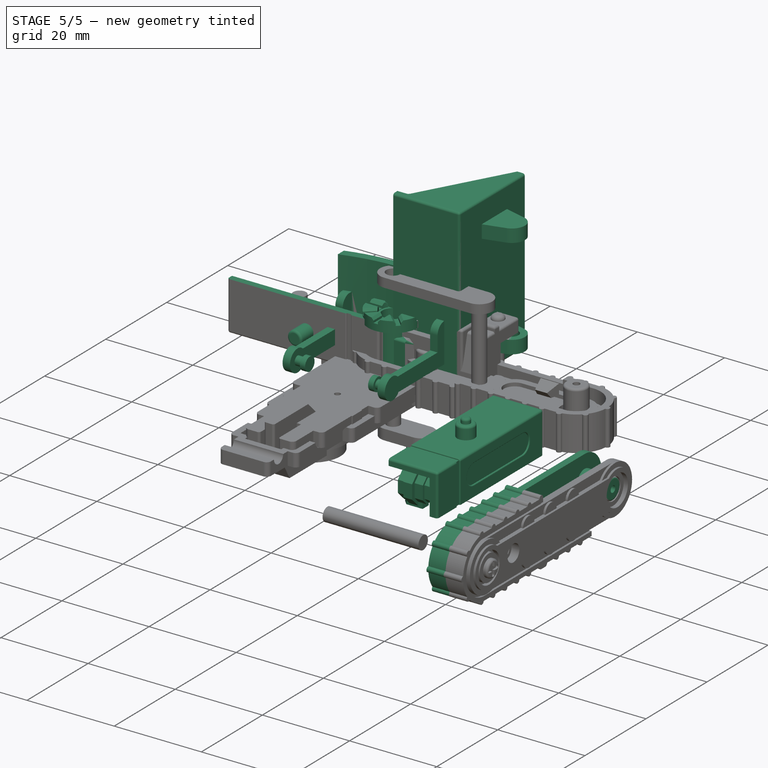
[diagram: stage 5 of 5 — iso view after this stage's code; geometry added in this stage tinted green]
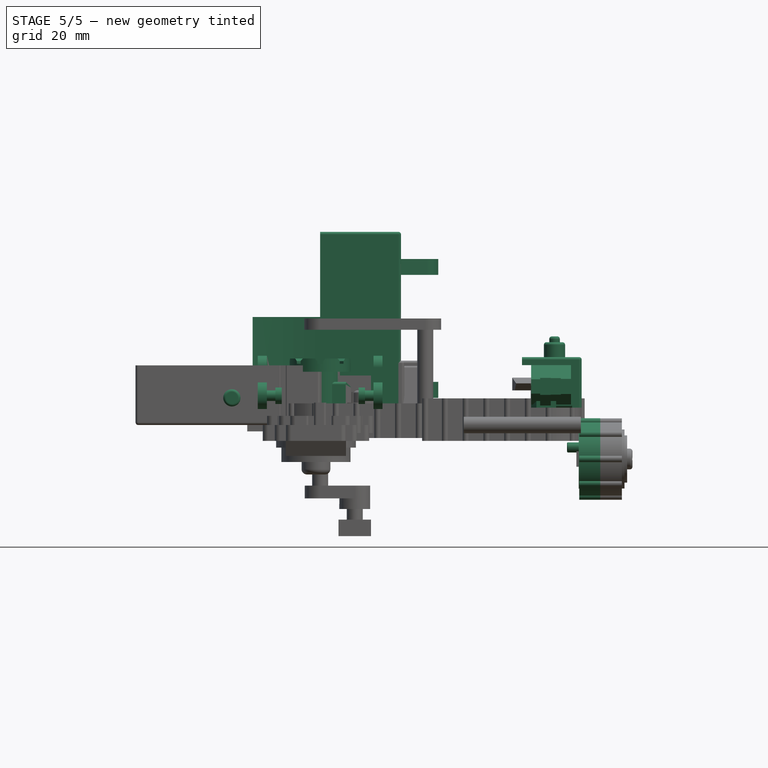
[diagram: stage 5 of 5 — front view after this stage's code; geometry added in this stage tinted green]
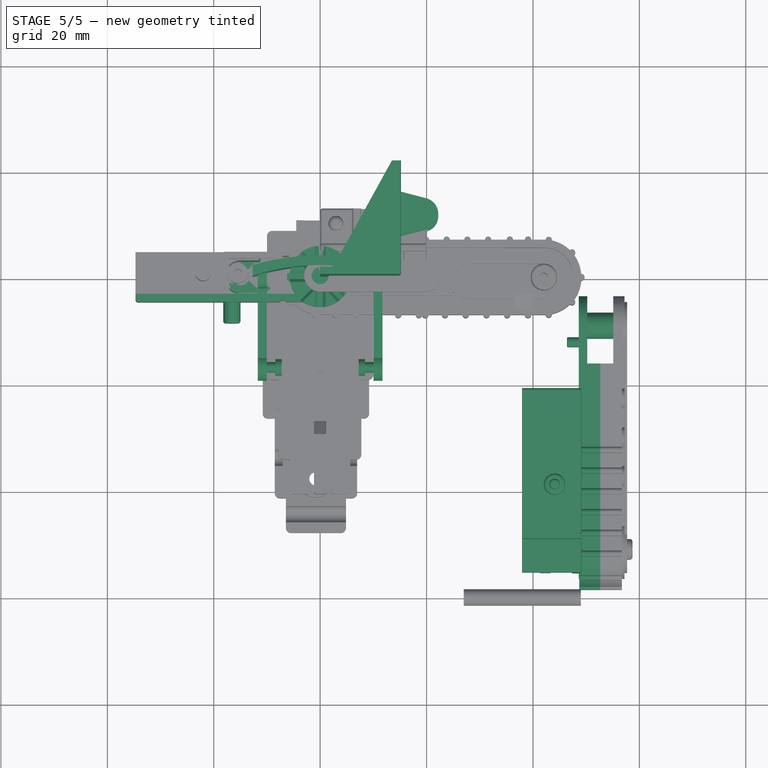
[diagram: stage 5 of 5 — top view after this stage's code; geometry added in this stage tinted green]
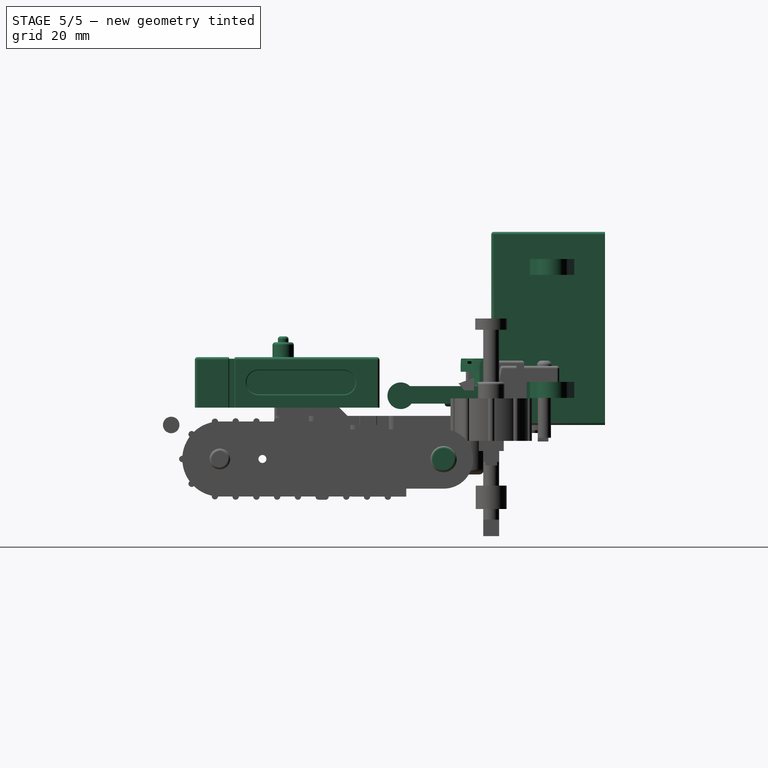
[diagram: stage 5 of 5 — right view after this stage's code; geometry added in this stage tinted green]
FEATURE [Sketcher::SketchObject] Sketch
  ArcFitTolerance = 1e-06
  AttachmentSupport = -> [XY_Plane]
  FullyConstrained = true
  MakeInternals = false
  MapMode = 5
  sketch-geometry (8):
    g0: LineSegment StartX=0 StartY=4 StartZ=0 EndX=-11.3 EndY=4 EndZ=0
    g1: LineSegment StartX=-11.3 StartY=4 StartZ=0 EndX=-11.6 EndY=3.15 EndZ=0
    g2: LineSegment StartX=-11.6 StartY=3.15 StartZ=0 EndX=-14.9 EndY=3.15 EndZ=0
    g3: ArcOfCircle CenterX=-14.9 CenterY=0 CenterZ=0 NormalX=0 NormalY=0 NormalZ=1 AngleXU=0 Radius=3.15 StartAngle=1.5708 EndAngle=4.71239
    g4: LineSegment StartX=-14.9 StartY=-3.15 StartZ=0 EndX=-11.6 EndY=-3.15 EndZ=0
    g5: LineSegment StartX=-11.6 StartY=-3.15 StartZ=0 EndX=-11.3 EndY=-4 EndZ=0
    g6: LineSegment StartX=-11.3 StartY=-4 StartZ=0 EndX=0 EndY=-4 EndZ=0
    g7: LineSegment StartX=0 StartY=-4 StartZ=0 EndX=0 EndY=4 EndZ=0
  constraints (25):
    c: Horizontal(g0)
    c: Coincident(g1,g0)
    c: Coincident(g2,g1)
    c: Horizontal(g2)
    c: PointOnObject(g3,g-1)
    c: Coincident(g3,g2)
    c: Coincident(g4,g3)
    c: Horizontal(g4)
    c: Coincident(g5,g4)
    c: Coincident(g6,g5)
    c: Horizontal(g6)
    c: Coincident(g7,g6)
    c: Coincident(g7,g0)
    c: Vertical(g7)
    c: DistanceY(g6,g0) = 8
    c: DistanceY(g6,g-1) = 4
    c: DistanceX(g0,g0) = 11.3
    c: DistanceX(g5,g6) = 11.3
    c: PointOnObject(g-1,g7)
    c: DistanceY(g3,g2) = 6.3
    c: DistanceX(g1,g0) = 11.6
    c: DistanceX(g4,g6) = 11.6
    c: DistanceX(g2,g0) = 14.9
    c: DistanceX(g3,g6) = 14.9
    c: Radius(g3) = 3.15
FEATURE [PartDesign::Pad] Pad
  Direction = (0,0,1)
  Length = 4.1
  Length2 = 10
  Profile = -> Sketch
  ReferenceAxis = -> Sketch [N_Axis]
  Refine = true
  Suppressed = false
  Type = 0
FEATURE [Sketcher::SketchObject] Sketch001
  ArcFitTolerance = 1e-06
  FullyConstrained = true
  MakeInternals = false
  MapMode = 5
  Placement = pos=(0,0,4.1) rot=(0,0,1;0rad)
  sketch-geometry (2):
    g0: Circle CenterX=-14.9 CenterY=0 CenterZ=0 NormalX=0 NormalY=0 NormalZ=1 AngleXU=0 Radius=1.55
    g1: Circle CenterX=-8.4 CenterY=0 CenterZ=0 NormalX=0 NormalY=0 NormalZ=1 AngleXU=0 Radius=1
  constraints (6):
    c: PointOnObject(g0,g-1)
    c: PointOnObject(g1,g-1)
    c: Diameter(g0) = 3.1
    c: Diameter(g1) = 2
    c: DistanceX(g0,g-1) = 14.9
    c: DistanceX(g1,g-1) = 8.4
FEATURE [Sketcher::SketchObject] Sketch002
  ArcFitTolerance = 1e-06
  FullyConstrained = true
  MakeInternals = false
  MapMode = 5
  Placement = pos=(0,0,4.1) rot=(0,0,1;0rad)
  sketch-geometry (1):
    g0: Circle CenterX=-8.4 CenterY=0 CenterZ=0 NormalX=0 NormalY=0 NormalZ=1 AngleXU=0 Radius=2.2
  constraints (3):
    c: PointOnObject(g0,g-1)
    c: DistanceX(g0,g-1) = 8.4
    c: Diameter(g0) = 4.4
FEATURE [PartDesign::Pocket] Pocket
  BaseFeature = -> Pad
  Direction = (0,0,-1)
  Length = 5
  Length2 = 5
  Profile = -> Sketch001
  ReferenceAxis = -> Sketch001 [N_Axis]
  Refine = true
  Suppressed = false
  Type = 0
FEATURE [PartDesign::Pocket] Pocket001
  BaseFeature = -> Pocket
  Direction = (0,0,-1)
  Length = 1.25
  Length2 = 5
  Profile = -> Sketch002
  ReferenceAxis = -> Sketch002 [N_Axis]
  Refine = true
  Suppressed = false
  Type = 0
FEATURE [Sketcher::SketchObject] Sketch003
  ArcFitTolerance = 1e-06
  AttachmentSupport = -> [Pocket001]
  FullyConstrained = true
  MakeInternals = false
  MapMode = 5
  Placement = pos=(0,0,0) rot=(1,0,0;3.14159rad)
  sketch-geometry (1):
    g0: Circle CenterX=-8.4 CenterY=0 CenterZ=0 NormalX=0 NormalY=0 NormalZ=1 AngleXU=0 Radius=2.25
  constraints (3):
    c: PointOnObject(g0,g-1)
    c: DistanceX(g0,g-1) = 8.4
    c: Diameter(g0) = 4.5
FEATURE [Sketcher::SketchObject] Sketch004
  ArcFitTolerance = 1e-06
  AttachmentSupport = -> [Pocket001]
  FullyConstrained = true
  MakeInternals = false
  MapMode = 5
  Placement = pos=(0,0,0) rot=(1,0,0;3.14159rad)
  sketch-geometry (1):
    g0: Circle CenterX=-4.4 CenterY=0 CenterZ=0 NormalX=0 NormalY=0 NormalZ=1 AngleXU=0 Radius=1.05
  constraints (3):
    c: PointOnObject(g0,g-1)
    c: Diameter(g0) = 2.1
    c: DistanceX(g0,g-1) = 4.4
FEATURE [PartDesign::Pocket] Pocket002
  BaseFeature = -> Pocket001
  Direction = (0,0,1)
  Length = 3.5
  Length2 = 5
  Profile = -> Sketch004
  ReferenceAxis = -> Sketch004 [N_Axis]
  Refine = true
  Suppressed = false
  Type = 0
FEATURE [PartDesign::Pocket] Pocket003
  BaseFeature = -> Pocket002
  Direction = (0,0,1)
  Length = 1.25
  Length2 = 5
  Profile = -> Sketch003
  ReferenceAxis = -> Sketch003 [N_Axis]
  Refine = true
  Suppressed = false
  Type = 0
FEATURE [Sketcher::SketchObject] Sketch005
  ArcFitTolerance = 1e-06
  AttachmentSupport = -> [Pocket003]
  FullyConstrained = true
  MakeInternals = false
  MapMode = 5
  Placement = pos=(0,0,0) rot=(1,0,0;3.14159rad)
  sketch-geometry (4):
    g0: LineSegment StartX=0 StartY=2 StartZ=0 EndX=-4.4 EndY=2 EndZ=0
    g1: ArcOfCircle CenterX=-4.39999 CenterY=0 CenterZ=0 NormalX=0 NormalY=0 NormalZ=1 AngleXU=0 Radius=2 StartAngle=1.5708 EndAngle=4.71238
    g2: LineSegment StartX=-4.4 StartY=-2 StartZ=0 EndX=0 EndY=-2 EndZ=0
    g3: LineSegment StartX=0 StartY=2 StartZ=0 EndX=0 EndY=-2 EndZ=0
  constraints (13):
    c: PointOnObject(g0,g-2)
    c: Horizontal(g0)
    c: PointOnObject(g1,g-1)
    c: Coincident(g1,g0)
    c: Coincident(g2,g1)
    c: PointOnObject(g2,g-2)
    c: Horizontal(g2)
    c: Coincident(g3,g0)
    c: Coincident(g3,g2)
    c: DistanceY(g2,g0) = 4
    c: DistanceX(g0,g0) = 4.4
    c: DistanceX(g1,g2) = 4.4
    c: Diameter(g1) = 4
FEATURE [Sketcher::SketchObject] Sketch012
  ArcFitTolerance = 1e-06
  AttachmentSupport = -> [XY_Plane003]
  FullyConstrained = true
  MakeInternals = false
  MapMode = 5
  sketch-geometry (4):
    g0: LineSegment StartX=-34.7 StartY=4.75 StartZ=0 EndX=-34.7 EndY=-4.75 EndZ=0
    g1: LineSegment StartX=-34.7 StartY=-4.75 StartZ=0 EndX=0 EndY=-4.75 EndZ=0
    g2: LineSegment StartX=0 StartY=-4.75 StartZ=0 EndX=0 EndY=4.75 EndZ=0
    g3: LineSegment StartX=0 StartY=4.75 StartZ=0 EndX=-34.7 EndY=4.75 EndZ=0
  constraints (12):
    c: Coincident(g0,g1)
    c: Coincident(g1,g2)
    c: Coincident(g2,g3)
    c: Coincident(g3,g0)
    c: Vertical(g0)
    c: Vertical(g2)
    c: Horizontal(g1)
    c: Horizontal(g3)
    c: PointOnObject(g1,g-2)
    c: DistanceX(g3,g3) = 34.7
    c: DistanceY(g0,g0) = 9.5
    c: DistanceY(g-1,g2) = 4.75
FEATURE [PartDesign::Pad] Pad002
  Direction = (0,0,1)
  Length = 10.2
  Length2 = 10
  Profile = -> Sketch012
  ReferenceAxis = -> Sketch012 [N_Axis]
  Refine = true
  Suppressed = false
  Type = 0
FEATURE [Sketcher::SketchObject] Sketch013
  ArcFitTolerance = 1e-06
  AttachmentSupport = -> [Pad002]
  ExternalGeometry = -> [Pad002]
  FullyConstrained = true
  MakeInternals = false
  MapMode = 5
  Placement = pos=(0,0,10.2) rot=(0,0,1;0rad)
  sketch-geometry (4):
    g0: LineSegment StartX=-34.7 StartY=4.75 StartZ=0 EndX=-34.7 EndY=-3.25 EndZ=0
    g1: LineSegment StartX=-34.7 StartY=-3.25 StartZ=0 EndX=0 EndY=-3.25 EndZ=0
    g2: LineSegment StartX=0 StartY=-3.25 StartZ=0 EndX=0 EndY=4.75 EndZ=0
    g3: LineSegment StartX=0 StartY=4.75 StartZ=0 EndX=-34.7 EndY=4.75 EndZ=0
  constraints (11):
    c: Coincident(g0,g1)
    c: Coincident(g1,g2)
    c: Coincident(g2,g3)
    c: Coincident(g3,g0)
    c: Vertical(g0)
    c: Vertical(g2)
    c: Horizontal(g1)
    c: Horizontal(g3)
    c: Coincident(g0,g-3)
    c: PointOnObject(g1,g-4)
    c: DistanceY(g2,g2) = 8
FEATURE [PartDesign::Pocket] Pocket010
  BaseFeature = -> Pad002
  Direction = (0,0,-1)
  Length = 8.4
  Length2 = 5
  Profile = -> Sketch013
  ReferenceAxis = -> Sketch013 [N_Axis]
  Refine = true
  Suppressed = false
  Type = 0
FEATURE [Sketcher::SketchObject] Sketch014
  ArcFitTolerance = 1e-06
  AttachmentSupport = -> [Pocket010]
  ExternalGeometry = -> [Pocket010]
  FullyConstrained = true
  MakeInternals = false
  MapMode = 5
  Placement = pos=(0,0,1.8) rot=(0,0,1;0rad)
  sketch-geometry (4):
    g0: LineSegment StartX=-18.4 StartY=4.75 StartZ=0 EndX=-18.4 EndY=-3.25 EndZ=0
    g1: LineSegment StartX=-18.4 StartY=-3.25 StartZ=0 EndX=-7.1 EndY=-3.25 EndZ=0
    g2: LineSegment StartX=-7.1 StartY=-3.25 StartZ=0 EndX=-7.1 EndY=4.75 EndZ=0
    g3: LineSegment StartX=-7.1 StartY=4.75 StartZ=0 EndX=-18.4 EndY=4.75 EndZ=0
  constraints (12):
    c: Coincident(g0,g1)
    c: Coincident(g1,g2)
    c: Coincident(g2,g3)
    c: Coincident(g3,g0)
    c: Vertical(g0)
    c: Vertical(g2)
    c: Horizontal(g1)
    c: Horizontal(g3)
    c: DistanceX(g1,g-1) = 7.1
    c: DistanceX(g3,g3) = 11.3
    c: PointOnObject(g2,g-3)
    c: PointOnObject(g1,g-4)
FEATURE [PartDesign::Pad] Pad003
  BaseFeature = -> Pocket010
  Direction = (0,0,1)
  Length = 3.8
  Length2 = 10
  Profile = -> Sketch014
  ReferenceAxis = -> Sketch014 [N_Axis]
  Refine = true
  Suppressed = false
  Type = 0
FEATURE [Sketcher::SketchObject] Sketch015
  ArcFitTolerance = 1e-06
  AttachmentSupport = -> [Pad003]
  ExternalGeometry = -> [Pad003]
  FullyConstrained = true
  MakeInternals = false
  MapMode = 5
  Placement = pos=(0,0,1.8) rot=(0,0,1;0rad)
  sketch-geometry (1):
    g0: Circle CenterX=-22 CenterY=0.75 CenterZ=0 NormalX=0 NormalY=0 NormalZ=1 AngleXU=0 Radius=1.5
  constraints (3):
    c: Diameter(g0) = 3
    c: DistanceX(g-3,g0) = 12.7
    c: DistanceY(g0,g-3) = 4
FEATURE [PartDesign::Pad] Pad004
  BaseFeature = -> Pad003
  Direction = (0,0,1)
  Length = 7.5
  Length2 = 10
  Profile = -> Sketch015
  ReferenceAxis = -> Sketch015 [N_Axis]
  Refine = true
  Suppressed = false
  Type = 0
FEATURE [PartDesign::Fillet] Fillet002
  Base = -> Pad004 [Edge7,Edge2,Edge1,Edge10,Edge8]
  BaseFeature = -> Pad004
  Radius = 0.5
  Refine = true
  SupportTransform = false
  Suppressed = false
  UseAllEdges = false
FEATURE [Sketcher::SketchObject] Sketch016
  ArcFitTolerance = 1e-06
  AttachmentSupport = -> [Fillet002]
  ExternalGeometry = -> [Fillet002]
  FullyConstrained = true
  MakeInternals = false
  MapMode = 5
  Placement = pos=(0,0,5.6) rot=(0,0,1;0rad)
  sketch-geometry (4):
    g0: LineSegment StartX=-17.15 StartY=3.5 StartZ=0 EndX=-17.15 EndY=-3.25 EndZ=0
    g1: LineSegment StartX=-17.15 StartY=-3.25 StartZ=0 EndX=-8.35 EndY=-3.25 EndZ=0
    g2: LineSegment StartX=-8.35 StartY=-3.25 StartZ=0 EndX=-8.35 EndY=3.5 EndZ=0
    g3: LineSegment StartX=-8.35 StartY=3.5 StartZ=0 EndX=-17.15 EndY=3.5 EndZ=0
  constraints (12):
    c: Coincident(g0,g1)
    c: Coincident(g1,g2)
    c: Coincident(g2,g3)
    c: Coincident(g3,g0)
    c: Vertical(g0)
    c: Vertical(g2)
    c: Horizontal(g1)
    c: Horizontal(g3)
    c: DistanceY(g0,g-3) = 1.25
    c: PointOnObject(g0,g-4)
    c: DistanceX(g2,g-3) = 1.25
    c: DistanceX(g-3,g0) = 1.25
FEATURE [PartDesign::Pocket] Pocket011
  BaseFeature = -> Fillet002
  Direction = (0,0,-1)
  Length = 3.81
  Length2 = 5
  Profile = -> Sketch016
  ReferenceAxis = -> Sketch016 [N_Axis]
  Refine = true
  Suppressed = false
  Type = 0
FEATURE [Sketcher::SketchObject] Sketch017
  ArcFitTolerance = 1e-06
  AttachmentSupport = -> [Pocket011]
  ExternalGeometry = -> [Pocket011]
  FullyConstrained = false
  MakeInternals = false
  MapMode = 5
  Placement = pos=(0,0,1.79) rot=(0,0,1;0rad)
  sketch-geometry (4):
    g0: LineSegment StartX=-8.35 StartY=2.75 StartZ=0 EndX=-11.5 EndY=2.75 EndZ=0
    g1: ArcOfCircle CenterX=-11.5 CenterY=0.75 CenterZ=0 NormalX=0 NormalY=0 NormalZ=1 AngleXU=0 Radius=2 StartAngle=1.5708 EndAngle=4.71238
    g2: LineSegment StartX=-11.5 StartY=-1.25 StartZ=0 EndX=-8.35 EndY=-1.25 EndZ=0
    g3: LineSegment StartX=-8.35 StartY=-1.25 StartZ=0 EndX=-8.35 EndY=2.75 EndZ=0
  constraints (12):
    c: Horizontal(g0)
    c: Coincident(g1,g0)
    c: Coincident(g2,g1)
    c: Horizontal(g2)
    c: Coincident(g3,g2)
    c: Coincident(g3,g0)
    c: Vertical(g3)
    c: PointOnObject(g0,g-3)
    c: DistanceY(g2,g0) = 4
    c: DistanceY(g0,g-4) = 2
    c: Diameter(g1) = 4
    c: DistanceX(g0,g0) = 3.15
FEATURE [Sketcher::SketchObject] Sketch018
  ArcFitTolerance = 1e-06
  AttachmentSupport = -> [Pocket011]
  ExternalGeometry = -> [Pocket011]
  FullyConstrained = true
  MakeInternals = false
  MapMode = 5
  Placement = pos=(0,0,5.6) rot=(0,0,1;0rad)
  sketch-geometry (4):
    g0: LineSegment StartX=-8.35 StartY=2.75 StartZ=0 EndX=-8.35 EndY=-1.25 EndZ=0
    g1: LineSegment StartX=-8.35 StartY=-1.25 StartZ=0 EndX=-7.1 EndY=-1.25 EndZ=0
    g2: LineSegment StartX=-7.1 StartY=-1.25 StartZ=0 EndX=-7.1 EndY=2.75 EndZ=0
    g3: LineSegment StartX=-7.1 StartY=2.75 StartZ=0 EndX=-8.35 EndY=2.75 EndZ=0
  constraints (12):
    c: Coincident(g0,g1)
    c: Coincident(g1,g2)
    c: Coincident(g2,g3)
    c: Coincident(g3,g0)
    c: Vertical(g0)
    c: Vertical(g2)
    c: Horizontal(g1)
    c: Horizontal(g3)
    c: DistanceY(g2,g-3) = 2
    c: PointOnObject(g0,g-4)
    c: PointOnObject(g2,g-5)
    c: DistanceY(g1,g2) = 4
FEATURE [PartDesign::Pocket] Pocket012
  BaseFeature = -> Pocket011
  Direction = (0,0,-1)
  Length = 1.25
  Length2 = 5
  Profile = -> Sketch018
  ReferenceAxis = -> Sketch018 [N_Axis]
  Refine = true
  Suppressed = false
  Type = 0
FEATURE [PartDesign::Pocket] Pocket013
  BaseFeature = -> Pocket003
  Direction = (0,0,1)
  Length = 1.25
  Length2 = 5
  Profile = -> Sketch005
  ReferenceAxis = -> Sketch005 [N_Axis]
  Refine = true
  Suppressed = false
  Type = 0
FEATURE [PartDesign::Pad] Pad005
  BaseFeature = -> Pocket012
  Direction = (0,0,1)
  Length = 2.56
  Length2 = 10
  Profile = -> Sketch017
  ReferenceAxis = -> Sketch017 [N_Axis]
  Refine = true
  Suppressed = false
  Type = 0
FEATURE [Sketcher::SketchObject] Sketch019
  ArcFitTolerance = 1e-06
  AttachmentSupport = -> [Pad005]
  ExternalGeometry = -> [Pad005]
  FullyConstrained = true
  MakeInternals = false
  MapMode = 5
  Placement = pos=(0,0,1.79) rot=(0,0,1;0rad)
  sketch-geometry (1):
    g0: Circle CenterX=-15.5 CenterY=0.75 CenterZ=0 NormalX=0 NormalY=0 NormalZ=1 AngleXU=0 Radius=1.9
  constraints (3):
    c: DistanceY(g0,g-3) = 4
    c: Diameter(g0) = 3.8
    c: DistanceX(g-5,g0) = 1.65
FEATURE [PartDesign::Pad] Pad006
  BaseFeature = -> Pad005
  Direction = (0,0,1)
  Length = 5
  Length2 = 10
  Profile = -> Sketch019
  ReferenceAxis = -> Sketch019 [N_Axis]
  Refine = true
  Suppressed = false
  Type = 0
FEATURE [Sketcher::SketchObject] Sketch020
  ArcFitTolerance = 1e-06
  AttachmentSupport = -> [Pad006]
  ExternalGeometry = -> [Pad006]
  FullyConstrained = true
  MakeInternals = false
  MapMode = 5
  Placement = pos=(0,0,4.35) rot=(0,0,1;0rad)
  sketch-geometry (1):
    g0: Circle CenterX=-11.5 CenterY=0.75 CenterZ=0 NormalX=0 NormalY=0 NormalZ=1 AngleXU=0 Radius=1.05
  constraints (3):
    c: DistanceY(g0,g-4) = 2
    c: DistanceX(g0,g-3) = 4.4
    c: Diameter(g0) = 2.1
FEATURE [PartDesign::Pocket] Pocket014
  BaseFeature = -> Pad006
  Direction = (0,0,-1)
  Length = 2.56
  Length2 = 5
  Profile = -> Sketch020
  ReferenceAxis = -> Sketch020 [N_Axis]
  Refine = true
  Suppressed = false
  Type = 0
FEATURE [Sketcher::SketchObject] Sketch021
  ArcFitTolerance = 1e-06
  AttachmentSupport = -> [Pocket014]
  ExternalGeometry = -> [Pocket014]
  FullyConstrained = true
  MakeInternals = false
  MapMode = 5
  Placement = pos=(0,0,6.79) rot=(0,0,1;0rad)
  sketch-geometry (1):
    g0: Circle CenterX=-15.5 CenterY=0.75 CenterZ=0 NormalX=0 NormalY=0 NormalZ=1 AngleXU=0 Radius=0.75
  constraints (2):
    c: Diameter(g0) = 1.5
    c: Coincident(g0,g-3)
FEATURE [PartDesign::Pocket] Pocket015
  BaseFeature = -> Pocket014
  Direction = (0,0,-1)
  Length = 5
  Length2 = 5
  Profile = -> Sketch021
  ReferenceAxis = -> Sketch021 [N_Axis]
  Refine = true
  Suppressed = false
  Type = 0
FEATURE [Sketcher::SketchObject] Sketch022
  ArcFitTolerance = 1e-06
  AttachmentSupport = -> [Pocket015]
  ExternalGeometry = -> [Pocket015]
  FullyConstrained = true
  MakeInternals = false
  MapMode = 5
  Placement = pos=(0,0,0) rot=(1,0,0;3.14159rad)
  sketch-geometry (8):
    g0: ArcOfCircle CenterX=-27.95 CenterY=0 CenterZ=0 NormalX=0 NormalY=0 NormalZ=1 AngleXU=0 Radius=2.25 StartAngle=1.5708 EndAngle=4.71239
    g1: ArcOfCircle CenterX=-11.95 CenterY=1e-16 CenterZ=0 NormalX=0 NormalY=0 NormalZ=1 AngleXU=0 Radius=2.25 StartAngle=4.71239 EndAngle=7.85398
    g2: LineSegment StartX=-27.95 StartY=2.25 StartZ=0 EndX=-11.95 EndY=2.25 EndZ=0
    g3: LineSegment StartX=-27.95 StartY=-2.25 StartZ=0 EndX=-11.95 EndY=-2.25 EndZ=0
    g4: LineSegment StartX=-7.45 StartY=4.75 StartZ=0 EndX=-7.45 EndY=-4.75 EndZ=0
    g5: LineSegment StartX=-7.45 StartY=-4.75 StartZ=0 EndX=-6.45 EndY=-4.75 EndZ=0
    g6: LineSegment StartX=-6.45 StartY=-4.75 StartZ=0 EndX=-6.45 EndY=4.75 EndZ=0
    g7: LineSegment StartX=-6.45 StartY=4.75 StartZ=0 EndX=-7.45 EndY=4.75 EndZ=0
  constraints (22):
    c: Tangent(g0,g2) = 1.5708
    c: Tangent(g0,g3) = -1.5708
    c: Tangent(g1,g2) = 1.5708
    c: Tangent(g1,g3) = -1.5708
    c: Equal(g0,g1)
    c: Horizontal(g3)
    c: PointOnObject(g0,g-1)
    c: Diameter(g0) = 4.5
    c: DistanceX(g-3,g0) = 6.75
    c: DistanceX(g0,g1) = 16
    c: Coincident(g4,g5)
    c: Coincident(g5,g6)
    c: Coincident(g6,g7)
    c: Coincident(g7,g4)
    c: Vertical(g4)
    c: Vertical(g6)
    c: Horizontal(g5)
    c: Horizontal(g7)
    c: PointOnObject(g6,g-4)
    c: PointOnObject(g5,g-5)
    c: DistanceX(g1,g4) = 4.5
    c: DistanceX(g4,g6) = 1
FEATURE [PartDesign::Pocket] Pocket016
  BaseFeature = -> Pocket015
  Direction = (0,0,1)
  Length = 0.3
  Length2 = 5
  Profile = -> Sketch022
  ReferenceAxis = -> Sketch022 [N_Axis]
  Refine = true
  Suppressed = false
  Type = 0
FEATURE [Sketcher::SketchObject] Sketch023
  ArcFitTolerance = 1e-06
  AttachmentSupport = -> [Pocket016]
  ExternalGeometry = -> [Pocket016]
  FullyConstrained = true
  MakeInternals = false
  MapMode = 5
  Placement = pos=(0,-4.75,0) rot=(1,0,0;1.5708rad)
  sketch-geometry (4):
    g0: LineSegment StartX=-7.45 StartY=10.2 StartZ=0 EndX=-7.45 EndY=0 EndZ=0
    g1: LineSegment StartX=-7.45 StartY=0 StartZ=0 EndX=-6.45 EndY=0 EndZ=0
    g2: LineSegment StartX=-6.45 StartY=0 StartZ=0 EndX=-6.45 EndY=10.2 EndZ=0
    g3: LineSegment StartX=-6.45 StartY=10.2 StartZ=0 EndX=-7.45 EndY=10.2 EndZ=0
  constraints (11):
    c: Coincident(g0,g1)
    c: Coincident(g1,g2)
    c: Coincident(g2,g3)
    c: Coincident(g3,g0)
    c: Vertical(g0)
    c: Vertical(g2)
    c: Horizontal(g1)
    c: Horizontal(g3)
    c: DistanceX(g3,g3) = 1
    c: Coincident(g0,g-3)
    c: PointOnObject(g0,g-4)
FEATURE [PartDesign::Pocket] Pocket017
  BaseFeature = -> Pocket016
  Direction = (0,1,-2e-16)
  Length = 0.3
  Length2 = 5
  Profile = -> Sketch023
  ReferenceAxis = -> Sketch023 [N_Axis]
  Refine = true
  Suppressed = false
  Type = 0
FEATURE [PartDesign::Fillet] Fillet003
  Base = -> Pocket017 [Edge90,Edge91,Edge89,Edge92]
  BaseFeature = -> Pocket017
  Radius = 0.2
  Refine = true
  SupportTransform = false
  Suppressed = false
  UseAllEdges = false
FEATURE [PartDesign::Fillet] Fillet004
  Base = -> Fillet003 [Edge5,Edge94,Edge20,Edge19,Edge18,Edge17,Edge93,Edge97,Edge96,Edge95]
  BaseFeature = -> Fillet003
  Radius = 0.2
  Refine = true
  SupportTransform = false
  Suppressed = false
  UseAllEdges = false
FEATURE [Sketcher::SketchObject] Sketch036
  ArcFitTolerance = 1e-06
  AttachmentSupport = -> [Fillet004]
  ExternalGeometry = -> [Fillet004]
  FullyConstrained = true
  MakeInternals = false
  MapMode = 5
  Placement = pos=(0,-4.75,0) rot=(1,0,0;1.5708rad)
  sketch-geometry (1):
    g0: Circle CenterX=-16.6 CenterY=5.1 CenterZ=0 NormalX=0 NormalY=0 NormalZ=1 AngleXU=0 Radius=1.625
  constraints (3):
    c: Diameter(g0) = 3.25
    c: DistanceY(g0,g-3) = 5.1
    c: DistanceX(g0,g-4) = 16.6
FEATURE [PartDesign::Pad] Pad012
  BaseFeature = -> Fillet004
  Direction = (0,-1,2e-16)
  Length = 4
  Length2 = 10
  Profile = -> Sketch036
  ReferenceAxis = -> Sketch036 [N_Axis]
  Refine = true
  Suppressed = false
  Type = 0
FEATURE [PartDesign::Fillet] Fillet008
  Base = -> Pad012 [Edge116]
  BaseFeature = -> Pad012
  Radius = 0.5
  Refine = true
  SupportTransform = false
  Suppressed = false
  UseAllEdges = false
FEATURE [PartDesign::Fillet] Fillet
  Base = -> Pocket013 [Edge4,Vertex4,Edge14,Edge2,Edge27,Edge29,Edge30,Edge28,Edge37,Edge26,Edge10,Edge11,Edge1]
  BaseFeature = -> Pocket013
  Radius = 0.5
  Refine = true
  SupportTransform = false
  Suppressed = false
  UseAllEdges = false
FEATURE [PartDesign::Body] Body  label="Right_Forearm"
  AllowCompound = false
  Group = -> [Sketch,Pad,Sketch001,Sketch002,Pocket,Pocket001,Sketch003,Sketch004,Pocket002,Pocket003,Sketch005,Pocket013,Fillet]
  Origin = -> Origin
  Placement = pos=(32.8,-48.6,7.25) rot=(0.57735,-0.57735,0.57735;4.18879rad)
  Tip = -> Fillet
FEATURE [PartDesign::Fillet] Fillet020
  Base = -> Fillet008 [Edge89,Edge85]
  BaseFeature = -> Fillet008
  Radius = 0.5
  Refine = true
  SupportTransform = false
  Suppressed = false
  UseAllEdges = false
FEATURE [Sketcher::SketchObject] Sketch075
  ArcFitTolerance = 1e-06
  AttachmentSupport = -> [XY_Plane009]
  FullyConstrained = true
  MakeInternals = false
  MapMode = 5
  sketch-geometry (7):
    g0: ArcOfCircle CenterX=0 CenterY=0 CenterZ=0 NormalX=0 NormalY=0 NormalZ=1 AngleXU=0 Radius=3 StartAngle=1.5708 EndAngle=4.71239
    g1: LineSegment StartX=-6e-16 StartY=-3 StartZ=0 EndX=4.8 EndY=-3 EndZ=0
    g2: LineSegment StartX=4.8 StartY=-3 StartZ=0 EndX=6 EndY=-1.1 EndZ=0
    g3: LineSegment StartX=6 StartY=-1.1 StartZ=0 EndX=6 EndY=4.4 EndZ=0
    g4: LineSegment StartX=6 StartY=4.4 StartZ=0 EndX=3.6 EndY=4.4 EndZ=0
    g5: LineSegment StartX=3.6 StartY=4.4 StartZ=0 EndX=3.6 EndY=3 EndZ=0
    g6: LineSegment StartX=3.6 StartY=3 StartZ=0 EndX=0 EndY=3 EndZ=0
  constraints (20):
    c: Coincident(g0,g-1)
    c: PointOnObject(g0,g-2)
    c: PointOnObject(g0,g-2)
    c: Tangent(g1,g0) = -1.5708
    c: Coincident(g2,g1)
    c: Coincident(g3,g2)
    c: Vertical(g3)
    c: Coincident(g4,g3)
    c: Horizontal(g4)
    c: Coincident(g5,g4)
    c: Vertical(g5)
    c: Coincident(g6,g5)
    c: Coincident(g6,g0)
    c: Horizontal(g6)
    c: Diameter(g0) = 6
    c: DistanceX(g0,g2) = 6
    c: DistanceX(g4,g4) = 2.4
    c: DistanceY(g3,g3) = 5.5
    c: DistanceY(g5,g5) = 1.4
    c: DistanceX(g1,g2) = 1.2
FEATURE [PartDesign::Pad] Pad039
  Direction = (0,0,1)
  Length = 8.1
  Length2 = 10
  Profile = -> Sketch075
  ReferenceAxis = -> Sketch075 [N_Axis]
  Refine = true
  Suppressed = false
  Type = 0
FEATURE [PartDesign::Plane] DatumPlane008
  AttachmentSupport = -> [Pad039]
  Length = 60
  MapMode = 5
  Placement = pos=(0,0,8.1) rot=(0,0,1;0rad)
  ResizeMode = 0
  Width = 60
FEATURE [Sketcher::SketchObject] Sketch076
  ArcFitTolerance = 1e-06
  AttachmentSupport = -> [DatumPlane008]
  FullyConstrained = true
  MakeInternals = false
  MapMode = 5
  Placement = pos=(0,0,8.1) rot=(0,0,1;0rad)
  sketch-geometry (1):
    g0: Circle CenterX=0 CenterY=0 CenterZ=0 NormalX=0 NormalY=0 NormalZ=1 AngleXU=0 Radius=1.3
  constraints (2):
    c: Coincident(g0,g-1)
    c: Diameter(g0) = 2.6
FEATURE [PartDesign::Pocket] Pocket042
  BaseFeature = -> Pad039
  Direction = (0,0,-1)
  Length = 8.1
  Length2 = 5
  Profile = -> Sketch076
  ReferenceAxis = -> Sketch076 [N_Axis]
  Refine = true
  Suppressed = false
  Type = 0
FEATURE [PartDesign::Plane] DatumPlane009
  AttachmentSupport = -> [Pocket042]
  Length = 60
  MapMode = 5
  Placement = pos=(0,4.4,0) rot=(0,0.707107,0.707107;3.14159rad)
  ResizeMode = 0
  Width = 60
FEATURE [Sketcher::SketchObject] Sketch077
  ArcFitTolerance = 1e-06
  AttachmentSupport = -> [DatumPlane009]
  ExternalGeometry = -> [Pocket042]
  FullyConstrained = true
  MakeInternals = false
  MapMode = 5
  Placement = pos=(0,4.4,0) rot=(0,0.707107,0.707107;3.14159rad)
  sketch-geometry (6):
    g0: LineSegment StartX=-4.8 StartY=0 StartZ=0 EndX=-6 EndY=1.2 EndZ=0
    g1: LineSegment StartX=-4.8 StartY=0 StartZ=0 EndX=-6 EndY=0 EndZ=0
    g2: LineSegment StartX=-6 StartY=0 StartZ=0 EndX=-6 EndY=1.2 EndZ=0
    g3: LineSegment StartX=-4.8 StartY=8.1 StartZ=0 EndX=-6 EndY=6.9 EndZ=0
    g4: LineSegment StartX=-6 StartY=6.9 StartZ=0 EndX=-6 EndY=8.1 EndZ=0
    g5: LineSegment StartX=-6 StartY=8.1 StartZ=0 EndX=-4.8 EndY=8.1 EndZ=0
  constraints (14):
    c: Symmetric(g-4,g-4,g0)
    c: PointOnObject(g0,g-5)
    c: Coincident(g1,g0)
    c: Coincident(g1,g-5)
    c: Coincident(g2,g1)
    c: Coincident(g2,g0)
    c: Symmetric(g-3,g-3,g3)
    c: PointOnObject(g3,g-5)
    c: Coincident(g4,g3)
    c: Coincident(g4,g-5)
    c: Coincident(g5,g-5)
    c: Coincident(g5,g3)
    c: Angle(g5,g3) = 0.785398
    c: Angle(g0,g1) = 0.785398
FEATURE [PartDesign::Pocket] Pocket043
  BaseFeature = -> Pocket042
  Direction = (0,-1,2e-16)
  Length = 8
  Length2 = 5
  Profile = -> Sketch077
  ReferenceAxis = -> Sketch077 [N_Axis]
  Refine = true
  Suppressed = false
  Type = 0
FEATURE [PartDesign::Plane] DatumPlane010
  AttachmentSupport = -> [Pocket043]
  Length = 60
  MapMode = 5
  Placement = pos=(6,0,0) rot=(0.57735,0.57735,0.57735;2.0944rad)
  ResizeMode = 0
  Width = 60
FEATURE [Sketcher::SketchObject] Sketch078
  ArcFitTolerance = 1e-06
  AttachmentSupport = -> [DatumPlane010]
  ExternalGeometry = -> [Pocket043]
  FullyConstrained = true
  MakeInternals = false
  MapMode = 5
  Placement = pos=(6,0,0) rot=(0.57735,0.57735,0.57735;2.0944rad)
  sketch-geometry (1):
    g0: Circle CenterX=1.65 CenterY=4.05 CenterZ=0 NormalX=0 NormalY=0 NormalZ=1 AngleXU=0 Radius=1.5
  constraints (3):
    c: Diameter(g0) = 3
    c: DistanceX(g-3,g0) = 2.75
    c: DistanceY(g0,g-3) = 2.85
FEATURE [PartDesign::Pad] Pad040
  BaseFeature = -> Pocket043
  Direction = (1,0,0)
  Length = 1.8
  Length2 = 10
  Profile = -> Sketch078
  ReferenceAxis = -> Sketch078 [N_Axis]
  Refine = true
  Suppressed = false
  Type = 0
FEATURE [PartDesign::Plane] DatumPlane011
  AttachmentSupport = -> [Pad040]
  Length = 60
  MapMode = 5
  Placement = pos=(7.8,0,0) rot=(0.57735,0.57735,0.57735;2.0944rad)
  ResizeMode = 0
  Width = 60
FEATURE [Sketcher::SketchObject] Sketch079
  ArcFitTolerance = 1e-06
  AttachmentSupport = -> [DatumPlane011]
  ExternalGeometry = -> [Pad040]
  FullyConstrained = true
  MakeInternals = false
  MapMode = 5
  Placement = pos=(7.8,0,0) rot=(0.57735,0.57735,0.57735;2.0944rad)
  sketch-geometry (1):
    g0: Circle CenterX=1.65 CenterY=4.05 CenterZ=0 NormalX=0 NormalY=0 NormalZ=1 AngleXU=0 Radius=2.5
  constraints (2):
    c: Coincident(g0,g-3)
    c: Diameter(g0) = 5
FEATURE [PartDesign::Pad] Pad041
  BaseFeature = -> Pad040
  Direction = (1,0,0)
  Length = 1.4
  Length2 = 10
  Profile = -> Sketch079
  ReferenceAxis = -> Sketch079 [N_Axis]
  Refine = true
  Suppressed = false
  Type = 0
FEATURE [PartDesign::Fillet] Fillet024
  Base = -> Pad041 [Edge7,Edge15,Edge19,Edge4,Edge3,Edge6,Edge11,Edge9,Edge10]
  BaseFeature = -> Pad041
  Radius = 0.5
  Refine = true
  SupportTransform = false
  Suppressed = false
  UseAllEdges = false
FEATURE [App::Link] Link  label="Left_Shoulder"
  LinkPlacement = pos=(45.25,-15,11.3) rot=(-0.707107,0.707107,0;3.14159rad)
  LinkedObject = -> Body008
  Placement = pos=(45.25,-15,11.3) rot=(-0.707107,0.707107,0;3.14159rad)
FEATURE [Sketcher::SketchObject] Sketch122
  ArcFitTolerance = 1e-06
  AttachmentSupport = -> [XY_Plane013]
  FullyConstrained = true
  MakeInternals = false
  MapMode = 5
  sketch-geometry (4):
    g0: ArcOfCircle CenterX=-7.6e-15 CenterY=-39.3225 CenterZ=0 NormalX=0 NormalY=0 NormalZ=1 AngleXU=0 Radius=41.3225 StartAngle=1.2584 EndAngle=1.88319
    g1: LineSegment StartX=-12.7 StartY=0 StartZ=0 EndX=-12.7 EndY=2 EndZ=0
    g2: LineSegment StartX=12.7 StartY=0 StartZ=0 EndX=12.7 EndY=2 EndZ=0
    g3: ArcOfCircle CenterX=3e-15 CenterY=-41.3225 CenterZ=0 NormalX=0 NormalY=0 NormalZ=1 AngleXU=0 Radius=45.1456 StartAngle=1.28564 EndAngle=1.85596
  constraints (14):
    c: PointOnObject(g0,g-1)
    c: PointOnObject(g0,g-1)
    c: DistanceX(g0,g-1) = 12.7
    c: DistanceX(g-1,g0) = 12.7
    c: Distance(g-1,g0) = 2
    c: Coincident(g1,g0)
    c: Vertical(g1)
    c: Coincident(g2,g0)
    c: Vertical(g2)
    c: Coincident(g3,g1)
    c: Coincident(g3,g2)
    c: DistanceY(g1,g1) = 2
    c: DistanceY(g2,g2) = 2
    c: DistanceY(g3,g0) = 2
FEATURE [PartDesign::Pad] Pad060
  Direction = (0,0,1)
  Length = 20.3
  Length2 = 10
  Profile = -> Sketch122
  ReferenceAxis = -> Sketch122 [N_Axis]
  Refine = true
  Suppressed = false
  Type = 0
FEATURE [Sketcher::SketchObject] Sketch123
  ArcFitTolerance = 1e-06
  AttachmentSupport = -> [Pad060]
  ExternalGeometry = -> [Pad060]
  FullyConstrained = false
  MakeInternals = false
  MapMode = 5
  Placement = pos=(-12.7,0,0) rot=(0.57735,-0.57735,-0.57735;2.0944rad)
  sketch-geometry (8):
    g0: LineSegment StartX=0 StartY=4 StartZ=0 EndX=15 EndY=4 EndZ=0
    g1: LineSegment StartX=2.2 StartY=10.8 StartZ=0 EndX=2.2 EndY=7.3 EndZ=0
    g2: LineSegment StartX=-2 StartY=4 StartZ=0 EndX=-2 EndY=13 EndZ=0
    g3: LineSegment StartX=0 StartY=4 StartZ=0 EndX=-2 EndY=4 EndZ=0
    g4: LineSegment StartX=-2 StartY=13 StartZ=0 EndX=0 EndY=13 EndZ=0
    g5: ArcOfCircle CenterX=-2e-16 CenterY=10.8 CenterZ=0 NormalX=0 NormalY=0 NormalZ=1 AngleXU=0 Radius=2.2 StartAngle=0 EndAngle=1.5708
    g6: LineSegment StartX=2.2 StartY=7.3 StartZ=0 EndX=15.2739 EndY=7.3 EndZ=0
    g7: ArcOfCircle CenterX=17.0037 CenterY=5.49507 CenterZ=0 NormalX=0 NormalY=0 NormalZ=1 AngleXU=0 Radius=2.5 StartAngle=3.78263 EndAngle=8.61813
  constraints (25):
    c: PointOnObject(g0,g-2)
    c: DistanceY(g-1,g0) = 4
    c: Horizontal(g0)
    c: DistanceX(g0,g0) = 15
    c: Vertical(g1)
    c: DistanceX(g0,g1) = 2.2
    c: Vertical(g2)
    c: DistanceY(g2,g2) = 9
    c: DistanceY(g0,g2) = 0
    c: Coincident(g3,g0)
    c: Coincident(g3,g2)
    c: Coincident(g4,g2)
    c: PointOnObject(g4,g-2)
    c: Horizontal(g4)
    c: PointOnObject(g2,g-3)
    c: Coincident(g5,g4)
    c: Coincident(g5,g1)
    c: Radius(g5) = 2.2
    c: DistanceY(g5,g1) = 0
    c: Coincident(g6,g1)
    c: Horizontal(g6)
    c: DistanceY(g0,g1) = 3.3
    c: Coincident(g7,g6)
    c: Coincident(g7,g0)
    c: Diameter(g7) = 5
FEATURE [PartDesign::Pad] Pad061
  BaseFeature = -> Pad060
  Direction = (-1,0,0)
  Length = 25.4
  Length2 = 10
  Profile = -> Sketch123
  ReferenceAxis = -> Sketch123 [N_Axis]
  Refine = true
  Reversed = true
  Suppressed = false
  Type = 0
FEATURE [Sketcher::SketchObject] Sketch124
  ArcFitTolerance = 1e-06
  AttachmentSupport = -> [Pad061]
  ExternalGeometry = -> [Pad061]
  FullyConstrained = true
  MakeInternals = false
  MapMode = 5
  Placement = pos=(0,1.755e-13,4) rot=(1,0,0;3.14159rad)
  sketch-geometry (12):
    g0: ArcOfCircle CenterX=0 CenterY=39.3225 CenterZ=0 NormalX=0 NormalY=0 NormalZ=1 AngleXU=0 Radius=41.3225 StartAngle=4.39999 EndAngle=4.42469
    g1: LineSegment StartX=-11.725 StartY=19.6983 StartZ=0 EndX=-11.725 EndY=-0.301651 EndZ=0
    g2: LineSegment StartX=-12.7 StartY=0 StartZ=0 EndX=-12.7 EndY=19.6983 EndZ=0
    g3: LineSegment StartX=-11.725 StartY=19.6983 StartZ=0 EndX=-12.7 EndY=19.6983 EndZ=0
    g4: ArcOfCircle CenterX=0 CenterY=39.3225 CenterZ=0 NormalX=0 NormalY=0 NormalZ=1 AngleXU=0 Radius=41.3225 StartAngle=5.00009 EndAngle=5.02478
    g5: LineSegment StartX=11.725 StartY=-0.301651 StartZ=0 EndX=11.725 EndY=19.6983 EndZ=0
    g6: LineSegment StartX=12.7 StartY=0 StartZ=0 EndX=12.7 EndY=19.6983 EndZ=0
    g7: LineSegment StartX=12.7 StartY=19.6983 StartZ=0 EndX=11.725 EndY=19.6983 EndZ=0
    g8: ArcOfCircle CenterX=8.4e-15 CenterY=39.3225 CenterZ=0 NormalX=0 NormalY=0 NormalZ=1 AngleXU=0 Radius=41.3225 StartAngle=4.46734 EndAngle=4.95744
    g9: LineSegment StartX=-10.025 StartY=-0.765508 StartZ=0 EndX=-10.025 EndY=20.2345 EndZ=0
    g10: LineSegment StartX=10.025 StartY=-0.765508 StartZ=0 EndX=10.025 EndY=20.2345 EndZ=0
    g11: LineSegment StartX=-10.025 StartY=20.2345 StartZ=0 EndX=10.025 EndY=20.2345 EndZ=0
  constraints (36):
    c: Coincident(g0,g-3)
    c: PointOnObject(g0,g-3)
    c: DistanceX(g0,g0) = 0.975
    c: PointOnObject(g0,g-2)
    c: Coincident(g1,g0)
    c: DistanceY(g1,g1) = 20
    c: Coincident(g2,g0)
    c: Vertical(g2)
    c: Coincident(g3,g1)
    c: Coincident(g3,g2)
    c: Horizontal(g3)
    c: Coincident(g4,g-3)
    c: PointOnObject(g4,g-3)
    c: DistanceX(g4,g4) = 0.975
    c: PointOnObject(g4,g-2)
    c: Coincident(g5,g4)
    c: Vertical(g5)
    c: DistanceY(g5,g5) = 20
    c: Coincident(g6,g4)
    c: Vertical(g6)
    c: Coincident(g7,g6)
    c: Coincident(g7,g5)
    c: Horizontal(g7)
    c: Tangent(g8,g-3) = -1.5708
    c: PointOnObject(g8,g-3)
    c: Coincident(g9,g8)
    c: Vertical(g9)
    c: DistanceY(g9,g9) = 21
    c: Coincident(g10,g8)
    c: Vertical(g10)
    c: DistanceY(g10,g10) = 21
    c: Coincident(g11,g9)
    c: Coincident(g11,g10)
    c: DistanceX(g8,g4) = 1.7
    c: DistanceX(g0,g8) = 1.7
    c: Vertical(g1)
FEATURE [PartDesign::Pocket] Pocket067
  BaseFeature = -> Pad061
  Direction = (0,4.39e-14,1)
  Length = 9
  Length2 = 5
  Profile = -> Sketch124
  ReferenceAxis = -> Sketch124 [N_Axis]
  Refine = true
  Suppressed = false
  Type = 0
FEATURE [Sketcher::SketchObject] Sketch125
  ArcFitTolerance = 1e-06
  AttachmentSupport = -> [Pocket067]
  ExternalGeometry = -> [Pocket067]
  FullyConstrained = true
  MakeInternals = false
  MapMode = 5
  Placement = pos=(0,1.754e-13,4) rot=(0,0,1;0rad)
  sketch-geometry (12):
    g0: LineSegment StartX=11.725 StartY=-15 StartZ=0 EndX=11.725 EndY=-19.0074 EndZ=0
    g1: LineSegment StartX=11.725 StartY=-19.0074 StartZ=0 EndX=12.7 EndY=-19.0074 EndZ=0
    g2: LineSegment StartX=12.7 StartY=-19.0074 StartZ=0 EndX=12.7 EndY=-15 EndZ=0
    g3: LineSegment StartX=12.7 StartY=-15 StartZ=0 EndX=11.725 EndY=-15 EndZ=0
    g4: LineSegment StartX=10.025 StartY=-15 StartZ=0 EndX=-10.025 EndY=-15 EndZ=0
    g5: LineSegment StartX=-10.025 StartY=-15 StartZ=0 EndX=-10.025 EndY=-19.0074 EndZ=0
    g6: LineSegment StartX=-10.025 StartY=-19.0074 StartZ=0 EndX=10.025 EndY=-19.0074 EndZ=0
    g7: LineSegment StartX=10.025 StartY=-19.0074 StartZ=0 EndX=10.025 EndY=-15 EndZ=0
    g8: LineSegment StartX=-12.7 StartY=-19.0074 StartZ=0 EndX=-11.725 EndY=-19.0074 EndZ=0
    g9: LineSegment StartX=-11.725 StartY=-19.0074 StartZ=0 EndX=-11.725 EndY=-15 EndZ=0
    g10: LineSegment StartX=-11.725 StartY=-15 StartZ=0 EndX=-12.7 EndY=-15 EndZ=0
    g11: LineSegment StartX=-12.7 StartY=-15 StartZ=0 EndX=-12.7 EndY=-19.0074 EndZ=0
  constraints (30):
    c: Coincident(g0,g1)
    c: Coincident(g1,g2)
    c: Coincident(g2,g3)
    c: Coincident(g3,g0)
    c: Vertical(g0)
    c: Vertical(g2)
    c: Horizontal(g1)
    c: Horizontal(g3)
    c: Coincident(g0,g-5)
    c: Coincident(g1,g-6)
    c: Coincident(g4,g5)
    c: Coincident(g5,g6)
    c: Coincident(g6,g7)
    c: Coincident(g7,g4)
    c: Horizontal(g4)
    c: Horizontal(g6)
    c: Vertical(g5)
    c: Vertical(g7)
    c: Coincident(g4,g-3)
    c: Coincident(g5,g-4)
    c: Coincident(g8,g9)
    c: Coincident(g9,g10)
    c: Coincident(g10,g11)
    c: Coincident(g11,g8)
    c: Horizontal(g8)
    c: Horizontal(g10)
    c: Vertical(g9)
    c: Vertical(g11)
    c: Coincident(g8,g-8)
    c: Coincident(g9,g-7)
FEATURE [PartDesign::Pocket] Pocket068
  BaseFeature = -> Pocket067
  Direction = (0,-4.39e-14,-1)
  Length = 1.5
  Length2 = 5
  Profile = -> Sketch125
  ReferenceAxis = -> Sketch125 [N_Axis]
  Refine = true
  Suppressed = false
  Type = 0
FEATURE [Sketcher::SketchObject] Sketch126
  ArcFitTolerance = 1e-06
  AttachmentSupport = -> [Pocket068]
  ExternalGeometry = -> [Pocket068]
  FullyConstrained = true
  MakeInternals = false
  MapMode = 5
  Placement = pos=(10.025,0,0) rot=(0.57735,-0.57735,-0.57735;2.0944rad)
  sketch-geometry (1):
    g0: Circle CenterX=17.0037 CenterY=5.49507 CenterZ=0 NormalX=0 NormalY=0 NormalZ=1 AngleXU=0 Radius=1
  constraints (2):
    c: Coincident(g0,g-3)
    c: Diameter(g0) = 2
FEATURE [PartDesign::Pad] Pad062
  BaseFeature = -> Pocket068
  Direction = (-1,0,0)
  Length = 1.6
  Length2 = 10
  Profile = -> Sketch126
  ReferenceAxis = -> Sketch126 [N_Axis]
  Refine = true
  Suppressed = false
  Type = 0
FEATURE [Sketcher::SketchObject] Sketch127
  ArcFitTolerance = 1e-06
  AttachmentSupport = -> [Pad062]
  ExternalGeometry = -> [Pad062]
  FullyConstrained = true
  MakeInternals = false
  MapMode = 5
  Placement = pos=(-10.025,0,0) rot=(0.57735,0.57735,0.57735;2.0944rad)
  sketch-geometry (1):
    g0: Circle CenterX=-17.0037 CenterY=5.49507 CenterZ=0 NormalX=0 NormalY=0 NormalZ=1 AngleXU=0 Radius=1
  constraints (2):
    c: Coincident(g0,g-3)
    c: Diameter(g0) = 2
FEATURE [PartDesign::Pad] Pad063
  BaseFeature = -> Pad062
  Direction = (1,0,0)
  Length = 1.6
  Length2 = 10
  Profile = -> Sketch127
  ReferenceAxis = -> Sketch127 [N_Axis]
  Refine = true
  Suppressed = false
  Type = 0
FEATURE [Sketcher::SketchObject] Sketch128
  ArcFitTolerance = 1e-06
  AttachmentSupport = -> [Pad063]
  ExternalGeometry = -> [Pad063]
  FullyConstrained = true
  MakeInternals = false
  MapMode = 5
  Placement = pos=(-8.425,0,0) rot=(0.57735,0.57735,0.57735;2.0944rad)
  sketch-geometry (1):
    g0: Circle CenterX=-17.0037 CenterY=5.49507 CenterZ=0 NormalX=0 NormalY=0 NormalZ=1 AngleXU=0 Radius=1.55
  constraints (2):
    c: Coincident(g0,g-3)
    c: Diameter(g0) = 3.1
FEATURE [PartDesign::Pad] Pad064
  BaseFeature = -> Pad063
  Direction = (1,0,0)
  Length = 1.2
  Length2 = 10
  Profile = -> Sketch128
  ReferenceAxis = -> Sketch128 [N_Axis]
  Refine = true
  Suppressed = false
  Type = 0
FEATURE [Sketcher::SketchObject] Sketch129
  ArcFitTolerance = 1e-06
  AttachmentSupport = -> [Pad064]
  ExternalGeometry = -> [Pad064]
  FullyConstrained = true
  MakeInternals = false
  MapMode = 5
  Placement = pos=(8.425,0,0) rot=(0.57735,-0.57735,-0.57735;2.0944rad)
  sketch-geometry (1):
    g0: Circle CenterX=17.0037 CenterY=5.49507 CenterZ=0 NormalX=0 NormalY=0 NormalZ=1 AngleXU=0 Radius=1.55
  constraints (2):
    c: Coincident(g0,g-3)
    c: Diameter(g0) = 3.1
FEATURE [PartDesign::Pad] Pad065
  BaseFeature = -> Pad064
  Direction = (-1,0,0)
  Length = 1.2
  Length2 = 10
  Profile = -> Sketch129
  ReferenceAxis = -> Sketch129 [N_Axis]
  Refine = true
  Suppressed = false
  Type = 0
FEATURE [PartDesign::Fillet] Fillet036
  Base = -> Pocket088 [Edge90,Edge91,Edge89,Edge92]
  BaseFeature = -> Pocket088
  Radius = 0.2
  Refine = true
  SupportTransform = false
  Suppressed = false
  UseAllEdges = false
FEATURE [PartDesign::Fillet] Fillet037
  Base = -> Fillet036 [Edge5,Edge94,Edge20,Edge19,Edge18,Edge17,Edge93,Edge97,Edge96,Edge95]
  BaseFeature = -> Fillet036
  Radius = 0.2
  Refine = true
  SupportTransform = false
  Suppressed = false
  UseAllEdges = false
FEATURE [Sketcher::SketchObject] Sketch176
  ArcFitTolerance = 1e-06
  AttachmentSupport = -> [Fillet037]
  ExternalGeometry = -> [Fillet037]
  FullyConstrained = true
  MakeInternals = false
  MapMode = 5
  Placement = pos=(0,-4.75,0) rot=(1,0,0;1.5708rad)
  sketch-geometry (1):
    g0: Circle CenterX=-16.6 CenterY=5.1 CenterZ=0 NormalX=0 NormalY=0 NormalZ=1 AngleXU=0 Radius=2
  constraints (3):
    c: Diameter(g0) = 4
    c: DistanceY(g0,g-3) = 5.1
    c: DistanceX(g0,g-4) = 16.6
FEATURE [PartDesign::Pad] Pad092
  BaseFeature = -> Fillet037
  Direction = (0,-1,2e-16)
  Length = 2.8
  Length2 = 10
  Profile = -> Sketch176
  ReferenceAxis = -> Sketch176 [N_Axis]
  Refine = true
  Suppressed = false
  Type = 0
FEATURE [PartDesign::Fillet] Fillet038
  Base = -> Pad092 [Edge116]
  BaseFeature = -> Pad092
  Radius = 0.5
  Refine = true
  SupportTransform = false
  Suppressed = false
  UseAllEdges = false
FEATURE [PartDesign::Fillet] Fillet039
  Base = -> Fillet038 [Edge89,Edge85]
  BaseFeature = -> Fillet038
  Radius = 0.5
  Refine = true
  SupportTransform = false
  Suppressed = false
  UseAllEdges = false
FEATURE [Sketcher::SketchObject] Sketch178
  ArcFitTolerance = 1e-06
  AttachmentSupport = -> [Fillet039]
  ExternalGeometry = -> [Fillet039]
  FullyConstrained = true
  MakeInternals = false
  MapMode = 5
  Placement = pos=(0,-7.55,2e-15) rot=(1,0,0;1.5708rad)
  sketch-geometry (1):
    g0: Circle CenterX=-16.6 CenterY=5.1 CenterZ=0 NormalX=0 NormalY=0 NormalZ=1 AngleXU=0 Radius=1
  constraints (2):
    c: Coincident(g0,g-3)
    c: Diameter(g0) = 2
FEATURE [PartDesign::Pad] Pad093
  BaseFeature = -> Fillet039
  Direction = (0,-1,2e-16)
  Length = 1.1
  Length2 = 10
  Profile = -> Sketch178
  ReferenceAxis = -> Sketch178 [N_Axis]
  Refine = true
  Suppressed = false
  Type = 0
FEATURE [PartDesign::Fillet] Fillet040
  Base = -> Pad093 [Edge182]
  BaseFeature = -> Pad093
  Radius = 0.5
  Refine = true
  SupportTransform = false
  Suppressed = false
  UseAllEdges = false
FEATURE [App::Link] Link003  label="L_Fist"
  LinkPlacement = pos=(33,0,0) rot=(0,0,1;0rad)
  LinkedObject = -> Body004
  Placement = pos=(33,0,0) rot=(0,0,1;0rad)
FEATURE [Part::Mirroring] Part__Mirroring001  label="Left_Fist"
  Base = (0,0,0)
  Normal = (0,0,1)
  Placement = pos=(44.6,-11.2,7.25) rot=(0.58,-0.58,0.58;4.18879rad)
  Source = -> Link003
FEATURE [Sketcher::SketchObject] Sketch248
  ArcFitTolerance = 1e-06
  AttachmentSupport = -> [XY_Plane023]
  FullyConstrained = true
  MakeInternals = false
  MapMode = 5
  sketch-geometry (6):
    g0: LineSegment StartX=0 StartY=0 StartZ=0 EndX=0 EndY=1.4 EndZ=0
    g1: LineSegment StartX=0 StartY=1.4 StartZ=0 EndX=13.5 EndY=1.4 EndZ=0
    g2: LineSegment StartX=13.5 StartY=1.4 StartZ=0 EndX=13.5 EndY=21.4 EndZ=0
    g3: LineSegment StartX=13.5 StartY=21.4 StartZ=0 EndX=15.2 EndY=21.4 EndZ=0
    g4: LineSegment StartX=15.2 StartY=21.4 StartZ=0 EndX=15.2 EndY=0 EndZ=0
    g5: LineSegment StartX=15.2 StartY=0 StartZ=0 EndX=0 EndY=0 EndZ=0
  constraints (17):
    c: Coincident(g0,g-1)
    c: PointOnObject(g0,g-2)
    c: Coincident(g1,g0)
    c: Horizontal(g1)
    c: Coincident(g2,g1)
    c: Vertical(g2)
    c: Coincident(g3,g2)
    c: Horizontal(g3)
    c: Coincident(g4,g3)
    c: PointOnObject(g4,g-1)
    c: Vertical(g4)
    c: Coincident(g5,g4)
    c: Coincident(g5,g0)
    c: DistanceY(g0,g0) = 1.4
    c: DistanceX(g3,g3) = 1.7
    c: DistanceX(g1,g1) = 13.5
    c: DistanceY(g2,g2) = 20
FEATURE [PartDesign::Pad] Pad144
  Direction = (0,0,1)
  Length = 36.3
  Length2 = 10
  Profile = -> Sketch248
  ReferenceAxis = -> Sketch248 [N_Axis]
  Refine = true
  Suppressed = false
  Type = 0
FEATURE [Sketcher::SketchObject] Sketch249
  ArcFitTolerance = 1e-06
  AttachmentSupport = -> [Pad144]
  ExternalGeometry = -> [Pad144]
  FullyConstrained = true
  MakeInternals = false
  MapMode = 5
  Placement = pos=(0,0,36.3) rot=(0,0,1;0rad)
  sketch-geometry (4):
    g0: LineSegment StartX=15.2 StartY=15.6 StartZ=0 EndX=20.0363 EndY=14.3311 EndZ=0
    g1: LineSegment StartX=15.2 StartY=7.3 StartZ=0 EndX=20.0363 EndY=8.56892 EndZ=0
    g2: ArcOfCircle CenterX=19.2 CenterY=11.45 CenterZ=0 NormalX=0 NormalY=0 NormalZ=1 AngleXU=0 Radius=3 StartAngle=4.9949 EndAngle=7.57147
    g3: LineSegment StartX=15.2 StartY=7.3 StartZ=0 EndX=15.2 EndY=15.6 EndZ=0
  constraints (13):
    c: PointOnObject(g0,g-3)
    c: Coincident(g2,g0)
    c: Coincident(g2,g1)
    c: DistanceY(g1,g0) = 8.3
    c: Diameter(g2) = 6
    c: DistanceX(g0,g2) = 4
    c: DistanceX(g1,g0) = 0
    c: DistanceY(g0,g-3) = 5.8
    c: Distance(g0,g0) = 5
    c: Distance(g1,g1) = 5
    c: PointOnObject(g1,g-3)
    c: Coincident(g3,g1)
    c: Coincident(g3,g0)
FEATURE [PartDesign::Pad] Pad145
  BaseFeature = -> Pad144
  Direction = (0,0,1)
  Length = 36.3
  Length2 = 10
  Profile = -> Sketch249
  ReferenceAxis = -> Sketch249 [N_Axis]
  Refine = true
  Reversed = true
  Suppressed = false
  Type = 0
FEATURE [PartDesign::Pocket] Pocket111
  BaseFeature = -> Pad145
  Direction = (0,0,-1)
  Length = 28.2
  Length2 = 5
  Profile = -> Sketch249
  ReferenceAxis = -> Sketch249 [N_Axis]
  Refine = true
  Suppressed = false
  Type = 0
FEATURE [PartDesign::Pad] Pad146
  BaseFeature = -> Pocket111
  Direction = (0,0,1)
  Length = 8.1
  Length2 = 10
  Profile = -> Sketch249
  ReferenceAxis = -> Sketch249 [N_Axis]
  Refine = true
  Reversed = true
  Suppressed = false
  Type = 0
FEATURE [PartDesign::Pocket] Pocket112
  BaseFeature = -> Pad146
  Direction = (0,0,-1)
  Length = 5.1
  Length2 = 5
  Profile = -> Sketch249
  ReferenceAxis = -> Sketch249 [N_Axis]
  Refine = true
  Suppressed = false
  Type = 0
FEATURE [Sketcher::SketchObject] Sketch250
  ArcFitTolerance = 1e-06
  AttachmentSupport = -> [Pocket112]
  ExternalGeometry = -> [Pocket112]
  FullyConstrained = true
  MakeInternals = false
  MapMode = 5
  Placement = pos=(0,0,0) rot=(1,0,0;3.14159rad)
  sketch-geometry (4):
    g0: LineSegment StartX=20.0363 StartY=-8.56892 StartZ=0 EndX=15.2 EndY=-7.3 EndZ=0
    g1: LineSegment StartX=15.2 StartY=-7.3 StartZ=0 EndX=15.2 EndY=-15.6 EndZ=0
    g2: LineSegment StartX=15.2 StartY=-15.6 StartZ=0 EndX=20.0363 EndY=-14.3311 EndZ=0
    g3: ArcOfCircle CenterX=19.2 CenterY=-11.45 CenterZ=0 NormalX=0 NormalY=0 NormalZ=1 AngleXU=0 Radius=3 StartAngle=4.9949 EndAngle=7.57147
  constraints (9):
    c: Coincident(g0,g-4)
    c: Coincident(g0,g-3)
    c: Coincident(g1,g0)
    c: Coincident(g1,g-5)
    c: Coincident(g2,g1)
    c: Coincident(g2,g-5)
    c: Coincident(g3,g0)
    c: Coincident(g3,g2)
    c: Coincident(g3,g-4)
FEATURE [PartDesign::Pocket] Pocket113
  BaseFeature = -> Pocket112
  Direction = (0,0,1)
  Length = 5.1
  Length2 = 5
  Profile = -> Sketch250
  ReferenceAxis = -> Sketch250 [N_Axis]
  Refine = true
  Suppressed = false
  Type = 0
FEATURE [Sketcher::SketchObject] Sketch251
  ArcFitTolerance = 1e-06
  AttachmentSupport = -> [Pocket113]
  ExternalGeometry = -> [Pocket113]
  FullyConstrained = true
  MakeInternals = false
  MapMode = 5
  Placement = pos=(0,0,8.1) rot=(0,0,1;0rad)
  sketch-geometry (4):
    g0: ArcOfCircle CenterX=19.2 CenterY=11.45 CenterZ=0 NormalX=0 NormalY=0 NormalZ=1 AngleXU=0 Radius=1.55 StartAngle=4.71239 EndAngle=7.85398
    g1: LineSegment StartX=19.2 StartY=9.9 StartZ=0 EndX=15.2 EndY=9.9 EndZ=0
    g2: LineSegment StartX=19.2 StartY=13 StartZ=0 EndX=15.2 EndY=13 EndZ=0
    g3: LineSegment StartX=15.2 StartY=9.9 StartZ=0 EndX=15.2 EndY=13 EndZ=0
  constraints (12):
    c: Coincident(g0,g-3)
    c: Diameter(g0) = 3.1
    c: Horizontal(g1)
    c: Coincident(g2,g0)
    c: Horizontal(g2)
    c: Coincident(g1,g0)
    c: DistanceX(g0,g0) = 0
    c: DistanceX(g0,g0) = 0
    c: PointOnObject(g2,g-4)
    c: PointOnObject(g1,g-4)
    c: Coincident(g3,g1)
    c: Coincident(g3,g2)
FEATURE [PartDesign::Pocket] Pocket114
  BaseFeature = -> Pocket113
  Direction = (0,0,-1)
  Length = 2
  Length2 = 5
  Profile = -> Sketch251
  ReferenceAxis = -> Sketch251 [N_Axis]
  Refine = true
  Suppressed = false
  Type = 0
FEATURE [PartDesign::Pocket] Pocket115
  BaseFeature = -> Pocket114
  Direction = (0,0,-1)
  Length = 22
  Length2 = 5
  Profile = -> Sketch251
  ReferenceAxis = -> Sketch251 [N_Axis]
  Refine = true
  Reversed = true
  Suppressed = false
  Type = 0
FEATURE [Sketcher::SketchObject] Sketch252
  ArcFitTolerance = 1e-06
  AttachmentSupport = -> [Pocket115]
  ExternalGeometry = -> [Pocket115]
  FullyConstrained = true
  MakeInternals = false
  MapMode = 5
  Placement = pos=(15.2,0,0) rot=(0.57735,0.57735,0.57735;2.0944rad)
  sketch-geometry (8):
    g0: LineSegment StartX=9.9 StartY=30.1 StartZ=0 EndX=9.9 EndY=28.2 EndZ=0
    g1: LineSegment StartX=9.9 StartY=28.2 StartZ=0 EndX=13 EndY=28.2 EndZ=0
    g2: LineSegment StartX=13 StartY=28.2 StartZ=0 EndX=13 EndY=30.1 EndZ=0
    g3: LineSegment StartX=13 StartY=30.1 StartZ=0 EndX=9.9 EndY=30.1 EndZ=0
    g4: LineSegment StartX=9.9 StartY=6.1 StartZ=0 EndX=13 EndY=6.1 EndZ=0
    g5: LineSegment StartX=13 StartY=6.1 StartZ=0 EndX=13 EndY=8.1 EndZ=0
    g6: LineSegment StartX=13 StartY=8.1 StartZ=0 EndX=9.9 EndY=8.1 EndZ=0
    g7: LineSegment StartX=9.9 StartY=8.1 StartZ=0 EndX=9.9 EndY=6.1 EndZ=0
  constraints (20):
    c: Coincident(g0,g1)
    c: Coincident(g1,g2)
    c: Coincident(g2,g3)
    c: Coincident(g3,g0)
    c: Vertical(g0)
    c: Vertical(g2)
    c: Horizontal(g1)
    c: Horizontal(g3)
    c: Coincident(g0,g-4)
    c: Coincident(g1,g-3)
    c: Coincident(g4,g5)
    c: Coincident(g5,g6)
    c: Coincident(g6,g7)
    c: Coincident(g7,g4)
    c: Horizontal(g4)
    c: Horizontal(g6)
    c: Vertical(g5)
    c: Vertical(g7)
    c: Coincident(g4,g-6)
    c: Coincident(g5,g-5)
FEATURE [PartDesign::Pocket] Pocket116
  BaseFeature = -> Pocket115
  Direction = (-1,0,0)
  Length = 1.7
  Length2 = 5
  Profile = -> Sketch252
  ReferenceAxis = -> Sketch252 [N_Axis]
  Refine = true
  Suppressed = false
  Type = 0
FEATURE [Sketcher::SketchObject] Sketch253
  ArcFitTolerance = 1e-06
  AttachmentSupport = -> [Pocket116]
  ExternalGeometry = -> [Pocket116]
  FullyConstrained = true
  MakeInternals = false
  MapMode = 5
  Placement = pos=(0,0,36.3) rot=(0,0,1;0rad)
  sketch-geometry (4):
    g0: LineSegment StartX=13.5 StartY=21.4 StartZ=0 EndX=13.5 EndY=1.4 EndZ=0
    g1: LineSegment StartX=13.5 StartY=1.4 StartZ=0 EndX=2 EndY=1.4 EndZ=0
    g2: ArcOfCircle CenterX=2 CenterY=2.2 CenterZ=0 NormalX=0 NormalY=0 NormalZ=1 AngleXU=0 Radius=0.8 StartAngle=4.71239 EndAngle=5.71572
    g3: LineSegment StartX=2.67461 StartY=1.77 StartZ=0 EndX=13.5 EndY=21.4 EndZ=0
  constraints (11):
    c: Coincident(g0,g-3)
    c: Coincident(g0,g-4)
    c: Coincident(g1,g0)
    c: PointOnObject(g1,g-4)
    c: DistanceX(g-4,g1) = 2
    c: Coincident(g2,g1)
    c: Coincident(g3,g2)
    c: Coincident(g3,g0)
    c: DistanceX(g2,g1) = 0
    c: Radius(g2) = 0.8
    c: DistanceY(g2,g2) = 0.43
FEATURE [PartDesign::Pad] Pad147
  BaseFeature = -> Pocket116
  Direction = (0,0,1)
  Length = 36.3
  Length2 = 10
  Profile = -> Sketch253
  ReferenceAxis = -> Sketch253 [N_Axis]
  Refine = true
  Reversed = true
  Suppressed = false
  Type = 0
FEATURE [PartDesign::Pocket] Pocket117
  BaseFeature = -> Pad147
  Direction = (0,0,-1)
  Length = 34
  Length2 = 5
  Profile = -> Sketch253
  ReferenceAxis = -> Sketch253 [N_Axis]
  Refine = true
  Suppressed = false
  Type = 0
FEATURE [PartDesign::Pad] Pad148
  BaseFeature = -> Pocket117
  Direction = (0,0,1)
  Length = 2.3
  Length2 = 10
  Profile = -> Sketch253
  ReferenceAxis = -> Sketch253 [N_Axis]
  Refine = true
  Reversed = true
  Suppressed = false
  Type = 0
FEATURE [PartDesign::Fillet] Fillet047
  Base = -> Pad148 [Edge7,Edge20,Edge5,Edge18,Edge6]
  BaseFeature = -> Pad148
  Radius = 0.5
  Refine = true
  SupportTransform = false
  Suppressed = false
  UseAllEdges = false
FEATURE [Sketcher::SketchObject] Sketch275
  ArcFitTolerance = 1e-06
  AttachmentSupport = -> [XY_Plane025]
  FullyConstrained = true
  MakeInternals = false
  MapMode = 5
  sketch-geometry (1):
    g0: Circle CenterX=0 CenterY=0 CenterZ=0 NormalX=0 NormalY=0 NormalZ=1 AngleXU=0 Radius=3.75
  constraints (2):
    c: Coincident(g0,g-1)
    c: Diameter(g0) = 7.5
FEATURE [PartDesign::Pad] Pad158
  Direction = (0,0,1)
  Length = 10
  Length2 = 10
  Profile = -> Sketch275
  ReferenceAxis = -> Sketch275 [N_Axis]
  Refine = true
  Suppressed = false
  Type = 0
FEATURE [Sketcher::SketchObject] Sketch276
  ArcFitTolerance = 1e-06
  AttachmentSupport = -> [Pad158]
  FullyConstrained = true
  MakeInternals = false
  MapMode = 5
  Placement = pos=(0,0,10) rot=(0,0,1;0rad)
  sketch-geometry (1):
    g0: Circle CenterX=0 CenterY=0 CenterZ=0 NormalX=0 NormalY=0 NormalZ=1 AngleXU=0 Radius=5.75
  constraints (2):
    c: Coincident(g0,g-1)
    c: Diameter(g0) = 11.5
FEATURE [PartDesign::Pad] Pad159
  BaseFeature = -> Pad158
  Direction = (0,0,1)
  Length = 2.5
  Length2 = 10
  Profile = -> Sketch276
  ReferenceAxis = -> Sketch276 [N_Axis]
  Refine = true
  Suppressed = false
  Type = 0
FEATURE [Sketcher::SketchObject] Sketch277
  ArcFitTolerance = 1e-06
  AttachmentSupport = -> [Pad159]
  FullyConstrained = true
  MakeInternals = false
  MapMode = 5
  Placement = pos=(0,0,12.5) rot=(0,0,1;0rad)
  sketch-geometry (1):
    g0: Circle CenterX=0 CenterY=0 CenterZ=0 NormalX=0 NormalY=0 NormalZ=1 AngleXU=0 Radius=2.95
  constraints (2):
    c: Coincident(g0,g-1)
    c: Diameter(g0) = 5.9
FEATURE [PartDesign::Pocket] Pocket130
  BaseFeature = -> Pad159
  Direction = (0,0,-1)
  Length = 1.1
  Length2 = 5
  Profile = -> Sketch277
  ReferenceAxis = -> Sketch277 [N_Axis]
  Refine = true
  Suppressed = false
  Type = 0
FEATURE [Sketcher::SketchObject] Sketch278
  ArcFitTolerance = 1e-06
  AttachmentSupport = -> [Pocket130]
  FullyConstrained = true
  MakeInternals = false
  MapMode = 5
  Placement = pos=(0,0,11.4) rot=(0,0,1;0rad)
  sketch-geometry (1):
    g0: Circle CenterX=0 CenterY=0 CenterZ=0 NormalX=0 NormalY=0 NormalZ=1 AngleXU=0 Radius=2.45
  constraints (2):
    c: Coincident(g0,g-1)
    c: Diameter(g0) = 4.9
FEATURE [PartDesign::Pocket] Pocket131
  BaseFeature = -> Pocket130
  Direction = (0,0,-1)
  Length = 3.6
  Length2 = 5
  Profile = -> Sketch278
  ReferenceAxis = -> Sketch278 [N_Axis]
  Refine = true
  Suppressed = false
  Type = 0
FEATURE [Sketcher::SketchObject] Sketch279
  ArcFitTolerance = 1e-06
  AttachmentSupport = -> [Pocket131]
  ExternalGeometry = -> [Pocket131]
  FullyConstrained = true
  MakeInternals = false
  MapMode = 5
  Placement = pos=(0,0,12.5) rot=(0,0,1;0rad)
  sketch-geometry (24):
    g0: LineSegment StartX=-0.5 StartY=6.25 StartZ=0 EndX=-0.5 EndY=1.25 EndZ=0
    g1: LineSegment StartX=-0.5 StartY=1.25 StartZ=0 EndX=-4.03553 EndY=4.78553 EndZ=0
    g2: LineSegment StartX=-1.16421 StartY=0.5 StartZ=0 EndX=-4.74264 EndY=4.07843 EndZ=0
    g3: LineSegment StartX=-1.16421 StartY=0.5 StartZ=0 EndX=-6.16421 EndY=0.5 EndZ=0
    g4: LineSegment StartX=6.16421 StartY=-0.5 StartZ=0 EndX=1.16421 EndY=-0.5 EndZ=0
    g5: LineSegment StartX=1.16421 StartY=-0.5 StartZ=0 EndX=4.69975 EndY=-4.03553 EndZ=0
    g6: LineSegment StartX=3.99264 StartY=-4.74264 StartZ=0 EndX=0.5 EndY=-1.25 EndZ=0
    g7: LineSegment StartX=0.5 StartY=-1.25 StartZ=0 EndX=0.5 EndY=-6.25 EndZ=0
    g8: LineSegment StartX=-0.5 StartY=-6.25 StartZ=0 EndX=-0.5 EndY=-1.25 EndZ=0
    g9: LineSegment StartX=-0.5 StartY=-1.25 StartZ=0 EndX=-3.99264 EndY=-4.74264 EndZ=0
    g10: LineSegment StartX=-6.16421 StartY=-0.5 StartZ=0 EndX=-1.16421 EndY=-0.5 EndZ=0
    g11: LineSegment StartX=-1.16421 StartY=-0.5 StartZ=0 EndX=-4.69975 EndY=-4.03553 EndZ=0
    g12: LineSegment StartX=0.5 StartY=6.25 StartZ=0 EndX=0.5 EndY=1.25 EndZ=0
    g13: LineSegment StartX=0.5 StartY=1.25 StartZ=0 EndX=4.03553 EndY=4.78553 EndZ=0
    g14: LineSegment StartX=6.16421 StartY=0.5 StartZ=0 EndX=1.16421 EndY=0.5 EndZ=0
    g15: LineSegment StartX=1.16421 StartY=0.5 StartZ=0 EndX=4.74264 EndY=4.07843 EndZ=0
    g16: LineSegment StartX=-4.03553 StartY=4.78553 StartZ=0 EndX=-4.74264 EndY=4.07843 EndZ=0
    g17: LineSegment StartX=-0.5 StartY=6.25 StartZ=0 EndX=0.5 EndY=6.25 EndZ=0
    g18: LineSegment StartX=4.03553 StartY=4.78553 StartZ=0 EndX=4.74264 EndY=4.07843 EndZ=0
    g19: LineSegment StartX=6.16421 StartY=0.5 StartZ=0 EndX=6.16421 EndY=-0.5 EndZ=0
    g20: LineSegment StartX=4.69975 StartY=-4.03553 StartZ=0 EndX=3.99264 EndY=-4.74264 EndZ=0
    g21: LineSegment StartX=0.5 StartY=-6.25 StartZ=0 EndX=-0.5 EndY=-6.25 EndZ=0
    g22: LineSegment StartX=-3.99264 StartY=-4.74264 StartZ=0 EndX=-4.69975 EndY=-4.03553 EndZ=0
    g23: LineSegment StartX=-6.16421 StartY=-0.5 StartZ=0 EndX=-6.16421 EndY=0.5 EndZ=0
  constraints (72):
    c: Vertical(g0)
    c: Coincident(g1,g0)
    c: Coincident(g3,g2)
    c: Horizontal(g3)
    c: Horizontal(g4)
    c: Coincident(g5,g4)
    c: Coincident(g7,g6)
    c: Vertical(g7)
    c: Vertical(g8)
    c: Coincident(g9,g8)
    c: Horizontal(g10)
    c: Coincident(g11,g10)
    c: Vertical(g12)
    c: Coincident(g13,g12)
    c: Horizontal(g14)
    c: Coincident(g15,g14)
    c: Coincident(g16,g1)
    c: Coincident(g16,g2)
    c: Coincident(g17,g0)
    c: Coincident(g17,g12)
    c: Coincident(g18,g13)
    c: Coincident(g18,g15)
    c: Coincident(g19,g14)
    c: Coincident(g19,g4)
    c: Coincident(g20,g5)
    c: Coincident(g20,g6)
    c: Coincident(g21,g7)
    c: Coincident(g21,g8)
    c: Coincident(g22,g9)
    c: Coincident(g22,g11)
    c: Coincident(g23,g10)
    c: Coincident(g23,g3)
    c: Vertical(g23)
    c: DistanceX(g17,g17) = 1
    c: DistanceX(g21,g21) = 1
    c: DistanceY(g23,g23) = 1
    c: DistanceY(g19,g19) = 1
    c: Distance(g18) = 1
    c: Distance(g22) = 1
    c: Angle(g10,g11) = 0.785398
    c: Angle(g9,g8) = 0.785398
    c: Angle(g7,g6) = 0.785398
    c: Angle(g5,g4) = 0.785398
    c: Angle(g14,g15) = 0.785398
    c: Angle(g13,g12) = 0.785398
    c: Angle(g0,g1) = 0.785398
    c: Angle(g2,g3) = 0.785398
    c: Horizontal(g17)
    c: Horizontal(g21)
    c: Vertical(g19)
    c: Distance(g20) = 1
    c: Distance(g16) = 1
    c: Angle(g13,g18) = 1.5708
    c: Angle(g16,g1) = 1.5708
    c: Angle(g22,g11) = 1.5708
    c: Angle(g5,g20) = 1.5708
    c: DistanceX(g0,g-1) = 0.5
    c: DistanceX(g-1,g6) = 0.5
    c: DistanceY(g-1,g14) = 0.5
    c: DistanceY(g-1,g2) = 0.5
    c: DistanceX(g3,g3) = 5
    c: DistanceX(g14,g14) = 5
    c: DistanceY(g0,g0) = 5
    c: DistanceY(g8,g8) = 5
    c: Distance(g13) = 5
    c: Distance(g5) = 5
    c: Distance(g11) = 5
    c: Distance(g1) = 5
    c: DistanceY(g12,g0) = 0
    c: DistanceY(g8,g6) = 0
    c: DistanceX(g2,g10) = 0
    c: DistanceY(g8,g0) = 2.5
FEATURE [PartDesign::Pocket] Pocket132
  BaseFeature = -> Pocket131
  Direction = (0,0,-1)
  Length = 1
  Length2 = 5
  Profile = -> Sketch279
  ReferenceAxis = -> Sketch279 [N_Axis]
  Refine = true
  Suppressed = false
  Type = 0
FEATURE [PartDesign::Chamfer] Chamfer
  Angle = 45
  Base = -> Pocket132 [Edge91,Edge85,Edge83,Edge77,Edge75,Edge69,Edge67,Edge61,Edge59,Edge53,Edge51,Edge45,Edge43,Edge101,Edge99,Edge93]
  BaseFeature = -> Pocket132
  ChamferType = 0
  FlipDirection = false
  Refine = true
  Size = 0.5
  Size2 = 1
  SupportTransform = false
  Suppressed = false
  UseAllEdges = false
FEATURE [Sketcher::SketchObject] Sketch280
  ArcFitTolerance = 1e-06
  AttachmentSupport = -> [Chamfer]
  FullyConstrained = true
  MakeInternals = false
  MapMode = 5
  Placement = pos=(0,0,0) rot=(1,0,0;3.14159rad)
  sketch-geometry (4):
    g0: LineSegment StartX=-2 StartY=2 StartZ=0 EndX=-2 EndY=-2 EndZ=0
    g1: LineSegment StartX=-2 StartY=-2 StartZ=0 EndX=2 EndY=-2 EndZ=0
    g2: LineSegment StartX=2 StartY=-2 StartZ=0 EndX=2 EndY=2 EndZ=0
    g3: LineSegment StartX=2 StartY=2 StartZ=0 EndX=-2 EndY=2 EndZ=0
  constraints (12):
    c: Coincident(g0,g1)
    c: Coincident(g1,g2)
    c: Coincident(g2,g3)
    c: Coincident(g3,g0)
    c: Vertical(g0)
    c: Vertical(g2)
    c: Horizontal(g1)
    c: Horizontal(g3)
    c: DistanceX(g0,g-1) = 2
    c: DistanceX(g-1,g2) = 2
    c: DistanceY(g-1,g2) = 2
    c: DistanceY(g1,g-1) = 2
FEATURE [PartDesign::Pocket] Pocket133
  BaseFeature = -> Chamfer
  Direction = (0,0,1)
  Length = 6.25
  Length2 = 5
  Profile = -> Sketch280
  ReferenceAxis = -> Sketch280 [N_Axis]
  Refine = true
  Suppressed = false
  Type = 0
FEATURE [PartDesign::Body] Body016  label="Right_Foot"
  AllowCompound = false
  Group = -> [Sketch196,Pad104,Sketch197,Pocket097,Sketch198,Pad105,Sketch199,Pad106,Sketch200,Pad107,Pad108,Sketch201,Sketch202,Pad110,Pad160]
  Origin = -> Origin018
  Placement = pos=(24.7,-51,-6.5) rot=(0.57735,0.57735,-0.57735;4.18879rad)
  Tip = -> Pad160
FEATURE [Sketcher::SketchObject] Sketch282
  ArcFitTolerance = 1e-06
  AttachmentSupport = -> [Fillet020]
  ExternalGeometry = -> [Fillet020]
  FullyConstrained = true
  MakeInternals = false
  MapMode = 5
  Placement = pos=(0,0,10.2) rot=(0,0,1;0rad)
  sketch-geometry (12):
    g0: LineSegment StartX=0 StartY=-3.25 StartZ=0 EndX=0 EndY=-4.25 EndZ=0
    g1: ArcOfCircle CenterX=-0.5 CenterY=-4.25 CenterZ=0 NormalX=0 NormalY=0 NormalZ=1 AngleXU=0 Radius=0.5 StartAngle=4.71239 EndAngle=6.28319
    g2: LineSegment StartX=-0.5 StartY=-4.75 StartZ=0 EndX=-6.25 EndY=-4.75 EndZ=0
    g3: ArcOfCircle CenterX=-6.25 CenterY=-4.55 CenterZ=0 NormalX=0 NormalY=0 NormalZ=1 AngleXU=0 Radius=0.2 StartAngle=3.14159 EndAngle=4.71239
    g4: LineSegment StartX=-6.45 StartY=-4.55 StartZ=0 EndX=-6.45 EndY=-4.45 EndZ=0
    g5: LineSegment StartX=-6.45 StartY=-4.45 StartZ=0 EndX=-7.45 EndY=-4.45 EndZ=0
    g6: LineSegment StartX=-7.45 StartY=-4.45 StartZ=0 EndX=-7.45 EndY=-4.55 EndZ=0
    g7: ArcOfCircle CenterX=-7.65 CenterY=-4.55 CenterZ=0 NormalX=0 NormalY=0 NormalZ=1 AngleXU=0 Radius=0.2 StartAngle=4.71239 EndAngle=6.28319
    g8: LineSegment StartX=-7.65 StartY=-4.75 StartZ=0 EndX=-34.2 EndY=-4.75 EndZ=0
    g9: ArcOfCircle CenterX=-34.2 CenterY=-4.25 CenterZ=0 NormalX=0 NormalY=0 NormalZ=1 AngleXU=0 Radius=0.5 StartAngle=3.14159 EndAngle=4.71239
    g10: LineSegment StartX=-34.7 StartY=-4.25 StartZ=0 EndX=-34.7 EndY=-3.25 EndZ=0
    g11: LineSegment StartX=-34.7 StartY=-3.25 StartZ=0 EndX=0 EndY=-3.25 EndZ=0
  constraints (24):
    c: Coincident(g0,g-14)
    c: Coincident(g0,g-14)
    c: Coincident(g1,g0)
    c: Tangent(g1,g-13) = -1.5708
    c: Coincident(g2,g1)
    c: Coincident(g2,g-12)
    c: Coincident(g3,g2)
    c: Tangent(g3,g-11) = -1.5708
    c: Coincident(g5,g4)
    c: Coincident(g5,g-9)
    c: Coincident(g6,g5)
    c: Coincident(g6,g-8)
    c: Coincident(g7,g6)
    c: Tangent(g7,g-7) = -1.5708
    c: Coincident(g9,g8)
    c: Tangent(g9,g-5) = -1.5708
    c: Coincident(g11,g10)
    c: Coincident(g11,g0)
    c: Coincident(g4,g3)
    c: Coincident(g8,g7)
    c: Coincident(g-6,g8)
    c: Coincident(g10,g-4)
    c: Coincident(g10,g9)
    c: Coincident(g4,g-10)
FEATURE [PartDesign::Pad] Pad161
  BaseFeature = -> Fillet020
  Direction = (0,0,1)
  Length = 1
  Length2 = 10
  Profile = -> Sketch282
  ReferenceAxis = -> Sketch282 [N_Axis]
  Refine = true
  Suppressed = false
  Type = 0
FEATURE [PartDesign::Body] Body002  label="Right_Arm_Shield"
  AllowCompound = false
  Group = -> [Sketch012,Pad002,Sketch013,Pocket010,Sketch014,Pad003,Sketch015,Pad004,Fillet002,Sketch016,Pocket011,Sketch017,Sketch018,Pocket012,Pad005,Sketch019,Pad006,Sketch020,Pocket014,Sketch021,Pocket015,Sketch022,Pocket016,Sketch023,Pocket017,Fillet003,Fillet004,Sketch036,Pad012,Fillet008,Fillet020,Sketch282,Pad161]
  Origin = -> Origin003
  Placement = pos=(26.75,-55.7,8) rot=(0.58,-0.58,0.58;4.18879rad)
  Tip = -> Pad161
FEATURE [Sketcher::SketchObject] Sketch283
  ArcFitTolerance = 1e-06
  AttachmentSupport = -> [Fillet040]
  ExternalGeometry = -> [Fillet040]
  FullyConstrained = true
  MakeInternals = false
  MapMode = 5
  Placement = pos=(0,0,10.2) rot=(0,0,1;0rad)
  sketch-geometry (12):
    g0: LineSegment StartX=0 StartY=-3.25 StartZ=0 EndX=1e-16 EndY=-4.25 EndZ=0
    g1: LineSegment StartX=-0.5 StartY=-4.75 StartZ=0 EndX=-6.25 EndY=-4.75 EndZ=0
    g2: ArcOfCircle CenterX=-6.25 CenterY=-4.55 CenterZ=0 NormalX=0 NormalY=0 NormalZ=1 AngleXU=0 Radius=0.2 StartAngle=3.14159 EndAngle=4.71239
    g3: LineSegment StartX=-6.45 StartY=-4.55 StartZ=0 EndX=-6.45 EndY=-4.45 EndZ=0
    g4: LineSegment StartX=-6.45 StartY=-4.45 StartZ=0 EndX=-7.45 EndY=-4.45 EndZ=0
    g5: LineSegment StartX=-7.45 StartY=-4.45 StartZ=0 EndX=-7.45 EndY=-4.55 EndZ=0
    g6: ArcOfCircle CenterX=-7.65 CenterY=-4.55 CenterZ=0 NormalX=0 NormalY=0 NormalZ=1 AngleXU=0 Radius=0.2 StartAngle=4.71239 EndAngle=6.28319
    g7: LineSegment StartX=-7.65 StartY=-4.75 StartZ=0 EndX=-34.2 EndY=-4.75 EndZ=0
    g8: ArcOfCircle CenterX=-34.2 CenterY=-4.25 CenterZ=0 NormalX=0 NormalY=0 NormalZ=1 AngleXU=0 Radius=0.5 StartAngle=3.14159 EndAngle=4.71239
    g9: LineSegment StartX=-34.7 StartY=-4.25 StartZ=0 EndX=-34.7 EndY=-3.25 EndZ=0
    g10: LineSegment StartX=-34.7 StartY=-3.25 StartZ=0 EndX=0 EndY=-3.25 EndZ=0
    g11: ArcOfCircle CenterX=-0.5 CenterY=-4.25 CenterZ=0 NormalX=0 NormalY=0 NormalZ=1 AngleXU=0 Radius=0.5 StartAngle=4.71239 EndAngle=6.28319
  constraints (28):
    c: Coincident(g2,g-9)
    c: Coincident(g2,g1)
    c: Coincident(g4,g3)
    c: Coincident(g4,g-10)
    c: Coincident(g5,g4)
    c: Coincident(g5,g-11)
    c: Coincident(g6,g5)
    c: Coincident(g6,g-12)
    c: Coincident(g8,g7)
    c: Coincident(g8,g-14)
    c: Coincident(g10,g9)
    c: Coincident(g10,g0)
    c: Coincident(g0,g-5)
    c: Coincident(g1,g-6)
    c: Coincident(g0,g-4)
    c: Coincident(g1,g-7)
    c: Coincident(g3,g2)
    c: Radius(g2) = 0.2
    c: Coincident(g3,g-9)
    c: Coincident(g11,g0)
    c: Coincident(g11,g1)
    c: Radius(g11) = 0.5
    c: Coincident(g7,g6)
    c: Radius(g6) = 0.2
    c: Coincident(g9,g8)
    c: Coincident(g-13,g7)
    c: Radius(g8) = 0.5
    c: Coincident(g9,g-14)
FEATURE [PartDesign::Pad] Pad162
  BaseFeature = -> Fillet040
  Direction = (0,0,1)
  Length = 1
  Length2 = 10
  Profile = -> Sketch283
  ReferenceAxis = -> Sketch283 [N_Axis]
  Refine = true
  Suppressed = false
  Type = 0
FEATURE [PartDesign::Body] Body014  label="L_Arm_Shield"
  AllowCompound = false
  Group = -> [Sketch164,Pad087,Sketch165,Pocket082,Sketch166,Pad088,Sketch167,Pad089,Fillet035,Sketch168,Pocket083,Sketch169,Sketch170,Pocket084,Pad090,Sketch171,Pad091,Sketch172,Pocket085,Sketch173,Pocket086,Sketch174,Pocket087,Sketch175,Pocket088,Fillet036,Fillet037,Sketch176,Pad092,Fillet038,Fillet039,Sketch178,Pad093,Fillet040,Sketch283,Pad162]
  Origin = -> Origin016
  Tip = -> Pad162
FEATURE [Part::Mirroring] Part__Mirroring  label="Left_Arm_Shileld"
  Base = (0,0,0)
  Normal = (0,0,1)
  Placement = pos=(49.15,-55.7,8) rot=(-0.58,0.58,-0.58;2.0944rad)
  Source = -> Body014
FEATURE [PartDesign::Body] Body018  label="Right_Inner_Leg001"
  AllowCompound = false
  Group = -> [Sketch214,Pad122,Sketch215,Pad123,Pocket098,Sketch216,Pocket099,Sketch217,Pad124,Sketch218,Pad125,Sketch219,Pocket100,Sketch220,Pad126,Sketch221,Pocket101,Fillet044,Sketch222,Pad127,Fillet045,Sketch356,Pocket172]
  Origin = -> Origin020
  Placement = pos=(-10.89,-44.5046,-8.89) rot=(0.577486,0.577079,-0.577486;4.18838rad)
  Tip = -> Pocket172
FEATURE [Part::Mirroring] Part__Mirroring002  label="Left_Inner_Leg"
  Base = (0,0,0)
  Normal = (0,0,1)
  Placement = pos=(37.71,-6.5,2.5) rot=(0,-1,0;3.14159rad)
  Source = -> Body018
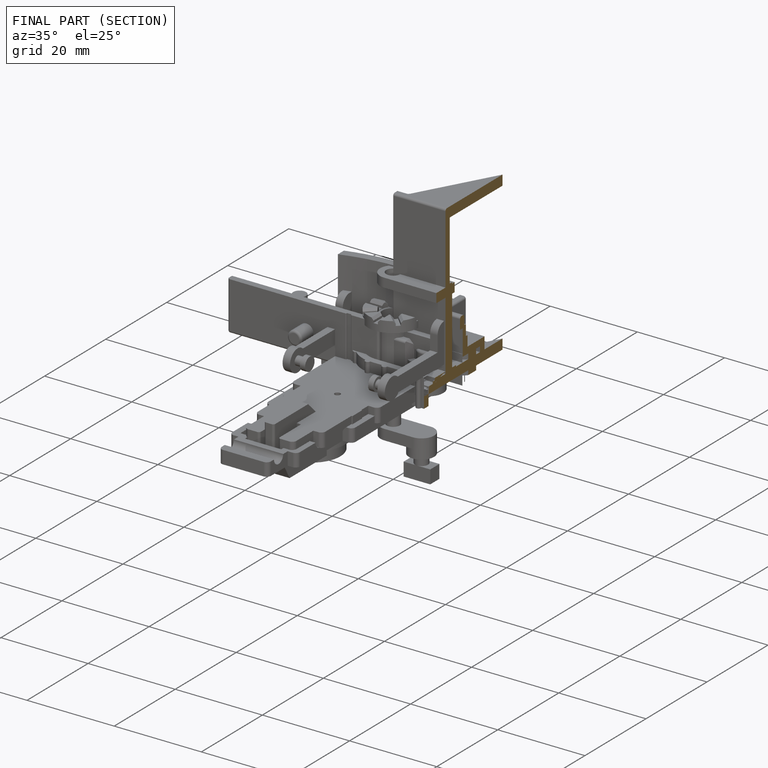
[diagram: finished part — half-section view (interior)]
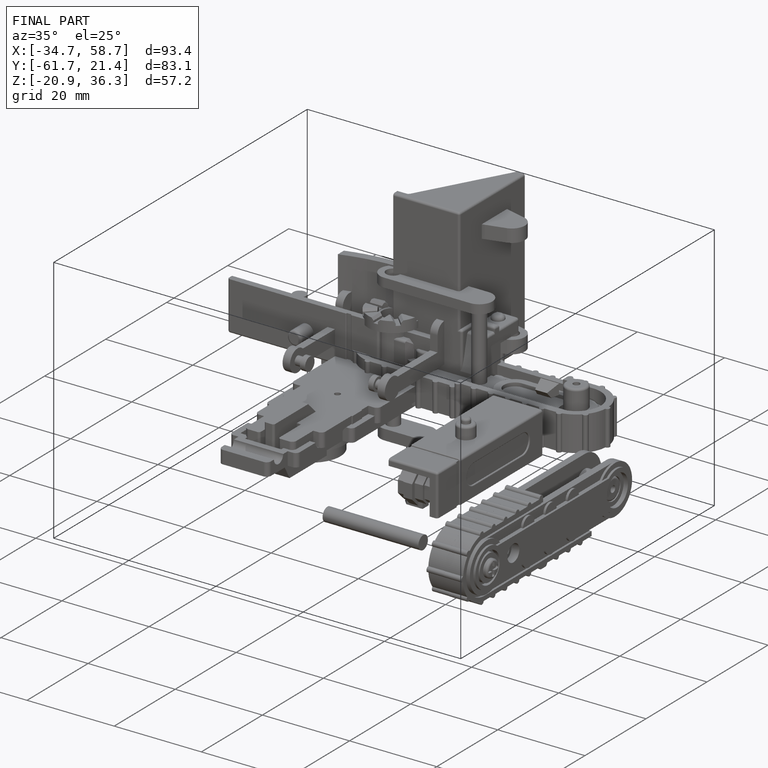
[diagram: finished part — iso view with bounding-box wireframe]
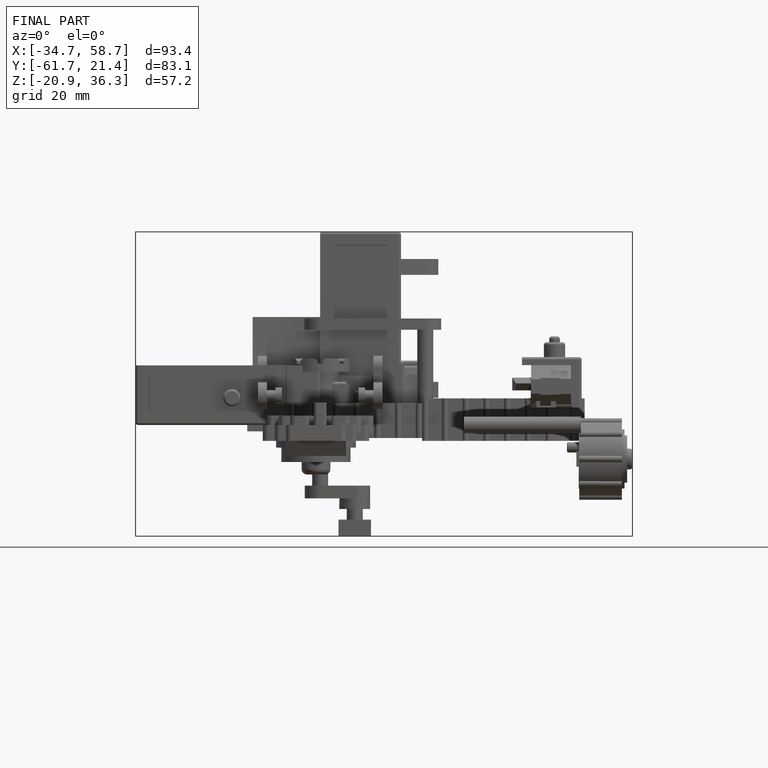
[diagram: finished part — front view with bounding-box wireframe]
